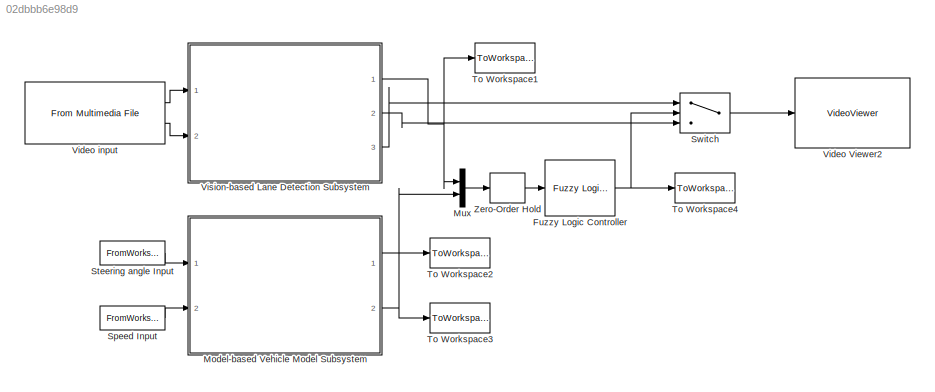
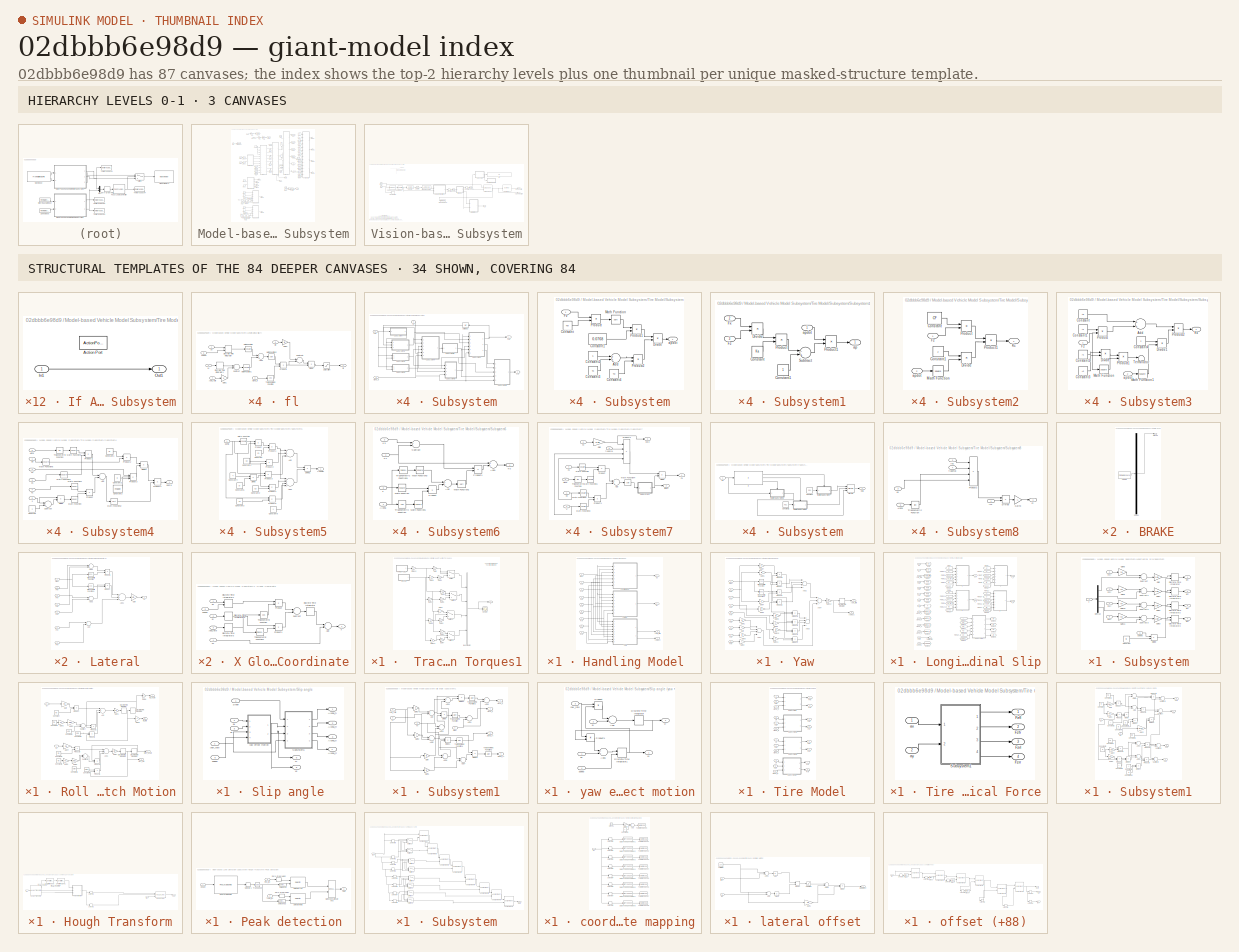
[diagram: thumbnail index - top-2 hierarchy levels (3 canvases) + 34 structural-template representatives of the remaining 84 canvases]
MODEL slx_02dbbb6e98d9
KIND model
CONFIG AbsTol = auto
CONFIG EnableMultiTasking = on
CONFIG FixedStep = 1/30
CONFIG MaxStep = auto
CONFIG MinStep = auto
CONFIG RelTol = 1e-3
CONFIG SampleTimeConstraint = Unconstrained
CONFIG Solver = FixedStepDiscrete
CONFIG SolverName = FixedStepDiscrete
CONFIG StartTime = 0.0
CONFIG StopTime = 8
BLOCK [Reference] Fuzzy Logic Controller  REF=fuzblock/Fuzzy Logic   (lib defined in mdl_858b3b3e7478)
Controller
  Ports = [1, 1]
  SourceBlock = fuzblock/Fuzzy Logic \nController
  SourceProductBaseCode = FL
  SourceProductName = Fuzzy Logic Toolbox
  SourceType = Fuzzy Inference System
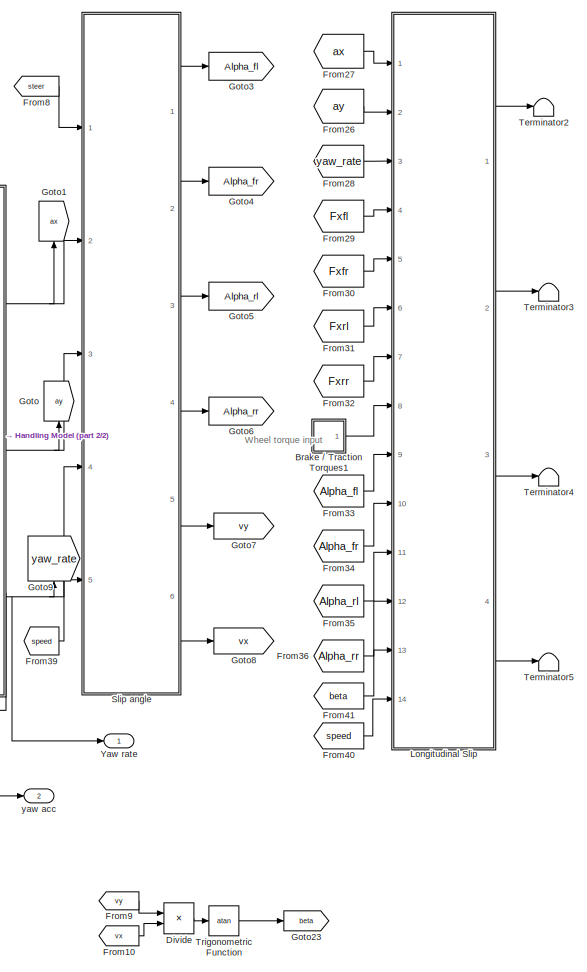
[diagram: Model-based Vehicle Model Subsystem - part 1/2, middle right region]
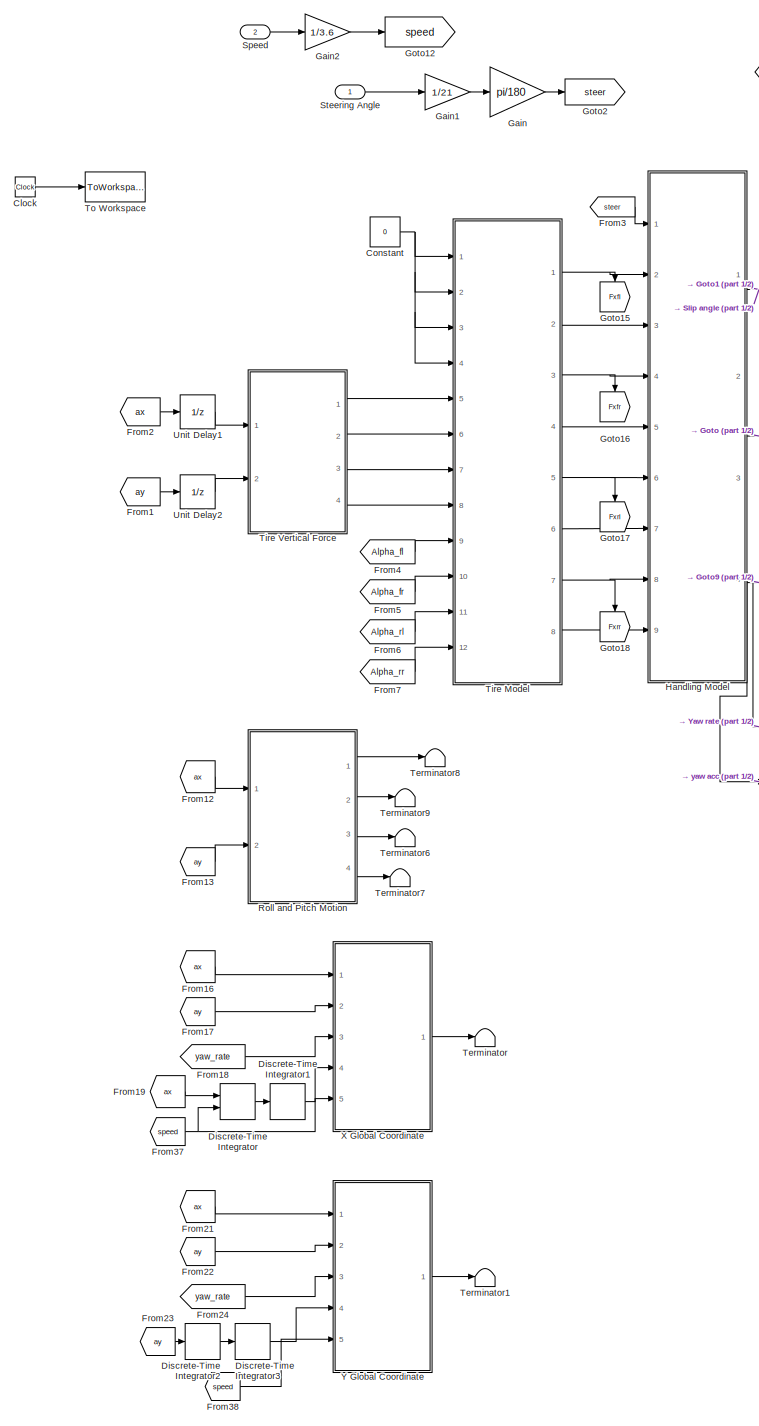
[diagram: Model-based Vehicle Model Subsystem - part 2/2, left side, full height]
BLOCK [SubSystem] Model-based Vehicle Model Subsystem
  Ports = [2, 2]
  RequestExecContextInheritance = off
BLOCK [SubSystem] Model-based Vehicle Model Subsystem/Brake // Traction Torques1
  Ports = [0, 1]
  RequestExecContextInheritance = off
BLOCK [SubSystem] Model-based Vehicle Model Subsystem/Brake // Traction Torques1/BRAKE
  ClipboardFcn = sigbuilder_block('clipboard');
  CloseFcn = sigbuilder_block('close');
  ContinueFcn = sigbuilder_block('continue')
  CopyFcn = sigbuilder_block('copy');
  DeleteFcn = sigbuilder_block('delete');
  LoadFcn = sigbuilder_block('load');
  MaskHideContents = on
  ModelCloseFcn = sigbuilder_block('modelClose');
  NameChangeFcn = sigbuilder_block('namechange');
  OpenFcn = sigbuilder_block('open',[51.75 84.75 550.5 363.75 ]);
  PauseFcn = sigbuilder_block('pause')
  Ports = [0, 1]
  PreSaveFcn = sigbuilder_block('preSave');
  RequestExecContextInheritance = off
  StartFcn = sigbuilder_block('start');
  StopFcn = sigbuilder_block('stop');
  Tag = STV Subsys
BLOCK [Demux] Model-based Vehicle Model Subsystem/Brake // Traction Torques1/BRAKE/Demux
  Outputs = 1
  Ports = [1, 1]
  Tag = STV Demux
BLOCK [FromWorkspace] Model-based Vehicle Model Subsystem/Brake // Traction Torques1/BRAKE/FromWs
  SampleTime = 0
  Tag = STV FromWs
  VariableName = tuvar
BLOCK [Outport] Model-based Vehicle Model Subsystem/Brake // Traction Torques1/BRAKE/Signal 1
  IconDisplay = Port number
  Tag = STV Outport
BLOCK [BusCreator] Model-based Vehicle Model Subsystem/Brake // Traction Torques1/Bus Creator
  DisplayOption = bar
  InheritFromInputs = on
  Inputs = 4
  Ports = [4, 1]
BLOCK [Gain] Model-based Vehicle Model Subsystem/Brake // Traction Torques1/Gain
  Gain = 300
  OutDataTypeStr = Inherit: Inherit via internal rule
  ParamDataTypeStr = Inherit: Inherit via internal rule
  SaturateOnIntegerOverflow = off
BLOCK [Gain] Model-based Vehicle Model Subsystem/Brake // Traction Torques1/Gain1
  Gain = 300
  OutDataTypeStr = Inherit: Inherit via internal rule
  ParamDataTypeStr = Inherit: Inherit via internal rule
  SaturateOnIntegerOverflow = off
BLOCK [Gain] Model-based Vehicle Model Subsystem/Brake // Traction Torques1/Gain10
  Gain = -6
  OutDataTypeStr = Inherit: Inherit via internal rule
  ParamDataTypeStr = Inherit: Inherit via internal rule
  SaturateOnIntegerOverflow = off
BLOCK [Gain] Model-based Vehicle Model Subsystem/Brake // Traction Torques1/Gain11
  Gain = -6
  OutDataTypeStr = Inherit: Inherit via internal rule
  ParamDataTypeStr = Inherit: Inherit via internal rule
  SaturateOnIntegerOverflow = off
BLOCK [Gain] Model-based Vehicle Model Subsystem/Brake // Traction Torques1/Gain12
  Gain = 0
  OutDataTypeStr = Inherit: Inherit via internal rule
  ParamDataTypeStr = Inherit: Inherit via internal rule
  SaturateOnIntegerOverflow = off
BLOCK [Gain] Model-based Vehicle Model Subsystem/Brake // Traction Torques1/Gain2
  Gain = 0
  OutDataTypeStr = Inherit: Inherit via internal rule
  ParamDataTypeStr = Inherit: Inherit via internal rule
  SaturateOnIntegerOverflow = off
BLOCK [Gain] Model-based Vehicle Model Subsystem/Brake // Traction Torques1/Gain3
  Gain = 0
  OutDataTypeStr = Inherit: Inherit via internal rule
  ParamDataTypeStr = Inherit: Inherit via internal rule
  SaturateOnIntegerOverflow = off
BLOCK [Gain] Model-based Vehicle Model Subsystem/Brake // Traction Torques1/Gain4
  Gain = 200
  OutDataTypeStr = Inherit: Inherit via internal rule
  ParamDataTypeStr = Inherit: Inherit via internal rule
  SaturateOnIntegerOverflow = off
BLOCK [Gain] Model-based Vehicle Model Subsystem/Brake // Traction Torques1/Gain5
  Gain = 200
  OutDataTypeStr = Inherit: Inherit via internal rule
  ParamDataTypeStr = Inherit: Inherit via internal rule
  SaturateOnIntegerOverflow = off
BLOCK [Gain] Model-based Vehicle Model Subsystem/Brake // Traction Torques1/Gain6
  Gain = 80
  OutDataTypeStr = Inherit: Inherit via internal rule
  ParamDataTypeStr = Inherit: Inherit via internal rule
  SaturateOnIntegerOverflow = off
BLOCK [Gain] Model-based Vehicle Model Subsystem/Brake // Traction Torques1/Gain7
  Gain = 80
  OutDataTypeStr = Inherit: Inherit via internal rule
  ParamDataTypeStr = Inherit: Inherit via internal rule
  SaturateOnIntegerOverflow = off
BLOCK [Gain] Model-based Vehicle Model Subsystem/Brake // Traction Torques1/Gain8
  Gain = -6
  OutDataTypeStr = Inherit: Inherit via internal rule
  ParamDataTypeStr = Inherit: Inherit via internal rule
  SaturateOnIntegerOverflow = off
BLOCK [Gain] Model-based Vehicle Model Subsystem/Brake // Traction Torques1/Gain9
  Gain = -6
  OutDataTypeStr = Inherit: Inherit via internal rule
  ParamDataTypeStr = Inherit: Inherit via internal rule
  SaturateOnIntegerOverflow = off
BLOCK [Scope] Model-based Vehicle Model Subsystem/Brake // Traction Torques1/Scope
  Floating = off
  NumInputPorts = 1
  Ports = [1]
  ScopeSpecificationString = C++SS(StrPVP('Location','[5, 52, 1285, 769]'),StrPVP('Open','off'),MxPVP('AxesTitles',53,'struct(''axes1'',''%<SignalLabel>'')'),StrPVP('SaveName','ScopeData27'),StrPVP('DataFormat','StructureWithTime'),StrPVP('BlockParamSampleTime','0'),StrPVP('LimitDataPoints','on'),StrPVP('Decimation','1'),StrPVP('BlockParamSampleInput','off'))
BLOCK [Switch] Model-based Vehicle Model Subsystem/Brake // Traction Torques1/Switch
  Criteria = u2 > Threshold
  InputSameDT = off
  SaturateOnIntegerOverflow = off
  Threshold = 199
BLOCK [Switch] Model-based Vehicle Model Subsystem/Brake // Traction Torques1/Switch1
  Criteria = u2 > Threshold
  InputSameDT = off
  SaturateOnIntegerOverflow = off
  Threshold = 199
BLOCK [Switch] Model-based Vehicle Model Subsystem/Brake // Traction Torques1/Switch2
  Criteria = u2 > Threshold
  InputSameDT = off
  SaturateOnIntegerOverflow = off
  Threshold = -1
BLOCK [Switch] Model-based Vehicle Model Subsystem/Brake // Traction Torques1/Switch3
  Criteria = u2 > Threshold
  InputSameDT = off
  SaturateOnIntegerOverflow = off
  Threshold = -1
BLOCK [Outport] Model-based Vehicle Model Subsystem/Brake // Traction Torques1/T
  IconDisplay = Port number
BLOCK [SubSystem] Model-based Vehicle Model Subsystem/Brake // Traction Torques1/THROTTLE1
  ClipboardFcn = sigbuilder_block('clipboard');
  CloseFcn = sigbuilder_block('close');
  ContinueFcn = sigbuilder_block('continue')
  CopyFcn = sigbuilder_block('copy');
  DeleteFcn = sigbuilder_block('delete');
  LoadFcn = sigbuilder_block('load');
  MaskHideContents = on
  ModelCloseFcn = sigbuilder_block('modelClose');
  NameChangeFcn = sigbuilder_block('namechange');
  OpenFcn = sigbuilder_block('open',[252 113.25 550.5 363.75 ]);
  PauseFcn = sigbuilder_block('pause')
  Ports = [0, 1]
  PreSaveFcn = sigbuilder_block('preSave');
  RequestExecContextInheritance = off
  StartFcn = sigbuilder_block('start');
  StopFcn = sigbuilder_block('stop');
  Tag = STV Subsys
BLOCK [Demux] Model-based Vehicle Model Subsystem/Brake // Traction Torques1/THROTTLE1/Demux
  Outputs = 1
  Ports = [1, 1]
  Tag = STV Demux
BLOCK [FromWorkspace] Model-based Vehicle Model Subsystem/Brake // Traction Torques1/THROTTLE1/FromWs
  SampleTime = 0
  Tag = STV FromWs
  VariableName = tuvar
BLOCK [Outport] Model-based Vehicle Model Subsystem/Brake // Traction Torques1/THROTTLE1/Signal 1
  IconDisplay = Port number
  Tag = STV Outport
BLOCK [Clock] Model-based Vehicle Model Subsystem/Clock
BLOCK [Constant] Model-based Vehicle Model Subsystem/Constant
  Value = 0
BLOCK [DiscreteIntegrator] Model-based Vehicle Model Subsystem/Discrete-Time Integrator
  ICPrevOutput = DiscIntNeverNeededParam
  ICPrevScaledInput = DiscIntNeverNeededParam
  InitialCondition = 22.222
  InitialConditionSetting = Auto
  InitialConditionSource = external
  LimitOutput = on
  LowerSaturationLimit = 0
  Ports = [2, 1]
  SampleTime = -1
BLOCK [DiscreteIntegrator] Model-based Vehicle Model Subsystem/Discrete-Time Integrator1
  ICPrevOutput = DiscIntNeverNeededParam
  ICPrevScaledInput = DiscIntNeverNeededParam
  InitialConditionSetting = Auto
  LimitOutput = on
  LowerSaturationLimit = 0
  Ports = [1, 1]
  SampleTime = -1
BLOCK [DiscreteIntegrator] Model-based Vehicle Model Subsystem/Discrete-Time Integrator2
  ICPrevOutput = DiscIntNeverNeededParam
  ICPrevScaledInput = DiscIntNeverNeededParam
  InitialConditionSetting = Auto
  Ports = [1, 1]
  SampleTime = -1
BLOCK [DiscreteIntegrator] Model-based Vehicle Model Subsystem/Discrete-Time Integrator3
  ICPrevOutput = DiscIntNeverNeededParam
  ICPrevScaledInput = DiscIntNeverNeededParam
  InitialConditionSetting = Auto
  Ports = [1, 1]
  SampleTime = -1
BLOCK [Product] Model-based Vehicle Model Subsystem/Divide
  InputSameDT = off
  Inputs = */
  OutDataTypeStr = Inherit: Inherit via internal rule
  Ports = [2, 1]
  RndMeth = Floor
  SaturateOnIntegerOverflow = off
BLOCK [From] Model-based Vehicle Model Subsystem/From1
  CloseFcn = tagdialog Close
  GotoTag = ay
BLOCK [From] Model-based Vehicle Model Subsystem/From10
  CloseFcn = tagdialog Close
  GotoTag = vx
BLOCK [From] Model-based Vehicle Model Subsystem/From12
  CloseFcn = tagdialog Close
  GotoTag = ax
BLOCK [From] Model-based Vehicle Model Subsystem/From13
  CloseFcn = tagdialog Close
  GotoTag = ay
BLOCK [From] Model-based Vehicle Model Subsystem/From16
  CloseFcn = tagdialog Close
  GotoTag = ax
BLOCK [From] Model-based Vehicle Model Subsystem/From17
  CloseFcn = tagdialog Close
  GotoTag = ay
BLOCK [From] Model-based Vehicle Model Subsystem/From18
  CloseFcn = tagdialog Close
  GotoTag = yaw_rate
BLOCK [From] Model-based Vehicle Model Subsystem/From19
  CloseFcn = tagdialog Close
  GotoTag = ax
BLOCK [From] Model-based Vehicle Model Subsystem/From2
  CloseFcn = tagdialog Close
  GotoTag = ax
BLOCK [From] Model-based Vehicle Model Subsystem/From21
  CloseFcn = tagdialog Close
  GotoTag = ax
BLOCK [From] Model-based Vehicle Model Subsystem/From22
  CloseFcn = tagdialog Close
  GotoTag = ay
BLOCK [From] Model-based Vehicle Model Subsystem/From23
  CloseFcn = tagdialog Close
  GotoTag = ay
BLOCK [From] Model-based Vehicle Model Subsystem/From24
  CloseFcn = tagdialog Close
  GotoTag = yaw_rate
BLOCK [From] Model-based Vehicle Model Subsystem/From26
  CloseFcn = tagdialog Close
  GotoTag = ay
BLOCK [From] Model-based Vehicle Model Subsystem/From27
  CloseFcn = tagdialog Close
  GotoTag = ax
BLOCK [From] Model-based Vehicle Model Subsystem/From28
  CloseFcn = tagdialog Close
  GotoTag = yaw_rate
BLOCK [From] Model-based Vehicle Model Subsystem/From29
  CloseFcn = tagdialog Close
  GotoTag = Fxfl
BLOCK [From] Model-based Vehicle Model Subsystem/From3
  CloseFcn = tagdialog Close
  GotoTag = steer
BLOCK [From] Model-based Vehicle Model Subsystem/From30
  CloseFcn = tagdialog Close
  GotoTag = Fxfr
BLOCK [From] Model-based Vehicle Model Subsystem/From31
  CloseFcn = tagdialog Close
  GotoTag = Fxrl
BLOCK [From] Model-based Vehicle Model Subsystem/From32
  CloseFcn = tagdialog Close
  GotoTag = Fxrr
BLOCK [From] Model-based Vehicle Model Subsystem/From33
  CloseFcn = tagdialog Close
  GotoTag = Alpha_fl
BLOCK [From] Model-based Vehicle Model Subsystem/From34
  CloseFcn = tagdialog Close
  GotoTag = Alpha_fr
BLOCK [From] Model-based Vehicle Model Subsystem/From35
  CloseFcn = tagdialog Close
  GotoTag = Alpha_rl
BLOCK [From] Model-based Vehicle Model Subsystem/From36
  CloseFcn = tagdialog Close
  GotoTag = Alpha_rr
BLOCK [From] Model-based Vehicle Model Subsystem/From37
  CloseFcn = tagdialog Close
  GotoTag = speed
BLOCK [From] Model-based Vehicle Model Subsystem/From38
  CloseFcn = tagdialog Close
  GotoTag = speed
BLOCK [From] Model-based Vehicle Model Subsystem/From39
  CloseFcn = tagdialog Close
  GotoTag = speed
BLOCK [From] Model-based Vehicle Model Subsystem/From4
  CloseFcn = tagdialog Close
  GotoTag = Alpha_fl
BLOCK [From] Model-based Vehicle Model Subsystem/From40
  CloseFcn = tagdialog Close
  GotoTag = speed
BLOCK [From] Model-based Vehicle Model Subsystem/From41
  CloseFcn = tagdialog Close
  GotoTag = beta
BLOCK [From] Model-based Vehicle Model Subsystem/From5
  CloseFcn = tagdialog Close
  GotoTag = Alpha_fr
BLOCK [From] Model-based Vehicle Model Subsystem/From6
  CloseFcn = tagdialog Close
  GotoTag = Alpha_rl
BLOCK [From] Model-based Vehicle Model Subsystem/From7
  CloseFcn = tagdialog Close
  GotoTag = Alpha_rr
BLOCK [From] Model-based Vehicle Model Subsystem/From8
  CloseFcn = tagdialog Close
  GotoTag = steer
BLOCK [From] Model-based Vehicle Model Subsystem/From9
  CloseFcn = tagdialog Close
  GotoTag = vy
BLOCK [Gain] Model-based Vehicle Model Subsystem/Gain
  Gain = pi/180
  OutDataTypeStr = Inherit: Inherit via internal rule
  ParamDataTypeStr = Inherit: Inherit via internal rule
  SaturateOnIntegerOverflow = off
BLOCK [Gain] Model-based Vehicle Model Subsystem/Gain1
  Gain = 1/21
  OutDataTypeStr = Inherit: Inherit via internal rule
  ParamDataTypeStr = Inherit: Inherit via internal rule
  SaturateOnIntegerOverflow = off
BLOCK [Gain] Model-based Vehicle Model Subsystem/Gain2
  Gain = 1/3.6
  OutDataTypeStr = Inherit: Inherit via internal rule
  ParamDataTypeStr = Inherit: Inherit via internal rule
  SaturateOnIntegerOverflow = off
BLOCK [Goto] Model-based Vehicle Model Subsystem/Goto
  GotoTag = ay
BLOCK [Goto] Model-based Vehicle Model Subsystem/Goto1
  GotoTag = ax
BLOCK [Goto] Model-based Vehicle Model Subsystem/Goto12
  GotoTag = speed
BLOCK [Goto] Model-based Vehicle Model Subsystem/Goto15
  GotoTag = Fxfl
BLOCK [Goto] Model-based Vehicle Model Subsystem/Goto16
  GotoTag = Fxfr
BLOCK [Goto] Model-based Vehicle Model Subsystem/Goto17
  GotoTag = Fxrl
BLOCK [Goto] Model-based Vehicle Model Subsystem/Goto18
  GotoTag = Fxrr
BLOCK [Goto] Model-based Vehicle Model Subsystem/Goto2
  GotoTag = steer
BLOCK [Goto] Model-based Vehicle Model Subsystem/Goto23
  GotoTag = beta
BLOCK [Goto] Model-based Vehicle Model Subsystem/Goto3
  GotoTag = Alpha_fl
BLOCK [Goto] Model-based Vehicle Model Subsystem/Goto4
  GotoTag = Alpha_fr
BLOCK [Goto] Model-based Vehicle Model Subsystem/Goto5
  GotoTag = Alpha_rl
BLOCK [Goto] Model-based Vehicle Model Subsystem/Goto6
  GotoTag = Alpha_rr
BLOCK [Goto] Model-based Vehicle Model Subsystem/Goto7
  GotoTag = vy
BLOCK [Goto] Model-based Vehicle Model Subsystem/Goto8
  GotoTag = vx
BLOCK [Goto] Model-based Vehicle Model Subsystem/Goto9
  GotoTag = yaw_rate
BLOCK [SubSystem] Model-based Vehicle Model Subsystem/Handling Model 
  Ports = [9, 4]
  RequestExecContextInheritance = off
BLOCK [Inport] Model-based Vehicle Model Subsystem/Handling Model /Fxfl
  IconDisplay = Port number
  Port = 2
BLOCK [Inport] Model-based Vehicle Model Subsystem/Handling Model /Fxfr
  IconDisplay = Port number
  Port = 4
BLOCK [Inport] Model-based Vehicle Model Subsystem/Handling Model /Fxrl
  IconDisplay = Port number
  Port = 6
BLOCK [Inport] Model-based Vehicle Model Subsystem/Handling Model /Fxrr
  IconDisplay = Port number
  Port = 8
BLOCK [Inport] Model-based Vehicle Model Subsystem/Handling Model /Fyfl
  IconDisplay = Port number
  Port = 3
BLOCK [Inport] Model-based Vehicle Model Subsystem/Handling Model /Fyfr
  IconDisplay = Port number
  Port = 5
BLOCK [Inport] Model-based Vehicle Model Subsystem/Handling Model /Fyrl
  IconDisplay = Port number
  Port = 7
BLOCK [Inport] Model-based Vehicle Model Subsystem/Handling Model /Fyrr
  IconDisplay = Port number
  Port = 9
BLOCK [SubSystem] Model-based Vehicle Model Subsystem/Handling Model /Lateral 
  Ports = [7, 1]
  RequestExecContextInheritance = off
BLOCK [Sum] Model-based Vehicle Model Subsystem/Handling Model /Lateral /Add
  InputSameDT = off
  OutDataTypeStr = Inherit: Inherit via internal rule
  Ports = [2, 1]
  SaturateOnIntegerOverflow = off
BLOCK [Sum] Model-based Vehicle Model Subsystem/Handling Model /Lateral /Add1
  InputSameDT = off
  Inputs = +++
  OutDataTypeStr = Inherit: Inherit via internal rule
  Ports = [3, 1]
  SaturateOnIntegerOverflow = off
BLOCK [Sum] Model-based Vehicle Model Subsystem/Handling Model /Lateral /Add2
  InputSameDT = off
  OutDataTypeStr = Inherit: Inherit via internal rule
  Ports = [2, 1]
  SaturateOnIntegerOverflow = off
BLOCK [Sum] Model-based Vehicle Model Subsystem/Handling Model /Lateral /Add3
  InputSameDT = off
  OutDataTypeStr = Inherit: Inherit via internal rule
  Ports = [2, 1]
  SaturateOnIntegerOverflow = off
BLOCK [Inport] Model-based Vehicle Model Subsystem/Handling Model /Lateral /Fxfl
  IconDisplay = Port number
  Port = 2
BLOCK [Inport] Model-based Vehicle Model Subsystem/Handling Model /Lateral /Fxfr
  IconDisplay = Port number
  Port = 4
BLOCK [Inport] Model-based Vehicle Model Subsystem/Handling Model /Lateral /Fyfl
  IconDisplay = Port number
  Port = 3
BLOCK [Inport] Model-based Vehicle Model Subsystem/Handling Model /Lateral /Fyfr
  IconDisplay = Port number
  Port = 5
BLOCK [Inport] Model-based Vehicle Model Subsystem/Handling Model /Lateral /Fyrl
  IconDisplay = Port number
  Port = 6
BLOCK [Inport] Model-based Vehicle Model Subsystem/Handling Model /Lateral /Fyrr
  IconDisplay = Port number
  Port = 7
BLOCK [Gain] Model-based Vehicle Model Subsystem/Handling Model /Lateral /Gain
  Gain = 1/m
  OutDataTypeStr = Inherit: Inherit via internal rule
  ParamDataTypeStr = Inherit: Inherit via internal rule
  SaturateOnIntegerOverflow = off
BLOCK [Product] Model-based Vehicle Model Subsystem/Handling Model /Lateral /Product
  InputSameDT = off
  OutDataTypeStr = Inherit: Inherit via internal rule
  Ports = [2, 1]
  SaturateOnIntegerOverflow = off
BLOCK [Product] Model-based Vehicle Model Subsystem/Handling Model /Lateral /Product1
  InputSameDT = off
  OutDataTypeStr = Inherit: Inherit via internal rule
  Ports = [2, 1]
  SaturateOnIntegerOverflow = off
BLOCK [Inport] Model-based Vehicle Model Subsystem/Handling Model /Lateral /Steer
  IconDisplay = Port number
BLOCK [Trigonometry] Model-based Vehicle Model Subsystem/Handling Model /Lateral /Trigonometric Function
  Ports = [1, 1]
BLOCK [Trigonometry] Model-based Vehicle Model Subsystem/Handling Model /Lateral /Trigonometric Function1
  Operator = cos
  Ports = [1, 1]
BLOCK [Outport] Model-based Vehicle Model Subsystem/Handling Model /Lateral /ay
  IconDisplay = Port number
BLOCK [SubSystem] Model-based Vehicle Model Subsystem/Handling Model /Longitudinal 
  Ports = [7, 1]
  RequestExecContextInheritance = off
BLOCK [Sum] Model-based Vehicle Model Subsystem/Handling Model /Longitudinal /Add
  InputSameDT = off
  Inputs = ++-
  OutDataTypeStr = Inherit: Inherit via internal rule
  Ports = [3, 1]
  SaturateOnIntegerOverflow = off
BLOCK [Sum] Model-based Vehicle Model Subsystem/Handling Model /Longitudinal /Add1
  InputSameDT = off
  OutDataTypeStr = Inherit: Inherit via internal rule
  Ports = [2, 1]
  SaturateOnIntegerOverflow = off
BLOCK [Sum] Model-based Vehicle Model Subsystem/Handling Model /Longitudinal /Add2
  InputSameDT = off
  OutDataTypeStr = Inherit: Inherit via internal rule
  Ports = [2, 1]
  SaturateOnIntegerOverflow = off
BLOCK [Sum] Model-based Vehicle Model Subsystem/Handling Model /Longitudinal /Add3
  InputSameDT = off
  OutDataTypeStr = Inherit: Inherit via internal rule
  Ports = [2, 1]
  SaturateOnIntegerOverflow = off
BLOCK [Inport] Model-based Vehicle Model Subsystem/Handling Model /Longitudinal /Fxfl
  IconDisplay = Port number
  Port = 2
BLOCK [Inport] Model-based Vehicle Model Subsystem/Handling Model /Longitudinal /Fxfr
  IconDisplay = Port number
  Port = 4
BLOCK [Inport] Model-based Vehicle Model Subsystem/Handling Model /Longitudinal /Fxrl
  IconDisplay = Port number
  Port = 6
BLOCK [Inport] Model-based Vehicle Model Subsystem/Handling Model /Longitudinal /Fxrr
  IconDisplay = Port number
  Port = 7
BLOCK [Inport] Model-based Vehicle Model Subsystem/Handling Model /Longitudinal /Fyfl
  IconDisplay = Port number
  Port = 3
BLOCK [Inport] Model-based Vehicle Model Subsystem/Handling Model /Longitudinal /Fyfr
  IconDisplay = Port number
  Port = 5
BLOCK [Gain] Model-based Vehicle Model Subsystem/Handling Model /Longitudinal /Gain
  Gain = 1/m
  OutDataTypeStr = Inherit: Inherit via internal rule
  ParamDataTypeStr = Inherit: Inherit via internal rule
  SaturateOnIntegerOverflow = off
BLOCK [Product] Model-based Vehicle Model Subsystem/Handling Model /Longitudinal /Product
  InputSameDT = off
  OutDataTypeStr = Inherit: Inherit via internal rule
  Ports = [2, 1]
  SaturateOnIntegerOverflow = off
BLOCK [Product] Model-based Vehicle Model Subsystem/Handling Model /Longitudinal /Product1
  InputSameDT = off
  OutDataTypeStr = Inherit: Inherit via internal rule
  Ports = [2, 1]
  SaturateOnIntegerOverflow = off
BLOCK [Inport] Model-based Vehicle Model Subsystem/Handling Model /Longitudinal /Steer
  IconDisplay = Port number
BLOCK [Trigonometry] Model-based Vehicle Model Subsystem/Handling Model /Longitudinal /Trigonometric Function
  Ports = [1, 1]
BLOCK [Trigonometry] Model-based Vehicle Model Subsystem/Handling Model /Longitudinal /Trigonometric Function1
  Operator = cos
  Ports = [1, 1]
BLOCK [Outport] Model-based Vehicle Model Subsystem/Handling Model /Longitudinal /ax
  IconDisplay = Port number
BLOCK [Inport] Model-based Vehicle Model Subsystem/Handling Model /Steer
  IconDisplay = Port number
BLOCK [SubSystem] Model-based Vehicle Model Subsystem/Handling Model /Yaw  
  Ports = [9, 2]
  RequestExecContextInheritance = off
BLOCK [Sum] Model-based Vehicle Model Subsystem/Handling Model /Yaw  /Add1
  InputSameDT = off
  Inputs = --+-
  OutDataTypeStr = Inherit: Inherit via internal rule
  Ports = [4, 1]
  SaturateOnIntegerOverflow = off
BLOCK [Sum] Model-based Vehicle Model Subsystem/Handling Model /Yaw  /Add2
  InputSameDT = off
  Inputs = -+++
  OutDataTypeStr = Inherit: Inherit via internal rule
  Ports = [4, 1]
  SaturateOnIntegerOverflow = off
BLOCK [Sum] Model-based Vehicle Model Subsystem/Handling Model /Yaw  /Add3
  InputSameDT = off
  Inputs = ++-+
  OutDataTypeStr = Inherit: Inherit via internal rule
  Ports = [4, 1]
  SaturateOnIntegerOverflow = off
BLOCK [Sum] Model-based Vehicle Model Subsystem/Handling Model /Yaw  /Add4
  InputSameDT = off
  Inputs = +++
  OutDataTypeStr = Inherit: Inherit via internal rule
  Ports = [3, 1]
  SaturateOnIntegerOverflow = off
BLOCK [DiscreteIntegrator] Model-based Vehicle Model Subsystem/Handling Model /Yaw  /Discrete-Time Integrator
  ICPrevOutput = DiscIntNeverNeededParam
  ICPrevScaledInput = DiscIntNeverNeededParam
  InitialConditionSetting = Auto
  Ports = [1, 1]
  SampleTime = -1
BLOCK [Inport] Model-based Vehicle Model Subsystem/Handling Model /Yaw  /Fxfl
  IconDisplay = Port number
  Port = 2
BLOCK [Inport] Model-based Vehicle Model Subsystem/Handling Model /Yaw  /Fxfr
  IconDisplay = Port number
  Port = 4
BLOCK [Inport] Model-based Vehicle Model Subsystem/Handling Model /Yaw  /Fxrl
  IconDisplay = Port number
  Port = 6
BLOCK [Inport] Model-based Vehicle Model Subsystem/Handling Model /Yaw  /Fxrr
  IconDisplay = Port number
  Port = 8
BLOCK [Inport] Model-based Vehicle Model Subsystem/Handling Model /Yaw  /Fyfl
  IconDisplay = Port number
  Port = 3
BLOCK [Inport] Model-based Vehicle Model Subsystem/Handling Model /Yaw  /Fyfr
  IconDisplay = Port number
  Port = 5
BLOCK [Inport] Model-based Vehicle Model Subsystem/Handling Model /Yaw  /Fyrl
  IconDisplay = Port number
  Port = 7
BLOCK [Inport] Model-based Vehicle Model Subsystem/Handling Model /Yaw  /Fyrr
  IconDisplay = Port number
  Port = 9
BLOCK [Gain] Model-based Vehicle Model Subsystem/Handling Model /Yaw  /Gain
  Gain = c
  OutDataTypeStr = Inherit: Inherit via internal rule
  ParamDataTypeStr = Inherit: Inherit via internal rule
  SaturateOnIntegerOverflow = off
BLOCK [Gain] Model-based Vehicle Model Subsystem/Handling Model /Yaw  /Gain1
  Gain = r/2
  OutDataTypeStr = Inherit: Inherit via internal rule
  ParamDataTypeStr = Inherit: Inherit via internal rule
  SaturateOnIntegerOverflow = off
BLOCK [Gain] Model-based Vehicle Model Subsystem/Handling Model /Yaw  /Gain10
  Gain = f/2
  OutDataTypeStr = Inherit: Inherit via internal rule
  ParamDataTypeStr = Inherit: Inherit via internal rule
  SaturateOnIntegerOverflow = off
BLOCK [Gain] Model-based Vehicle Model Subsystem/Handling Model /Yaw  /Gain11
  Gain = b
  OutDataTypeStr = Inherit: Inherit via internal rule
  ParamDataTypeStr = Inherit: Inherit via internal rule
  SaturateOnIntegerOverflow = off
BLOCK [Gain] Model-based Vehicle Model Subsystem/Handling Model /Yaw  /Gain12
  Gain = 1/iz
  OutDataTypeStr = Inherit: Inherit via internal rule
  ParamDataTypeStr = Inherit: Inherit via internal rule
  SaturateOnIntegerOverflow = off
BLOCK [Gain] Model-based Vehicle Model Subsystem/Handling Model /Yaw  /Gain2
  Gain = c
  OutDataTypeStr = Inherit: Inherit via internal rule
  ParamDataTypeStr = Inherit: Inherit via internal rule
  SaturateOnIntegerOverflow = off
BLOCK [Gain] Model-based Vehicle Model Subsystem/Handling Model /Yaw  /Gain3
  Gain = r/2
  OutDataTypeStr = Inherit: Inherit via internal rule
  ParamDataTypeStr = Inherit: Inherit via internal rule
  SaturateOnIntegerOverflow = off
BLOCK [Gain] Model-based Vehicle Model Subsystem/Handling Model /Yaw  /Gain4
  Gain = b
  OutDataTypeStr = Inherit: Inherit via internal rule
  ParamDataTypeStr = Inherit: Inherit via internal rule
  SaturateOnIntegerOverflow = off
BLOCK [Gain] Model-based Vehicle Model Subsystem/Handling Model /Yaw  /Gain5
  Gain = f/2
  OutDataTypeStr = Inherit: Inherit via internal rule
  ParamDataTypeStr = Inherit: Inherit via internal rule
  SaturateOnIntegerOverflow = off
BLOCK [Gain] Model-based Vehicle Model Subsystem/Handling Model /Yaw  /Gain6
  Gain = f/2
  OutDataTypeStr = Inherit: Inherit via internal rule
  ParamDataTypeStr = Inherit: Inherit via internal rule
  SaturateOnIntegerOverflow = off
BLOCK [Gain] Model-based Vehicle Model Subsystem/Handling Model /Yaw  /Gain7
  Gain = b
  OutDataTypeStr = Inherit: Inherit via internal rule
  ParamDataTypeStr = Inherit: Inherit via internal rule
  SaturateOnIntegerOverflow = off
BLOCK [Gain] Model-based Vehicle Model Subsystem/Handling Model /Yaw  /Gain8
  Gain = f/2
  OutDataTypeStr = Inherit: Inherit via internal rule
  ParamDataTypeStr = Inherit: Inherit via internal rule
  SaturateOnIntegerOverflow = off
BLOCK [Gain] Model-based Vehicle Model Subsystem/Handling Model /Yaw  /Gain9
  Gain = b
  OutDataTypeStr = Inherit: Inherit via internal rule
  ParamDataTypeStr = Inherit: Inherit via internal rule
  SaturateOnIntegerOverflow = off
BLOCK [Product] Model-based Vehicle Model Subsystem/Handling Model /Yaw  /Product
  InputSameDT = off
  OutDataTypeStr = Inherit: Inherit via internal rule
  Ports = [2, 1]
  SaturateOnIntegerOverflow = off
BLOCK [Product] Model-based Vehicle Model Subsystem/Handling Model /Yaw  /Product1
  InputSameDT = off
  OutDataTypeStr = Inherit: Inherit via internal rule
  Ports = [2, 1]
  SaturateOnIntegerOverflow = off
BLOCK [Product] Model-based Vehicle Model Subsystem/Handling Model /Yaw  /Product2
  InputSameDT = off
  OutDataTypeStr = Inherit: Inherit via internal rule
  Ports = [2, 1]
  SaturateOnIntegerOverflow = off
BLOCK [Product] Model-based Vehicle Model Subsystem/Handling Model /Yaw  /Product3
  InputSameDT = off
  OutDataTypeStr = Inherit: Inherit via internal rule
  Ports = [2, 1]
  SaturateOnIntegerOverflow = off
BLOCK [Product] Model-based Vehicle Model Subsystem/Handling Model /Yaw  /Product4
  InputSameDT = off
  OutDataTypeStr = Inherit: Inherit via internal rule
  Ports = [2, 1]
  SaturateOnIntegerOverflow = off
BLOCK [Product] Model-based Vehicle Model Subsystem/Handling Model /Yaw  /Product5
  InputSameDT = off
  OutDataTypeStr = Inherit: Inherit via internal rule
  Ports = [2, 1]
  SaturateOnIntegerOverflow = off
BLOCK [Product] Model-based Vehicle Model Subsystem/Handling Model /Yaw  /Product6
  InputSameDT = off
  OutDataTypeStr = Inherit: Inherit via internal rule
  Ports = [2, 1]
  SaturateOnIntegerOverflow = off
BLOCK [Product] Model-based Vehicle Model Subsystem/Handling Model /Yaw  /Product7
  InputSameDT = off
  OutDataTypeStr = Inherit: Inherit via internal rule
  Ports = [2, 1]
  SaturateOnIntegerOverflow = off
BLOCK [Inport] Model-based Vehicle Model Subsystem/Handling Model /Yaw  /Steer
  IconDisplay = Port number
BLOCK [Trigonometry] Model-based Vehicle Model Subsystem/Handling Model /Yaw  /Trigonometric Function
  Operator = cos
  Ports = [1, 1]
BLOCK [Trigonometry] Model-based Vehicle Model Subsystem/Handling Model /Yaw  /Trigonometric Function1
  Ports = [1, 1]
BLOCK [Outport] Model-based Vehicle Model Subsystem/Handling Model /Yaw  /yaw acc
  IconDisplay = Port number
  Port = 2
BLOCK [Outport] Model-based Vehicle Model Subsystem/Handling Model /Yaw  /yaw_rate
  IconDisplay = Port number
BLOCK [Outport] Model-based Vehicle Model Subsystem/Handling Model /ax
  IconDisplay = Port number
BLOCK [Outport] Model-based Vehicle Model Subsystem/Handling Model /ay
  IconDisplay = Port number
  Port = 2
BLOCK [Outport] Model-based Vehicle Model Subsystem/Handling Model /yaw acc
  IconDisplay = Port number
  Port = 4
BLOCK [Outport] Model-based Vehicle Model Subsystem/Handling Model /yaw_rate
  IconDisplay = Port number
  Port = 3
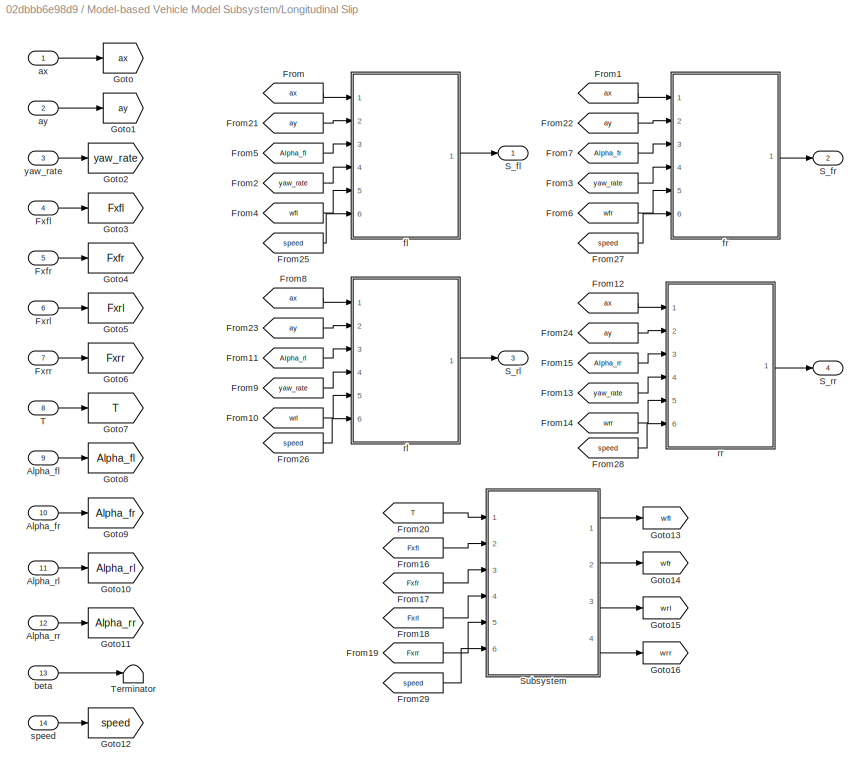
BLOCK [SubSystem] Model-based Vehicle Model Subsystem/Longitudinal Slip
  Ports = [14, 4]
  RequestExecContextInheritance = off
BLOCK [Inport] Model-based Vehicle Model Subsystem/Longitudinal Slip/Alpha_fl
  IconDisplay = Port number
  Port = 9
BLOCK [Inport] Model-based Vehicle Model Subsystem/Longitudinal Slip/Alpha_fr
  IconDisplay = Port number
  Port = 10
BLOCK [Inport] Model-based Vehicle Model Subsystem/Longitudinal Slip/Alpha_rl
  IconDisplay = Port number
  Port = 11
BLOCK [Inport] Model-based Vehicle Model Subsystem/Longitudinal Slip/Alpha_rr
  IconDisplay = Port number
  Port = 12
BLOCK [From] Model-based Vehicle Model Subsystem/Longitudinal Slip/From
  CloseFcn = tagdialog Close
  GotoTag = ax
BLOCK [From] Model-based Vehicle Model Subsystem/Longitudinal Slip/From1
  CloseFcn = tagdialog Close
  GotoTag = ax
BLOCK [From] Model-based Vehicle Model Subsystem/Longitudinal Slip/From10
  CloseFcn = tagdialog Close
  GotoTag = wrl
BLOCK [From] Model-based Vehicle Model Subsystem/Longitudinal Slip/From11
  CloseFcn = tagdialog Close
  GotoTag = Alpha_rl
BLOCK [From] Model-based Vehicle Model Subsystem/Longitudinal Slip/From12
  CloseFcn = tagdialog Close
  GotoTag = ax
BLOCK [From] Model-based Vehicle Model Subsystem/Longitudinal Slip/From13
  CloseFcn = tagdialog Close
  GotoTag = yaw_rate
BLOCK [From] Model-based Vehicle Model Subsystem/Longitudinal Slip/From14
  CloseFcn = tagdialog Close
  GotoTag = wrr
BLOCK [From] Model-based Vehicle Model Subsystem/Longitudinal Slip/From15
  CloseFcn = tagdialog Close
  GotoTag = Alpha_rr
BLOCK [From] Model-based Vehicle Model Subsystem/Longitudinal Slip/From16
  CloseFcn = tagdialog Close
  GotoTag = Fxfl
BLOCK [From] Model-based Vehicle Model Subsystem/Longitudinal Slip/From17
  CloseFcn = tagdialog Close
  GotoTag = Fxfr
BLOCK [From] Model-based Vehicle Model Subsystem/Longitudinal Slip/From18
  CloseFcn = tagdialog Close
  GotoTag = Fxrl
BLOCK [From] Model-based Vehicle Model Subsystem/Longitudinal Slip/From19
  CloseFcn = tagdialog Close
  GotoTag = Fxrr
BLOCK [From] Model-based Vehicle Model Subsystem/Longitudinal Slip/From2
  CloseFcn = tagdialog Close
  GotoTag = yaw_rate
BLOCK [From] Model-based Vehicle Model Subsystem/Longitudinal Slip/From20
  CloseFcn = tagdialog Close
  GotoTag = T
BLOCK [From] Model-based Vehicle Model Subsystem/Longitudinal Slip/From21
  CloseFcn = tagdialog Close
  GotoTag = ay
BLOCK [From] Model-based Vehicle Model Subsystem/Longitudinal Slip/From22
  CloseFcn = tagdialog Close
  GotoTag = ay
BLOCK [From] Model-based Vehicle Model Subsystem/Longitudinal Slip/From23
  CloseFcn = tagdialog Close
  GotoTag = ay
BLOCK [From] Model-based Vehicle Model Subsystem/Longitudinal Slip/From24
  CloseFcn = tagdialog Close
  GotoTag = ay
BLOCK [From] Model-based Vehicle Model Subsystem/Longitudinal Slip/From25
  CloseFcn = tagdialog Close
  GotoTag = speed
BLOCK [From] Model-based Vehicle Model Subsystem/Longitudinal Slip/From26
  CloseFcn = tagdialog Close
  GotoTag = speed
BLOCK [From] Model-based Vehicle Model Subsystem/Longitudinal Slip/From27
  CloseFcn = tagdialog Close
  GotoTag = speed
BLOCK [From] Model-based Vehicle Model Subsystem/Longitudinal Slip/From28
  CloseFcn = tagdialog Close
  GotoTag = speed
BLOCK [From] Model-based Vehicle Model Subsystem/Longitudinal Slip/From29
  CloseFcn = tagdialog Close
  GotoTag = speed
BLOCK [From] Model-based Vehicle Model Subsystem/Longitudinal Slip/From3
  CloseFcn = tagdialog Close
  GotoTag = yaw_rate
BLOCK [From] Model-based Vehicle Model Subsystem/Longitudinal Slip/From4
  CloseFcn = tagdialog Close
  GotoTag = wfl
BLOCK [From] Model-based Vehicle Model Subsystem/Longitudinal Slip/From5
  CloseFcn = tagdialog Close
  GotoTag = Alpha_fl
BLOCK [From] Model-based Vehicle Model Subsystem/Longitudinal Slip/From6
  CloseFcn = tagdialog Close
  GotoTag = wfr
BLOCK [From] Model-based Vehicle Model Subsystem/Longitudinal Slip/From7
  CloseFcn = tagdialog Close
  GotoTag = Alpha_fr
BLOCK [From] Model-based Vehicle Model Subsystem/Longitudinal Slip/From8
  CloseFcn = tagdialog Close
  GotoTag = ax
BLOCK [From] Model-based Vehicle Model Subsystem/Longitudinal Slip/From9
  CloseFcn = tagdialog Close
  GotoTag = yaw_rate
BLOCK [Inport] Model-based Vehicle Model Subsystem/Longitudinal Slip/Fxfl
  IconDisplay = Port number
  Port = 4
BLOCK [Inport] Model-based Vehicle Model Subsystem/Longitudinal Slip/Fxfr
  IconDisplay = Port number
  Port = 5
BLOCK [Inport] Model-based Vehicle Model Subsystem/Longitudinal Slip/Fxrl
  IconDisplay = Port number
  Port = 6
BLOCK [Inport] Model-based Vehicle Model Subsystem/Longitudinal Slip/Fxrr
  IconDisplay = Port number
  Port = 7
BLOCK [Goto] Model-based Vehicle Model Subsystem/Longitudinal Slip/Goto
  GotoTag = ax
BLOCK [Goto] Model-based Vehicle Model Subsystem/Longitudinal Slip/Goto1
  GotoTag = ay
BLOCK [Goto] Model-based Vehicle Model Subsystem/Longitudinal Slip/Goto10
  GotoTag = Alpha_rl
BLOCK [Goto] Model-based Vehicle Model Subsystem/Longitudinal Slip/Goto11
  GotoTag = Alpha_rr
BLOCK [Goto] Model-based Vehicle Model Subsystem/Longitudinal Slip/Goto12
  GotoTag = speed
BLOCK [Goto] Model-based Vehicle Model Subsystem/Longitudinal Slip/Goto13
  GotoTag = wfl
BLOCK [Goto] Model-based Vehicle Model Subsystem/Longitudinal Slip/Goto14
  GotoTag = wfr
BLOCK [Goto] Model-based Vehicle Model Subsystem/Longitudinal Slip/Goto15
  GotoTag = wrl
BLOCK [Goto] Model-based Vehicle Model Subsystem/Longitudinal Slip/Goto16
  GotoTag = wrr
BLOCK [Goto] Model-based Vehicle Model Subsystem/Longitudinal Slip/Goto2
  GotoTag = yaw_rate
BLOCK [Goto] Model-based Vehicle Model Subsystem/Longitudinal Slip/Goto3
  GotoTag = Fxfl
BLOCK [Goto] Model-based Vehicle Model Subsystem/Longitudinal Slip/Goto4
  GotoTag = Fxfr
BLOCK [Goto] Model-based Vehicle Model Subsystem/Longitudinal Slip/Goto5
  GotoTag = Fxrl
BLOCK [Goto] Model-based Vehicle Model Subsystem/Longitudinal Slip/Goto6
  GotoTag = Fxrr
BLOCK [Goto] Model-based Vehicle Model Subsystem/Longitudinal Slip/Goto7
  GotoTag = T
BLOCK [Goto] Model-based Vehicle Model Subsystem/Longitudinal Slip/Goto8
  GotoTag = Alpha_fl
BLOCK [Goto] Model-based Vehicle Model Subsystem/Longitudinal Slip/Goto9
  GotoTag = Alpha_fr
BLOCK [Outport] Model-based Vehicle Model Subsystem/Longitudinal Slip/S_fl
  IconDisplay = Port number
BLOCK [Outport] Model-based Vehicle Model Subsystem/Longitudinal Slip/S_fr
  IconDisplay = Port number
  Port = 2
BLOCK [Outport] Model-based Vehicle Model Subsystem/Longitudinal Slip/S_rl
  IconDisplay = Port number
  Port = 3
BLOCK [Outport] Model-based Vehicle Model Subsystem/Longitudinal Slip/S_rr
  IconDisplay = Port number
  Port = 4
BLOCK [SubSystem] Model-based Vehicle Model Subsystem/Longitudinal Slip/Subsystem
  Ports = [6, 4]
  RequestExecContextInheritance = off
BLOCK [Constant] Model-based Vehicle Model Subsystem/Longitudinal Slip/Subsystem/Constant
  Value = rw
BLOCK [Demux] Model-based Vehicle Model Subsystem/Longitudinal Slip/Subsystem/Demux
  DisplayOption = bar
  Ports = [1, 4]
BLOCK [DiscreteIntegrator] Model-based Vehicle Model Subsystem/Longitudinal Slip/Subsystem/Discrete-Time Integrator
  ICPrevOutput = DiscIntNeverNeededParam
  ICPrevScaledInput = DiscIntNeverNeededParam
  InitialCondition = 22.222/rw
  InitialConditionSetting = Auto
  InitialConditionSource = external
  LimitOutput = on
  LowerSaturationLimit = 0
  Ports = [2, 1]
  SampleTime = -1
BLOCK [DiscreteIntegrator] Model-based Vehicle Model Subsystem/Longitudinal Slip/Subsystem/Discrete-Time Integrator1
  ICPrevOutput = DiscIntNeverNeededParam
  ICPrevScaledInput = DiscIntNeverNeededParam
  InitialCondition = 22.222/rw
  InitialConditionSetting = Auto
  InitialConditionSource = external
  LimitOutput = on
  LowerSaturationLimit = 0
  Ports = [2, 1]
  SampleTime = -1
BLOCK [DiscreteIntegrator] Model-based Vehicle Model Subsystem/Longitudinal Slip/Subsystem/Discrete-Time Integrator2
  ICPrevOutput = DiscIntNeverNeededParam
  ICPrevScaledInput = DiscIntNeverNeededParam
  InitialCondition = 22.222/rw
  InitialConditionSetting = Auto
  InitialConditionSource = external
  LimitOutput = on
  LowerSaturationLimit = 0
  Ports = [2, 1]
  SampleTime = -1
BLOCK [DiscreteIntegrator] Model-based Vehicle Model Subsystem/Longitudinal Slip/Subsystem/Discrete-Time Integrator3
  ICPrevOutput = DiscIntNeverNeededParam
  ICPrevScaledInput = DiscIntNeverNeededParam
  InitialCondition = 22.222/rw
  InitialConditionSetting = Auto
  InitialConditionSource = external
  LimitOutput = on
  LowerSaturationLimit = 0
  Ports = [2, 1]
  SampleTime = -1
BLOCK [Product] Model-based Vehicle Model Subsystem/Longitudinal Slip/Subsystem/Divide
  InputSameDT = off
  Inputs = */
  OutDataTypeStr = Inherit: Inherit via internal rule
  Ports = [2, 1]
  RndMeth = Floor
  SaturateOnIntegerOverflow = off
BLOCK [Inport] Model-based Vehicle Model Subsystem/Longitudinal Slip/Subsystem/Fxfl
  IconDisplay = Port number
  Port = 2
BLOCK [Inport] Model-based Vehicle Model Subsystem/Longitudinal Slip/Subsystem/Fxfr
  IconDisplay = Port number
  Port = 3
BLOCK [Inport] Model-based Vehicle Model Subsystem/Longitudinal Slip/Subsystem/Fxrl
  IconDisplay = Port number
  Port = 4
BLOCK [Inport] Model-based Vehicle Model Subsystem/Longitudinal Slip/Subsystem/Fxrr
  IconDisplay = Port number
  Port = 5
BLOCK [Gain] Model-based Vehicle Model Subsystem/Longitudinal Slip/Subsystem/Gain
  Gain = 1/iw
  OutDataTypeStr = Inherit: Inherit via internal rule
  ParamDataTypeStr = Inherit: Inherit via internal rule
  SaturateOnIntegerOverflow = off
BLOCK [Gain] Model-based Vehicle Model Subsystem/Longitudinal Slip/Subsystem/Gain1
  Gain = 1/iw
  OutDataTypeStr = Inherit: Inherit via internal rule
  ParamDataTypeStr = Inherit: Inherit via internal rule
  SaturateOnIntegerOverflow = off
BLOCK [Gain] Model-based Vehicle Model Subsystem/Longitudinal Slip/Subsystem/Gain10
  Gain = rw
  OutDataTypeStr = Inherit: Inherit via internal rule
  ParamDataTypeStr = Inherit: Inherit via internal rule
  SaturateOnIntegerOverflow = off
BLOCK [Gain] Model-based Vehicle Model Subsystem/Longitudinal Slip/Subsystem/Gain11
  Gain = rw
  OutDataTypeStr = Inherit: Inherit via internal rule
  ParamDataTypeStr = Inherit: Inherit via internal rule
  SaturateOnIntegerOverflow = off
BLOCK [Gain] Model-based Vehicle Model Subsystem/Longitudinal Slip/Subsystem/Gain2
  Gain = 1/iw
  OutDataTypeStr = Inherit: Inherit via internal rule
  ParamDataTypeStr = Inherit: Inherit via internal rule
  SaturateOnIntegerOverflow = off
BLOCK [Gain] Model-based Vehicle Model Subsystem/Longitudinal Slip/Subsystem/Gain3
  Gain = 1/iw
  OutDataTypeStr = Inherit: Inherit via internal rule
  ParamDataTypeStr = Inherit: Inherit via internal rule
  SaturateOnIntegerOverflow = off
BLOCK [Gain] Model-based Vehicle Model Subsystem/Longitudinal Slip/Subsystem/Gain8
  Gain = rw
  OutDataTypeStr = Inherit: Inherit via internal rule
  ParamDataTypeStr = Inherit: Inherit via internal rule
  SaturateOnIntegerOverflow = off
BLOCK [Gain] Model-based Vehicle Model Subsystem/Longitudinal Slip/Subsystem/Gain9
  Gain = rw
  OutDataTypeStr = Inherit: Inherit via internal rule
  ParamDataTypeStr = Inherit: Inherit via internal rule
  SaturateOnIntegerOverflow = off
BLOCK [Sum] Model-based Vehicle Model Subsystem/Longitudinal Slip/Subsystem/Subtract
  InputSameDT = off
  Inputs = -+
  OutDataTypeStr = Inherit: Inherit via internal rule
  Ports = [2, 1]
  SaturateOnIntegerOverflow = off
BLOCK [Sum] Model-based Vehicle Model Subsystem/Longitudinal Slip/Subsystem/Subtract1
  InputSameDT = off
  Inputs = -+
  OutDataTypeStr = Inherit: Inherit via internal rule
  Ports = [2, 1]
  SaturateOnIntegerOverflow = off
BLOCK [Sum] Model-based Vehicle Model Subsystem/Longitudinal Slip/Subsystem/Subtract2
  InputSameDT = off
  Inputs = -+
  OutDataTypeStr = Inherit: Inherit via internal rule
  Ports = [2, 1]
  SaturateOnIntegerOverflow = off
BLOCK [Sum] Model-based Vehicle Model Subsystem/Longitudinal Slip/Subsystem/Subtract3
  InputSameDT = off
  Inputs = -+
  OutDataTypeStr = Inherit: Inherit via internal rule
  Ports = [2, 1]
  SaturateOnIntegerOverflow = off
BLOCK [Inport] Model-based Vehicle Model Subsystem/Longitudinal Slip/Subsystem/T
  IconDisplay = Port number
BLOCK [Inport] Model-based Vehicle Model Subsystem/Longitudinal Slip/Subsystem/speed
  IconDisplay = Port number
  Port = 6
BLOCK [Outport] Model-based Vehicle Model Subsystem/Longitudinal Slip/Subsystem/wfl
  IconDisplay = Port number
BLOCK [Outport] Model-based Vehicle Model Subsystem/Longitudinal Slip/Subsystem/wfr
  IconDisplay = Port number
  Port = 2
BLOCK [Outport] Model-based Vehicle Model Subsystem/Longitudinal Slip/Subsystem/wrl
  IconDisplay = Port number
  Port = 3
BLOCK [Outport] Model-based Vehicle Model Subsystem/Longitudinal Slip/Subsystem/wrr
  IconDisplay = Port number
  Port = 4
BLOCK [Inport] Model-based Vehicle Model Subsystem/Longitudinal Slip/T
  IconDisplay = Port number
  Port = 8
BLOCK [Terminator] Model-based Vehicle Model Subsystem/Longitudinal Slip/Terminator
BLOCK [Inport] Model-based Vehicle Model Subsystem/Longitudinal Slip/ax
  IconDisplay = Port number
BLOCK [Inport] Model-based Vehicle Model Subsystem/Longitudinal Slip/ay
  IconDisplay = Port number
  Port = 2
BLOCK [Inport] Model-based Vehicle Model Subsystem/Longitudinal Slip/beta
  IconDisplay = Port number
  Port = 13
BLOCK [SubSystem] Model-based Vehicle Model Subsystem/Longitudinal Slip/fl
  Ports = [6, 1]
  RequestExecContextInheritance = off
BLOCK [Sum] Model-based Vehicle Model Subsystem/Longitudinal Slip/fl/Add1
  InputSameDT = off
  OutDataTypeStr = Inherit: Inherit via internal rule
  Ports = [2, 1]
  SaturateOnIntegerOverflow = off
BLOCK [Inport] Model-based Vehicle Model Subsystem/Longitudinal Slip/fl/Alpha_fl
  IconDisplay = Port number
  Port = 3
BLOCK [DiscreteIntegrator] Model-based Vehicle Model Subsystem/Longitudinal Slip/fl/Discrete-Time Integrator
  ICPrevOutput = DiscIntNeverNeededParam
  ICPrevScaledInput = DiscIntNeverNeededParam
  InitialCondition = 22.222
  InitialConditionSetting = Auto
  InitialConditionSource = external
  LimitOutput = on
  LowerSaturationLimit = 0
  Ports = [2, 1]
  SampleTime = -1
BLOCK [DiscreteIntegrator] Model-based Vehicle Model Subsystem/Longitudinal Slip/fl/Discrete-Time Integrator1
  ICPrevOutput = DiscIntNeverNeededParam
  ICPrevScaledInput = DiscIntNeverNeededParam
  InitialConditionSetting = Auto
  Ports = [1, 1]
  SampleTime = -1
BLOCK [Product] Model-based Vehicle Model Subsystem/Longitudinal Slip/fl/Divide
  InputSameDT = off
  Inputs = */
  OutDataTypeStr = Inherit: Inherit via internal rule
  Ports = [2, 1]
  RndMeth = Floor
  SaturateOnIntegerOverflow = off
BLOCK [Gain] Model-based Vehicle Model Subsystem/Longitudinal Slip/fl/Gain1
  Gain = b
  OutDataTypeStr = Inherit: Inherit via internal rule
  ParamDataTypeStr = Inherit: Inherit via internal rule
  SaturateOnIntegerOverflow = off
BLOCK [Gain] Model-based Vehicle Model Subsystem/Longitudinal Slip/fl/Gain2
  Gain = rw
  OutDataTypeStr = Inherit: Inherit via internal rule
  ParamDataTypeStr = Inherit: Inherit via internal rule
  SaturateOnIntegerOverflow = off
BLOCK [Math] Model-based Vehicle Model Subsystem/Longitudinal Slip/fl/Math Function
  Operator = square
  Ports = [1, 1]
BLOCK [Math] Model-based Vehicle Model Subsystem/Longitudinal Slip/fl/Math Function1
  Operator = square
  Ports = [1, 1]
BLOCK [Math] Model-based Vehicle Model Subsystem/Longitudinal Slip/fl/Math Function2
  Operator = sqrt
  Ports = [1, 1]
BLOCK [Product] Model-based Vehicle Model Subsystem/Longitudinal Slip/fl/Product1
  InputSameDT = off
  OutDataTypeStr = Inherit: Inherit via internal rule
  Ports = [2, 1]
  SaturateOnIntegerOverflow = off
BLOCK [Saturate] Model-based Vehicle Model Subsystem/Longitudinal Slip/fl/Saturation
  InputPortMap = u0
  LowerLimit = -1
  Ports = [1, 1]
  UpperLimit = 1
BLOCK [Outport] Model-based Vehicle Model Subsystem/Longitudinal Slip/fl/Sfl
  IconDisplay = Port number
BLOCK [Sum] Model-based Vehicle Model Subsystem/Longitudinal Slip/fl/Subtract
  InputSameDT = off
  OutDataTypeStr = Inherit: Inherit via internal rule
  Ports = [2, 1]
  SaturateOnIntegerOverflow = off
BLOCK [Sum] Model-based Vehicle Model Subsystem/Longitudinal Slip/fl/Subtract1
  InputSameDT = off
  Inputs = +-
  OutDataTypeStr = Inherit: Inherit via internal rule
  Ports = [2, 1]
  SaturateOnIntegerOverflow = off
BLOCK [Trigonometry] Model-based Vehicle Model Subsystem/Longitudinal Slip/fl/Trigonometric Function
  Operator = cos
  Ports = [1, 1]
BLOCK [Inport] Model-based Vehicle Model Subsystem/Longitudinal Slip/fl/ax
  IconDisplay = Port number
BLOCK [Inport] Model-based Vehicle Model Subsystem/Longitudinal Slip/fl/ay
  IconDisplay = Port number
  Port = 2
BLOCK [Inport] Model-based Vehicle Model Subsystem/Longitudinal Slip/fl/speed
  IconDisplay = Port number
  Port = 6
BLOCK [Inport] Model-based Vehicle Model Subsystem/Longitudinal Slip/fl/wfl
  IconDisplay = Port number
  Port = 5
BLOCK [Inport] Model-based Vehicle Model Subsystem/Longitudinal Slip/fl/yaw_rate
  IconDisplay = Port number
  Port = 4
BLOCK [SubSystem] Model-based Vehicle Model Subsystem/Longitudinal Slip/fr
  Ports = [6, 1]
  RequestExecContextInheritance = off
BLOCK [Sum] Model-based Vehicle Model Subsystem/Longitudinal Slip/fr/Add1
  InputSameDT = off
  OutDataTypeStr = Inherit: Inherit via internal rule
  Ports = [2, 1]
  SaturateOnIntegerOverflow = off
BLOCK [Inport] Model-based Vehicle Model Subsystem/Longitudinal Slip/fr/Alpha_fr
  IconDisplay = Port number
  Port = 3
BLOCK [DiscreteIntegrator] Model-based Vehicle Model Subsystem/Longitudinal Slip/fr/Discrete-Time Integrator
  ICPrevOutput = DiscIntNeverNeededParam
  ICPrevScaledInput = DiscIntNeverNeededParam
  InitialCondition = 22.222
  InitialConditionSetting = Auto
  InitialConditionSource = external
  LimitOutput = on
  LowerSaturationLimit = 0
  Ports = [2, 1]
  SampleTime = -1
BLOCK [DiscreteIntegrator] Model-based Vehicle Model Subsystem/Longitudinal Slip/fr/Discrete-Time Integrator1
  ICPrevOutput = DiscIntNeverNeededParam
  ICPrevScaledInput = DiscIntNeverNeededParam
  InitialConditionSetting = Auto
  Ports = [1, 1]
  SampleTime = -1
BLOCK [Product] Model-based Vehicle Model Subsystem/Longitudinal Slip/fr/Divide
  InputSameDT = off
  Inputs = */
  OutDataTypeStr = Inherit: Inherit via internal rule
  Ports = [2, 1]
  RndMeth = Floor
  SaturateOnIntegerOverflow = off
BLOCK [Gain] Model-based Vehicle Model Subsystem/Longitudinal Slip/fr/Gain1
  Gain = b
  OutDataTypeStr = Inherit: Inherit via internal rule
  ParamDataTypeStr = Inherit: Inherit via internal rule
  SaturateOnIntegerOverflow = off
BLOCK [Gain] Model-based Vehicle Model Subsystem/Longitudinal Slip/fr/Gain2
  Gain = rw
  OutDataTypeStr = Inherit: Inherit via internal rule
  ParamDataTypeStr = Inherit: Inherit via internal rule
  SaturateOnIntegerOverflow = off
BLOCK [Math] Model-based Vehicle Model Subsystem/Longitudinal Slip/fr/Math Function
  Operator = square
  Ports = [1, 1]
BLOCK [Math] Model-based Vehicle Model Subsystem/Longitudinal Slip/fr/Math Function1
  Operator = square
  Ports = [1, 1]
BLOCK [Math] Model-based Vehicle Model Subsystem/Longitudinal Slip/fr/Math Function2
  Operator = sqrt
  Ports = [1, 1]
BLOCK [Product] Model-based Vehicle Model Subsystem/Longitudinal Slip/fr/Product1
  InputSameDT = off
  OutDataTypeStr = Inherit: Inherit via internal rule
  Ports = [2, 1]
  SaturateOnIntegerOverflow = off
BLOCK [Saturate] Model-based Vehicle Model Subsystem/Longitudinal Slip/fr/Saturation
  InputPortMap = u0
  LowerLimit = -1
  Ports = [1, 1]
  UpperLimit = 1
BLOCK [Outport] Model-based Vehicle Model Subsystem/Longitudinal Slip/fr/Sfr
  IconDisplay = Port number
BLOCK [Sum] Model-based Vehicle Model Subsystem/Longitudinal Slip/fr/Subtract
  InputSameDT = off
  OutDataTypeStr = Inherit: Inherit via internal rule
  Ports = [2, 1]
  SaturateOnIntegerOverflow = off
BLOCK [Sum] Model-based Vehicle Model Subsystem/Longitudinal Slip/fr/Subtract1
  InputSameDT = off
  Inputs = +-
  OutDataTypeStr = Inherit: Inherit via internal rule
  Ports = [2, 1]
  SaturateOnIntegerOverflow = off
BLOCK [Trigonometry] Model-based Vehicle Model Subsystem/Longitudinal Slip/fr/Trigonometric Function
  Operator = cos
  Ports = [1, 1]
BLOCK [Inport] Model-based Vehicle Model Subsystem/Longitudinal Slip/fr/ax
  IconDisplay = Port number
BLOCK [Inport] Model-based Vehicle Model Subsystem/Longitudinal Slip/fr/speed
  IconDisplay = Port number
  Port = 6
BLOCK [Inport] Model-based Vehicle Model Subsystem/Longitudinal Slip/fr/vy
  IconDisplay = Port number
  Port = 2
BLOCK [Inport] Model-based Vehicle Model Subsystem/Longitudinal Slip/fr/wfr
  IconDisplay = Port number
  Port = 5
BLOCK [Inport] Model-based Vehicle Model Subsystem/Longitudinal Slip/fr/yaw_rate
  IconDisplay = Port number
  Port = 4
BLOCK [SubSystem] Model-based Vehicle Model Subsystem/Longitudinal Slip/rl
  Ports = [6, 1]
  RequestExecContextInheritance = off
BLOCK [Sum] Model-based Vehicle Model Subsystem/Longitudinal Slip/rl/Add1
  InputSameDT = off
  OutDataTypeStr = Inherit: Inherit via internal rule
  Ports = [2, 1]
  SaturateOnIntegerOverflow = off
BLOCK [Inport] Model-based Vehicle Model Subsystem/Longitudinal Slip/rl/Alpha_rl
  IconDisplay = Port number
  Port = 3
BLOCK [DiscreteIntegrator] Model-based Vehicle Model Subsystem/Longitudinal Slip/rl/Discrete-Time Integrator
  ICPrevOutput = DiscIntNeverNeededParam
  ICPrevScaledInput = DiscIntNeverNeededParam
  InitialCondition = 22.222
  InitialConditionSetting = Auto
  InitialConditionSource = external
  LimitOutput = on
  LowerSaturationLimit = 0
  Ports = [2, 1]
  SampleTime = -1
BLOCK [DiscreteIntegrator] Model-based Vehicle Model Subsystem/Longitudinal Slip/rl/Discrete-Time Integrator1
  ICPrevOutput = DiscIntNeverNeededParam
  ICPrevScaledInput = DiscIntNeverNeededParam
  InitialConditionSetting = Auto
  Ports = [1, 1]
  SampleTime = -1
BLOCK [Product] Model-based Vehicle Model Subsystem/Longitudinal Slip/rl/Divide
  InputSameDT = off
  Inputs = */
  OutDataTypeStr = Inherit: Inherit via internal rule
  Ports = [2, 1]
  RndMeth = Floor
  SaturateOnIntegerOverflow = off
BLOCK [Gain] Model-based Vehicle Model Subsystem/Longitudinal Slip/rl/Gain1
  Gain = c
  OutDataTypeStr = Inherit: Inherit via internal rule
  ParamDataTypeStr = Inherit: Inherit via internal rule
  SaturateOnIntegerOverflow = off
BLOCK [Gain] Model-based Vehicle Model Subsystem/Longitudinal Slip/rl/Gain2
  Gain = rw
  OutDataTypeStr = Inherit: Inherit via internal rule
  ParamDataTypeStr = Inherit: Inherit via internal rule
  SaturateOnIntegerOverflow = off
BLOCK [Math] Model-based Vehicle Model Subsystem/Longitudinal Slip/rl/Math Function
  Operator = square
  Ports = [1, 1]
BLOCK [Math] Model-based Vehicle Model Subsystem/Longitudinal Slip/rl/Math Function1
  Operator = square
  Ports = [1, 1]
BLOCK [Math] Model-based Vehicle Model Subsystem/Longitudinal Slip/rl/Math Function2
  Operator = sqrt
  Ports = [1, 1]
BLOCK [Product] Model-based Vehicle Model Subsystem/Longitudinal Slip/rl/Product1
  InputSameDT = off
  OutDataTypeStr = Inherit: Inherit via internal rule
  Ports = [2, 1]
  SaturateOnIntegerOverflow = off
BLOCK [Saturate] Model-based Vehicle Model Subsystem/Longitudinal Slip/rl/Saturation
  InputPortMap = u0
  LowerLimit = -1
  Ports = [1, 1]
  UpperLimit = 1
BLOCK [Outport] Model-based Vehicle Model Subsystem/Longitudinal Slip/rl/Srl
  IconDisplay = Port number
BLOCK [Sum] Model-based Vehicle Model Subsystem/Longitudinal Slip/rl/Subtract
  InputSameDT = off
  OutDataTypeStr = Inherit: Inherit via internal rule
  Ports = [2, 1]
  SaturateOnIntegerOverflow = off
BLOCK [Sum] Model-based Vehicle Model Subsystem/Longitudinal Slip/rl/Subtract1
  InputSameDT = off
  Inputs = +-
  OutDataTypeStr = Inherit: Inherit via internal rule
  Ports = [2, 1]
  SaturateOnIntegerOverflow = off
BLOCK [Trigonometry] Model-based Vehicle Model Subsystem/Longitudinal Slip/rl/Trigonometric Function
  Operator = cos
  Ports = [1, 1]
BLOCK [Inport] Model-based Vehicle Model Subsystem/Longitudinal Slip/rl/speed
  IconDisplay = Port number
  Port = 6
BLOCK [Inport] Model-based Vehicle Model Subsystem/Longitudinal Slip/rl/vx
  IconDisplay = Port number
BLOCK [Inport] Model-based Vehicle Model Subsystem/Longitudinal Slip/rl/vy
  IconDisplay = Port number
  Port = 2
BLOCK [Inport] Model-based Vehicle Model Subsystem/Longitudinal Slip/rl/wrl
  IconDisplay = Port number
  Port = 5
BLOCK [Inport] Model-based Vehicle Model Subsystem/Longitudinal Slip/rl/yaw_rate
  IconDisplay = Port number
  Port = 4
BLOCK [SubSystem] Model-based Vehicle Model Subsystem/Longitudinal Slip/rr
  Ports = [6, 1]
  RequestExecContextInheritance = off
BLOCK [Sum] Model-based Vehicle Model Subsystem/Longitudinal Slip/rr/Add1
  InputSameDT = off
  OutDataTypeStr = Inherit: Inherit via internal rule
  Ports = [2, 1]
  SaturateOnIntegerOverflow = off
BLOCK [Inport] Model-based Vehicle Model Subsystem/Longitudinal Slip/rr/Alpha_rr
  IconDisplay = Port number
  Port = 3
BLOCK [DiscreteIntegrator] Model-based Vehicle Model Subsystem/Longitudinal Slip/rr/Discrete-Time Integrator
  ICPrevOutput = DiscIntNeverNeededParam
  ICPrevScaledInput = DiscIntNeverNeededParam
  InitialCondition = 22.222
  InitialConditionSetting = Auto
  InitialConditionSource = external
  LimitOutput = on
  LowerSaturationLimit = 0
  Ports = [2, 1]
  SampleTime = -1
BLOCK [DiscreteIntegrator] Model-based Vehicle Model Subsystem/Longitudinal Slip/rr/Discrete-Time Integrator1
  ICPrevOutput = DiscIntNeverNeededParam
  ICPrevScaledInput = DiscIntNeverNeededParam
  InitialConditionSetting = Auto
  Ports = [1, 1]
  SampleTime = -1
BLOCK [Product] Model-based Vehicle Model Subsystem/Longitudinal Slip/rr/Divide
  InputSameDT = off
  Inputs = */
  OutDataTypeStr = Inherit: Inherit via internal rule
  Ports = [2, 1]
  RndMeth = Floor
  SaturateOnIntegerOverflow = off
BLOCK [Gain] Model-based Vehicle Model Subsystem/Longitudinal Slip/rr/Gain1
  Gain = c
  OutDataTypeStr = Inherit: Inherit via internal rule
  ParamDataTypeStr = Inherit: Inherit via internal rule
  SaturateOnIntegerOverflow = off
BLOCK [Gain] Model-based Vehicle Model Subsystem/Longitudinal Slip/rr/Gain2
  Gain = rw
  OutDataTypeStr = Inherit: Inherit via internal rule
  ParamDataTypeStr = Inherit: Inherit via internal rule
  SaturateOnIntegerOverflow = off
BLOCK [Math] Model-based Vehicle Model Subsystem/Longitudinal Slip/rr/Math Function
  Operator = square
  Ports = [1, 1]
BLOCK [Math] Model-based Vehicle Model Subsystem/Longitudinal Slip/rr/Math Function1
  Operator = square
  Ports = [1, 1]
BLOCK [Math] Model-based Vehicle Model Subsystem/Longitudinal Slip/rr/Math Function2
  Operator = sqrt
  Ports = [1, 1]
BLOCK [Product] Model-based Vehicle Model Subsystem/Longitudinal Slip/rr/Product1
  InputSameDT = off
  OutDataTypeStr = Inherit: Inherit via internal rule
  Ports = [2, 1]
  SaturateOnIntegerOverflow = off
BLOCK [Saturate] Model-based Vehicle Model Subsystem/Longitudinal Slip/rr/Saturation
  InputPortMap = u0
  LowerLimit = -1
  Ports = [1, 1]
  UpperLimit = 1
BLOCK [Outport] Model-based Vehicle Model Subsystem/Longitudinal Slip/rr/Srr
  IconDisplay = Port number
BLOCK [Sum] Model-based Vehicle Model Subsystem/Longitudinal Slip/rr/Subtract
  InputSameDT = off
  OutDataTypeStr = Inherit: Inherit via internal rule
  Ports = [2, 1]
  SaturateOnIntegerOverflow = off
BLOCK [Sum] Model-based Vehicle Model Subsystem/Longitudinal Slip/rr/Subtract1
  InputSameDT = off
  Inputs = +-
  OutDataTypeStr = Inherit: Inherit via internal rule
  Ports = [2, 1]
  SaturateOnIntegerOverflow = off
BLOCK [Trigonometry] Model-based Vehicle Model Subsystem/Longitudinal Slip/rr/Trigonometric Function
  Operator = cos
  Ports = [1, 1]
BLOCK [Inport] Model-based Vehicle Model Subsystem/Longitudinal Slip/rr/speed
  IconDisplay = Port number
  Port = 6
BLOCK [Inport] Model-based Vehicle Model Subsystem/Longitudinal Slip/rr/vx
  IconDisplay = Port number
BLOCK [Inport] Model-based Vehicle Model Subsystem/Longitudinal Slip/rr/vy
  IconDisplay = Port number
  Port = 2
BLOCK [Inport] Model-based Vehicle Model Subsystem/Longitudinal Slip/rr/wrr
  IconDisplay = Port number
  Port = 5
BLOCK [Inport] Model-based Vehicle Model Subsystem/Longitudinal Slip/rr/yaw_rate
  IconDisplay = Port number
  Port = 4
BLOCK [Inport] Model-based Vehicle Model Subsystem/Longitudinal Slip/speed
  IconDisplay = Port number
  Port = 14
BLOCK [Inport] Model-based Vehicle Model Subsystem/Longitudinal Slip/yaw_rate
  IconDisplay = Port number
  Port = 3
BLOCK [SubSystem] Model-based Vehicle Model Subsystem/Roll and Pitch Motion
  Ports = [2, 4]
  RequestExecContextInheritance = off
BLOCK [Sum] Model-based Vehicle Model Subsystem/Roll and Pitch Motion/Add
  InputSameDT = off
  Inputs = -+-
  OutDataTypeStr = Inherit: Inherit via internal rule
  Ports = [3, 1]
  SaturateOnIntegerOverflow = off
BLOCK [Sum] Model-based Vehicle Model Subsystem/Roll and Pitch Motion/Add1
  InputSameDT = off
  Inputs = -+-
  OutDataTypeStr = Inherit: Inherit via internal rule
  Ports = [3, 1]
  SaturateOnIntegerOverflow = off
BLOCK [Constant] Model-based Vehicle Model Subsystem/Roll and Pitch Motion/Constant
  Value = ms
BLOCK [Constant] Model-based Vehicle Model Subsystem/Roll and Pitch Motion/Constant1
  Value = ms
BLOCK [Constant] Model-based Vehicle Model Subsystem/Roll and Pitch Motion/Constant2
  Value = kroll
BLOCK [Constant] Model-based Vehicle Model Subsystem/Roll and Pitch Motion/Constant3
  Value = broll
BLOCK [Constant] Model-based Vehicle Model Subsystem/Roll and Pitch Motion/Constant4
  Value = ms
BLOCK [Constant] Model-based Vehicle Model Subsystem/Roll and Pitch Motion/Constant5
  Value = ms
BLOCK [Constant] Model-based Vehicle Model Subsystem/Roll and Pitch Motion/Constant6
  Value = kpitch
BLOCK [Constant] Model-based Vehicle Model Subsystem/Roll and Pitch Motion/Constant7
  Value = bpitch
BLOCK [DiscreteIntegrator] Model-based Vehicle Model Subsystem/Roll and Pitch Motion/Discrete-Time Integrator
  ICPrevOutput = DiscIntNeverNeededParam
  ICPrevScaledInput = DiscIntNeverNeededParam
  InitialConditionSetting = Auto
  Ports = [1, 1]
  SampleTime = -1
BLOCK [DiscreteIntegrator] Model-based Vehicle Model Subsystem/Roll and Pitch Motion/Discrete-Time Integrator1
  ICPrevOutput = DiscIntNeverNeededParam
  ICPrevScaledInput = DiscIntNeverNeededParam
  InitialConditionSetting = Auto
  Ports = [1, 1]
  SampleTime = -1
BLOCK [DiscreteIntegrator] Model-based Vehicle Model Subsystem/Roll and Pitch Motion/Discrete-Time Integrator2
  ICPrevOutput = DiscIntNeverNeededParam
  ICPrevScaledInput = DiscIntNeverNeededParam
  InitialConditionSetting = Auto
  Ports = [1, 1]
  SampleTime = -1
BLOCK [DiscreteIntegrator] Model-based Vehicle Model Subsystem/Roll and Pitch Motion/Discrete-Time Integrator3
  ICPrevOutput = DiscIntNeverNeededParam
  ICPrevScaledInput = DiscIntNeverNeededParam
  InitialConditionSetting = Auto
  Ports = [1, 1]
  SampleTime = -1
BLOCK [Gain] Model-based Vehicle Model Subsystem/Roll and Pitch Motion/Gain
  Gain = hs
  OutDataTypeStr = Inherit: Inherit via internal rule
  ParamDataTypeStr = Inherit: Inherit via internal rule
  SaturateOnIntegerOverflow = off
BLOCK [Gain] Model-based Vehicle Model Subsystem/Roll and Pitch Motion/Gain1
  Gain = 1/ir
  OutDataTypeStr = Inherit: Inherit via internal rule
  ParamDataTypeStr = Inherit: Inherit via internal rule
  SaturateOnIntegerOverflow = off
BLOCK [Gain] Model-based Vehicle Model Subsystem/Roll and Pitch Motion/Gain2
  Gain = hs
  OutDataTypeStr = Inherit: Inherit via internal rule
  ParamDataTypeStr = Inherit: Inherit via internal rule
  SaturateOnIntegerOverflow = off
BLOCK [Gain] Model-based Vehicle Model Subsystem/Roll and Pitch Motion/Gain3
  Gain = 9.81
  OutDataTypeStr = Inherit: Inherit via internal rule
  ParamDataTypeStr = Inherit: Inherit via internal rule
  SaturateOnIntegerOverflow = off
BLOCK [Gain] Model-based Vehicle Model Subsystem/Roll and Pitch Motion/Gain4
  Gain = hs
  OutDataTypeStr = Inherit: Inherit via internal rule
  ParamDataTypeStr = Inherit: Inherit via internal rule
  SaturateOnIntegerOverflow = off
BLOCK [Gain] Model-based Vehicle Model Subsystem/Roll and Pitch Motion/Gain5
  Gain = hs
  OutDataTypeStr = Inherit: Inherit via internal rule
  ParamDataTypeStr = Inherit: Inherit via internal rule
  SaturateOnIntegerOverflow = off
BLOCK [Gain] Model-based Vehicle Model Subsystem/Roll and Pitch Motion/Gain6
  Gain = 9.81
  OutDataTypeStr = Inherit: Inherit via internal rule
  ParamDataTypeStr = Inherit: Inherit via internal rule
  SaturateOnIntegerOverflow = off
BLOCK [Gain] Model-based Vehicle Model Subsystem/Roll and Pitch Motion/Gain7
  Gain = 1/ip
  OutDataTypeStr = Inherit: Inherit via internal rule
  ParamDataTypeStr = Inherit: Inherit via internal rule
  SaturateOnIntegerOverflow = off
BLOCK [Gain] Model-based Vehicle Model Subsystem/Roll and Pitch Motion/Gain8
  Gain = -1
  OutDataTypeStr = Inherit: Inherit via internal rule
  ParamDataTypeStr = Inherit: Inherit via internal rule
  SaturateOnIntegerOverflow = off
BLOCK [Gain] Model-based Vehicle Model Subsystem/Roll and Pitch Motion/Gain9
  Gain = -1
  OutDataTypeStr = Inherit: Inherit via internal rule
  ParamDataTypeStr = Inherit: Inherit via internal rule
  SaturateOnIntegerOverflow = off
BLOCK [Product] Model-based Vehicle Model Subsystem/Roll and Pitch Motion/Product
  InputSameDT = off
  OutDataTypeStr = Inherit: Inherit via internal rule
  Ports = [2, 1]
  SaturateOnIntegerOverflow = off
BLOCK [Product] Model-based Vehicle Model Subsystem/Roll and Pitch Motion/Product1
  InputSameDT = off
  OutDataTypeStr = Inherit: Inherit via internal rule
  Ports = [2, 1]
  SaturateOnIntegerOverflow = off
BLOCK [Product] Model-based Vehicle Model Subsystem/Roll and Pitch Motion/Product2
  InputSameDT = off
  OutDataTypeStr = Inherit: Inherit via internal rule
  Ports = [2, 1]
  SaturateOnIntegerOverflow = off
BLOCK [Product] Model-based Vehicle Model Subsystem/Roll and Pitch Motion/Product3
  InputSameDT = off
  OutDataTypeStr = Inherit: Inherit via internal rule
  Ports = [2, 1]
  SaturateOnIntegerOverflow = off
BLOCK [Product] Model-based Vehicle Model Subsystem/Roll and Pitch Motion/Product4
  InputSameDT = off
  OutDataTypeStr = Inherit: Inherit via internal rule
  Ports = [2, 1]
  SaturateOnIntegerOverflow = off
BLOCK [Product] Model-based Vehicle Model Subsystem/Roll and Pitch Motion/Product5
  InputSameDT = off
  OutDataTypeStr = Inherit: Inherit via internal rule
  Ports = [2, 1]
  SaturateOnIntegerOverflow = off
BLOCK [Sum] Model-based Vehicle Model Subsystem/Roll and Pitch Motion/Subtract
  InputSameDT = off
  Inputs = +-
  OutDataTypeStr = Inherit: Inherit via internal rule
  Ports = [2, 1]
  SaturateOnIntegerOverflow = off
BLOCK [Sum] Model-based Vehicle Model Subsystem/Roll and Pitch Motion/Subtract1
  InputSameDT = off
  Inputs = +-
  OutDataTypeStr = Inherit: Inherit via internal rule
  Ports = [2, 1]
  SaturateOnIntegerOverflow = off
BLOCK [Inport] Model-based Vehicle Model Subsystem/Roll and Pitch Motion/ax
  IconDisplay = Port number
BLOCK [Inport] Model-based Vehicle Model Subsystem/Roll and Pitch Motion/ay
  IconDisplay = Port number
  Port = 2
BLOCK [Outport] Model-based Vehicle Model Subsystem/Roll and Pitch Motion/pitch_angle
  IconDisplay = Port number
  Port = 3
BLOCK [Outport] Model-based Vehicle Model Subsystem/Roll and Pitch Motion/pitch_rate
  IconDisplay = Port number
  Port = 4
BLOCK [Outport] Model-based Vehicle Model Subsystem/Roll and Pitch Motion/roll_angle
  IconDisplay = Port number
BLOCK [Outport] Model-based Vehicle Model Subsystem/Roll and Pitch Motion/roll_rate
  IconDisplay = Port number
  Port = 2
BLOCK [SubSystem] Model-based Vehicle Model Subsystem/Slip angle 
  Ports = [5, 6]
  RequestExecContextInheritance = off
BLOCK [Outport] Model-based Vehicle Model Subsystem/Slip angle /Alpha_fl
  IconDisplay = Port number
BLOCK [Outport] Model-based Vehicle Model Subsystem/Slip angle /Alpha_fr
  IconDisplay = Port number
  Port = 2
BLOCK [Outport] Model-based Vehicle Model Subsystem/Slip angle /Alpha_rl
  IconDisplay = Port number
  Port = 3
BLOCK [Outport] Model-based Vehicle Model Subsystem/Slip angle /Alpha_rr
  IconDisplay = Port number
  Port = 4
BLOCK [Inport] Model-based Vehicle Model Subsystem/Slip angle /Steer
  IconDisplay = Port number
BLOCK [SubSystem] Model-based Vehicle Model Subsystem/Slip angle /Subsystem1
  Ports = [4, 4]
  RequestExecContextInheritance = off
BLOCK [Sum] Model-based Vehicle Model Subsystem/Slip angle /Subsystem1/Add
  InputSameDT = off
  OutDataTypeStr = Inherit: Inherit via internal rule
  Ports = [2, 1]
  SaturateOnIntegerOverflow = off
BLOCK [Sum] Model-based Vehicle Model Subsystem/Slip angle /Subsystem1/Add1
  InputSameDT = off
  Inputs = +-
  OutDataTypeStr = Inherit: Inherit via internal rule
  Ports = [2, 1]
  SaturateOnIntegerOverflow = off
BLOCK [Sum] Model-based Vehicle Model Subsystem/Slip angle /Subsystem1/Add2
  InputSameDT = off
  Inputs = -+
  OutDataTypeStr = Inherit: Inherit via internal rule
  Ports = [2, 1]
  SaturateOnIntegerOverflow = off
BLOCK [Sum] Model-based Vehicle Model Subsystem/Slip angle /Subsystem1/Add3
  InputSameDT = off
  OutDataTypeStr = Inherit: Inherit via internal rule
  Ports = [2, 1]
  SaturateOnIntegerOverflow = off
BLOCK [Sum] Model-based Vehicle Model Subsystem/Slip angle /Subsystem1/Add4
  InputSameDT = off
  Inputs = +-
  OutDataTypeStr = Inherit: Inherit via internal rule
  Ports = [2, 1]
  SaturateOnIntegerOverflow = off
BLOCK [Sum] Model-based Vehicle Model Subsystem/Slip angle /Subsystem1/Add5
  InputSameDT = off
  Inputs = +-
  OutDataTypeStr = Inherit: Inherit via internal rule
  Ports = [2, 1]
  SaturateOnIntegerOverflow = off
BLOCK [Sum] Model-based Vehicle Model Subsystem/Slip angle /Subsystem1/Add6
  InputSameDT = off
  OutDataTypeStr = Inherit: Inherit via internal rule
  Ports = [2, 1]
  SaturateOnIntegerOverflow = off
BLOCK [Sum] Model-based Vehicle Model Subsystem/Slip angle /Subsystem1/Add7
  InputSameDT = off
  Inputs = +-
  OutDataTypeStr = Inherit: Inherit via internal rule
  Ports = [2, 1]
  SaturateOnIntegerOverflow = off
BLOCK [Outport] Model-based Vehicle Model Subsystem/Slip angle /Subsystem1/Alpha_fl
  IconDisplay = Port number
BLOCK [Outport] Model-based Vehicle Model Subsystem/Slip angle /Subsystem1/Alpha_fr
  IconDisplay = Port number
  Port = 2
BLOCK [Outport] Model-based Vehicle Model Subsystem/Slip angle /Subsystem1/Alpha_rl
  IconDisplay = Port number
  Port = 3
BLOCK [Outport] Model-based Vehicle Model Subsystem/Slip angle /Subsystem1/Alpha_rr
  IconDisplay = Port number
  Port = 4
BLOCK [Product] Model-based Vehicle Model Subsystem/Slip angle /Subsystem1/Divide
  InputSameDT = off
  Inputs = */
  OutDataTypeStr = Inherit: Inherit via internal rule
  Ports = [2, 1]
  RndMeth = Floor
  SaturateOnIntegerOverflow = off
BLOCK [Product] Model-based Vehicle Model Subsystem/Slip angle /Subsystem1/Divide1
  InputSameDT = off
  Inputs = */
  OutDataTypeStr = Inherit: Inherit via internal rule
  Ports = [2, 1]
  RndMeth = Floor
  SaturateOnIntegerOverflow = off
BLOCK [Product] Model-based Vehicle Model Subsystem/Slip angle /Subsystem1/Divide2
  InputSameDT = off
  Inputs = */
  OutDataTypeStr = Inherit: Inherit via internal rule
  Ports = [2, 1]
  RndMeth = Floor
  SaturateOnIntegerOverflow = off
BLOCK [Product] Model-based Vehicle Model Subsystem/Slip angle /Subsystem1/Divide3
  InputSameDT = off
  Inputs = */
  OutDataTypeStr = Inherit: Inherit via internal rule
  Ports = [2, 1]
  RndMeth = Floor
  SaturateOnIntegerOverflow = off
BLOCK [Gain] Model-based Vehicle Model Subsystem/Slip angle /Subsystem1/Gain
  Gain = f/2
  OutDataTypeStr = Inherit: Inherit via internal rule
  ParamDataTypeStr = Inherit: Inherit via internal rule
  SaturateOnIntegerOverflow = off
BLOCK [Gain] Model-based Vehicle Model Subsystem/Slip angle /Subsystem1/Gain1
  Gain = r/2
  OutDataTypeStr = Inherit: Inherit via internal rule
  ParamDataTypeStr = Inherit: Inherit via internal rule
  SaturateOnIntegerOverflow = off
BLOCK [Gain] Model-based Vehicle Model Subsystem/Slip angle /Subsystem1/Gain2
  Gain = c
  OutDataTypeStr = Inherit: Inherit via internal rule
  ParamDataTypeStr = Inherit: Inherit via internal rule
  SaturateOnIntegerOverflow = off
BLOCK [Gain] Model-based Vehicle Model Subsystem/Slip angle /Subsystem1/Gain3
  Gain = b
  OutDataTypeStr = Inherit: Inherit via internal rule
  ParamDataTypeStr = Inherit: Inherit via internal rule
  SaturateOnIntegerOverflow = off
BLOCK [Inport] Model-based Vehicle Model Subsystem/Slip angle /Subsystem1/Steer
  IconDisplay = Port number
BLOCK [Trigonometry] Model-based Vehicle Model Subsystem/Slip angle /Subsystem1/Trigonometric Function
  Operator = atan
  Ports = [1, 1]
BLOCK [Trigonometry] Model-based Vehicle Model Subsystem/Slip angle /Subsystem1/Trigonometric Function1
  Operator = atan
  Ports = [1, 1]
BLOCK [Trigonometry] Model-based Vehicle Model Subsystem/Slip angle /Subsystem1/Trigonometric Function2
  Operator = atan
  Ports = [1, 1]
BLOCK [Trigonometry] Model-based Vehicle Model Subsystem/Slip angle /Subsystem1/Trigonometric Function3
  Operator = atan
  Ports = [1, 1]
BLOCK [Inport] Model-based Vehicle Model Subsystem/Slip angle /Subsystem1/vx
  IconDisplay = Port number
  Port = 2
BLOCK [Inport] Model-based Vehicle Model Subsystem/Slip angle /Subsystem1/vy
  IconDisplay = Port number
  Port = 3
BLOCK [Inport] Model-based Vehicle Model Subsystem/Slip angle /Subsystem1/yaw_rate
  IconDisplay = Port number
  Port = 4
BLOCK [Inport] Model-based Vehicle Model Subsystem/Slip angle /ax
  IconDisplay = Port number
  Port = 2
BLOCK [Inport] Model-based Vehicle Model Subsystem/Slip angle /ay
  IconDisplay = Port number
  Port = 3
BLOCK [Inport] Model-based Vehicle Model Subsystem/Slip angle /speed
  IconDisplay = Port number
  Port = 5
BLOCK [Outport] Model-based Vehicle Model Subsystem/Slip angle /vx
  IconDisplay = Port number
  Port = 6
BLOCK [Outport] Model-based Vehicle Model Subsystem/Slip angle /vy
  IconDisplay = Port number
  Port = 5
BLOCK [SubSystem] Model-based Vehicle Model Subsystem/Slip angle /yaw effect motion
  Ports = [4, 2]
  RequestExecContextInheritance = off
BLOCK [Sum] Model-based Vehicle Model Subsystem/Slip angle /yaw effect motion/Add
  InputSameDT = off
  Inputs = -+
  OutDataTypeStr = Inherit: Inherit via internal rule
  Ports = [2, 1]
  SaturateOnIntegerOverflow = off
BLOCK [Sum] Model-based Vehicle Model Subsystem/Slip angle /yaw effect motion/Add1
  InputSameDT = off
  OutDataTypeStr = Inherit: Inherit via internal rule
  Ports = [2, 1]
  SaturateOnIntegerOverflow = off
BLOCK [DiscreteIntegrator] Model-based Vehicle Model Subsystem/Slip angle /yaw effect motion/Discrete-Time Integrator
  ICPrevOutput = DiscIntNeverNeededParam
  ICPrevScaledInput = DiscIntNeverNeededParam
  InitialConditionSetting = Auto
  Ports = [1, 1]
  SampleTime = -1
BLOCK [DiscreteIntegrator] Model-based Vehicle Model Subsystem/Slip angle /yaw effect motion/Discrete-Time Integrator1
  ICPrevOutput = DiscIntNeverNeededParam
  ICPrevScaledInput = DiscIntNeverNeededParam
  InitialCondition = 22.222
  InitialConditionSetting = Auto
  InitialConditionSource = external
  LimitOutput = on
  LowerSaturationLimit = 0
  Ports = [2, 1]
  SampleTime = -1
BLOCK [Product] Model-based Vehicle Model Subsystem/Slip angle /yaw effect motion/Product
  InputSameDT = off
  OutDataTypeStr = Inherit: Inherit via internal rule
  Ports = [2, 1]
  SaturateOnIntegerOverflow = off
BLOCK [Product] Model-based Vehicle Model Subsystem/Slip angle /yaw effect motion/Product1
  InputSameDT = off
  OutDataTypeStr = Inherit: Inherit via internal rule
  Ports = [2, 1]
  SaturateOnIntegerOverflow = off
BLOCK [Inport] Model-based Vehicle Model Subsystem/Slip angle /yaw effect motion/ax
  IconDisplay = Port number
BLOCK [Inport] Model-based Vehicle Model Subsystem/Slip angle /yaw effect motion/ay
  IconDisplay = Port number
  Port = 2
BLOCK [Inport] Model-based Vehicle Model Subsystem/Slip angle /yaw effect motion/speed
  IconDisplay = Port number
  Port = 4
BLOCK [Outport] Model-based Vehicle Model Subsystem/Slip angle /yaw effect motion/vx
  IconDisplay = Port number
BLOCK [Outport] Model-based Vehicle Model Subsystem/Slip angle /yaw effect motion/vy
  IconDisplay = Port number
  Port = 2
BLOCK [Inport] Model-based Vehicle Model Subsystem/Slip angle /yaw effect motion/yaw_rate
  IconDisplay = Port number
  Port = 3
BLOCK [Inport] Model-based Vehicle Model Subsystem/Slip angle /yaw_rate
  IconDisplay = Port number
  Port = 4
BLOCK [Inport] Model-based Vehicle Model Subsystem/Speed
  IconDisplay = Port number
  Port = 2
BLOCK [Inport] Model-based Vehicle Model Subsystem/Steering Angle
  IconDisplay = Port number
BLOCK [Terminator] Model-based Vehicle Model Subsystem/Terminator
BLOCK [Terminator] Model-based Vehicle Model Subsystem/Terminator1
BLOCK [Terminator] Model-based Vehicle Model Subsystem/Terminator2
BLOCK [Terminator] Model-based Vehicle Model Subsystem/Terminator3
BLOCK [Terminator] Model-based Vehicle Model Subsystem/Terminator4
BLOCK [Terminator] Model-based Vehicle Model Subsystem/Terminator5
BLOCK [Terminator] Model-based Vehicle Model Subsystem/Terminator6
BLOCK [Terminator] Model-based Vehicle Model Subsystem/Terminator7
BLOCK [Terminator] Model-based Vehicle Model Subsystem/Terminator8
BLOCK [Terminator] Model-based Vehicle Model Subsystem/Terminator9
BLOCK [SubSystem] Model-based Vehicle Model Subsystem/Tire Model
  Ports = [12, 8]
  RequestExecContextInheritance = off
BLOCK [Inport] Model-based Vehicle Model Subsystem/Tire Model/Alpha_fl
  IconDisplay = Port number
  Port = 9
BLOCK [Inport] Model-based Vehicle Model Subsystem/Tire Model/Alpha_fr
  IconDisplay = Port number
  Port = 10
BLOCK [Inport] Model-based Vehicle Model Subsystem/Tire Model/Alpha_rl
  IconDisplay = Port number
  Port = 11
BLOCK [Inport] Model-based Vehicle Model Subsystem/Tire Model/Alpha_rr
  IconDisplay = Port number
  Port = 12
BLOCK [Outport] Model-based Vehicle Model Subsystem/Tire Model/Fxfl
  IconDisplay = Port number
BLOCK [Outport] Model-based Vehicle Model Subsystem/Tire Model/Fxfr
  IconDisplay = Port number
  Port = 3
BLOCK [Outport] Model-based Vehicle Model Subsystem/Tire Model/Fxrl
  IconDisplay = Port number
  Port = 5
BLOCK [Outport] Model-based Vehicle Model Subsystem/Tire Model/Fxrr
  IconDisplay = Port number
  Port = 7
BLOCK [Outport] Model-based Vehicle Model Subsystem/Tire Model/Fyfl
  IconDisplay = Port number
  Port = 2
BLOCK [Outport] Model-based Vehicle Model Subsystem/Tire Model/Fyfr
  IconDisplay = Port number
  Port = 4
BLOCK [Outport] Model-based Vehicle Model Subsystem/Tire Model/Fyrl
  IconDisplay = Port number
  Port = 6
BLOCK [Outport] Model-based Vehicle Model Subsystem/Tire Model/Fyrr
  IconDisplay = Port number
  Port = 8
BLOCK [Inport] Model-based Vehicle Model Subsystem/Tire Model/Fzfl
  IconDisplay = Port number
  Port = 5
BLOCK [Inport] Model-based Vehicle Model Subsystem/Tire Model/Fzfr
  IconDisplay = Port number
  Port = 6
BLOCK [Inport] Model-based Vehicle Model Subsystem/Tire Model/Fzrl
  IconDisplay = Port number
  Port = 7
BLOCK [Inport] Model-based Vehicle Model Subsystem/Tire Model/Fzrr
  IconDisplay = Port number
  Port = 8
BLOCK [SubSystem] Model-based Vehicle Model Subsystem/Tire Model/Subsystem
  Ports = [3, 2]
  RequestExecContextInheritance = off
BLOCK [Inport] Model-based Vehicle Model Subsystem/Tire Model/Subsystem/Alpha_fl
  IconDisplay = Port number
  Port = 3
BLOCK [Outport] Model-based Vehicle Model Subsystem/Tire Model/Subsystem/Fxfl
  IconDisplay = Port number
BLOCK [Outport] Model-based Vehicle Model Subsystem/Tire Model/Subsystem/Fyfl
  IconDisplay = Port number
  Port = 2
BLOCK [Inport] Model-based Vehicle Model Subsystem/Tire Model/Subsystem/Fzfl
  IconDisplay = Port number
  Port = 2
BLOCK [SubSystem] Model-based Vehicle Model Subsystem/Tire Model/Subsystem/Subsystem
  Ports = [1, 1]
  RequestExecContextInheritance = off
BLOCK [Sum] Model-based Vehicle Model Subsystem/Tire Model/Subsystem/Subsystem/Add
  InputSameDT = off
  OutDataTypeStr = Inherit: Inherit via internal rule
  Ports = [2, 1]
  SaturateOnIntegerOverflow = off
BLOCK [Constant] Model-based Vehicle Model Subsystem/Tire Model/Subsystem/Subsystem/Constant
  Value = Fzt
BLOCK [Constant] Model-based Vehicle Model Subsystem/Tire Model/Subsystem/Subsystem/Constant1
  Value = 0.0768
BLOCK [Constant] Model-based Vehicle Model Subsystem/Tire Model/Subsystem/Subsystem/Constant2
  Value = 5
BLOCK [Constant] Model-based Vehicle Model Subsystem/Tire Model/Subsystem/Subsystem/Constant3
  Value = Tp
BLOCK [Constant] Model-based Vehicle Model Subsystem/Tire Model/Subsystem/Subsystem/Constant4
  Value = Tw
BLOCK [Product] Model-based Vehicle Model Subsystem/Tire Model/Subsystem/Subsystem/Divide
  InputSameDT = off
  Inputs = */
  OutDataTypeStr = Inherit: Inherit via internal rule
  Ports = [2, 1]
  RndMeth = Floor
  SaturateOnIntegerOverflow = off
BLOCK [Inport] Model-based Vehicle Model Subsystem/Tire Model/Subsystem/Subsystem/Fz
  IconDisplay = Port number
BLOCK [Math] Model-based Vehicle Model Subsystem/Tire Model/Subsystem/Subsystem/Math Function
  Operator = sqrt
  Ports = [1, 1]
BLOCK [Product] Model-based Vehicle Model Subsystem/Tire Model/Subsystem/Subsystem/Product
  InputSameDT = off
  OutDataTypeStr = Inherit: Inherit via internal rule
  Ports = [2, 1]
  SaturateOnIntegerOverflow = off
BLOCK [Product] Model-based Vehicle Model Subsystem/Tire Model/Subsystem/Subsystem/Product1
  InputSameDT = off
  OutDataTypeStr = Inherit: Inherit via internal rule
  Ports = [2, 1]
  SaturateOnIntegerOverflow = off
BLOCK [Product] Model-based Vehicle Model Subsystem/Tire Model/Subsystem/Subsystem/Product2
  InputSameDT = off
  OutDataTypeStr = Inherit: Inherit via internal rule
  Ports = [2, 1]
  SaturateOnIntegerOverflow = off
BLOCK [Outport] Model-based Vehicle Model Subsystem/Tire Model/Subsystem/Subsystem/apdot
  IconDisplay = Port number
BLOCK [SubSystem] Model-based Vehicle Model Subsystem/Tire Model/Subsystem/Subsystem1
  Ports = [3, 1]
  RequestExecContextInheritance = off
BLOCK [Constant] Model-based Vehicle Model Subsystem/Tire Model/Subsystem/Subsystem1/Constant
  Value = Ka
BLOCK [Constant] Model-based Vehicle Model Subsystem/Tire Model/Subsystem/Subsystem1/Constant1
BLOCK [Product] Model-based Vehicle Model Subsystem/Tire Model/Subsystem/Subsystem1/Divide
  InputSameDT = off
  Inputs = */
  OutDataTypeStr = Inherit: Inherit via internal rule
  Ports = [2, 1]
  RndMeth = Floor
  SaturateOnIntegerOverflow = off
BLOCK [Inport] Model-based Vehicle Model Subsystem/Tire Model/Subsystem/Subsystem1/Fx
  IconDisplay = Port number
  Port = 2
BLOCK [Inport] Model-based Vehicle Model Subsystem/Tire Model/Subsystem/Subsystem1/Fz
  IconDisplay = Port number
  Port = 3
BLOCK [Product] Model-based Vehicle Model Subsystem/Tire Model/Subsystem/Subsystem1/Product
  InputSameDT = off
  OutDataTypeStr = Inherit: Inherit via internal rule
  Ports = [2, 1]
  SaturateOnIntegerOverflow = off
BLOCK [Product] Model-based Vehicle Model Subsystem/Tire Model/Subsystem/Subsystem1/Product1
  InputSameDT = off
  OutDataTypeStr = Inherit: Inherit via internal rule
  Ports = [2, 1]
  SaturateOnIntegerOverflow = off
BLOCK [Sum] Model-based Vehicle Model Subsystem/Tire Model/Subsystem/Subsystem1/Subtract
  InputSameDT = off
  Inputs = -+
  OutDataTypeStr = Inherit: Inherit via internal rule
  Ports = [2, 1]
  SaturateOnIntegerOverflow = off
BLOCK [Outport] Model-based Vehicle Model Subsystem/Tire Model/Subsystem/Subsystem1/ap
  IconDisplay = Port number
BLOCK [Inport] Model-based Vehicle Model Subsystem/Tire Model/Subsystem/Subsystem1/apdot
  IconDisplay = Port number
BLOCK [SubSystem] Model-based Vehicle Model Subsystem/Tire Model/Subsystem/Subsystem2
  Ports = [2, 1]
  RequestExecContextInheritance = off
BLOCK [Constant] Model-based Vehicle Model Subsystem/Tire Model/Subsystem/Subsystem2/Constant
  Value = CF
BLOCK [Constant] Model-based Vehicle Model Subsystem/Tire Model/Subsystem/Subsystem2/Constant1
  Value = 2
BLOCK [Product] Model-based Vehicle Model Subsystem/Tire Model/Subsystem/Subsystem2/Divide
  InputSameDT = off
  Inputs = */
  OutDataTypeStr = Inherit: Inherit via internal rule
  Ports = [2, 1]
  RndMeth = Floor
  SaturateOnIntegerOverflow = off
BLOCK [Inport] Model-based Vehicle Model Subsystem/Tire Model/Subsystem/Subsystem2/Fz
  IconDisplay = Port number
BLOCK [Outport] Model-based Vehicle Model Subsystem/Tire Model/Subsystem/Subsystem2/Kc
  IconDisplay = Port number
BLOCK [Math] Model-based Vehicle Model Subsystem/Tire Model/Subsystem/Subsystem2/Math Function
  Operator = square
  Ports = [1, 1]
BLOCK [Product] Model-based Vehicle Model Subsystem/Tire Model/Subsystem/Subsystem2/Product
  InputSameDT = off
  OutDataTypeStr = Inherit: Inherit via internal rule
  Ports = [2, 1]
  SaturateOnIntegerOverflow = off
BLOCK [Product] Model-based Vehicle Model Subsystem/Tire Model/Subsystem/Subsystem2/Product1
  InputSameDT = off
  OutDataTypeStr = Inherit: Inherit via internal rule
  Ports = [2, 1]
  SaturateOnIntegerOverflow = off
BLOCK [Inport] Model-based Vehicle Model Subsystem/Tire Model/Subsystem/Subsystem2/apdot
  IconDisplay = Port number
  Port = 2
BLOCK [SubSystem] Model-based Vehicle Model Subsystem/Tire Model/Subsystem/Subsystem3
  Ports = [2, 1]
  RequestExecContextInheritance = off
BLOCK [Sum] Model-based Vehicle Model Subsystem/Tire Model/Subsystem/Subsystem3/Add
  InputSameDT = off
  OutDataTypeStr = Inherit: Inherit via internal rule
  Ports = [2, 1]
  SaturateOnIntegerOverflow = off
BLOCK [Constant] Model-based Vehicle Model Subsystem/Tire Model/Subsystem/Subsystem3/Constant
  Value = A0
BLOCK [Constant] Model-based Vehicle Model Subsystem/Tire Model/Subsystem/Subsystem3/Constant1
  Value = A1
BLOCK [Constant] Model-based Vehicle Model Subsystem/Tire Model/Subsystem/Subsystem3/Constant2
  Value = A1
BLOCK [Constant] Model-based Vehicle Model Subsystem/Tire Model/Subsystem/Subsystem3/Constant3
  Value = A2
BLOCK [Constant] Model-based Vehicle Model Subsystem/Tire Model/Subsystem/Subsystem3/Constant4
  Value = 2
BLOCK [Product] Model-based Vehicle Model Subsystem/Tire Model/Subsystem/Subsystem3/Divide
  InputSameDT = off
  Inputs = */
  OutDataTypeStr = Inherit: Inherit via internal rule
  Ports = [2, 1]
  RndMeth = Floor
  SaturateOnIntegerOverflow = off
BLOCK [Product] Model-based Vehicle Model Subsystem/Tire Model/Subsystem/Subsystem3/Divide1
  InputSameDT = off
  Inputs = */
  OutDataTypeStr = Inherit: Inherit via internal rule
  Ports = [2, 1]
  RndMeth = Floor
  SaturateOnIntegerOverflow = off
BLOCK [Inport] Model-based Vehicle Model Subsystem/Tire Model/Subsystem/Subsystem3/Fz
  IconDisplay = Port number
BLOCK [Outport] Model-based Vehicle Model Subsystem/Tire Model/Subsystem/Subsystem3/Ks
  IconDisplay = Port number
BLOCK [Math] Model-based Vehicle Model Subsystem/Tire Model/Subsystem/Subsystem3/Math Function
  Operator = square
  Ports = [1, 1]
BLOCK [Math] Model-based Vehicle Model Subsystem/Tire Model/Subsystem/Subsystem3/Math Function1
  Operator = square
  Ports = [1, 1]
BLOCK [Product] Model-based Vehicle Model Subsystem/Tire Model/Subsystem/Subsystem3/Product
  InputSameDT = off
  OutDataTypeStr = Inherit: Inherit via internal rule
  Ports = [2, 1]
  SaturateOnIntegerOverflow = off
BLOCK [Product] Model-based Vehicle Model Subsystem/Tire Model/Subsystem/Subsystem3/Product1
  InputSameDT = off
  OutDataTypeStr = Inherit: Inherit via internal rule
  Ports = [2, 1]
  SaturateOnIntegerOverflow = off
BLOCK [Product] Model-based Vehicle Model Subsystem/Tire Model/Subsystem/Subsystem3/Product2
  InputSameDT = off
  OutDataTypeStr = Inherit: Inherit via internal rule
  Ports = [2, 1]
  SaturateOnIntegerOverflow = off
BLOCK [Terminator] Model-based Vehicle Model Subsystem/Tire Model/Subsystem/Subsystem3/Terminator
BLOCK [Inport] Model-based Vehicle Model Subsystem/Tire Model/Subsystem/Subsystem3/apdot
  IconDisplay = Port number
  Port = 2
BLOCK [SubSystem] Model-based Vehicle Model Subsystem/Tire Model/Subsystem/Subsystem4
  Ports = [6, 1]
  RequestExecContextInheritance = off
BLOCK [Sum] Model-based Vehicle Model Subsystem/Tire Model/Subsystem/Subsystem4/Add
  InputSameDT = off
  OutDataTypeStr = Inherit: Inherit via internal rule
  Ports = [2, 1]
  SaturateOnIntegerOverflow = off
BLOCK [Inport] Model-based Vehicle Model Subsystem/Tire Model/Subsystem/Subsystem4/Alpha
  IconDisplay = Port number
  Port = 6
BLOCK [Constant] Model-based Vehicle Model Subsystem/Tire Model/Subsystem/Subsystem4/Constant
BLOCK [Constant] Model-based Vehicle Model Subsystem/Tire Model/Subsystem/Subsystem4/Constant1
  Value = pi
BLOCK [Constant] Model-based Vehicle Model Subsystem/Tire Model/Subsystem/Subsystem4/Constant2
  Value = 8
BLOCK [Constant] Model-based Vehicle Model Subsystem/Tire Model/Subsystem/Subsystem4/Constant3
  Value = miudot
BLOCK [Product] Model-based Vehicle Model Subsystem/Tire Model/Subsystem/Subsystem4/Divide
  InputSameDT = off
  Inputs = */
  OutDataTypeStr = Inherit: Inherit via internal rule
  Ports = [2, 1]
  RndMeth = Floor
  SaturateOnIntegerOverflow = off
BLOCK [Product] Model-based Vehicle Model Subsystem/Tire Model/Subsystem/Subsystem4/Divide1
  InputSameDT = off
  Inputs = */
  OutDataTypeStr = Inherit: Inherit via internal rule
  Ports = [2, 1]
  RndMeth = Floor
  SaturateOnIntegerOverflow = off
BLOCK [Inport] Model-based Vehicle Model Subsystem/Tire Model/Subsystem/Subsystem4/Fz
  IconDisplay = Port number
  Port = 2
BLOCK [Inport] Model-based Vehicle Model Subsystem/Tire Model/Subsystem/Subsystem4/Kc
  IconDisplay = Port number
  Port = 4
BLOCK [Inport] Model-based Vehicle Model Subsystem/Tire Model/Subsystem/Subsystem4/Ks
  IconDisplay = Port number
  Port = 3
BLOCK [Math] Model-based Vehicle Model Subsystem/Tire Model/Subsystem/Subsystem4/Math Function
  Operator = square
  Ports = [1, 1]
BLOCK [Math] Model-based Vehicle Model Subsystem/Tire Model/Subsystem/Subsystem4/Math Function1
  Operator = square
  Ports = [1, 1]
BLOCK [Math] Model-based Vehicle Model Subsystem/Tire Model/Subsystem/Subsystem4/Math Function2
  Operator = sqrt
  Ports = [1, 1]
BLOCK [Math] Model-based Vehicle Model Subsystem/Tire Model/Subsystem/Subsystem4/Math Function3
  Operator = square
  Ports = [1, 1]
BLOCK [Math] Model-based Vehicle Model Subsystem/Tire Model/Subsystem/Subsystem4/Math Function4
  Operator = square
  Ports = [1, 1]
BLOCK [Math] Model-based Vehicle Model Subsystem/Tire Model/Subsystem/Subsystem4/Math Function5
  Operator = square
  Ports = [1, 1]
BLOCK [Product] Model-based Vehicle Model Subsystem/Tire Model/Subsystem/Subsystem4/Product
  InputSameDT = off
  OutDataTypeStr = Inherit: Inherit via internal rule
  Ports = [2, 1]
  SaturateOnIntegerOverflow = off
BLOCK [Product] Model-based Vehicle Model Subsystem/Tire Model/Subsystem/Subsystem4/Product1
  InputSameDT = off
  OutDataTypeStr = Inherit: Inherit via internal rule
  Ports = [2, 1]
  SaturateOnIntegerOverflow = off
BLOCK [Product] Model-based Vehicle Model Subsystem/Tire Model/Subsystem/Subsystem4/Product2
  InputSameDT = off
  OutDataTypeStr = Inherit: Inherit via internal rule
  Ports = [2, 1]
  SaturateOnIntegerOverflow = off
BLOCK [Product] Model-based Vehicle Model Subsystem/Tire Model/Subsystem/Subsystem4/Product3
  InputSameDT = off
  Inputs = 3
  OutDataTypeStr = Inherit: Inherit via internal rule
  Ports = [3, 1]
  SaturateOnIntegerOverflow = off
BLOCK [Product] Model-based Vehicle Model Subsystem/Tire Model/Subsystem/Subsystem4/Product4
  InputSameDT = off
  OutDataTypeStr = Inherit: Inherit via internal rule
  Ports = [2, 1]
  SaturateOnIntegerOverflow = off
BLOCK [Sum] Model-based Vehicle Model Subsystem/Tire Model/Subsystem/Subsystem4/Subtract
  InputSameDT = off
  Inputs = -+
  OutDataTypeStr = Inherit: Inherit via internal rule
  Ports = [2, 1]
  SaturateOnIntegerOverflow = off
BLOCK [Trigonometry] Model-based Vehicle Model Subsystem/Tire Model/Subsystem/Subsystem4/Trigonometric Function
  Operator = tan
  Ports = [1, 1]
BLOCK [Inport] Model-based Vehicle Model Subsystem/Tire Model/Subsystem/Subsystem4/ap
  IconDisplay = Port number
BLOCK [Outport] Model-based Vehicle Model Subsystem/Tire Model/Subsystem/Subsystem4/gama
  IconDisplay = Port number
BLOCK [Inport] Model-based Vehicle Model Subsystem/Tire Model/Subsystem/Subsystem4/s
  IconDisplay = Port number
  Port = 5
BLOCK [SubSystem] Model-based Vehicle Model Subsystem/Tire Model/Subsystem/Subsystem5
  Ports = [1, 1]
  RequestExecContextInheritance = off
BLOCK [Sum] Model-based Vehicle Model Subsystem/Tire Model/Subsystem/Subsystem5/Add
  InputSameDT = off
  Inputs = +++
  OutDataTypeStr = Inherit: Inherit via internal rule
  Ports = [3, 1]
  SaturateOnIntegerOverflow = off
BLOCK [Sum] Model-based Vehicle Model Subsystem/Tire Model/Subsystem/Subsystem5/Add1
  InputSameDT = off
  Inputs = ++++
  OutDataTypeStr = Inherit: Inherit via internal rule
  Ports = [4, 1]
  SaturateOnIntegerOverflow = off
BLOCK [Constant] Model-based Vehicle Model Subsystem/Tire Model/Subsystem/Subsystem5/Constant
  Value = C1
BLOCK [Constant] Model-based Vehicle Model Subsystem/Tire Model/Subsystem/Subsystem5/Constant1
  Value = C2
BLOCK [Constant] Model-based Vehicle Model Subsystem/Tire Model/Subsystem/Subsystem5/Constant2
  Value = C3
BLOCK [Constant] Model-based Vehicle Model Subsystem/Tire Model/Subsystem/Subsystem5/Constant3
  Value = C4
BLOCK [Constant] Model-based Vehicle Model Subsystem/Tire Model/Subsystem/Subsystem5/Constant4
  Value = 4
BLOCK [Constant] Model-based Vehicle Model Subsystem/Tire Model/Subsystem/Subsystem5/Constant5
  Value = pi
BLOCK [Constant] Model-based Vehicle Model Subsystem/Tire Model/Subsystem/Subsystem5/Constant6
BLOCK [Product] Model-based Vehicle Model Subsystem/Tire Model/Subsystem/Subsystem5/Divide
  InputSameDT = off
  Inputs = */
  OutDataTypeStr = Inherit: Inherit via internal rule
  Ports = [2, 1]
  RndMeth = Floor
  SaturateOnIntegerOverflow = off
BLOCK [Product] Model-based Vehicle Model Subsystem/Tire Model/Subsystem/Subsystem5/Divide1
  InputSameDT = off
  Inputs = */
  OutDataTypeStr = Inherit: Inherit via internal rule
  Ports = [2, 1]
  RndMeth = Floor
  SaturateOnIntegerOverflow = off
BLOCK [Math] Model-based Vehicle Model Subsystem/Tire Model/Subsystem/Subsystem5/Math Function
  Operator = square
  Ports = [1, 1]
BLOCK [Product] Model-based Vehicle Model Subsystem/Tire Model/Subsystem/Subsystem5/Product
  InputSameDT = off
  OutDataTypeStr = Inherit: Inherit via internal rule
  Ports = [2, 1]
  SaturateOnIntegerOverflow = off
BLOCK [Product] Model-based Vehicle Model Subsystem/Tire Model/Subsystem/Subsystem5/Product1
  InputSameDT = off
  OutDataTypeStr = Inherit: Inherit via internal rule
  Ports = [2, 1]
  SaturateOnIntegerOverflow = off
BLOCK [Product] Model-based Vehicle Model Subsystem/Tire Model/Subsystem/Subsystem5/Product2
  InputSameDT = off
  OutDataTypeStr = Inherit: Inherit via internal rule
  Ports = [2, 1]
  SaturateOnIntegerOverflow = off
BLOCK [Product] Model-based Vehicle Model Subsystem/Tire Model/Subsystem/Subsystem5/Product3
  InputSameDT = off
  OutDataTypeStr = Inherit: Inherit via internal rule
  Ports = [2, 1]
  SaturateOnIntegerOverflow = off
BLOCK [Product] Model-based Vehicle Model Subsystem/Tire Model/Subsystem/Subsystem5/Product4
  InputSameDT = off
  OutDataTypeStr = Inherit: Inherit via internal rule
  Ports = [2, 1]
  SaturateOnIntegerOverflow = off
BLOCK [Product] Model-based Vehicle Model Subsystem/Tire Model/Subsystem/Subsystem5/Product5
  InputSameDT = off
  OutDataTypeStr = Inherit: Inherit via internal rule
  Ports = [2, 1]
  SaturateOnIntegerOverflow = off
BLOCK [Outport] Model-based Vehicle Model Subsystem/Tire Model/Subsystem/Subsystem5/f(gama)
  IconDisplay = Port number
BLOCK [Inport] Model-based Vehicle Model Subsystem/Tire Model/Subsystem/Subsystem5/gama
  IconDisplay = Port number
BLOCK [SubSystem] Model-based Vehicle Model Subsystem/Tire Model/Subsystem/Subsystem6
  Ports = [4, 1]
  RequestExecContextInheritance = off
BLOCK [Sum] Model-based Vehicle Model Subsystem/Tire Model/Subsystem/Subsystem6/Add
  InputSameDT = off
  OutDataTypeStr = Inherit: Inherit via internal rule
  Ports = [2, 1]
  SaturateOnIntegerOverflow = off
BLOCK [Sum] Model-based Vehicle Model Subsystem/Tire Model/Subsystem/Subsystem6/Add1
  InputSameDT = off
  OutDataTypeStr = Inherit: Inherit via internal rule
  Ports = [2, 1]
  SaturateOnIntegerOverflow = off
BLOCK [Inport] Model-based Vehicle Model Subsystem/Tire Model/Subsystem/Subsystem6/Alpha
  IconDisplay = Port number
  Port = 4
BLOCK [Outport] Model-based Vehicle Model Subsystem/Tire Model/Subsystem/Subsystem6/K'c
  IconDisplay = Port number
BLOCK [Inport] Model-based Vehicle Model Subsystem/Tire Model/Subsystem/Subsystem6/Kc
  IconDisplay = Port number
BLOCK [Inport] Model-based Vehicle Model Subsystem/Tire Model/Subsystem/Subsystem6/Ks
  IconDisplay = Port number
  Port = 2
BLOCK [Math] Model-based Vehicle Model Subsystem/Tire Model/Subsystem/Subsystem6/Math Function
  Operator = square
  Ports = [1, 1]
BLOCK [Math] Model-based Vehicle Model Subsystem/Tire Model/Subsystem/Subsystem6/Math Function1
  Operator = square
  Ports = [1, 1]
BLOCK [Math] Model-based Vehicle Model Subsystem/Tire Model/Subsystem/Subsystem6/Math Function2
  Operator = sqrt
  Ports = [1, 1]
BLOCK [Math] Model-based Vehicle Model Subsystem/Tire Model/Subsystem/Subsystem6/Math Function3
  Operator = square
  Ports = [1, 1]
BLOCK [Product] Model-based Vehicle Model Subsystem/Tire Model/Subsystem/Subsystem6/Product
  InputSameDT = off
  OutDataTypeStr = Inherit: Inherit via internal rule
  Ports = [2, 1]
  SaturateOnIntegerOverflow = off
BLOCK [Product] Model-based Vehicle Model Subsystem/Tire Model/Subsystem/Subsystem6/Product1
  InputSameDT = off
  OutDataTypeStr = Inherit: Inherit via internal rule
  Ports = [2, 1]
  SaturateOnIntegerOverflow = off
BLOCK [Sum] Model-based Vehicle Model Subsystem/Tire Model/Subsystem/Subsystem6/Subtract
  InputSameDT = off
  Inputs = +-
  OutDataTypeStr = Inherit: Inherit via internal rule
  Ports = [2, 1]
  SaturateOnIntegerOverflow = off
BLOCK [Trigonometry] Model-based Vehicle Model Subsystem/Tire Model/Subsystem/Subsystem6/Trigonometric Function
  Operator = cos
  Ports = [1, 1]
BLOCK [Trigonometry] Model-based Vehicle Model Subsystem/Tire Model/Subsystem/Subsystem6/Trigonometric Function1
  Ports = [1, 1]
BLOCK [Inport] Model-based Vehicle Model Subsystem/Tire Model/Subsystem/Subsystem6/s
  IconDisplay = Port number
  Port = 3
BLOCK [SubSystem] Model-based Vehicle Model Subsystem/Tire Model/Subsystem/Subsystem7
  Ports = [6, 3]
  RequestExecContextInheritance = off
BLOCK [Sum] Model-based Vehicle Model Subsystem/Tire Model/Subsystem/Subsystem7/Add
  InputSameDT = off
  OutDataTypeStr = Inherit: Inherit via internal rule
  Ports = [2, 1]
  SaturateOnIntegerOverflow = off
BLOCK [Inport] Model-based Vehicle Model Subsystem/Tire Model/Subsystem/Subsystem7/Alpha
  IconDisplay = Port number
  Port = 6
BLOCK [Product] Model-based Vehicle Model Subsystem/Tire Model/Subsystem/Subsystem7/Divide
  InputSameDT = off
  Inputs = */
  OutDataTypeStr = Inherit: Inherit via internal rule
  Ports = [2, 1]
  RndMeth = Floor
  SaturateOnIntegerOverflow = off
BLOCK [Outport] Model-based Vehicle Model Subsystem/Tire Model/Subsystem/Subsystem7/Fx
  IconDisplay = Port number
BLOCK [Inport] Model-based Vehicle Model Subsystem/Tire Model/Subsystem/Subsystem7/Fz
  IconDisplay = Port number
  Port = 2
BLOCK [Gain] Model-based Vehicle Model Subsystem/Tire Model/Subsystem/Subsystem7/Gain
  Gain = 0.85
  OutDataTypeStr = Inherit: Inherit via internal rule
  ParamDataTypeStr = Inherit: Inherit via internal rule
  SaturateOnIntegerOverflow = off
BLOCK [Inport] Model-based Vehicle Model Subsystem/Tire Model/Subsystem/Subsystem7/K'c
  IconDisplay = Port number
BLOCK [Inport] Model-based Vehicle Model Subsystem/Tire Model/Subsystem/Subsystem7/Ks
  IconDisplay = Port number
  Port = 4
BLOCK [Math] Model-based Vehicle Model Subsystem/Tire Model/Subsystem/Subsystem7/Math Function
  Operator = square
  Ports = [1, 1]
BLOCK [Math] Model-based Vehicle Model Subsystem/Tire Model/Subsystem/Subsystem7/Math Function1
  Operator = square
  Ports = [1, 1]
BLOCK [Math] Model-based Vehicle Model Subsystem/Tire Model/Subsystem/Subsystem7/Math Function2
  Operator = square
  Ports = [1, 1]
BLOCK [Math] Model-based Vehicle Model Subsystem/Tire Model/Subsystem/Subsystem7/Math Function3
  Operator = square
  Ports = [1, 1]
BLOCK [Math] Model-based Vehicle Model Subsystem/Tire Model/Subsystem/Subsystem7/Math Function4
  Operator = sqrt
  Ports = [1, 1]
BLOCK [Product] Model-based Vehicle Model Subsystem/Tire Model/Subsystem/Subsystem7/Product
  InputSameDT = off
  OutDataTypeStr = Inherit: Inherit via internal rule
  Ports = [2, 1]
  SaturateOnIntegerOverflow = off
BLOCK [Product] Model-based Vehicle Model Subsystem/Tire Model/Subsystem/Subsystem7/Product1
  InputSameDT = off
  OutDataTypeStr = Inherit: Inherit via internal rule
  Ports = [2, 1]
  SaturateOnIntegerOverflow = off
BLOCK [Product] Model-based Vehicle Model Subsystem/Tire Model/Subsystem/Subsystem7/Product2
  InputSameDT = off
  Inputs = 4
  OutDataTypeStr = Inherit: Inherit via internal rule
  Ports = [4, 1]
  SaturateOnIntegerOverflow = off
BLOCK [SubSystem] Model-based Vehicle Model Subsystem/Tire Model/Subsystem/Subsystem7/Subsystem
  Ports = [1, 1]
  RequestExecContextInheritance = off
BLOCK [Constant] Model-based Vehicle Model Subsystem/Tire Model/Subsystem/Subsystem7/Subsystem/Constant
  Value = 0.01
BLOCK [Constant] Model-based Vehicle Model Subsystem/Tire Model/Subsystem/Subsystem7/Subsystem/Constant1
  Value = -0.01
BLOCK [If] Model-based Vehicle Model Subsystem/Tire Model/Subsystem/Subsystem7/Subsystem/If
  ElseIfExpressions = -0.01<u1 & u1<=0
  IfExpression = 0<u1 & u1<= 0.01
  Ports = [1, 3]
BLOCK [SubSystem] Model-based Vehicle Model Subsystem/Tire Model/Subsystem/Subsystem7/Subsystem/If Action Subsystem
  Ports = [1, 1, 0, 0, 0, 0, 0, 1]
  RequestExecContextInheritance = off
  TreatAsAtomicUnit = on
BLOCK [ActionPort] Model-based Vehicle Model Subsystem/Tire Model/Subsystem/Subsystem7/Subsystem/If Action Subsystem/Action Port
  ActionPortLabel = if { }
  PropagateVarSize = During execution
BLOCK [Inport] Model-based Vehicle Model Subsystem/Tire Model/Subsystem/Subsystem7/Subsystem/If Action Subsystem/In1
  IconDisplay = Port number
BLOCK [Outport] Model-based Vehicle Model Subsystem/Tire Model/Subsystem/Subsystem7/Subsystem/If Action Subsystem/Out1
  IconDisplay = Port number
BLOCK [SubSystem] Model-based Vehicle Model Subsystem/Tire Model/Subsystem/Subsystem7/Subsystem/If Action Subsystem1
  Ports = [1, 1, 0, 0, 0, 0, 0, 1]
  RequestExecContextInheritance = off
  TreatAsAtomicUnit = on
BLOCK [ActionPort] Model-based Vehicle Model Subsystem/Tire Model/Subsystem/Subsystem7/Subsystem/If Action Subsystem1/Action Port
  ActionPortLabel = elseif { }
  PropagateVarSize = During execution
BLOCK [Inport] Model-based Vehicle Model Subsystem/Tire Model/Subsystem/Subsystem7/Subsystem/If Action Subsystem1/In1
  IconDisplay = Port number
BLOCK [Outport] Model-based Vehicle Model Subsystem/Tire Model/Subsystem/Subsystem7/Subsystem/If Action Subsystem1/Out1
  IconDisplay = Port number
BLOCK [SubSystem] Model-based Vehicle Model Subsystem/Tire Model/Subsystem/Subsystem7/Subsystem/If Action Subsystem2
  Ports = [1, 1, 0, 0, 0, 0, 0, 1]
  RequestExecContextInheritance = off
  TreatAsAtomicUnit = on
BLOCK [ActionPort] Model-based Vehicle Model Subsystem/Tire Model/Subsystem/Subsystem7/Subsystem/If Action Subsystem2/Action Port
  ActionPortLabel = else { }
  PropagateVarSize = During execution
BLOCK [Inport] Model-based Vehicle Model Subsystem/Tire Model/Subsystem/Subsystem7/Subsystem/If Action Subsystem2/In1
  IconDisplay = Port number
BLOCK [Outport] Model-based Vehicle Model Subsystem/Tire Model/Subsystem/Subsystem7/Subsystem/If Action Subsystem2/Out1
  IconDisplay = Port number
BLOCK [Inport] Model-based Vehicle Model Subsystem/Tire Model/Subsystem/Subsystem7/Subsystem/In1
  IconDisplay = Port number
BLOCK [Merge] Model-based Vehicle Model Subsystem/Tire Model/Subsystem/Subsystem7/Subsystem/Merge
  Inputs = 3
  Ports = [3, 1]
BLOCK [Outport] Model-based Vehicle Model Subsystem/Tire Model/Subsystem/Subsystem7/Subsystem/Out1
  IconDisplay = Port number
BLOCK [Trigonometry] Model-based Vehicle Model Subsystem/Tire Model/Subsystem/Subsystem7/Trigonometric Function
  Operator = tan
  Ports = [1, 1]
BLOCK [Inport] Model-based Vehicle Model Subsystem/Tire Model/Subsystem/Subsystem7/f(gama)
  IconDisplay = Port number
  Port = 5
BLOCK [Outport] Model-based Vehicle Model Subsystem/Tire Model/Subsystem/Subsystem7/out1
  IconDisplay = Port number
  Port = 2
BLOCK [Outport] Model-based Vehicle Model Subsystem/Tire Model/Subsystem/Subsystem7/out2
  IconDisplay = Port number
  Port = 3
BLOCK [Inport] Model-based Vehicle Model Subsystem/Tire Model/Subsystem/Subsystem7/s
  IconDisplay = Port number
  Port = 3
BLOCK [SubSystem] Model-based Vehicle Model Subsystem/Tire Model/Subsystem/Subsystem8
  Ports = [5, 1]
  RequestExecContextInheritance = off
BLOCK [Inport] Model-based Vehicle Model Subsystem/Tire Model/Subsystem/Subsystem8/Alpha
  IconDisplay = Port number
  Port = 5
BLOCK [Product] Model-based Vehicle Model Subsystem/Tire Model/Subsystem/Subsystem8/Divide
  InputSameDT = off
  Inputs = */
  OutDataTypeStr = Inherit: Inherit via internal rule
  Ports = [2, 1]
  RndMeth = Floor
  SaturateOnIntegerOverflow = off
BLOCK [Outport] Model-based Vehicle Model Subsystem/Tire Model/Subsystem/Subsystem8/Fy
  IconDisplay = Port number
BLOCK [Gain] Model-based Vehicle Model Subsystem/Tire Model/Subsystem/Subsystem8/Gain3
  Gain = -1
  OutDataTypeStr = Inherit: Inherit via internal rule
  ParamDataTypeStr = Inherit: Inherit via internal rule
  SaturateOnIntegerOverflow = off
BLOCK [Inport] Model-based Vehicle Model Subsystem/Tire Model/Subsystem/Subsystem8/Ks
  IconDisplay = Port number
  Port = 3
BLOCK [Product] Model-based Vehicle Model Subsystem/Tire Model/Subsystem/Subsystem8/Product2
  InputSameDT = off
  Inputs = 4
  OutDataTypeStr = Inherit: Inherit via internal rule
  Ports = [4, 1]
  SaturateOnIntegerOverflow = off
BLOCK [Trigonometry] Model-based Vehicle Model Subsystem/Tire Model/Subsystem/Subsystem8/Trigonometric Function
  Operator = tan
  Ports = [1, 1]
BLOCK [Inport] Model-based Vehicle Model Subsystem/Tire Model/Subsystem/Subsystem8/f(gama)
  IconDisplay = Port number
  Port = 4
BLOCK [Inport] Model-based Vehicle Model Subsystem/Tire Model/Subsystem/Subsystem8/in1
  IconDisplay = Port number
BLOCK [Inport] Model-based Vehicle Model Subsystem/Tire Model/Subsystem/Subsystem8/in2
  IconDisplay = Port number
  Port = 2
BLOCK [UnitDelay] Model-based Vehicle Model Subsystem/Tire Model/Subsystem/Unit Delay
  HasFrameUpgradeWarning = on
  SampleTime = 1/30
BLOCK [Inport] Model-based Vehicle Model Subsystem/Tire Model/Subsystem/sfl
  IconDisplay = Port number
BLOCK [SubSystem] Model-based Vehicle Model Subsystem/Tire Model/Subsystem1
  Ports = [3, 2]
  RequestExecContextInheritance = off
BLOCK [Inport] Model-based Vehicle Model Subsystem/Tire Model/Subsystem1/Alpha_fr
  IconDisplay = Port number
  Port = 3
BLOCK [Outport] Model-based Vehicle Model Subsystem/Tire Model/Subsystem1/Fxfr
  IconDisplay = Port number
BLOCK [Outport] Model-based Vehicle Model Subsystem/Tire Model/Subsystem1/Fyfr
  IconDisplay = Port number
  Port = 2
BLOCK [Inport] Model-based Vehicle Model Subsystem/Tire Model/Subsystem1/Fzfr
  IconDisplay = Port number
  Port = 2
BLOCK [SubSystem] Model-based Vehicle Model Subsystem/Tire Model/Subsystem1/Subsystem
  Ports = [1, 1]
  RequestExecContextInheritance = off
BLOCK [Sum] Model-based Vehicle Model Subsystem/Tire Model/Subsystem1/Subsystem/Add
  InputSameDT = off
  OutDataTypeStr = Inherit: Inherit via internal rule
  Ports = [2, 1]
  SaturateOnIntegerOverflow = off
BLOCK [Constant] Model-based Vehicle Model Subsystem/Tire Model/Subsystem1/Subsystem/Constant
  Value = Fzt
BLOCK [Constant] Model-based Vehicle Model Subsystem/Tire Model/Subsystem1/Subsystem/Constant1
  Value = 0.0768
BLOCK [Constant] Model-based Vehicle Model Subsystem/Tire Model/Subsystem1/Subsystem/Constant2
  Value = 5
BLOCK [Constant] Model-based Vehicle Model Subsystem/Tire Model/Subsystem1/Subsystem/Constant3
  Value = Tp
BLOCK [Constant] Model-based Vehicle Model Subsystem/Tire Model/Subsystem1/Subsystem/Constant4
  Value = Tw
BLOCK [Product] Model-based Vehicle Model Subsystem/Tire Model/Subsystem1/Subsystem/Divide
  InputSameDT = off
  Inputs = */
  OutDataTypeStr = Inherit: Inherit via internal rule
  Ports = [2, 1]
  RndMeth = Floor
  SaturateOnIntegerOverflow = off
BLOCK [Inport] Model-based Vehicle Model Subsystem/Tire Model/Subsystem1/Subsystem/Fz
  IconDisplay = Port number
BLOCK [Math] Model-based Vehicle Model Subsystem/Tire Model/Subsystem1/Subsystem/Math Function
  Operator = sqrt
  Ports = [1, 1]
BLOCK [Product] Model-based Vehicle Model Subsystem/Tire Model/Subsystem1/Subsystem/Product
  InputSameDT = off
  OutDataTypeStr = Inherit: Inherit via internal rule
  Ports = [2, 1]
  SaturateOnIntegerOverflow = off
BLOCK [Product] Model-based Vehicle Model Subsystem/Tire Model/Subsystem1/Subsystem/Product1
  InputSameDT = off
  OutDataTypeStr = Inherit: Inherit via internal rule
  Ports = [2, 1]
  SaturateOnIntegerOverflow = off
BLOCK [Product] Model-based Vehicle Model Subsystem/Tire Model/Subsystem1/Subsystem/Product2
  InputSameDT = off
  OutDataTypeStr = Inherit: Inherit via internal rule
  Ports = [2, 1]
  SaturateOnIntegerOverflow = off
BLOCK [Outport] Model-based Vehicle Model Subsystem/Tire Model/Subsystem1/Subsystem/apdot
  IconDisplay = Port number
BLOCK [SubSystem] Model-based Vehicle Model Subsystem/Tire Model/Subsystem1/Subsystem1
  Ports = [3, 1]
  RequestExecContextInheritance = off
BLOCK [Constant] Model-based Vehicle Model Subsystem/Tire Model/Subsystem1/Subsystem1/Constant
  Value = Ka
BLOCK [Constant] Model-based Vehicle Model Subsystem/Tire Model/Subsystem1/Subsystem1/Constant1
BLOCK [Product] Model-based Vehicle Model Subsystem/Tire Model/Subsystem1/Subsystem1/Divide
  InputSameDT = off
  Inputs = */
  OutDataTypeStr = Inherit: Inherit via internal rule
  Ports = [2, 1]
  RndMeth = Floor
  SaturateOnIntegerOverflow = off
BLOCK [Inport] Model-based Vehicle Model Subsystem/Tire Model/Subsystem1/Subsystem1/Fx
  IconDisplay = Port number
  Port = 2
BLOCK [Inport] Model-based Vehicle Model Subsystem/Tire Model/Subsystem1/Subsystem1/Fz
  IconDisplay = Port number
  Port = 3
BLOCK [Product] Model-based Vehicle Model Subsystem/Tire Model/Subsystem1/Subsystem1/Product
  InputSameDT = off
  OutDataTypeStr = Inherit: Inherit via internal rule
  Ports = [2, 1]
  SaturateOnIntegerOverflow = off
BLOCK [Product] Model-based Vehicle Model Subsystem/Tire Model/Subsystem1/Subsystem1/Product1
  InputSameDT = off
  OutDataTypeStr = Inherit: Inherit via internal rule
  Ports = [2, 1]
  SaturateOnIntegerOverflow = off
BLOCK [Sum] Model-based Vehicle Model Subsystem/Tire Model/Subsystem1/Subsystem1/Subtract
  InputSameDT = off
  Inputs = -+
  OutDataTypeStr = Inherit: Inherit via internal rule
  Ports = [2, 1]
  SaturateOnIntegerOverflow = off
BLOCK [Outport] Model-based Vehicle Model Subsystem/Tire Model/Subsystem1/Subsystem1/ap
  IconDisplay = Port number
BLOCK [Inport] Model-based Vehicle Model Subsystem/Tire Model/Subsystem1/Subsystem1/apdot
  IconDisplay = Port number
BLOCK [SubSystem] Model-based Vehicle Model Subsystem/Tire Model/Subsystem1/Subsystem2
  Ports = [2, 1]
  RequestExecContextInheritance = off
BLOCK [Constant] Model-based Vehicle Model Subsystem/Tire Model/Subsystem1/Subsystem2/Constant
  Value = CF
BLOCK [Constant] Model-based Vehicle Model Subsystem/Tire Model/Subsystem1/Subsystem2/Constant1
  Value = 2
BLOCK [Product] Model-based Vehicle Model Subsystem/Tire Model/Subsystem1/Subsystem2/Divide
  InputSameDT = off
  Inputs = */
  OutDataTypeStr = Inherit: Inherit via internal rule
  Ports = [2, 1]
  RndMeth = Floor
  SaturateOnIntegerOverflow = off
BLOCK [Inport] Model-based Vehicle Model Subsystem/Tire Model/Subsystem1/Subsystem2/Fz
  IconDisplay = Port number
BLOCK [Outport] Model-based Vehicle Model Subsystem/Tire Model/Subsystem1/Subsystem2/Kc
  IconDisplay = Port number
BLOCK [Math] Model-based Vehicle Model Subsystem/Tire Model/Subsystem1/Subsystem2/Math Function
  Operator = square
  Ports = [1, 1]
BLOCK [Product] Model-based Vehicle Model Subsystem/Tire Model/Subsystem1/Subsystem2/Product
  InputSameDT = off
  OutDataTypeStr = Inherit: Inherit via internal rule
  Ports = [2, 1]
  SaturateOnIntegerOverflow = off
BLOCK [Product] Model-based Vehicle Model Subsystem/Tire Model/Subsystem1/Subsystem2/Product1
  InputSameDT = off
  OutDataTypeStr = Inherit: Inherit via internal rule
  Ports = [2, 1]
  SaturateOnIntegerOverflow = off
BLOCK [Inport] Model-based Vehicle Model Subsystem/Tire Model/Subsystem1/Subsystem2/apdot
  IconDisplay = Port number
  Port = 2
BLOCK [SubSystem] Model-based Vehicle Model Subsystem/Tire Model/Subsystem1/Subsystem3
  Ports = [2, 1]
  RequestExecContextInheritance = off
BLOCK [Sum] Model-based Vehicle Model Subsystem/Tire Model/Subsystem1/Subsystem3/Add
  InputSameDT = off
  OutDataTypeStr = Inherit: Inherit via internal rule
  Ports = [2, 1]
  SaturateOnIntegerOverflow = off
BLOCK [Constant] Model-based Vehicle Model Subsystem/Tire Model/Subsystem1/Subsystem3/Constant
  Value = A0
BLOCK [Constant] Model-based Vehicle Model Subsystem/Tire Model/Subsystem1/Subsystem3/Constant1
  Value = A1
BLOCK [Constant] Model-based Vehicle Model Subsystem/Tire Model/Subsystem1/Subsystem3/Constant2
  Value = A1
BLOCK [Constant] Model-based Vehicle Model Subsystem/Tire Model/Subsystem1/Subsystem3/Constant3
  Value = A2
BLOCK [Constant] Model-based Vehicle Model Subsystem/Tire Model/Subsystem1/Subsystem3/Constant4
  Value = 2
BLOCK [Product] Model-based Vehicle Model Subsystem/Tire Model/Subsystem1/Subsystem3/Divide
  InputSameDT = off
  Inputs = */
  OutDataTypeStr = Inherit: Inherit via internal rule
  Ports = [2, 1]
  RndMeth = Floor
  SaturateOnIntegerOverflow = off
BLOCK [Product] Model-based Vehicle Model Subsystem/Tire Model/Subsystem1/Subsystem3/Divide1
  InputSameDT = off
  Inputs = */
  OutDataTypeStr = Inherit: Inherit via internal rule
  Ports = [2, 1]
  RndMeth = Floor
  SaturateOnIntegerOverflow = off
BLOCK [Inport] Model-based Vehicle Model Subsystem/Tire Model/Subsystem1/Subsystem3/Fz
  IconDisplay = Port number
BLOCK [Outport] Model-based Vehicle Model Subsystem/Tire Model/Subsystem1/Subsystem3/Ks
  IconDisplay = Port number
BLOCK [Math] Model-based Vehicle Model Subsystem/Tire Model/Subsystem1/Subsystem3/Math Function
  Operator = square
  Ports = [1, 1]
BLOCK [Math] Model-based Vehicle Model Subsystem/Tire Model/Subsystem1/Subsystem3/Math Function1
  Operator = square
  Ports = [1, 1]
BLOCK [Product] Model-based Vehicle Model Subsystem/Tire Model/Subsystem1/Subsystem3/Product
  InputSameDT = off
  OutDataTypeStr = Inherit: Inherit via internal rule
  Ports = [2, 1]
  SaturateOnIntegerOverflow = off
BLOCK [Product] Model-based Vehicle Model Subsystem/Tire Model/Subsystem1/Subsystem3/Product1
  InputSameDT = off
  OutDataTypeStr = Inherit: Inherit via internal rule
  Ports = [2, 1]
  SaturateOnIntegerOverflow = off
BLOCK [Product] Model-based Vehicle Model Subsystem/Tire Model/Subsystem1/Subsystem3/Product2
  InputSameDT = off
  OutDataTypeStr = Inherit: Inherit via internal rule
  Ports = [2, 1]
  SaturateOnIntegerOverflow = off
BLOCK [Terminator] Model-based Vehicle Model Subsystem/Tire Model/Subsystem1/Subsystem3/Terminator
BLOCK [Inport] Model-based Vehicle Model Subsystem/Tire Model/Subsystem1/Subsystem3/apdot
  IconDisplay = Port number
  Port = 2
BLOCK [SubSystem] Model-based Vehicle Model Subsystem/Tire Model/Subsystem1/Subsystem4
  Ports = [6, 1]
  RequestExecContextInheritance = off
BLOCK [Sum] Model-based Vehicle Model Subsystem/Tire Model/Subsystem1/Subsystem4/Add
  InputSameDT = off
  OutDataTypeStr = Inherit: Inherit via internal rule
  Ports = [2, 1]
  SaturateOnIntegerOverflow = off
BLOCK [Inport] Model-based Vehicle Model Subsystem/Tire Model/Subsystem1/Subsystem4/Alpha
  IconDisplay = Port number
  Port = 6
BLOCK [Constant] Model-based Vehicle Model Subsystem/Tire Model/Subsystem1/Subsystem4/Constant
BLOCK [Constant] Model-based Vehicle Model Subsystem/Tire Model/Subsystem1/Subsystem4/Constant1
  Value = pi
BLOCK [Constant] Model-based Vehicle Model Subsystem/Tire Model/Subsystem1/Subsystem4/Constant2
  Value = 8
BLOCK [Constant] Model-based Vehicle Model Subsystem/Tire Model/Subsystem1/Subsystem4/Constant3
  Value = miudot
BLOCK [Product] Model-based Vehicle Model Subsystem/Tire Model/Subsystem1/Subsystem4/Divide
  InputSameDT = off
  Inputs = */
  OutDataTypeStr = Inherit: Inherit via internal rule
  Ports = [2, 1]
  RndMeth = Floor
  SaturateOnIntegerOverflow = off
BLOCK [Product] Model-based Vehicle Model Subsystem/Tire Model/Subsystem1/Subsystem4/Divide1
  InputSameDT = off
  Inputs = */
  OutDataTypeStr = Inherit: Inherit via internal rule
  Ports = [2, 1]
  RndMeth = Floor
  SaturateOnIntegerOverflow = off
BLOCK [Inport] Model-based Vehicle Model Subsystem/Tire Model/Subsystem1/Subsystem4/Fz
  IconDisplay = Port number
  Port = 2
BLOCK [Inport] Model-based Vehicle Model Subsystem/Tire Model/Subsystem1/Subsystem4/Kc
  IconDisplay = Port number
  Port = 4
BLOCK [Inport] Model-based Vehicle Model Subsystem/Tire Model/Subsystem1/Subsystem4/Ks
  IconDisplay = Port number
  Port = 3
BLOCK [Math] Model-based Vehicle Model Subsystem/Tire Model/Subsystem1/Subsystem4/Math Function
  Operator = square
  Ports = [1, 1]
BLOCK [Math] Model-based Vehicle Model Subsystem/Tire Model/Subsystem1/Subsystem4/Math Function1
  Operator = square
  Ports = [1, 1]
BLOCK [Math] Model-based Vehicle Model Subsystem/Tire Model/Subsystem1/Subsystem4/Math Function2
  Operator = sqrt
  Ports = [1, 1]
BLOCK [Math] Model-based Vehicle Model Subsystem/Tire Model/Subsystem1/Subsystem4/Math Function3
  Operator = square
  Ports = [1, 1]
BLOCK [Math] Model-based Vehicle Model Subsystem/Tire Model/Subsystem1/Subsystem4/Math Function4
  Operator = square
  Ports = [1, 1]
BLOCK [Math] Model-based Vehicle Model Subsystem/Tire Model/Subsystem1/Subsystem4/Math Function5
  Operator = square
  Ports = [1, 1]
BLOCK [Product] Model-based Vehicle Model Subsystem/Tire Model/Subsystem1/Subsystem4/Product
  InputSameDT = off
  OutDataTypeStr = Inherit: Inherit via internal rule
  Ports = [2, 1]
  SaturateOnIntegerOverflow = off
BLOCK [Product] Model-based Vehicle Model Subsystem/Tire Model/Subsystem1/Subsystem4/Product1
  InputSameDT = off
  OutDataTypeStr = Inherit: Inherit via internal rule
  Ports = [2, 1]
  SaturateOnIntegerOverflow = off
BLOCK [Product] Model-based Vehicle Model Subsystem/Tire Model/Subsystem1/Subsystem4/Product2
  InputSameDT = off
  OutDataTypeStr = Inherit: Inherit via internal rule
  Ports = [2, 1]
  SaturateOnIntegerOverflow = off
BLOCK [Product] Model-based Vehicle Model Subsystem/Tire Model/Subsystem1/Subsystem4/Product3
  InputSameDT = off
  Inputs = 3
  OutDataTypeStr = Inherit: Inherit via internal rule
  Ports = [3, 1]
  SaturateOnIntegerOverflow = off
BLOCK [Product] Model-based Vehicle Model Subsystem/Tire Model/Subsystem1/Subsystem4/Product4
  InputSameDT = off
  OutDataTypeStr = Inherit: Inherit via internal rule
  Ports = [2, 1]
  SaturateOnIntegerOverflow = off
BLOCK [Sum] Model-based Vehicle Model Subsystem/Tire Model/Subsystem1/Subsystem4/Subtract
  InputSameDT = off
  Inputs = -+
  OutDataTypeStr = Inherit: Inherit via internal rule
  Ports = [2, 1]
  SaturateOnIntegerOverflow = off
BLOCK [Trigonometry] Model-based Vehicle Model Subsystem/Tire Model/Subsystem1/Subsystem4/Trigonometric Function
  Operator = tan
  Ports = [1, 1]
BLOCK [Inport] Model-based Vehicle Model Subsystem/Tire Model/Subsystem1/Subsystem4/ap
  IconDisplay = Port number
BLOCK [Outport] Model-based Vehicle Model Subsystem/Tire Model/Subsystem1/Subsystem4/gama
  IconDisplay = Port number
BLOCK [Inport] Model-based Vehicle Model Subsystem/Tire Model/Subsystem1/Subsystem4/s
  IconDisplay = Port number
  Port = 5
BLOCK [SubSystem] Model-based Vehicle Model Subsystem/Tire Model/Subsystem1/Subsystem5
  Ports = [1, 1]
  RequestExecContextInheritance = off
BLOCK [Sum] Model-based Vehicle Model Subsystem/Tire Model/Subsystem1/Subsystem5/Add
  InputSameDT = off
  Inputs = +++
  OutDataTypeStr = Inherit: Inherit via internal rule
  Ports = [3, 1]
  SaturateOnIntegerOverflow = off
BLOCK [Sum] Model-based Vehicle Model Subsystem/Tire Model/Subsystem1/Subsystem5/Add1
  InputSameDT = off
  Inputs = ++++
  OutDataTypeStr = Inherit: Inherit via internal rule
  Ports = [4, 1]
  SaturateOnIntegerOverflow = off
BLOCK [Constant] Model-based Vehicle Model Subsystem/Tire Model/Subsystem1/Subsystem5/Constant
  Value = C1
BLOCK [Constant] Model-based Vehicle Model Subsystem/Tire Model/Subsystem1/Subsystem5/Constant1
  Value = C2
BLOCK [Constant] Model-based Vehicle Model Subsystem/Tire Model/Subsystem1/Subsystem5/Constant2
  Value = C3
BLOCK [Constant] Model-based Vehicle Model Subsystem/Tire Model/Subsystem1/Subsystem5/Constant3
  Value = C4
BLOCK [Constant] Model-based Vehicle Model Subsystem/Tire Model/Subsystem1/Subsystem5/Constant4
  Value = 4
BLOCK [Constant] Model-based Vehicle Model Subsystem/Tire Model/Subsystem1/Subsystem5/Constant5
  Value = pi
BLOCK [Constant] Model-based Vehicle Model Subsystem/Tire Model/Subsystem1/Subsystem5/Constant6
BLOCK [Product] Model-based Vehicle Model Subsystem/Tire Model/Subsystem1/Subsystem5/Divide
  InputSameDT = off
  Inputs = */
  OutDataTypeStr = Inherit: Inherit via internal rule
  Ports = [2, 1]
  RndMeth = Floor
  SaturateOnIntegerOverflow = off
BLOCK [Product] Model-based Vehicle Model Subsystem/Tire Model/Subsystem1/Subsystem5/Divide1
  InputSameDT = off
  Inputs = */
  OutDataTypeStr = Inherit: Inherit via internal rule
  Ports = [2, 1]
  RndMeth = Floor
  SaturateOnIntegerOverflow = off
BLOCK [Math] Model-based Vehicle Model Subsystem/Tire Model/Subsystem1/Subsystem5/Math Function
  Operator = square
  Ports = [1, 1]
BLOCK [Product] Model-based Vehicle Model Subsystem/Tire Model/Subsystem1/Subsystem5/Product
  InputSameDT = off
  OutDataTypeStr = Inherit: Inherit via internal rule
  Ports = [2, 1]
  SaturateOnIntegerOverflow = off
BLOCK [Product] Model-based Vehicle Model Subsystem/Tire Model/Subsystem1/Subsystem5/Product1
  InputSameDT = off
  OutDataTypeStr = Inherit: Inherit via internal rule
  Ports = [2, 1]
  SaturateOnIntegerOverflow = off
BLOCK [Product] Model-based Vehicle Model Subsystem/Tire Model/Subsystem1/Subsystem5/Product2
  InputSameDT = off
  OutDataTypeStr = Inherit: Inherit via internal rule
  Ports = [2, 1]
  SaturateOnIntegerOverflow = off
BLOCK [Product] Model-based Vehicle Model Subsystem/Tire Model/Subsystem1/Subsystem5/Product3
  InputSameDT = off
  OutDataTypeStr = Inherit: Inherit via internal rule
  Ports = [2, 1]
  SaturateOnIntegerOverflow = off
BLOCK [Product] Model-based Vehicle Model Subsystem/Tire Model/Subsystem1/Subsystem5/Product4
  InputSameDT = off
  OutDataTypeStr = Inherit: Inherit via internal rule
  Ports = [2, 1]
  SaturateOnIntegerOverflow = off
BLOCK [Product] Model-based Vehicle Model Subsystem/Tire Model/Subsystem1/Subsystem5/Product5
  InputSameDT = off
  OutDataTypeStr = Inherit: Inherit via internal rule
  Ports = [2, 1]
  SaturateOnIntegerOverflow = off
BLOCK [Outport] Model-based Vehicle Model Subsystem/Tire Model/Subsystem1/Subsystem5/f(gama)
  IconDisplay = Port number
BLOCK [Inport] Model-based Vehicle Model Subsystem/Tire Model/Subsystem1/Subsystem5/gama
  IconDisplay = Port number
BLOCK [SubSystem] Model-based Vehicle Model Subsystem/Tire Model/Subsystem1/Subsystem6
  Ports = [4, 1]
  RequestExecContextInheritance = off
BLOCK [Sum] Model-based Vehicle Model Subsystem/Tire Model/Subsystem1/Subsystem6/Add
  InputSameDT = off
  OutDataTypeStr = Inherit: Inherit via internal rule
  Ports = [2, 1]
  SaturateOnIntegerOverflow = off
BLOCK [Sum] Model-based Vehicle Model Subsystem/Tire Model/Subsystem1/Subsystem6/Add1
  InputSameDT = off
  OutDataTypeStr = Inherit: Inherit via internal rule
  Ports = [2, 1]
  SaturateOnIntegerOverflow = off
BLOCK [Inport] Model-based Vehicle Model Subsystem/Tire Model/Subsystem1/Subsystem6/Alpha
  IconDisplay = Port number
  Port = 4
BLOCK [Outport] Model-based Vehicle Model Subsystem/Tire Model/Subsystem1/Subsystem6/K'c
  IconDisplay = Port number
BLOCK [Inport] Model-based Vehicle Model Subsystem/Tire Model/Subsystem1/Subsystem6/Kc
  IconDisplay = Port number
BLOCK [Inport] Model-based Vehicle Model Subsystem/Tire Model/Subsystem1/Subsystem6/Ks
  IconDisplay = Port number
  Port = 2
BLOCK [Math] Model-based Vehicle Model Subsystem/Tire Model/Subsystem1/Subsystem6/Math Function
  Operator = square
  Ports = [1, 1]
BLOCK [Math] Model-based Vehicle Model Subsystem/Tire Model/Subsystem1/Subsystem6/Math Function1
  Operator = square
  Ports = [1, 1]
BLOCK [Math] Model-based Vehicle Model Subsystem/Tire Model/Subsystem1/Subsystem6/Math Function2
  Operator = sqrt
  Ports = [1, 1]
BLOCK [Math] Model-based Vehicle Model Subsystem/Tire Model/Subsystem1/Subsystem6/Math Function3
  Operator = square
  Ports = [1, 1]
BLOCK [Product] Model-based Vehicle Model Subsystem/Tire Model/Subsystem1/Subsystem6/Product
  InputSameDT = off
  OutDataTypeStr = Inherit: Inherit via internal rule
  Ports = [2, 1]
  SaturateOnIntegerOverflow = off
BLOCK [Product] Model-based Vehicle Model Subsystem/Tire Model/Subsystem1/Subsystem6/Product1
  InputSameDT = off
  OutDataTypeStr = Inherit: Inherit via internal rule
  Ports = [2, 1]
  SaturateOnIntegerOverflow = off
BLOCK [Sum] Model-based Vehicle Model Subsystem/Tire Model/Subsystem1/Subsystem6/Subtract
  InputSameDT = off
  Inputs = +-
  OutDataTypeStr = Inherit: Inherit via internal rule
  Ports = [2, 1]
  SaturateOnIntegerOverflow = off
BLOCK [Trigonometry] Model-based Vehicle Model Subsystem/Tire Model/Subsystem1/Subsystem6/Trigonometric Function
  Operator = cos
  Ports = [1, 1]
BLOCK [Trigonometry] Model-based Vehicle Model Subsystem/Tire Model/Subsystem1/Subsystem6/Trigonometric Function1
  Ports = [1, 1]
BLOCK [Inport] Model-based Vehicle Model Subsystem/Tire Model/Subsystem1/Subsystem6/s
  IconDisplay = Port number
  Port = 3
BLOCK [SubSystem] Model-based Vehicle Model Subsystem/Tire Model/Subsystem1/Subsystem7
  Ports = [6, 3]
  RequestExecContextInheritance = off
BLOCK [Sum] Model-based Vehicle Model Subsystem/Tire Model/Subsystem1/Subsystem7/Add
  InputSameDT = off
  OutDataTypeStr = Inherit: Inherit via internal rule
  Ports = [2, 1]
  SaturateOnIntegerOverflow = off
BLOCK [Inport] Model-based Vehicle Model Subsystem/Tire Model/Subsystem1/Subsystem7/Alpha
  IconDisplay = Port number
  Port = 6
BLOCK [Product] Model-based Vehicle Model Subsystem/Tire Model/Subsystem1/Subsystem7/Divide
  InputSameDT = off
  Inputs = */
  OutDataTypeStr = Inherit: Inherit via internal rule
  Ports = [2, 1]
  RndMeth = Floor
  SaturateOnIntegerOverflow = off
BLOCK [Outport] Model-based Vehicle Model Subsystem/Tire Model/Subsystem1/Subsystem7/Fx
  IconDisplay = Port number
BLOCK [Inport] Model-based Vehicle Model Subsystem/Tire Model/Subsystem1/Subsystem7/Fz
  IconDisplay = Port number
  Port = 2
BLOCK [Gain] Model-based Vehicle Model Subsystem/Tire Model/Subsystem1/Subsystem7/Gain
  Gain = 0.85
  OutDataTypeStr = Inherit: Inherit via internal rule
  ParamDataTypeStr = Inherit: Inherit via internal rule
  SaturateOnIntegerOverflow = off
BLOCK [Inport] Model-based Vehicle Model Subsystem/Tire Model/Subsystem1/Subsystem7/K'c
  IconDisplay = Port number
BLOCK [Inport] Model-based Vehicle Model Subsystem/Tire Model/Subsystem1/Subsystem7/Ks
  IconDisplay = Port number
  Port = 4
BLOCK [Math] Model-based Vehicle Model Subsystem/Tire Model/Subsystem1/Subsystem7/Math Function
  Operator = square
  Ports = [1, 1]
BLOCK [Math] Model-based Vehicle Model Subsystem/Tire Model/Subsystem1/Subsystem7/Math Function1
  Operator = square
  Ports = [1, 1]
BLOCK [Math] Model-based Vehicle Model Subsystem/Tire Model/Subsystem1/Subsystem7/Math Function2
  Operator = square
  Ports = [1, 1]
BLOCK [Math] Model-based Vehicle Model Subsystem/Tire Model/Subsystem1/Subsystem7/Math Function3
  Operator = square
  Ports = [1, 1]
BLOCK [Math] Model-based Vehicle Model Subsystem/Tire Model/Subsystem1/Subsystem7/Math Function4
  Operator = sqrt
  Ports = [1, 1]
BLOCK [Product] Model-based Vehicle Model Subsystem/Tire Model/Subsystem1/Subsystem7/Product
  InputSameDT = off
  OutDataTypeStr = Inherit: Inherit via internal rule
  Ports = [2, 1]
  SaturateOnIntegerOverflow = off
BLOCK [Product] Model-based Vehicle Model Subsystem/Tire Model/Subsystem1/Subsystem7/Product1
  InputSameDT = off
  OutDataTypeStr = Inherit: Inherit via internal rule
  Ports = [2, 1]
  SaturateOnIntegerOverflow = off
BLOCK [Product] Model-based Vehicle Model Subsystem/Tire Model/Subsystem1/Subsystem7/Product2
  InputSameDT = off
  Inputs = 4
  OutDataTypeStr = Inherit: Inherit via internal rule
  Ports = [4, 1]
  SaturateOnIntegerOverflow = off
BLOCK [SubSystem] Model-based Vehicle Model Subsystem/Tire Model/Subsystem1/Subsystem7/Subsystem
  Ports = [1, 1]
  RequestExecContextInheritance = off
BLOCK [Constant] Model-based Vehicle Model Subsystem/Tire Model/Subsystem1/Subsystem7/Subsystem/Constant
  Value = 0.01
BLOCK [Constant] Model-based Vehicle Model Subsystem/Tire Model/Subsystem1/Subsystem7/Subsystem/Constant1
  Value = -0.01
BLOCK [If] Model-based Vehicle Model Subsystem/Tire Model/Subsystem1/Subsystem7/Subsystem/If
  ElseIfExpressions = -0.01<u1 & u1<=0
  IfExpression = 0<u1 & u1<= 0.01
  Ports = [1, 3]
BLOCK [SubSystem] Model-based Vehicle Model Subsystem/Tire Model/Subsystem1/Subsystem7/Subsystem/If Action Subsystem
  Ports = [1, 1, 0, 0, 0, 0, 0, 1]
  RequestExecContextInheritance = off
  TreatAsAtomicUnit = on
BLOCK [ActionPort] Model-based Vehicle Model Subsystem/Tire Model/Subsystem1/Subsystem7/Subsystem/If Action Subsystem/Action Port
  ActionPortLabel = if { }
  PropagateVarSize = During execution
BLOCK [Inport] Model-based Vehicle Model Subsystem/Tire Model/Subsystem1/Subsystem7/Subsystem/If Action Subsystem/In1
  IconDisplay = Port number
BLOCK [Outport] Model-based Vehicle Model Subsystem/Tire Model/Subsystem1/Subsystem7/Subsystem/If Action Subsystem/Out1
  IconDisplay = Port number
BLOCK [SubSystem] Model-based Vehicle Model Subsystem/Tire Model/Subsystem1/Subsystem7/Subsystem/If Action Subsystem1
  Ports = [1, 1, 0, 0, 0, 0, 0, 1]
  RequestExecContextInheritance = off
  TreatAsAtomicUnit = on
BLOCK [ActionPort] Model-based Vehicle Model Subsystem/Tire Model/Subsystem1/Subsystem7/Subsystem/If Action Subsystem1/Action Port
  ActionPortLabel = elseif { }
  PropagateVarSize = During execution
BLOCK [Inport] Model-based Vehicle Model Subsystem/Tire Model/Subsystem1/Subsystem7/Subsystem/If Action Subsystem1/In1
  IconDisplay = Port number
BLOCK [Outport] Model-based Vehicle Model Subsystem/Tire Model/Subsystem1/Subsystem7/Subsystem/If Action Subsystem1/Out1
  IconDisplay = Port number
BLOCK [SubSystem] Model-based Vehicle Model Subsystem/Tire Model/Subsystem1/Subsystem7/Subsystem/If Action Subsystem2
  Ports = [1, 1, 0, 0, 0, 0, 0, 1]
  RequestExecContextInheritance = off
  TreatAsAtomicUnit = on
BLOCK [ActionPort] Model-based Vehicle Model Subsystem/Tire Model/Subsystem1/Subsystem7/Subsystem/If Action Subsystem2/Action Port
  ActionPortLabel = else { }
  PropagateVarSize = During execution
BLOCK [Inport] Model-based Vehicle Model Subsystem/Tire Model/Subsystem1/Subsystem7/Subsystem/If Action Subsystem2/In1
  IconDisplay = Port number
BLOCK [Outport] Model-based Vehicle Model Subsystem/Tire Model/Subsystem1/Subsystem7/Subsystem/If Action Subsystem2/Out1
  IconDisplay = Port number
BLOCK [Inport] Model-based Vehicle Model Subsystem/Tire Model/Subsystem1/Subsystem7/Subsystem/In1
  IconDisplay = Port number
BLOCK [Merge] Model-based Vehicle Model Subsystem/Tire Model/Subsystem1/Subsystem7/Subsystem/Merge
  Inputs = 3
  Ports = [3, 1]
BLOCK [Outport] Model-based Vehicle Model Subsystem/Tire Model/Subsystem1/Subsystem7/Subsystem/Out1
  IconDisplay = Port number
BLOCK [Trigonometry] Model-based Vehicle Model Subsystem/Tire Model/Subsystem1/Subsystem7/Trigonometric Function
  Operator = tan
  Ports = [1, 1]
BLOCK [Inport] Model-based Vehicle Model Subsystem/Tire Model/Subsystem1/Subsystem7/f(gama)
  IconDisplay = Port number
  Port = 5
BLOCK [Outport] Model-based Vehicle Model Subsystem/Tire Model/Subsystem1/Subsystem7/out1
  IconDisplay = Port number
  Port = 2
BLOCK [Outport] Model-based Vehicle Model Subsystem/Tire Model/Subsystem1/Subsystem7/out2
  IconDisplay = Port number
  Port = 3
BLOCK [Inport] Model-based Vehicle Model Subsystem/Tire Model/Subsystem1/Subsystem7/s
  IconDisplay = Port number
  Port = 3
BLOCK [SubSystem] Model-based Vehicle Model Subsystem/Tire Model/Subsystem1/Subsystem8
  Ports = [5, 1]
  RequestExecContextInheritance = off
BLOCK [Inport] Model-based Vehicle Model Subsystem/Tire Model/Subsystem1/Subsystem8/Alpha
  IconDisplay = Port number
  Port = 5
BLOCK [Product] Model-based Vehicle Model Subsystem/Tire Model/Subsystem1/Subsystem8/Divide
  InputSameDT = off
  Inputs = */
  OutDataTypeStr = Inherit: Inherit via internal rule
  Ports = [2, 1]
  RndMeth = Floor
  SaturateOnIntegerOverflow = off
BLOCK [Outport] Model-based Vehicle Model Subsystem/Tire Model/Subsystem1/Subsystem8/Fy
  IconDisplay = Port number
BLOCK [Gain] Model-based Vehicle Model Subsystem/Tire Model/Subsystem1/Subsystem8/Gain3
  Gain = -1
  OutDataTypeStr = Inherit: Inherit via internal rule
  ParamDataTypeStr = Inherit: Inherit via internal rule
  SaturateOnIntegerOverflow = off
BLOCK [Inport] Model-based Vehicle Model Subsystem/Tire Model/Subsystem1/Subsystem8/Ks
  IconDisplay = Port number
  Port = 3
BLOCK [Product] Model-based Vehicle Model Subsystem/Tire Model/Subsystem1/Subsystem8/Product2
  InputSameDT = off
  Inputs = 4
  OutDataTypeStr = Inherit: Inherit via internal rule
  Ports = [4, 1]
  SaturateOnIntegerOverflow = off
BLOCK [Trigonometry] Model-based Vehicle Model Subsystem/Tire Model/Subsystem1/Subsystem8/Trigonometric Function
  Operator = tan
  Ports = [1, 1]
BLOCK [Inport] Model-based Vehicle Model Subsystem/Tire Model/Subsystem1/Subsystem8/f(gama)
  IconDisplay = Port number
  Port = 4
BLOCK [Inport] Model-based Vehicle Model Subsystem/Tire Model/Subsystem1/Subsystem8/in1
  IconDisplay = Port number
BLOCK [Inport] Model-based Vehicle Model Subsystem/Tire Model/Subsystem1/Subsystem8/in2
  IconDisplay = Port number
  Port = 2
BLOCK [UnitDelay] Model-based Vehicle Model Subsystem/Tire Model/Subsystem1/Unit Delay
  HasFrameUpgradeWarning = on
  SampleTime = 1/30
BLOCK [Inport] Model-based Vehicle Model Subsystem/Tire Model/Subsystem1/sfr
  IconDisplay = Port number
BLOCK [SubSystem] Model-based Vehicle Model Subsystem/Tire Model/Subsystem2
  Ports = [3, 2]
  RequestExecContextInheritance = off
BLOCK [Inport] Model-based Vehicle Model Subsystem/Tire Model/Subsystem2/Alpha_rl
  IconDisplay = Port number
  Port = 3
BLOCK [Outport] Model-based Vehicle Model Subsystem/Tire Model/Subsystem2/Fxrl
  IconDisplay = Port number
BLOCK [Outport] Model-based Vehicle Model Subsystem/Tire Model/Subsystem2/Fyrl
  IconDisplay = Port number
  Port = 2
BLOCK [Inport] Model-based Vehicle Model Subsystem/Tire Model/Subsystem2/Fzrl
  IconDisplay = Port number
  Port = 2
BLOCK [SubSystem] Model-based Vehicle Model Subsystem/Tire Model/Subsystem2/Subsystem
  Ports = [1, 1]
  RequestExecContextInheritance = off
BLOCK [Sum] Model-based Vehicle Model Subsystem/Tire Model/Subsystem2/Subsystem/Add
  InputSameDT = off
  OutDataTypeStr = Inherit: Inherit via internal rule
  Ports = [2, 1]
  SaturateOnIntegerOverflow = off
BLOCK [Constant] Model-based Vehicle Model Subsystem/Tire Model/Subsystem2/Subsystem/Constant
  Value = Fzt
BLOCK [Constant] Model-based Vehicle Model Subsystem/Tire Model/Subsystem2/Subsystem/Constant1
  Value = 0.0768
BLOCK [Constant] Model-based Vehicle Model Subsystem/Tire Model/Subsystem2/Subsystem/Constant2
  Value = 5
BLOCK [Constant] Model-based Vehicle Model Subsystem/Tire Model/Subsystem2/Subsystem/Constant3
  Value = Tp
BLOCK [Constant] Model-based Vehicle Model Subsystem/Tire Model/Subsystem2/Subsystem/Constant4
  Value = Tw
BLOCK [Product] Model-based Vehicle Model Subsystem/Tire Model/Subsystem2/Subsystem/Divide
  InputSameDT = off
  Inputs = */
  OutDataTypeStr = Inherit: Inherit via internal rule
  Ports = [2, 1]
  RndMeth = Floor
  SaturateOnIntegerOverflow = off
BLOCK [Inport] Model-based Vehicle Model Subsystem/Tire Model/Subsystem2/Subsystem/Fz
  IconDisplay = Port number
BLOCK [Math] Model-based Vehicle Model Subsystem/Tire Model/Subsystem2/Subsystem/Math Function
  Operator = sqrt
  Ports = [1, 1]
BLOCK [Product] Model-based Vehicle Model Subsystem/Tire Model/Subsystem2/Subsystem/Product
  InputSameDT = off
  OutDataTypeStr = Inherit: Inherit via internal rule
  Ports = [2, 1]
  SaturateOnIntegerOverflow = off
BLOCK [Product] Model-based Vehicle Model Subsystem/Tire Model/Subsystem2/Subsystem/Product1
  InputSameDT = off
  OutDataTypeStr = Inherit: Inherit via internal rule
  Ports = [2, 1]
  SaturateOnIntegerOverflow = off
BLOCK [Product] Model-based Vehicle Model Subsystem/Tire Model/Subsystem2/Subsystem/Product2
  InputSameDT = off
  OutDataTypeStr = Inherit: Inherit via internal rule
  Ports = [2, 1]
  SaturateOnIntegerOverflow = off
BLOCK [Outport] Model-based Vehicle Model Subsystem/Tire Model/Subsystem2/Subsystem/apdot
  IconDisplay = Port number
BLOCK [SubSystem] Model-based Vehicle Model Subsystem/Tire Model/Subsystem2/Subsystem1
  Ports = [3, 1]
  RequestExecContextInheritance = off
BLOCK [Constant] Model-based Vehicle Model Subsystem/Tire Model/Subsystem2/Subsystem1/Constant
  Value = Ka
BLOCK [Constant] Model-based Vehicle Model Subsystem/Tire Model/Subsystem2/Subsystem1/Constant1
BLOCK [Product] Model-based Vehicle Model Subsystem/Tire Model/Subsystem2/Subsystem1/Divide
  InputSameDT = off
  Inputs = */
  OutDataTypeStr = Inherit: Inherit via internal rule
  Ports = [2, 1]
  RndMeth = Floor
  SaturateOnIntegerOverflow = off
BLOCK [Inport] Model-based Vehicle Model Subsystem/Tire Model/Subsystem2/Subsystem1/Fx
  IconDisplay = Port number
  Port = 2
BLOCK [Inport] Model-based Vehicle Model Subsystem/Tire Model/Subsystem2/Subsystem1/Fz
  IconDisplay = Port number
  Port = 3
BLOCK [Product] Model-based Vehicle Model Subsystem/Tire Model/Subsystem2/Subsystem1/Product
  InputSameDT = off
  OutDataTypeStr = Inherit: Inherit via internal rule
  Ports = [2, 1]
  SaturateOnIntegerOverflow = off
BLOCK [Product] Model-based Vehicle Model Subsystem/Tire Model/Subsystem2/Subsystem1/Product1
  InputSameDT = off
  OutDataTypeStr = Inherit: Inherit via internal rule
  Ports = [2, 1]
  SaturateOnIntegerOverflow = off
BLOCK [Sum] Model-based Vehicle Model Subsystem/Tire Model/Subsystem2/Subsystem1/Subtract
  InputSameDT = off
  Inputs = -+
  OutDataTypeStr = Inherit: Inherit via internal rule
  Ports = [2, 1]
  SaturateOnIntegerOverflow = off
BLOCK [Outport] Model-based Vehicle Model Subsystem/Tire Model/Subsystem2/Subsystem1/ap
  IconDisplay = Port number
BLOCK [Inport] Model-based Vehicle Model Subsystem/Tire Model/Subsystem2/Subsystem1/apdot
  IconDisplay = Port number
BLOCK [SubSystem] Model-based Vehicle Model Subsystem/Tire Model/Subsystem2/Subsystem2
  Ports = [2, 1]
  RequestExecContextInheritance = off
BLOCK [Constant] Model-based Vehicle Model Subsystem/Tire Model/Subsystem2/Subsystem2/Constant
  Value = CF
BLOCK [Constant] Model-based Vehicle Model Subsystem/Tire Model/Subsystem2/Subsystem2/Constant1
  Value = 2
BLOCK [Product] Model-based Vehicle Model Subsystem/Tire Model/Subsystem2/Subsystem2/Divide
  InputSameDT = off
  Inputs = */
  OutDataTypeStr = Inherit: Inherit via internal rule
  Ports = [2, 1]
  RndMeth = Floor
  SaturateOnIntegerOverflow = off
BLOCK [Inport] Model-based Vehicle Model Subsystem/Tire Model/Subsystem2/Subsystem2/Fz
  IconDisplay = Port number
BLOCK [Outport] Model-based Vehicle Model Subsystem/Tire Model/Subsystem2/Subsystem2/Kc
  IconDisplay = Port number
BLOCK [Math] Model-based Vehicle Model Subsystem/Tire Model/Subsystem2/Subsystem2/Math Function
  Operator = square
  Ports = [1, 1]
BLOCK [Product] Model-based Vehicle Model Subsystem/Tire Model/Subsystem2/Subsystem2/Product
  InputSameDT = off
  OutDataTypeStr = Inherit: Inherit via internal rule
  Ports = [2, 1]
  SaturateOnIntegerOverflow = off
BLOCK [Product] Model-based Vehicle Model Subsystem/Tire Model/Subsystem2/Subsystem2/Product1
  InputSameDT = off
  OutDataTypeStr = Inherit: Inherit via internal rule
  Ports = [2, 1]
  SaturateOnIntegerOverflow = off
BLOCK [Inport] Model-based Vehicle Model Subsystem/Tire Model/Subsystem2/Subsystem2/apdot
  IconDisplay = Port number
  Port = 2
BLOCK [SubSystem] Model-based Vehicle Model Subsystem/Tire Model/Subsystem2/Subsystem3
  Ports = [2, 1]
  RequestExecContextInheritance = off
BLOCK [Sum] Model-based Vehicle Model Subsystem/Tire Model/Subsystem2/Subsystem3/Add
  InputSameDT = off
  OutDataTypeStr = Inherit: Inherit via internal rule
  Ports = [2, 1]
  SaturateOnIntegerOverflow = off
BLOCK [Constant] Model-based Vehicle Model Subsystem/Tire Model/Subsystem2/Subsystem3/Constant
  Value = A0
BLOCK [Constant] Model-based Vehicle Model Subsystem/Tire Model/Subsystem2/Subsystem3/Constant1
  Value = A1
BLOCK [Constant] Model-based Vehicle Model Subsystem/Tire Model/Subsystem2/Subsystem3/Constant2
  Value = A1
BLOCK [Constant] Model-based Vehicle Model Subsystem/Tire Model/Subsystem2/Subsystem3/Constant3
  Value = A2
BLOCK [Constant] Model-based Vehicle Model Subsystem/Tire Model/Subsystem2/Subsystem3/Constant4
  Value = 2
BLOCK [Product] Model-based Vehicle Model Subsystem/Tire Model/Subsystem2/Subsystem3/Divide
  InputSameDT = off
  Inputs = */
  OutDataTypeStr = Inherit: Inherit via internal rule
  Ports = [2, 1]
  RndMeth = Floor
  SaturateOnIntegerOverflow = off
BLOCK [Product] Model-based Vehicle Model Subsystem/Tire Model/Subsystem2/Subsystem3/Divide1
  InputSameDT = off
  Inputs = */
  OutDataTypeStr = Inherit: Inherit via internal rule
  Ports = [2, 1]
  RndMeth = Floor
  SaturateOnIntegerOverflow = off
BLOCK [Inport] Model-based Vehicle Model Subsystem/Tire Model/Subsystem2/Subsystem3/Fz
  IconDisplay = Port number
BLOCK [Outport] Model-based Vehicle Model Subsystem/Tire Model/Subsystem2/Subsystem3/Ks
  IconDisplay = Port number
BLOCK [Math] Model-based Vehicle Model Subsystem/Tire Model/Subsystem2/Subsystem3/Math Function
  Operator = square
  Ports = [1, 1]
BLOCK [Math] Model-based Vehicle Model Subsystem/Tire Model/Subsystem2/Subsystem3/Math Function1
  Operator = square
  Ports = [1, 1]
BLOCK [Product] Model-based Vehicle Model Subsystem/Tire Model/Subsystem2/Subsystem3/Product
  InputSameDT = off
  OutDataTypeStr = Inherit: Inherit via internal rule
  Ports = [2, 1]
  SaturateOnIntegerOverflow = off
BLOCK [Product] Model-based Vehicle Model Subsystem/Tire Model/Subsystem2/Subsystem3/Product1
  InputSameDT = off
  OutDataTypeStr = Inherit: Inherit via internal rule
  Ports = [2, 1]
  SaturateOnIntegerOverflow = off
BLOCK [Product] Model-based Vehicle Model Subsystem/Tire Model/Subsystem2/Subsystem3/Product2
  InputSameDT = off
  OutDataTypeStr = Inherit: Inherit via internal rule
  Ports = [2, 1]
  SaturateOnIntegerOverflow = off
BLOCK [Terminator] Model-based Vehicle Model Subsystem/Tire Model/Subsystem2/Subsystem3/Terminator
BLOCK [Inport] Model-based Vehicle Model Subsystem/Tire Model/Subsystem2/Subsystem3/apdot
  IconDisplay = Port number
  Port = 2
BLOCK [SubSystem] Model-based Vehicle Model Subsystem/Tire Model/Subsystem2/Subsystem4
  Ports = [6, 1]
  RequestExecContextInheritance = off
BLOCK [Sum] Model-based Vehicle Model Subsystem/Tire Model/Subsystem2/Subsystem4/Add
  InputSameDT = off
  OutDataTypeStr = Inherit: Inherit via internal rule
  Ports = [2, 1]
  SaturateOnIntegerOverflow = off
BLOCK [Inport] Model-based Vehicle Model Subsystem/Tire Model/Subsystem2/Subsystem4/Alpha
  IconDisplay = Port number
  Port = 6
BLOCK [Constant] Model-based Vehicle Model Subsystem/Tire Model/Subsystem2/Subsystem4/Constant
BLOCK [Constant] Model-based Vehicle Model Subsystem/Tire Model/Subsystem2/Subsystem4/Constant1
  Value = pi
BLOCK [Constant] Model-based Vehicle Model Subsystem/Tire Model/Subsystem2/Subsystem4/Constant2
  Value = 8
BLOCK [Constant] Model-based Vehicle Model Subsystem/Tire Model/Subsystem2/Subsystem4/Constant3
  Value = miudot
BLOCK [Product] Model-based Vehicle Model Subsystem/Tire Model/Subsystem2/Subsystem4/Divide
  InputSameDT = off
  Inputs = */
  OutDataTypeStr = Inherit: Inherit via internal rule
  Ports = [2, 1]
  RndMeth = Floor
  SaturateOnIntegerOverflow = off
BLOCK [Product] Model-based Vehicle Model Subsystem/Tire Model/Subsystem2/Subsystem4/Divide1
  InputSameDT = off
  Inputs = */
  OutDataTypeStr = Inherit: Inherit via internal rule
  Ports = [2, 1]
  RndMeth = Floor
  SaturateOnIntegerOverflow = off
BLOCK [Inport] Model-based Vehicle Model Subsystem/Tire Model/Subsystem2/Subsystem4/Fz
  IconDisplay = Port number
  Port = 2
BLOCK [Inport] Model-based Vehicle Model Subsystem/Tire Model/Subsystem2/Subsystem4/Kc
  IconDisplay = Port number
  Port = 4
BLOCK [Inport] Model-based Vehicle Model Subsystem/Tire Model/Subsystem2/Subsystem4/Ks
  IconDisplay = Port number
  Port = 3
BLOCK [Math] Model-based Vehicle Model Subsystem/Tire Model/Subsystem2/Subsystem4/Math Function
  Operator = square
  Ports = [1, 1]
BLOCK [Math] Model-based Vehicle Model Subsystem/Tire Model/Subsystem2/Subsystem4/Math Function1
  Operator = square
  Ports = [1, 1]
BLOCK [Math] Model-based Vehicle Model Subsystem/Tire Model/Subsystem2/Subsystem4/Math Function2
  Operator = sqrt
  Ports = [1, 1]
BLOCK [Math] Model-based Vehicle Model Subsystem/Tire Model/Subsystem2/Subsystem4/Math Function3
  Operator = square
  Ports = [1, 1]
BLOCK [Math] Model-based Vehicle Model Subsystem/Tire Model/Subsystem2/Subsystem4/Math Function4
  Operator = square
  Ports = [1, 1]
BLOCK [Math] Model-based Vehicle Model Subsystem/Tire Model/Subsystem2/Subsystem4/Math Function5
  Operator = square
  Ports = [1, 1]
BLOCK [Product] Model-based Vehicle Model Subsystem/Tire Model/Subsystem2/Subsystem4/Product
  InputSameDT = off
  OutDataTypeStr = Inherit: Inherit via internal rule
  Ports = [2, 1]
  SaturateOnIntegerOverflow = off
BLOCK [Product] Model-based Vehicle Model Subsystem/Tire Model/Subsystem2/Subsystem4/Product1
  InputSameDT = off
  OutDataTypeStr = Inherit: Inherit via internal rule
  Ports = [2, 1]
  SaturateOnIntegerOverflow = off
BLOCK [Product] Model-based Vehicle Model Subsystem/Tire Model/Subsystem2/Subsystem4/Product2
  InputSameDT = off
  OutDataTypeStr = Inherit: Inherit via internal rule
  Ports = [2, 1]
  SaturateOnIntegerOverflow = off
BLOCK [Product] Model-based Vehicle Model Subsystem/Tire Model/Subsystem2/Subsystem4/Product3
  InputSameDT = off
  Inputs = 3
  OutDataTypeStr = Inherit: Inherit via internal rule
  Ports = [3, 1]
  SaturateOnIntegerOverflow = off
BLOCK [Product] Model-based Vehicle Model Subsystem/Tire Model/Subsystem2/Subsystem4/Product4
  InputSameDT = off
  OutDataTypeStr = Inherit: Inherit via internal rule
  Ports = [2, 1]
  SaturateOnIntegerOverflow = off
BLOCK [Sum] Model-based Vehicle Model Subsystem/Tire Model/Subsystem2/Subsystem4/Subtract
  InputSameDT = off
  Inputs = -+
  OutDataTypeStr = Inherit: Inherit via internal rule
  Ports = [2, 1]
  SaturateOnIntegerOverflow = off
BLOCK [Trigonometry] Model-based Vehicle Model Subsystem/Tire Model/Subsystem2/Subsystem4/Trigonometric Function
  Operator = tan
  Ports = [1, 1]
BLOCK [Inport] Model-based Vehicle Model Subsystem/Tire Model/Subsystem2/Subsystem4/ap
  IconDisplay = Port number
BLOCK [Outport] Model-based Vehicle Model Subsystem/Tire Model/Subsystem2/Subsystem4/gama
  IconDisplay = Port number
BLOCK [Inport] Model-based Vehicle Model Subsystem/Tire Model/Subsystem2/Subsystem4/s
  IconDisplay = Port number
  Port = 5
BLOCK [SubSystem] Model-based Vehicle Model Subsystem/Tire Model/Subsystem2/Subsystem5
  Ports = [1, 1]
  RequestExecContextInheritance = off
BLOCK [Sum] Model-based Vehicle Model Subsystem/Tire Model/Subsystem2/Subsystem5/Add
  InputSameDT = off
  Inputs = +++
  OutDataTypeStr = Inherit: Inherit via internal rule
  Ports = [3, 1]
  SaturateOnIntegerOverflow = off
BLOCK [Sum] Model-based Vehicle Model Subsystem/Tire Model/Subsystem2/Subsystem5/Add1
  InputSameDT = off
  Inputs = ++++
  OutDataTypeStr = Inherit: Inherit via internal rule
  Ports = [4, 1]
  SaturateOnIntegerOverflow = off
BLOCK [Constant] Model-based Vehicle Model Subsystem/Tire Model/Subsystem2/Subsystem5/Constant
  Value = C1
BLOCK [Constant] Model-based Vehicle Model Subsystem/Tire Model/Subsystem2/Subsystem5/Constant1
  Value = C2
BLOCK [Constant] Model-based Vehicle Model Subsystem/Tire Model/Subsystem2/Subsystem5/Constant2
  Value = C3
BLOCK [Constant] Model-based Vehicle Model Subsystem/Tire Model/Subsystem2/Subsystem5/Constant3
  Value = C4
BLOCK [Constant] Model-based Vehicle Model Subsystem/Tire Model/Subsystem2/Subsystem5/Constant4
  Value = 4
BLOCK [Constant] Model-based Vehicle Model Subsystem/Tire Model/Subsystem2/Subsystem5/Constant5
  Value = pi
BLOCK [Constant] Model-based Vehicle Model Subsystem/Tire Model/Subsystem2/Subsystem5/Constant6
BLOCK [Product] Model-based Vehicle Model Subsystem/Tire Model/Subsystem2/Subsystem5/Divide
  InputSameDT = off
  Inputs = */
  OutDataTypeStr = Inherit: Inherit via internal rule
  Ports = [2, 1]
  RndMeth = Floor
  SaturateOnIntegerOverflow = off
BLOCK [Product] Model-based Vehicle Model Subsystem/Tire Model/Subsystem2/Subsystem5/Divide1
  InputSameDT = off
  Inputs = */
  OutDataTypeStr = Inherit: Inherit via internal rule
  Ports = [2, 1]
  RndMeth = Floor
  SaturateOnIntegerOverflow = off
BLOCK [Math] Model-based Vehicle Model Subsystem/Tire Model/Subsystem2/Subsystem5/Math Function
  Operator = square
  Ports = [1, 1]
BLOCK [Product] Model-based Vehicle Model Subsystem/Tire Model/Subsystem2/Subsystem5/Product
  InputSameDT = off
  OutDataTypeStr = Inherit: Inherit via internal rule
  Ports = [2, 1]
  SaturateOnIntegerOverflow = off
BLOCK [Product] Model-based Vehicle Model Subsystem/Tire Model/Subsystem2/Subsystem5/Product1
  InputSameDT = off
  OutDataTypeStr = Inherit: Inherit via internal rule
  Ports = [2, 1]
  SaturateOnIntegerOverflow = off
BLOCK [Product] Model-based Vehicle Model Subsystem/Tire Model/Subsystem2/Subsystem5/Product2
  InputSameDT = off
  OutDataTypeStr = Inherit: Inherit via internal rule
  Ports = [2, 1]
  SaturateOnIntegerOverflow = off
BLOCK [Product] Model-based Vehicle Model Subsystem/Tire Model/Subsystem2/Subsystem5/Product3
  InputSameDT = off
  OutDataTypeStr = Inherit: Inherit via internal rule
  Ports = [2, 1]
  SaturateOnIntegerOverflow = off
BLOCK [Product] Model-based Vehicle Model Subsystem/Tire Model/Subsystem2/Subsystem5/Product4
  InputSameDT = off
  OutDataTypeStr = Inherit: Inherit via internal rule
  Ports = [2, 1]
  SaturateOnIntegerOverflow = off
BLOCK [Product] Model-based Vehicle Model Subsystem/Tire Model/Subsystem2/Subsystem5/Product5
  InputSameDT = off
  OutDataTypeStr = Inherit: Inherit via internal rule
  Ports = [2, 1]
  SaturateOnIntegerOverflow = off
BLOCK [Outport] Model-based Vehicle Model Subsystem/Tire Model/Subsystem2/Subsystem5/f(gama)
  IconDisplay = Port number
BLOCK [Inport] Model-based Vehicle Model Subsystem/Tire Model/Subsystem2/Subsystem5/gama
  IconDisplay = Port number
BLOCK [SubSystem] Model-based Vehicle Model Subsystem/Tire Model/Subsystem2/Subsystem6
  Ports = [4, 1]
  RequestExecContextInheritance = off
BLOCK [Sum] Model-based Vehicle Model Subsystem/Tire Model/Subsystem2/Subsystem6/Add
  InputSameDT = off
  OutDataTypeStr = Inherit: Inherit via internal rule
  Ports = [2, 1]
  SaturateOnIntegerOverflow = off
BLOCK [Sum] Model-based Vehicle Model Subsystem/Tire Model/Subsystem2/Subsystem6/Add1
  InputSameDT = off
  OutDataTypeStr = Inherit: Inherit via internal rule
  Ports = [2, 1]
  SaturateOnIntegerOverflow = off
BLOCK [Inport] Model-based Vehicle Model Subsystem/Tire Model/Subsystem2/Subsystem6/Alpha
  IconDisplay = Port number
  Port = 4
BLOCK [Outport] Model-based Vehicle Model Subsystem/Tire Model/Subsystem2/Subsystem6/K'c
  IconDisplay = Port number
BLOCK [Inport] Model-based Vehicle Model Subsystem/Tire Model/Subsystem2/Subsystem6/Kc
  IconDisplay = Port number
BLOCK [Inport] Model-based Vehicle Model Subsystem/Tire Model/Subsystem2/Subsystem6/Ks
  IconDisplay = Port number
  Port = 2
BLOCK [Math] Model-based Vehicle Model Subsystem/Tire Model/Subsystem2/Subsystem6/Math Function
  Operator = square
  Ports = [1, 1]
BLOCK [Math] Model-based Vehicle Model Subsystem/Tire Model/Subsystem2/Subsystem6/Math Function1
  Operator = square
  Ports = [1, 1]
BLOCK [Math] Model-based Vehicle Model Subsystem/Tire Model/Subsystem2/Subsystem6/Math Function2
  Operator = sqrt
  Ports = [1, 1]
BLOCK [Math] Model-based Vehicle Model Subsystem/Tire Model/Subsystem2/Subsystem6/Math Function3
  Operator = square
  Ports = [1, 1]
BLOCK [Product] Model-based Vehicle Model Subsystem/Tire Model/Subsystem2/Subsystem6/Product
  InputSameDT = off
  OutDataTypeStr = Inherit: Inherit via internal rule
  Ports = [2, 1]
  SaturateOnIntegerOverflow = off
BLOCK [Product] Model-based Vehicle Model Subsystem/Tire Model/Subsystem2/Subsystem6/Product1
  InputSameDT = off
  OutDataTypeStr = Inherit: Inherit via internal rule
  Ports = [2, 1]
  SaturateOnIntegerOverflow = off
BLOCK [Sum] Model-based Vehicle Model Subsystem/Tire Model/Subsystem2/Subsystem6/Subtract
  InputSameDT = off
  Inputs = +-
  OutDataTypeStr = Inherit: Inherit via internal rule
  Ports = [2, 1]
  SaturateOnIntegerOverflow = off
BLOCK [Trigonometry] Model-based Vehicle Model Subsystem/Tire Model/Subsystem2/Subsystem6/Trigonometric Function
  Operator = cos
  Ports = [1, 1]
BLOCK [Trigonometry] Model-based Vehicle Model Subsystem/Tire Model/Subsystem2/Subsystem6/Trigonometric Function1
  Ports = [1, 1]
BLOCK [Inport] Model-based Vehicle Model Subsystem/Tire Model/Subsystem2/Subsystem6/s
  IconDisplay = Port number
  Port = 3
BLOCK [SubSystem] Model-based Vehicle Model Subsystem/Tire Model/Subsystem2/Subsystem7
  Ports = [6, 3]
  RequestExecContextInheritance = off
BLOCK [Sum] Model-based Vehicle Model Subsystem/Tire Model/Subsystem2/Subsystem7/Add
  InputSameDT = off
  OutDataTypeStr = Inherit: Inherit via internal rule
  Ports = [2, 1]
  SaturateOnIntegerOverflow = off
BLOCK [Inport] Model-based Vehicle Model Subsystem/Tire Model/Subsystem2/Subsystem7/Alpha
  IconDisplay = Port number
  Port = 6
BLOCK [Product] Model-based Vehicle Model Subsystem/Tire Model/Subsystem2/Subsystem7/Divide
  InputSameDT = off
  Inputs = */
  OutDataTypeStr = Inherit: Inherit via internal rule
  Ports = [2, 1]
  RndMeth = Floor
  SaturateOnIntegerOverflow = off
BLOCK [Outport] Model-based Vehicle Model Subsystem/Tire Model/Subsystem2/Subsystem7/Fx
  IconDisplay = Port number
BLOCK [Inport] Model-based Vehicle Model Subsystem/Tire Model/Subsystem2/Subsystem7/Fz
  IconDisplay = Port number
  Port = 2
BLOCK [Gain] Model-based Vehicle Model Subsystem/Tire Model/Subsystem2/Subsystem7/Gain
  Gain = 0.85
  OutDataTypeStr = Inherit: Inherit via internal rule
  ParamDataTypeStr = Inherit: Inherit via internal rule
  SaturateOnIntegerOverflow = off
BLOCK [Inport] Model-based Vehicle Model Subsystem/Tire Model/Subsystem2/Subsystem7/K'c
  IconDisplay = Port number
BLOCK [Inport] Model-based Vehicle Model Subsystem/Tire Model/Subsystem2/Subsystem7/Ks
  IconDisplay = Port number
  Port = 4
BLOCK [Math] Model-based Vehicle Model Subsystem/Tire Model/Subsystem2/Subsystem7/Math Function
  Operator = square
  Ports = [1, 1]
BLOCK [Math] Model-based Vehicle Model Subsystem/Tire Model/Subsystem2/Subsystem7/Math Function1
  Operator = square
  Ports = [1, 1]
BLOCK [Math] Model-based Vehicle Model Subsystem/Tire Model/Subsystem2/Subsystem7/Math Function2
  Operator = square
  Ports = [1, 1]
BLOCK [Math] Model-based Vehicle Model Subsystem/Tire Model/Subsystem2/Subsystem7/Math Function3
  Operator = square
  Ports = [1, 1]
BLOCK [Math] Model-based Vehicle Model Subsystem/Tire Model/Subsystem2/Subsystem7/Math Function4
  Operator = sqrt
  Ports = [1, 1]
BLOCK [Product] Model-based Vehicle Model Subsystem/Tire Model/Subsystem2/Subsystem7/Product
  InputSameDT = off
  OutDataTypeStr = Inherit: Inherit via internal rule
  Ports = [2, 1]
  SaturateOnIntegerOverflow = off
BLOCK [Product] Model-based Vehicle Model Subsystem/Tire Model/Subsystem2/Subsystem7/Product1
  InputSameDT = off
  OutDataTypeStr = Inherit: Inherit via internal rule
  Ports = [2, 1]
  SaturateOnIntegerOverflow = off
BLOCK [Product] Model-based Vehicle Model Subsystem/Tire Model/Subsystem2/Subsystem7/Product2
  InputSameDT = off
  Inputs = 4
  OutDataTypeStr = Inherit: Inherit via internal rule
  Ports = [4, 1]
  SaturateOnIntegerOverflow = off
BLOCK [SubSystem] Model-based Vehicle Model Subsystem/Tire Model/Subsystem2/Subsystem7/Subsystem
  Ports = [1, 1]
  RequestExecContextInheritance = off
BLOCK [Constant] Model-based Vehicle Model Subsystem/Tire Model/Subsystem2/Subsystem7/Subsystem/Constant
  Value = 0.01
BLOCK [Constant] Model-based Vehicle Model Subsystem/Tire Model/Subsystem2/Subsystem7/Subsystem/Constant1
  Value = -0.01
BLOCK [If] Model-based Vehicle Model Subsystem/Tire Model/Subsystem2/Subsystem7/Subsystem/If
  ElseIfExpressions = -0.01<u1 & u1<=0
  IfExpression = 0<u1 & u1<= 0.01
  Ports = [1, 3]
BLOCK [SubSystem] Model-based Vehicle Model Subsystem/Tire Model/Subsystem2/Subsystem7/Subsystem/If Action Subsystem
  Ports = [1, 1, 0, 0, 0, 0, 0, 1]
  RequestExecContextInheritance = off
  TreatAsAtomicUnit = on
BLOCK [ActionPort] Model-based Vehicle Model Subsystem/Tire Model/Subsystem2/Subsystem7/Subsystem/If Action Subsystem/Action Port
  ActionPortLabel = if { }
  PropagateVarSize = During execution
BLOCK [Inport] Model-based Vehicle Model Subsystem/Tire Model/Subsystem2/Subsystem7/Subsystem/If Action Subsystem/In1
  IconDisplay = Port number
BLOCK [Outport] Model-based Vehicle Model Subsystem/Tire Model/Subsystem2/Subsystem7/Subsystem/If Action Subsystem/Out1
  IconDisplay = Port number
BLOCK [SubSystem] Model-based Vehicle Model Subsystem/Tire Model/Subsystem2/Subsystem7/Subsystem/If Action Subsystem1
  Ports = [1, 1, 0, 0, 0, 0, 0, 1]
  RequestExecContextInheritance = off
  TreatAsAtomicUnit = on
BLOCK [ActionPort] Model-based Vehicle Model Subsystem/Tire Model/Subsystem2/Subsystem7/Subsystem/If Action Subsystem1/Action Port
  ActionPortLabel = elseif { }
  PropagateVarSize = During execution
BLOCK [Inport] Model-based Vehicle Model Subsystem/Tire Model/Subsystem2/Subsystem7/Subsystem/If Action Subsystem1/In1
  IconDisplay = Port number
BLOCK [Outport] Model-based Vehicle Model Subsystem/Tire Model/Subsystem2/Subsystem7/Subsystem/If Action Subsystem1/Out1
  IconDisplay = Port number
BLOCK [SubSystem] Model-based Vehicle Model Subsystem/Tire Model/Subsystem2/Subsystem7/Subsystem/If Action Subsystem2
  Ports = [1, 1, 0, 0, 0, 0, 0, 1]
  RequestExecContextInheritance = off
  TreatAsAtomicUnit = on
BLOCK [ActionPort] Model-based Vehicle Model Subsystem/Tire Model/Subsystem2/Subsystem7/Subsystem/If Action Subsystem2/Action Port
  ActionPortLabel = else { }
  PropagateVarSize = During execution
BLOCK [Inport] Model-based Vehicle Model Subsystem/Tire Model/Subsystem2/Subsystem7/Subsystem/If Action Subsystem2/In1
  IconDisplay = Port number
BLOCK [Outport] Model-based Vehicle Model Subsystem/Tire Model/Subsystem2/Subsystem7/Subsystem/If Action Subsystem2/Out1
  IconDisplay = Port number
BLOCK [Inport] Model-based Vehicle Model Subsystem/Tire Model/Subsystem2/Subsystem7/Subsystem/In1
  IconDisplay = Port number
BLOCK [Merge] Model-based Vehicle Model Subsystem/Tire Model/Subsystem2/Subsystem7/Subsystem/Merge
  Inputs = 3
  Ports = [3, 1]
BLOCK [Outport] Model-based Vehicle Model Subsystem/Tire Model/Subsystem2/Subsystem7/Subsystem/Out1
  IconDisplay = Port number
BLOCK [Trigonometry] Model-based Vehicle Model Subsystem/Tire Model/Subsystem2/Subsystem7/Trigonometric Function
  Operator = tan
  Ports = [1, 1]
BLOCK [Inport] Model-based Vehicle Model Subsystem/Tire Model/Subsystem2/Subsystem7/f(gama)
  IconDisplay = Port number
  Port = 5
BLOCK [Outport] Model-based Vehicle Model Subsystem/Tire Model/Subsystem2/Subsystem7/out1
  IconDisplay = Port number
  Port = 2
BLOCK [Outport] Model-based Vehicle Model Subsystem/Tire Model/Subsystem2/Subsystem7/out2
  IconDisplay = Port number
  Port = 3
BLOCK [Inport] Model-based Vehicle Model Subsystem/Tire Model/Subsystem2/Subsystem7/s
  IconDisplay = Port number
  Port = 3
BLOCK [SubSystem] Model-based Vehicle Model Subsystem/Tire Model/Subsystem2/Subsystem8
  Ports = [5, 1]
  RequestExecContextInheritance = off
BLOCK [Inport] Model-based Vehicle Model Subsystem/Tire Model/Subsystem2/Subsystem8/Alpha
  IconDisplay = Port number
  Port = 5
BLOCK [Product] Model-based Vehicle Model Subsystem/Tire Model/Subsystem2/Subsystem8/Divide
  InputSameDT = off
  Inputs = */
  OutDataTypeStr = Inherit: Inherit via internal rule
  Ports = [2, 1]
  RndMeth = Floor
  SaturateOnIntegerOverflow = off
BLOCK [Outport] Model-based Vehicle Model Subsystem/Tire Model/Subsystem2/Subsystem8/Fy
  IconDisplay = Port number
BLOCK [Gain] Model-based Vehicle Model Subsystem/Tire Model/Subsystem2/Subsystem8/Gain3
  Gain = -1
  OutDataTypeStr = Inherit: Inherit via internal rule
  ParamDataTypeStr = Inherit: Inherit via internal rule
  SaturateOnIntegerOverflow = off
BLOCK [Inport] Model-based Vehicle Model Subsystem/Tire Model/Subsystem2/Subsystem8/Ks
  IconDisplay = Port number
  Port = 3
BLOCK [Product] Model-based Vehicle Model Subsystem/Tire Model/Subsystem2/Subsystem8/Product2
  InputSameDT = off
  Inputs = 4
  OutDataTypeStr = Inherit: Inherit via internal rule
  Ports = [4, 1]
  SaturateOnIntegerOverflow = off
BLOCK [Trigonometry] Model-based Vehicle Model Subsystem/Tire Model/Subsystem2/Subsystem8/Trigonometric Function
  Operator = tan
  Ports = [1, 1]
BLOCK [Inport] Model-based Vehicle Model Subsystem/Tire Model/Subsystem2/Subsystem8/f(gama)
  IconDisplay = Port number
  Port = 4
BLOCK [Inport] Model-based Vehicle Model Subsystem/Tire Model/Subsystem2/Subsystem8/in1
  IconDisplay = Port number
BLOCK [Inport] Model-based Vehicle Model Subsystem/Tire Model/Subsystem2/Subsystem8/in2
  IconDisplay = Port number
  Port = 2
BLOCK [UnitDelay] Model-based Vehicle Model Subsystem/Tire Model/Subsystem2/Unit Delay
  HasFrameUpgradeWarning = on
  SampleTime = 1/30
BLOCK [Inport] Model-based Vehicle Model Subsystem/Tire Model/Subsystem2/srl
  IconDisplay = Port number
BLOCK [SubSystem] Model-based Vehicle Model Subsystem/Tire Model/Subsystem3
  Ports = [3, 2]
  RequestExecContextInheritance = off
BLOCK [Inport] Model-based Vehicle Model Subsystem/Tire Model/Subsystem3/Alpha_rr
  IconDisplay = Port number
  Port = 3
BLOCK [Outport] Model-based Vehicle Model Subsystem/Tire Model/Subsystem3/Fxrr
  IconDisplay = Port number
BLOCK [Outport] Model-based Vehicle Model Subsystem/Tire Model/Subsystem3/Fyrr
  IconDisplay = Port number
  Port = 2
BLOCK [Inport] Model-based Vehicle Model Subsystem/Tire Model/Subsystem3/Fzrr
  IconDisplay = Port number
  Port = 2
BLOCK [SubSystem] Model-based Vehicle Model Subsystem/Tire Model/Subsystem3/Subsystem
  Ports = [1, 1]
  RequestExecContextInheritance = off
BLOCK [Sum] Model-based Vehicle Model Subsystem/Tire Model/Subsystem3/Subsystem/Add
  InputSameDT = off
  OutDataTypeStr = Inherit: Inherit via internal rule
  Ports = [2, 1]
  SaturateOnIntegerOverflow = off
BLOCK [Constant] Model-based Vehicle Model Subsystem/Tire Model/Subsystem3/Subsystem/Constant
  Value = Fzt
BLOCK [Constant] Model-based Vehicle Model Subsystem/Tire Model/Subsystem3/Subsystem/Constant1
  Value = 0.0768
BLOCK [Constant] Model-based Vehicle Model Subsystem/Tire Model/Subsystem3/Subsystem/Constant2
  Value = 5
BLOCK [Constant] Model-based Vehicle Model Subsystem/Tire Model/Subsystem3/Subsystem/Constant3
  Value = Tp
BLOCK [Constant] Model-based Vehicle Model Subsystem/Tire Model/Subsystem3/Subsystem/Constant4
  Value = Tw
BLOCK [Product] Model-based Vehicle Model Subsystem/Tire Model/Subsystem3/Subsystem/Divide
  InputSameDT = off
  Inputs = */
  OutDataTypeStr = Inherit: Inherit via internal rule
  Ports = [2, 1]
  RndMeth = Floor
  SaturateOnIntegerOverflow = off
BLOCK [Inport] Model-based Vehicle Model Subsystem/Tire Model/Subsystem3/Subsystem/Fz
  IconDisplay = Port number
BLOCK [Math] Model-based Vehicle Model Subsystem/Tire Model/Subsystem3/Subsystem/Math Function
  Operator = sqrt
  Ports = [1, 1]
BLOCK [Product] Model-based Vehicle Model Subsystem/Tire Model/Subsystem3/Subsystem/Product
  InputSameDT = off
  OutDataTypeStr = Inherit: Inherit via internal rule
  Ports = [2, 1]
  SaturateOnIntegerOverflow = off
BLOCK [Product] Model-based Vehicle Model Subsystem/Tire Model/Subsystem3/Subsystem/Product1
  InputSameDT = off
  OutDataTypeStr = Inherit: Inherit via internal rule
  Ports = [2, 1]
  SaturateOnIntegerOverflow = off
BLOCK [Product] Model-based Vehicle Model Subsystem/Tire Model/Subsystem3/Subsystem/Product2
  InputSameDT = off
  OutDataTypeStr = Inherit: Inherit via internal rule
  Ports = [2, 1]
  SaturateOnIntegerOverflow = off
BLOCK [Outport] Model-based Vehicle Model Subsystem/Tire Model/Subsystem3/Subsystem/apdot
  IconDisplay = Port number
BLOCK [SubSystem] Model-based Vehicle Model Subsystem/Tire Model/Subsystem3/Subsystem1
  Ports = [3, 1]
  RequestExecContextInheritance = off
BLOCK [Constant] Model-based Vehicle Model Subsystem/Tire Model/Subsystem3/Subsystem1/Constant
  Value = Ka
BLOCK [Constant] Model-based Vehicle Model Subsystem/Tire Model/Subsystem3/Subsystem1/Constant1
BLOCK [Product] Model-based Vehicle Model Subsystem/Tire Model/Subsystem3/Subsystem1/Divide
  InputSameDT = off
  Inputs = */
  OutDataTypeStr = Inherit: Inherit via internal rule
  Ports = [2, 1]
  RndMeth = Floor
  SaturateOnIntegerOverflow = off
BLOCK [Inport] Model-based Vehicle Model Subsystem/Tire Model/Subsystem3/Subsystem1/Fx
  IconDisplay = Port number
  Port = 2
BLOCK [Inport] Model-based Vehicle Model Subsystem/Tire Model/Subsystem3/Subsystem1/Fz
  IconDisplay = Port number
  Port = 3
BLOCK [Product] Model-based Vehicle Model Subsystem/Tire Model/Subsystem3/Subsystem1/Product
  InputSameDT = off
  OutDataTypeStr = Inherit: Inherit via internal rule
  Ports = [2, 1]
  SaturateOnIntegerOverflow = off
BLOCK [Product] Model-based Vehicle Model Subsystem/Tire Model/Subsystem3/Subsystem1/Product1
  InputSameDT = off
  OutDataTypeStr = Inherit: Inherit via internal rule
  Ports = [2, 1]
  SaturateOnIntegerOverflow = off
BLOCK [Sum] Model-based Vehicle Model Subsystem/Tire Model/Subsystem3/Subsystem1/Subtract
  InputSameDT = off
  Inputs = -+
  OutDataTypeStr = Inherit: Inherit via internal rule
  Ports = [2, 1]
  SaturateOnIntegerOverflow = off
BLOCK [Outport] Model-based Vehicle Model Subsystem/Tire Model/Subsystem3/Subsystem1/ap
  IconDisplay = Port number
BLOCK [Inport] Model-based Vehicle Model Subsystem/Tire Model/Subsystem3/Subsystem1/apdot
  IconDisplay = Port number
BLOCK [SubSystem] Model-based Vehicle Model Subsystem/Tire Model/Subsystem3/Subsystem2
  Ports = [2, 1]
  RequestExecContextInheritance = off
BLOCK [Constant] Model-based Vehicle Model Subsystem/Tire Model/Subsystem3/Subsystem2/Constant
  Value = CF
BLOCK [Constant] Model-based Vehicle Model Subsystem/Tire Model/Subsystem3/Subsystem2/Constant1
  Value = 2
BLOCK [Product] Model-based Vehicle Model Subsystem/Tire Model/Subsystem3/Subsystem2/Divide
  InputSameDT = off
  Inputs = */
  OutDataTypeStr = Inherit: Inherit via internal rule
  Ports = [2, 1]
  RndMeth = Floor
  SaturateOnIntegerOverflow = off
BLOCK [Inport] Model-based Vehicle Model Subsystem/Tire Model/Subsystem3/Subsystem2/Fz
  IconDisplay = Port number
BLOCK [Outport] Model-based Vehicle Model Subsystem/Tire Model/Subsystem3/Subsystem2/Kc
  IconDisplay = Port number
BLOCK [Math] Model-based Vehicle Model Subsystem/Tire Model/Subsystem3/Subsystem2/Math Function
  Operator = square
  Ports = [1, 1]
BLOCK [Product] Model-based Vehicle Model Subsystem/Tire Model/Subsystem3/Subsystem2/Product
  InputSameDT = off
  OutDataTypeStr = Inherit: Inherit via internal rule
  Ports = [2, 1]
  SaturateOnIntegerOverflow = off
BLOCK [Product] Model-based Vehicle Model Subsystem/Tire Model/Subsystem3/Subsystem2/Product1
  InputSameDT = off
  OutDataTypeStr = Inherit: Inherit via internal rule
  Ports = [2, 1]
  SaturateOnIntegerOverflow = off
BLOCK [Inport] Model-based Vehicle Model Subsystem/Tire Model/Subsystem3/Subsystem2/apdot
  IconDisplay = Port number
  Port = 2
BLOCK [SubSystem] Model-based Vehicle Model Subsystem/Tire Model/Subsystem3/Subsystem3
  Ports = [2, 1]
  RequestExecContextInheritance = off
BLOCK [Sum] Model-based Vehicle Model Subsystem/Tire Model/Subsystem3/Subsystem3/Add
  InputSameDT = off
  OutDataTypeStr = Inherit: Inherit via internal rule
  Ports = [2, 1]
  SaturateOnIntegerOverflow = off
BLOCK [Constant] Model-based Vehicle Model Subsystem/Tire Model/Subsystem3/Subsystem3/Constant
  Value = A0
BLOCK [Constant] Model-based Vehicle Model Subsystem/Tire Model/Subsystem3/Subsystem3/Constant1
  Value = A1
BLOCK [Constant] Model-based Vehicle Model Subsystem/Tire Model/Subsystem3/Subsystem3/Constant2
  Value = A1
BLOCK [Constant] Model-based Vehicle Model Subsystem/Tire Model/Subsystem3/Subsystem3/Constant3
  Value = A2
BLOCK [Constant] Model-based Vehicle Model Subsystem/Tire Model/Subsystem3/Subsystem3/Constant4
  Value = 2
BLOCK [Product] Model-based Vehicle Model Subsystem/Tire Model/Subsystem3/Subsystem3/Divide
  InputSameDT = off
  Inputs = */
  OutDataTypeStr = Inherit: Inherit via internal rule
  Ports = [2, 1]
  RndMeth = Floor
  SaturateOnIntegerOverflow = off
BLOCK [Product] Model-based Vehicle Model Subsystem/Tire Model/Subsystem3/Subsystem3/Divide1
  InputSameDT = off
  Inputs = */
  OutDataTypeStr = Inherit: Inherit via internal rule
  Ports = [2, 1]
  RndMeth = Floor
  SaturateOnIntegerOverflow = off
BLOCK [Inport] Model-based Vehicle Model Subsystem/Tire Model/Subsystem3/Subsystem3/Fz
  IconDisplay = Port number
BLOCK [Outport] Model-based Vehicle Model Subsystem/Tire Model/Subsystem3/Subsystem3/Ks
  IconDisplay = Port number
BLOCK [Math] Model-based Vehicle Model Subsystem/Tire Model/Subsystem3/Subsystem3/Math Function
  Operator = square
  Ports = [1, 1]
BLOCK [Math] Model-based Vehicle Model Subsystem/Tire Model/Subsystem3/Subsystem3/Math Function1
  Operator = square
  Ports = [1, 1]
BLOCK [Product] Model-based Vehicle Model Subsystem/Tire Model/Subsystem3/Subsystem3/Product
  InputSameDT = off
  OutDataTypeStr = Inherit: Inherit via internal rule
  Ports = [2, 1]
  SaturateOnIntegerOverflow = off
BLOCK [Product] Model-based Vehicle Model Subsystem/Tire Model/Subsystem3/Subsystem3/Product1
  InputSameDT = off
  OutDataTypeStr = Inherit: Inherit via internal rule
  Ports = [2, 1]
  SaturateOnIntegerOverflow = off
BLOCK [Product] Model-based Vehicle Model Subsystem/Tire Model/Subsystem3/Subsystem3/Product2
  InputSameDT = off
  OutDataTypeStr = Inherit: Inherit via internal rule
  Ports = [2, 1]
  SaturateOnIntegerOverflow = off
BLOCK [Terminator] Model-based Vehicle Model Subsystem/Tire Model/Subsystem3/Subsystem3/Terminator
BLOCK [Inport] Model-based Vehicle Model Subsystem/Tire Model/Subsystem3/Subsystem3/apdot
  IconDisplay = Port number
  Port = 2
BLOCK [SubSystem] Model-based Vehicle Model Subsystem/Tire Model/Subsystem3/Subsystem4
  Ports = [6, 1]
  RequestExecContextInheritance = off
BLOCK [Sum] Model-based Vehicle Model Subsystem/Tire Model/Subsystem3/Subsystem4/Add
  InputSameDT = off
  OutDataTypeStr = Inherit: Inherit via internal rule
  Ports = [2, 1]
  SaturateOnIntegerOverflow = off
BLOCK [Inport] Model-based Vehicle Model Subsystem/Tire Model/Subsystem3/Subsystem4/Alpha
  IconDisplay = Port number
  Port = 6
BLOCK [Constant] Model-based Vehicle Model Subsystem/Tire Model/Subsystem3/Subsystem4/Constant
BLOCK [Constant] Model-based Vehicle Model Subsystem/Tire Model/Subsystem3/Subsystem4/Constant1
  Value = pi
BLOCK [Constant] Model-based Vehicle Model Subsystem/Tire Model/Subsystem3/Subsystem4/Constant2
  Value = 8
BLOCK [Constant] Model-based Vehicle Model Subsystem/Tire Model/Subsystem3/Subsystem4/Constant3
  Value = miudot
BLOCK [Product] Model-based Vehicle Model Subsystem/Tire Model/Subsystem3/Subsystem4/Divide
  InputSameDT = off
  Inputs = */
  OutDataTypeStr = Inherit: Inherit via internal rule
  Ports = [2, 1]
  RndMeth = Floor
  SaturateOnIntegerOverflow = off
BLOCK [Product] Model-based Vehicle Model Subsystem/Tire Model/Subsystem3/Subsystem4/Divide1
  InputSameDT = off
  Inputs = */
  OutDataTypeStr = Inherit: Inherit via internal rule
  Ports = [2, 1]
  RndMeth = Floor
  SaturateOnIntegerOverflow = off
BLOCK [Inport] Model-based Vehicle Model Subsystem/Tire Model/Subsystem3/Subsystem4/Fz
  IconDisplay = Port number
  Port = 2
BLOCK [Inport] Model-based Vehicle Model Subsystem/Tire Model/Subsystem3/Subsystem4/Kc
  IconDisplay = Port number
  Port = 4
BLOCK [Inport] Model-based Vehicle Model Subsystem/Tire Model/Subsystem3/Subsystem4/Ks
  IconDisplay = Port number
  Port = 3
BLOCK [Math] Model-based Vehicle Model Subsystem/Tire Model/Subsystem3/Subsystem4/Math Function
  Operator = square
  Ports = [1, 1]
BLOCK [Math] Model-based Vehicle Model Subsystem/Tire Model/Subsystem3/Subsystem4/Math Function1
  Operator = square
  Ports = [1, 1]
BLOCK [Math] Model-based Vehicle Model Subsystem/Tire Model/Subsystem3/Subsystem4/Math Function2
  Operator = sqrt
  Ports = [1, 1]
BLOCK [Math] Model-based Vehicle Model Subsystem/Tire Model/Subsystem3/Subsystem4/Math Function3
  Operator = square
  Ports = [1, 1]
BLOCK [Math] Model-based Vehicle Model Subsystem/Tire Model/Subsystem3/Subsystem4/Math Function4
  Operator = square
  Ports = [1, 1]
BLOCK [Math] Model-based Vehicle Model Subsystem/Tire Model/Subsystem3/Subsystem4/Math Function5
  Operator = square
  Ports = [1, 1]
BLOCK [Product] Model-based Vehicle Model Subsystem/Tire Model/Subsystem3/Subsystem4/Product
  InputSameDT = off
  OutDataTypeStr = Inherit: Inherit via internal rule
  Ports = [2, 1]
  SaturateOnIntegerOverflow = off
BLOCK [Product] Model-based Vehicle Model Subsystem/Tire Model/Subsystem3/Subsystem4/Product1
  InputSameDT = off
  OutDataTypeStr = Inherit: Inherit via internal rule
  Ports = [2, 1]
  SaturateOnIntegerOverflow = off
BLOCK [Product] Model-based Vehicle Model Subsystem/Tire Model/Subsystem3/Subsystem4/Product2
  InputSameDT = off
  OutDataTypeStr = Inherit: Inherit via internal rule
  Ports = [2, 1]
  SaturateOnIntegerOverflow = off
BLOCK [Product] Model-based Vehicle Model Subsystem/Tire Model/Subsystem3/Subsystem4/Product3
  InputSameDT = off
  Inputs = 3
  OutDataTypeStr = Inherit: Inherit via internal rule
  Ports = [3, 1]
  SaturateOnIntegerOverflow = off
BLOCK [Product] Model-based Vehicle Model Subsystem/Tire Model/Subsystem3/Subsystem4/Product4
  InputSameDT = off
  OutDataTypeStr = Inherit: Inherit via internal rule
  Ports = [2, 1]
  SaturateOnIntegerOverflow = off
BLOCK [Sum] Model-based Vehicle Model Subsystem/Tire Model/Subsystem3/Subsystem4/Subtract
  InputSameDT = off
  Inputs = -+
  OutDataTypeStr = Inherit: Inherit via internal rule
  Ports = [2, 1]
  SaturateOnIntegerOverflow = off
BLOCK [Trigonometry] Model-based Vehicle Model Subsystem/Tire Model/Subsystem3/Subsystem4/Trigonometric Function
  Operator = tan
  Ports = [1, 1]
BLOCK [Inport] Model-based Vehicle Model Subsystem/Tire Model/Subsystem3/Subsystem4/ap
  IconDisplay = Port number
BLOCK [Outport] Model-based Vehicle Model Subsystem/Tire Model/Subsystem3/Subsystem4/gama
  IconDisplay = Port number
BLOCK [Inport] Model-based Vehicle Model Subsystem/Tire Model/Subsystem3/Subsystem4/s
  IconDisplay = Port number
  Port = 5
BLOCK [SubSystem] Model-based Vehicle Model Subsystem/Tire Model/Subsystem3/Subsystem5
  Ports = [1, 1]
  RequestExecContextInheritance = off
BLOCK [Sum] Model-based Vehicle Model Subsystem/Tire Model/Subsystem3/Subsystem5/Add
  InputSameDT = off
  Inputs = +++
  OutDataTypeStr = Inherit: Inherit via internal rule
  Ports = [3, 1]
  SaturateOnIntegerOverflow = off
BLOCK [Sum] Model-based Vehicle Model Subsystem/Tire Model/Subsystem3/Subsystem5/Add1
  InputSameDT = off
  Inputs = ++++
  OutDataTypeStr = Inherit: Inherit via internal rule
  Ports = [4, 1]
  SaturateOnIntegerOverflow = off
BLOCK [Constant] Model-based Vehicle Model Subsystem/Tire Model/Subsystem3/Subsystem5/Constant
  Value = C1
BLOCK [Constant] Model-based Vehicle Model Subsystem/Tire Model/Subsystem3/Subsystem5/Constant1
  Value = C2
BLOCK [Constant] Model-based Vehicle Model Subsystem/Tire Model/Subsystem3/Subsystem5/Constant2
  Value = C3
BLOCK [Constant] Model-based Vehicle Model Subsystem/Tire Model/Subsystem3/Subsystem5/Constant3
  Value = C4
BLOCK [Constant] Model-based Vehicle Model Subsystem/Tire Model/Subsystem3/Subsystem5/Constant4
  Value = 4
BLOCK [Constant] Model-based Vehicle Model Subsystem/Tire Model/Subsystem3/Subsystem5/Constant5
  Value = pi
BLOCK [Constant] Model-based Vehicle Model Subsystem/Tire Model/Subsystem3/Subsystem5/Constant6
BLOCK [Product] Model-based Vehicle Model Subsystem/Tire Model/Subsystem3/Subsystem5/Divide
  InputSameDT = off
  Inputs = */
  OutDataTypeStr = Inherit: Inherit via internal rule
  Ports = [2, 1]
  RndMeth = Floor
  SaturateOnIntegerOverflow = off
BLOCK [Product] Model-based Vehicle Model Subsystem/Tire Model/Subsystem3/Subsystem5/Divide1
  InputSameDT = off
  Inputs = */
  OutDataTypeStr = Inherit: Inherit via internal rule
  Ports = [2, 1]
  RndMeth = Floor
  SaturateOnIntegerOverflow = off
BLOCK [Math] Model-based Vehicle Model Subsystem/Tire Model/Subsystem3/Subsystem5/Math Function
  Operator = square
  Ports = [1, 1]
BLOCK [Product] Model-based Vehicle Model Subsystem/Tire Model/Subsystem3/Subsystem5/Product
  InputSameDT = off
  OutDataTypeStr = Inherit: Inherit via internal rule
  Ports = [2, 1]
  SaturateOnIntegerOverflow = off
BLOCK [Product] Model-based Vehicle Model Subsystem/Tire Model/Subsystem3/Subsystem5/Product1
  InputSameDT = off
  OutDataTypeStr = Inherit: Inherit via internal rule
  Ports = [2, 1]
  SaturateOnIntegerOverflow = off
BLOCK [Product] Model-based Vehicle Model Subsystem/Tire Model/Subsystem3/Subsystem5/Product2
  InputSameDT = off
  OutDataTypeStr = Inherit: Inherit via internal rule
  Ports = [2, 1]
  SaturateOnIntegerOverflow = off
BLOCK [Product] Model-based Vehicle Model Subsystem/Tire Model/Subsystem3/Subsystem5/Product3
  InputSameDT = off
  OutDataTypeStr = Inherit: Inherit via internal rule
  Ports = [2, 1]
  SaturateOnIntegerOverflow = off
BLOCK [Product] Model-based Vehicle Model Subsystem/Tire Model/Subsystem3/Subsystem5/Product4
  InputSameDT = off
  OutDataTypeStr = Inherit: Inherit via internal rule
  Ports = [2, 1]
  SaturateOnIntegerOverflow = off
BLOCK [Product] Model-based Vehicle Model Subsystem/Tire Model/Subsystem3/Subsystem5/Product5
  InputSameDT = off
  OutDataTypeStr = Inherit: Inherit via internal rule
  Ports = [2, 1]
  SaturateOnIntegerOverflow = off
BLOCK [Outport] Model-based Vehicle Model Subsystem/Tire Model/Subsystem3/Subsystem5/f(gama)
  IconDisplay = Port number
BLOCK [Inport] Model-based Vehicle Model Subsystem/Tire Model/Subsystem3/Subsystem5/gama
  IconDisplay = Port number
BLOCK [SubSystem] Model-based Vehicle Model Subsystem/Tire Model/Subsystem3/Subsystem6
  Ports = [4, 1]
  RequestExecContextInheritance = off
BLOCK [Sum] Model-based Vehicle Model Subsystem/Tire Model/Subsystem3/Subsystem6/Add
  InputSameDT = off
  OutDataTypeStr = Inherit: Inherit via internal rule
  Ports = [2, 1]
  SaturateOnIntegerOverflow = off
BLOCK [Sum] Model-based Vehicle Model Subsystem/Tire Model/Subsystem3/Subsystem6/Add1
  InputSameDT = off
  OutDataTypeStr = Inherit: Inherit via internal rule
  Ports = [2, 1]
  SaturateOnIntegerOverflow = off
BLOCK [Inport] Model-based Vehicle Model Subsystem/Tire Model/Subsystem3/Subsystem6/Alpha
  IconDisplay = Port number
  Port = 4
BLOCK [Outport] Model-based Vehicle Model Subsystem/Tire Model/Subsystem3/Subsystem6/K'c
  IconDisplay = Port number
BLOCK [Inport] Model-based Vehicle Model Subsystem/Tire Model/Subsystem3/Subsystem6/Kc
  IconDisplay = Port number
BLOCK [Inport] Model-based Vehicle Model Subsystem/Tire Model/Subsystem3/Subsystem6/Ks
  IconDisplay = Port number
  Port = 2
BLOCK [Math] Model-based Vehicle Model Subsystem/Tire Model/Subsystem3/Subsystem6/Math Function
  Operator = square
  Ports = [1, 1]
BLOCK [Math] Model-based Vehicle Model Subsystem/Tire Model/Subsystem3/Subsystem6/Math Function1
  Operator = square
  Ports = [1, 1]
BLOCK [Math] Model-based Vehicle Model Subsystem/Tire Model/Subsystem3/Subsystem6/Math Function2
  Operator = sqrt
  Ports = [1, 1]
BLOCK [Math] Model-based Vehicle Model Subsystem/Tire Model/Subsystem3/Subsystem6/Math Function3
  Operator = square
  Ports = [1, 1]
BLOCK [Product] Model-based Vehicle Model Subsystem/Tire Model/Subsystem3/Subsystem6/Product
  InputSameDT = off
  OutDataTypeStr = Inherit: Inherit via internal rule
  Ports = [2, 1]
  SaturateOnIntegerOverflow = off
BLOCK [Product] Model-based Vehicle Model Subsystem/Tire Model/Subsystem3/Subsystem6/Product1
  InputSameDT = off
  OutDataTypeStr = Inherit: Inherit via internal rule
  Ports = [2, 1]
  SaturateOnIntegerOverflow = off
BLOCK [Sum] Model-based Vehicle Model Subsystem/Tire Model/Subsystem3/Subsystem6/Subtract
  InputSameDT = off
  Inputs = +-
  OutDataTypeStr = Inherit: Inherit via internal rule
  Ports = [2, 1]
  SaturateOnIntegerOverflow = off
BLOCK [Trigonometry] Model-based Vehicle Model Subsystem/Tire Model/Subsystem3/Subsystem6/Trigonometric Function
  Operator = cos
  Ports = [1, 1]
BLOCK [Trigonometry] Model-based Vehicle Model Subsystem/Tire Model/Subsystem3/Subsystem6/Trigonometric Function1
  Ports = [1, 1]
BLOCK [Inport] Model-based Vehicle Model Subsystem/Tire Model/Subsystem3/Subsystem6/s
  IconDisplay = Port number
  Port = 3
BLOCK [SubSystem] Model-based Vehicle Model Subsystem/Tire Model/Subsystem3/Subsystem7
  Ports = [6, 3]
  RequestExecContextInheritance = off
BLOCK [Sum] Model-based Vehicle Model Subsystem/Tire Model/Subsystem3/Subsystem7/Add
  InputSameDT = off
  OutDataTypeStr = Inherit: Inherit via internal rule
  Ports = [2, 1]
  SaturateOnIntegerOverflow = off
BLOCK [Inport] Model-based Vehicle Model Subsystem/Tire Model/Subsystem3/Subsystem7/Alpha
  IconDisplay = Port number
  Port = 6
BLOCK [Product] Model-based Vehicle Model Subsystem/Tire Model/Subsystem3/Subsystem7/Divide
  InputSameDT = off
  Inputs = */
  OutDataTypeStr = Inherit: Inherit via internal rule
  Ports = [2, 1]
  RndMeth = Floor
  SaturateOnIntegerOverflow = off
BLOCK [Outport] Model-based Vehicle Model Subsystem/Tire Model/Subsystem3/Subsystem7/Fx
  IconDisplay = Port number
BLOCK [Inport] Model-based Vehicle Model Subsystem/Tire Model/Subsystem3/Subsystem7/Fz
  IconDisplay = Port number
  Port = 2
BLOCK [Gain] Model-based Vehicle Model Subsystem/Tire Model/Subsystem3/Subsystem7/Gain
  Gain = 0.85
  OutDataTypeStr = Inherit: Inherit via internal rule
  ParamDataTypeStr = Inherit: Inherit via internal rule
  SaturateOnIntegerOverflow = off
BLOCK [Inport] Model-based Vehicle Model Subsystem/Tire Model/Subsystem3/Subsystem7/K'c
  IconDisplay = Port number
BLOCK [Inport] Model-based Vehicle Model Subsystem/Tire Model/Subsystem3/Subsystem7/Ks
  IconDisplay = Port number
  Port = 4
BLOCK [Math] Model-based Vehicle Model Subsystem/Tire Model/Subsystem3/Subsystem7/Math Function
  Operator = square
  Ports = [1, 1]
BLOCK [Math] Model-based Vehicle Model Subsystem/Tire Model/Subsystem3/Subsystem7/Math Function1
  Operator = square
  Ports = [1, 1]
BLOCK [Math] Model-based Vehicle Model Subsystem/Tire Model/Subsystem3/Subsystem7/Math Function2
  Operator = square
  Ports = [1, 1]
BLOCK [Math] Model-based Vehicle Model Subsystem/Tire Model/Subsystem3/Subsystem7/Math Function3
  Operator = square
  Ports = [1, 1]
BLOCK [Math] Model-based Vehicle Model Subsystem/Tire Model/Subsystem3/Subsystem7/Math Function4
  Operator = sqrt
  Ports = [1, 1]
BLOCK [Product] Model-based Vehicle Model Subsystem/Tire Model/Subsystem3/Subsystem7/Product
  InputSameDT = off
  OutDataTypeStr = Inherit: Inherit via internal rule
  Ports = [2, 1]
  SaturateOnIntegerOverflow = off
BLOCK [Product] Model-based Vehicle Model Subsystem/Tire Model/Subsystem3/Subsystem7/Product1
  InputSameDT = off
  OutDataTypeStr = Inherit: Inherit via internal rule
  Ports = [2, 1]
  SaturateOnIntegerOverflow = off
BLOCK [Product] Model-based Vehicle Model Subsystem/Tire Model/Subsystem3/Subsystem7/Product2
  InputSameDT = off
  Inputs = 4
  OutDataTypeStr = Inherit: Inherit via internal rule
  Ports = [4, 1]
  SaturateOnIntegerOverflow = off
BLOCK [SubSystem] Model-based Vehicle Model Subsystem/Tire Model/Subsystem3/Subsystem7/Subsystem
  Ports = [1, 1]
  RequestExecContextInheritance = off
BLOCK [Constant] Model-based Vehicle Model Subsystem/Tire Model/Subsystem3/Subsystem7/Subsystem/Constant
  Value = 0.01
BLOCK [Constant] Model-based Vehicle Model Subsystem/Tire Model/Subsystem3/Subsystem7/Subsystem/Constant1
  Value = -0.01
BLOCK [If] Model-based Vehicle Model Subsystem/Tire Model/Subsystem3/Subsystem7/Subsystem/If
  ElseIfExpressions = -0.01<u1 & u1<=0
  IfExpression = 0<u1 & u1<= 0.01
  Ports = [1, 3]
BLOCK [SubSystem] Model-based Vehicle Model Subsystem/Tire Model/Subsystem3/Subsystem7/Subsystem/If Action Subsystem
  Ports = [1, 1, 0, 0, 0, 0, 0, 1]
  RequestExecContextInheritance = off
  TreatAsAtomicUnit = on
BLOCK [ActionPort] Model-based Vehicle Model Subsystem/Tire Model/Subsystem3/Subsystem7/Subsystem/If Action Subsystem/Action Port
  ActionPortLabel = if { }
  PropagateVarSize = During execution
BLOCK [Inport] Model-based Vehicle Model Subsystem/Tire Model/Subsystem3/Subsystem7/Subsystem/If Action Subsystem/In1
  IconDisplay = Port number
BLOCK [Outport] Model-based Vehicle Model Subsystem/Tire Model/Subsystem3/Subsystem7/Subsystem/If Action Subsystem/Out1
  IconDisplay = Port number
BLOCK [SubSystem] Model-based Vehicle Model Subsystem/Tire Model/Subsystem3/Subsystem7/Subsystem/If Action Subsystem1
  Ports = [1, 1, 0, 0, 0, 0, 0, 1]
  RequestExecContextInheritance = off
  TreatAsAtomicUnit = on
BLOCK [ActionPort] Model-based Vehicle Model Subsystem/Tire Model/Subsystem3/Subsystem7/Subsystem/If Action Subsystem1/Action Port
  ActionPortLabel = elseif { }
  PropagateVarSize = During execution
BLOCK [Inport] Model-based Vehicle Model Subsystem/Tire Model/Subsystem3/Subsystem7/Subsystem/If Action Subsystem1/In1
  IconDisplay = Port number
BLOCK [Outport] Model-based Vehicle Model Subsystem/Tire Model/Subsystem3/Subsystem7/Subsystem/If Action Subsystem1/Out1
  IconDisplay = Port number
BLOCK [SubSystem] Model-based Vehicle Model Subsystem/Tire Model/Subsystem3/Subsystem7/Subsystem/If Action Subsystem2
  Ports = [1, 1, 0, 0, 0, 0, 0, 1]
  RequestExecContextInheritance = off
  TreatAsAtomicUnit = on
BLOCK [ActionPort] Model-based Vehicle Model Subsystem/Tire Model/Subsystem3/Subsystem7/Subsystem/If Action Subsystem2/Action Port
  ActionPortLabel = else { }
  PropagateVarSize = During execution
BLOCK [Inport] Model-based Vehicle Model Subsystem/Tire Model/Subsystem3/Subsystem7/Subsystem/If Action Subsystem2/In1
  IconDisplay = Port number
BLOCK [Outport] Model-based Vehicle Model Subsystem/Tire Model/Subsystem3/Subsystem7/Subsystem/If Action Subsystem2/Out1
  IconDisplay = Port number
BLOCK [Inport] Model-based Vehicle Model Subsystem/Tire Model/Subsystem3/Subsystem7/Subsystem/In1
  IconDisplay = Port number
BLOCK [Merge] Model-based Vehicle Model Subsystem/Tire Model/Subsystem3/Subsystem7/Subsystem/Merge
  Inputs = 3
  Ports = [3, 1]
BLOCK [Outport] Model-based Vehicle Model Subsystem/Tire Model/Subsystem3/Subsystem7/Subsystem/Out1
  IconDisplay = Port number
BLOCK [Trigonometry] Model-based Vehicle Model Subsystem/Tire Model/Subsystem3/Subsystem7/Trigonometric Function
  Operator = tan
  Ports = [1, 1]
BLOCK [Inport] Model-based Vehicle Model Subsystem/Tire Model/Subsystem3/Subsystem7/f(gama)
  IconDisplay = Port number
  Port = 5
BLOCK [Outport] Model-based Vehicle Model Subsystem/Tire Model/Subsystem3/Subsystem7/out1
  IconDisplay = Port number
  Port = 2
BLOCK [Outport] Model-based Vehicle Model Subsystem/Tire Model/Subsystem3/Subsystem7/out2
  IconDisplay = Port number
  Port = 3
BLOCK [Inport] Model-based Vehicle Model Subsystem/Tire Model/Subsystem3/Subsystem7/s
  IconDisplay = Port number
  Port = 3
BLOCK [SubSystem] Model-based Vehicle Model Subsystem/Tire Model/Subsystem3/Subsystem8
  Ports = [5, 1]
  RequestExecContextInheritance = off
BLOCK [Inport] Model-based Vehicle Model Subsystem/Tire Model/Subsystem3/Subsystem8/Alpha
  IconDisplay = Port number
  Port = 5
BLOCK [Product] Model-based Vehicle Model Subsystem/Tire Model/Subsystem3/Subsystem8/Divide
  InputSameDT = off
  Inputs = */
  OutDataTypeStr = Inherit: Inherit via internal rule
  Ports = [2, 1]
  RndMeth = Floor
  SaturateOnIntegerOverflow = off
BLOCK [Outport] Model-based Vehicle Model Subsystem/Tire Model/Subsystem3/Subsystem8/Fy
  IconDisplay = Port number
BLOCK [Gain] Model-based Vehicle Model Subsystem/Tire Model/Subsystem3/Subsystem8/Gain3
  Gain = -1
  OutDataTypeStr = Inherit: Inherit via internal rule
  ParamDataTypeStr = Inherit: Inherit via internal rule
  SaturateOnIntegerOverflow = off
BLOCK [Inport] Model-based Vehicle Model Subsystem/Tire Model/Subsystem3/Subsystem8/Ks
  IconDisplay = Port number
  Port = 3
BLOCK [Product] Model-based Vehicle Model Subsystem/Tire Model/Subsystem3/Subsystem8/Product2
  InputSameDT = off
  Inputs = 4
  OutDataTypeStr = Inherit: Inherit via internal rule
  Ports = [4, 1]
  SaturateOnIntegerOverflow = off
BLOCK [Trigonometry] Model-based Vehicle Model Subsystem/Tire Model/Subsystem3/Subsystem8/Trigonometric Function
  Operator = tan
  Ports = [1, 1]
BLOCK [Inport] Model-based Vehicle Model Subsystem/Tire Model/Subsystem3/Subsystem8/f(gama)
  IconDisplay = Port number
  Port = 4
BLOCK [Inport] Model-based Vehicle Model Subsystem/Tire Model/Subsystem3/Subsystem8/in1
  IconDisplay = Port number
BLOCK [Inport] Model-based Vehicle Model Subsystem/Tire Model/Subsystem3/Subsystem8/in2
  IconDisplay = Port number
  Port = 2
BLOCK [UnitDelay] Model-based Vehicle Model Subsystem/Tire Model/Subsystem3/Unit Delay
  HasFrameUpgradeWarning = on
  SampleTime = 1/30
BLOCK [Inport] Model-based Vehicle Model Subsystem/Tire Model/Subsystem3/srr
  IconDisplay = Port number
BLOCK [Inport] Model-based Vehicle Model Subsystem/Tire Model/sfl
  IconDisplay = Port number
BLOCK [Inport] Model-based Vehicle Model Subsystem/Tire Model/sfr
  IconDisplay = Port number
  Port = 2
BLOCK [Inport] Model-based Vehicle Model Subsystem/Tire Model/srl
  IconDisplay = Port number
  Port = 3
BLOCK [Inport] Model-based Vehicle Model Subsystem/Tire Model/srr
  IconDisplay = Port number
  Port = 4
BLOCK [SubSystem] Model-based Vehicle Model Subsystem/Tire Vertical Force
  Ports = [2, 4]
  RequestExecContextInheritance = off
BLOCK [Outport] Model-based Vehicle Model Subsystem/Tire Vertical Force/Fzfl
  IconDisplay = Port number
BLOCK [Outport] Model-based Vehicle Model Subsystem/Tire Vertical Force/Fzfr
  IconDisplay = Port number
  Port = 2
BLOCK [Outport] Model-based Vehicle Model Subsystem/Tire Vertical Force/Fzrl
  IconDisplay = Port number
  Port = 3
BLOCK [Outport] Model-based Vehicle Model Subsystem/Tire Vertical Force/Fzrr
  IconDisplay = Port number
  Port = 4
BLOCK [SubSystem] Model-based Vehicle Model Subsystem/Tire Vertical Force/Subsystem1
  Ports = [2, 4]
  RequestExecContextInheritance = off
BLOCK [Sum] Model-based Vehicle Model Subsystem/Tire Vertical Force/Subsystem1/Add
  InputSameDT = off
  OutDataTypeStr = Inherit: Inherit via internal rule
  Ports = [2, 1]
  SaturateOnIntegerOverflow = off
BLOCK [Sum] Model-based Vehicle Model Subsystem/Tire Vertical Force/Subsystem1/Add1
  InputSameDT = off
  Inputs = +-
  OutDataTypeStr = Inherit: Inherit via internal rule
  Ports = [2, 1]
  SaturateOnIntegerOverflow = off
BLOCK [Sum] Model-based Vehicle Model Subsystem/Tire Vertical Force/Subsystem1/Add2
  InputSameDT = off
  OutDataTypeStr = Inherit: Inherit via internal rule
  Ports = [2, 1]
  SaturateOnIntegerOverflow = off
BLOCK [Sum] Model-based Vehicle Model Subsystem/Tire Vertical Force/Subsystem1/Add3
  InputSameDT = off
  Inputs = +-
  OutDataTypeStr = Inherit: Inherit via internal rule
  Ports = [2, 1]
  SaturateOnIntegerOverflow = off
BLOCK [Constant] Model-based Vehicle Model Subsystem/Tire Vertical Force/Subsystem1/Constant
  Value = m
BLOCK [Constant] Model-based Vehicle Model Subsystem/Tire Vertical Force/Subsystem1/Constant1
  Value = 0.5
BLOCK [Constant] Model-based Vehicle Model Subsystem/Tire Vertical Force/Subsystem1/Constant10
  Value = w
BLOCK [Constant] Model-based Vehicle Model Subsystem/Tire Vertical Force/Subsystem1/Constant2
  Value = f
BLOCK [Constant] Model-based Vehicle Model Subsystem/Tire Vertical Force/Subsystem1/Constant3
  Value = b
BLOCK [Constant] Model-based Vehicle Model Subsystem/Tire Vertical Force/Subsystem1/Constant4
  Value = w
BLOCK [Constant] Model-based Vehicle Model Subsystem/Tire Vertical Force/Subsystem1/Constant5
  Value = w/2
BLOCK [Constant] Model-based Vehicle Model Subsystem/Tire Vertical Force/Subsystem1/Constant6
  Value = m
BLOCK [Constant] Model-based Vehicle Model Subsystem/Tire Vertical Force/Subsystem1/Constant7
  Value = 0.5
BLOCK [Constant] Model-based Vehicle Model Subsystem/Tire Vertical Force/Subsystem1/Constant8
  Value = r
BLOCK [Constant] Model-based Vehicle Model Subsystem/Tire Vertical Force/Subsystem1/Constant9
  Value = c
BLOCK [Product] Model-based Vehicle Model Subsystem/Tire Vertical Force/Subsystem1/Divide
  InputSameDT = off
  Inputs = */
  OutDataTypeStr = Inherit: Inherit via internal rule
  Ports = [2, 1]
  RndMeth = Floor
  SaturateOnIntegerOverflow = off
BLOCK [Product] Model-based Vehicle Model Subsystem/Tire Vertical Force/Subsystem1/Divide1
  InputSameDT = off
  Inputs = */
  OutDataTypeStr = Inherit: Inherit via internal rule
  Ports = [2, 1]
  RndMeth = Floor
  SaturateOnIntegerOverflow = off
BLOCK [Product] Model-based Vehicle Model Subsystem/Tire Vertical Force/Subsystem1/Divide2
  InputSameDT = off
  Inputs = */
  OutDataTypeStr = Inherit: Inherit via internal rule
  Ports = [2, 1]
  RndMeth = Floor
  SaturateOnIntegerOverflow = off
BLOCK [Product] Model-based Vehicle Model Subsystem/Tire Vertical Force/Subsystem1/Divide3
  InputSameDT = off
  Inputs = */
  OutDataTypeStr = Inherit: Inherit via internal rule
  Ports = [2, 1]
  RndMeth = Floor
  SaturateOnIntegerOverflow = off
BLOCK [Product] Model-based Vehicle Model Subsystem/Tire Vertical Force/Subsystem1/Divide4
  InputSameDT = off
  Inputs = */
  OutDataTypeStr = Inherit: Inherit via internal rule
  Ports = [2, 1]
  RndMeth = Floor
  SaturateOnIntegerOverflow = off
BLOCK [Outport] Model-based Vehicle Model Subsystem/Tire Vertical Force/Subsystem1/Fzfl
  IconDisplay = Port number
BLOCK [Outport] Model-based Vehicle Model Subsystem/Tire Vertical Force/Subsystem1/Fzfr
  IconDisplay = Port number
  Port = 2
BLOCK [Outport] Model-based Vehicle Model Subsystem/Tire Vertical Force/Subsystem1/Fzrl
  IconDisplay = Port number
  Port = 3
BLOCK [Outport] Model-based Vehicle Model Subsystem/Tire Vertical Force/Subsystem1/Fzrr
  IconDisplay = Port number
  Port = 4
BLOCK [Gain] Model-based Vehicle Model Subsystem/Tire Vertical Force/Subsystem1/Gain
  Gain = 9.81
  OutDataTypeStr = Inherit: Inherit via internal rule
  ParamDataTypeStr = Inherit: Inherit via internal rule
  SaturateOnIntegerOverflow = off
BLOCK [Gain] Model-based Vehicle Model Subsystem/Tire Vertical Force/Subsystem1/Gain1
  Gain = hs
  OutDataTypeStr = Inherit: Inherit via internal rule
  ParamDataTypeStr = Inherit: Inherit via internal rule
  SaturateOnIntegerOverflow = off
BLOCK [Gain] Model-based Vehicle Model Subsystem/Tire Vertical Force/Subsystem1/Gain2
  Gain = m*hs
  OutDataTypeStr = Inherit: Inherit via internal rule
  ParamDataTypeStr = Inherit: Inherit via internal rule
  SaturateOnIntegerOverflow = off
BLOCK [Gain] Model-based Vehicle Model Subsystem/Tire Vertical Force/Subsystem1/Gain4
  Gain = 9.81
  OutDataTypeStr = Inherit: Inherit via internal rule
  ParamDataTypeStr = Inherit: Inherit via internal rule
  SaturateOnIntegerOverflow = off
BLOCK [Gain] Model-based Vehicle Model Subsystem/Tire Vertical Force/Subsystem1/Gain5
  Gain = hs
  OutDataTypeStr = Inherit: Inherit via internal rule
  ParamDataTypeStr = Inherit: Inherit via internal rule
  SaturateOnIntegerOverflow = off
BLOCK [Product] Model-based Vehicle Model Subsystem/Tire Vertical Force/Subsystem1/Product
  InputSameDT = off
  OutDataTypeStr = Inherit: Inherit via internal rule
  Ports = [2, 1]
  SaturateOnIntegerOverflow = off
BLOCK [Product] Model-based Vehicle Model Subsystem/Tire Vertical Force/Subsystem1/Product1
  InputSameDT = off
  OutDataTypeStr = Inherit: Inherit via internal rule
  Ports = [2, 1]
  SaturateOnIntegerOverflow = off
BLOCK [Product] Model-based Vehicle Model Subsystem/Tire Vertical Force/Subsystem1/Product2
  InputSameDT = off
  OutDataTypeStr = Inherit: Inherit via internal rule
  Ports = [2, 1]
  SaturateOnIntegerOverflow = off
BLOCK [Product] Model-based Vehicle Model Subsystem/Tire Vertical Force/Subsystem1/Product3
  InputSameDT = off
  OutDataTypeStr = Inherit: Inherit via internal rule
  Ports = [2, 1]
  SaturateOnIntegerOverflow = off
BLOCK [Product] Model-based Vehicle Model Subsystem/Tire Vertical Force/Subsystem1/Product4
  InputSameDT = off
  OutDataTypeStr = Inherit: Inherit via internal rule
  Ports = [2, 1]
  SaturateOnIntegerOverflow = off
BLOCK [Product] Model-based Vehicle Model Subsystem/Tire Vertical Force/Subsystem1/Product5
  InputSameDT = off
  OutDataTypeStr = Inherit: Inherit via internal rule
  Ports = [2, 1]
  SaturateOnIntegerOverflow = off
BLOCK [Product] Model-based Vehicle Model Subsystem/Tire Vertical Force/Subsystem1/Product6
  InputSameDT = off
  OutDataTypeStr = Inherit: Inherit via internal rule
  Ports = [2, 1]
  SaturateOnIntegerOverflow = off
BLOCK [Product] Model-based Vehicle Model Subsystem/Tire Vertical Force/Subsystem1/Product7
  InputSameDT = off
  OutDataTypeStr = Inherit: Inherit via internal rule
  Ports = [2, 1]
  SaturateOnIntegerOverflow = off
BLOCK [Sum] Model-based Vehicle Model Subsystem/Tire Vertical Force/Subsystem1/Subtract
  InputSameDT = off
  Inputs = +-
  OutDataTypeStr = Inherit: Inherit via internal rule
  Ports = [2, 1]
  SaturateOnIntegerOverflow = off
BLOCK [Sum] Model-based Vehicle Model Subsystem/Tire Vertical Force/Subsystem1/Subtract1
  InputSameDT = off
  Inputs = +-
  OutDataTypeStr = Inherit: Inherit via internal rule
  Ports = [2, 1]
  SaturateOnIntegerOverflow = off
BLOCK [Sum] Model-based Vehicle Model Subsystem/Tire Vertical Force/Subsystem1/Subtract2
  InputSameDT = off
  OutDataTypeStr = Inherit: Inherit via internal rule
  Ports = [2, 1]
  SaturateOnIntegerOverflow = off
BLOCK [Sum] Model-based Vehicle Model Subsystem/Tire Vertical Force/Subsystem1/Subtract3
  InputSameDT = off
  OutDataTypeStr = Inherit: Inherit via internal rule
  Ports = [2, 1]
  SaturateOnIntegerOverflow = off
BLOCK [Inport] Model-based Vehicle Model Subsystem/Tire Vertical Force/Subsystem1/ax
  IconDisplay = Port number
BLOCK [Inport] Model-based Vehicle Model Subsystem/Tire Vertical Force/Subsystem1/ay
  IconDisplay = Port number
  Port = 2
BLOCK [Inport] Model-based Vehicle Model Subsystem/Tire Vertical Force/ax
  IconDisplay = Port number
BLOCK [Inport] Model-based Vehicle Model Subsystem/Tire Vertical Force/ay
  IconDisplay = Port number
  Port = 2
BLOCK [ToWorkspace] Model-based Vehicle Model Subsystem/To Workspace
  MaxDataPoints = inf
  Ports = [1]
  SampleTime = -1
  VariableName = t
BLOCK [Trigonometry] Model-based Vehicle Model Subsystem/Trigonometric Function
  Operator = atan
  Ports = [1, 1]
BLOCK [UnitDelay] Model-based Vehicle Model Subsystem/Unit Delay1
  HasFrameUpgradeWarning = on
  SampleTime = 1/30
BLOCK [UnitDelay] Model-based Vehicle Model Subsystem/Unit Delay2
  HasFrameUpgradeWarning = on
  SampleTime = 1/30
BLOCK [SubSystem] Model-based Vehicle Model Subsystem/X Global Coordinate
  Ports = [5, 1]
  RequestExecContextInheritance = off
BLOCK [Sum] Model-based Vehicle Model Subsystem/X Global Coordinate/Add
  InputSameDT = off
  OutDataTypeStr = Inherit: Inherit via internal rule
  Ports = [2, 1]
  SaturateOnIntegerOverflow = off
BLOCK [DiscreteIntegrator] Model-based Vehicle Model Subsystem/X Global Coordinate/Discrete-Time Integrator
  ICPrevOutput = DiscIntNeverNeededParam
  ICPrevScaledInput = DiscIntNeverNeededParam
  InitialConditionSetting = Auto
  Ports = [1, 1]
  SampleTime = -1
BLOCK [DiscreteIntegrator] Model-based Vehicle Model Subsystem/X Global Coordinate/Discrete-Time Integrator1
  ICPrevOutput = DiscIntNeverNeededParam
  ICPrevScaledInput = DiscIntNeverNeededParam
  InitialCondition = 22.222
  InitialConditionSetting = Auto
  InitialConditionSource = external
  LimitOutput = on
  LowerSaturationLimit = 0
  Ports = [2, 1]
  SampleTime = -1
BLOCK [DiscreteIntegrator] Model-based Vehicle Model Subsystem/X Global Coordinate/Discrete-Time Integrator2
  ICPrevOutput = DiscIntNeverNeededParam
  ICPrevScaledInput = DiscIntNeverNeededParam
  InitialConditionSetting = Auto
  Ports = [1, 1]
  SampleTime = -1
BLOCK [DiscreteIntegrator] Model-based Vehicle Model Subsystem/X Global Coordinate/Discrete-Time Integrator3
  ICPrevOutput = DiscIntNeverNeededParam
  ICPrevScaledInput = DiscIntNeverNeededParam
  InitialConditionSetting = Auto
  Ports = [1, 1]
  SampleTime = -1
BLOCK [Product] Model-based Vehicle Model Subsystem/X Global Coordinate/Product
  InputSameDT = off
  OutDataTypeStr = Inherit: Inherit via internal rule
  Ports = [2, 1]
  SaturateOnIntegerOverflow = off
BLOCK [Product] Model-based Vehicle Model Subsystem/X Global Coordinate/Product1
  InputSameDT = off
  OutDataTypeStr = Inherit: Inherit via internal rule
  Ports = [2, 1]
  SaturateOnIntegerOverflow = off
BLOCK [Sum] Model-based Vehicle Model Subsystem/X Global Coordinate/Subtract
  InputSameDT = off
  Inputs = +-
  OutDataTypeStr = Inherit: Inherit via internal rule
  Ports = [2, 1]
  SaturateOnIntegerOverflow = off
BLOCK [Trigonometry] Model-based Vehicle Model Subsystem/X Global Coordinate/Trigonometric Function
  Operator = cos
  Ports = [1, 1]
BLOCK [Trigonometry] Model-based Vehicle Model Subsystem/X Global Coordinate/Trigonometric Function1
  Ports = [1, 1]
BLOCK [Inport] Model-based Vehicle Model Subsystem/X Global Coordinate/ax
  IconDisplay = Port number
BLOCK [Inport] Model-based Vehicle Model Subsystem/X Global Coordinate/ay
  IconDisplay = Port number
  Port = 2
BLOCK [Inport] Model-based Vehicle Model Subsystem/X Global Coordinate/speed
  IconDisplay = Port number
  Port = 5
BLOCK [Outport] Model-based Vehicle Model Subsystem/X Global Coordinate/x
  IconDisplay = Port number
BLOCK [Inport] Model-based Vehicle Model Subsystem/X Global Coordinate/x0
  IconDisplay = Port number
  Port = 4
BLOCK [Inport] Model-based Vehicle Model Subsystem/X Global Coordinate/yaw_rate
  IconDisplay = Port number
  Port = 3
BLOCK [SubSystem] Model-based Vehicle Model Subsystem/Y Global Coordinate
  Ports = [5, 1]
  RequestExecContextInheritance = off
BLOCK [Sum] Model-based Vehicle Model Subsystem/Y Global Coordinate/Add
  InputSameDT = off
  OutDataTypeStr = Inherit: Inherit via internal rule
  Ports = [2, 1]
  SaturateOnIntegerOverflow = off
BLOCK [DiscreteIntegrator] Model-based Vehicle Model Subsystem/Y Global Coordinate/Discrete-Time Integrator
  ICPrevOutput = DiscIntNeverNeededParam
  ICPrevScaledInput = DiscIntNeverNeededParam
  InitialCondition = 22.222
  InitialConditionSetting = Auto
  InitialConditionSource = external
  LimitOutput = on
  LowerSaturationLimit = 0
  Ports = [2, 1]
  SampleTime = -1
BLOCK [DiscreteIntegrator] Model-based Vehicle Model Subsystem/Y Global Coordinate/Discrete-Time Integrator1
  ICPrevOutput = DiscIntNeverNeededParam
  ICPrevScaledInput = DiscIntNeverNeededParam
  InitialConditionSetting = Auto
  Ports = [1, 1]
  SampleTime = -1
BLOCK [DiscreteIntegrator] Model-based Vehicle Model Subsystem/Y Global Coordinate/Discrete-Time Integrator2
  ICPrevOutput = DiscIntNeverNeededParam
  ICPrevScaledInput = DiscIntNeverNeededParam
  InitialConditionSetting = Auto
  Ports = [1, 1]
  SampleTime = -1
BLOCK [DiscreteIntegrator] Model-based Vehicle Model Subsystem/Y Global Coordinate/Discrete-Time Integrator3
  ICPrevOutput = DiscIntNeverNeededParam
  ICPrevScaledInput = DiscIntNeverNeededParam
  InitialConditionSetting = Auto
  Ports = [1, 1]
  SampleTime = -1
BLOCK [Product] Model-based Vehicle Model Subsystem/Y Global Coordinate/Product
  InputSameDT = off
  OutDataTypeStr = Inherit: Inherit via internal rule
  Ports = [2, 1]
  SaturateOnIntegerOverflow = off
BLOCK [Product] Model-based Vehicle Model Subsystem/Y Global Coordinate/Product1
  InputSameDT = off
  OutDataTypeStr = Inherit: Inherit via internal rule
  Ports = [2, 1]
  SaturateOnIntegerOverflow = off
BLOCK [Sum] Model-based Vehicle Model Subsystem/Y Global Coordinate/Subtract
  InputSameDT = off
  OutDataTypeStr = Inherit: Inherit via internal rule
  Ports = [2, 1]
  SaturateOnIntegerOverflow = off
BLOCK [Trigonometry] Model-based Vehicle Model Subsystem/Y Global Coordinate/Trigonometric Function
  Ports = [1, 1]
BLOCK [Trigonometry] Model-based Vehicle Model Subsystem/Y Global Coordinate/Trigonometric Function1
  Operator = cos
  Ports = [1, 1]
BLOCK [Inport] Model-based Vehicle Model Subsystem/Y Global Coordinate/ax
  IconDisplay = Port number
BLOCK [Inport] Model-based Vehicle Model Subsystem/Y Global Coordinate/ay
  IconDisplay = Port number
  Port = 2
BLOCK [Inport] Model-based Vehicle Model Subsystem/Y Global Coordinate/speed
  IconDisplay = Port number
  Port = 5
BLOCK [Outport] Model-based Vehicle Model Subsystem/Y Global Coordinate/y
  IconDisplay = Port number
BLOCK [Inport] Model-based Vehicle Model Subsystem/Y Global Coordinate/y0
  IconDisplay = Port number
  Port = 4
BLOCK [Inport] Model-based Vehicle Model Subsystem/Y Global Coordinate/yaw_rate
  IconDisplay = Port number
  Port = 3
BLOCK [Outport] Model-based Vehicle Model Subsystem/Yaw rate
  IconDisplay = Port number
BLOCK [Outport] Model-based Vehicle Model Subsystem/yaw acc
  IconDisplay = Port number
  Port = 2
BLOCK [Mux] Mux
  DisplayOption = bar
  Inputs = 2
  Ports = [2, 1]
BLOCK [FromWorkspace] Speed Input
  SampleTime = 0
  VariableName = [t speed_edited]
BLOCK [FromWorkspace] Steering angle Input
  SampleTime = 0
  VariableName = [t angle_edited]
BLOCK [Switch] Switch
  Criteria = u2 > Threshold
  InputSameDT = off
  SaturateOnIntegerOverflow = off
BLOCK [ToWorkspace] To Workspace1
  FixptAsFi = on
  MaxDataPoints = inf
  Ports = [1]
  SampleTime = -1
  Save2DSignal = 2-D array (concatenate along first dimension)
  VariableName = LO
BLOCK [ToWorkspace] To Workspace2
  FixptAsFi = on
  MaxDataPoints = inf
  Ports = [1]
  SampleTime = -1
  Save2DSignal = 2-D array (concatenate along first dimension)
  VariableName = yawrate
BLOCK [ToWorkspace] To Workspace3
  FixptAsFi = on
  MaxDataPoints = inf
  Ports = [1]
  SampleTime = -1
  Save2DSignal = 2-D array (concatenate along first dimension)
  VariableName = yawacc
BLOCK [ToWorkspace] To Workspace4
  FixptAsFi = on
  MaxDataPoints = inf
  Ports = [1]
  SampleTime = -1
  Save2DSignal = 2-D array (concatenate along first dimension)
  VariableName = NEWLO
BLOCK [VideoViewer] Video Viewer2
  FigPos = [617 762 372 213.6]
  Ports = [1]
  ScopeSpecificationString = vipscopes.VideoViewerScopeCfg('CurrentConfiguration', extmgr.ConfigurationSet(extmgr.Configuration('Core','General UI',true),extmgr.Configuration('Core','Source UI',true),extmgr.Configuration('Sources','WiredSimulink',true),extmgr.Configuration('Visuals','Video',true),extmgr.Configuration('Tools','Image Navigation Tools',true),extmgr.Configuration('Tools','Image Tool',true),extmgr.Configuration('T...<+77ch>
BLOCK [Reference] Video input  REF=dspvision/From Multimedia File
  Ports = [0, 2]
  SourceBlock = dspvision/From Multimedia File
  SourceProductBaseCode = VP
  SourceProductName = Computer Vision Toolbox
  SourceType = From Multimedia File
BLOCK [SubSystem] Vision-based Lane Detection Subsystem
  Ports = [2, 3]
  RequestExecContextInheritance = off
BLOCK [Reference] Vision-based Lane Detection Subsystem/2-D FIR Filter  REF=visionfilter/2-D FIR Filter
  Ports = [1, 1]
  SourceBlock = visionfilter/2-D FIR Filter
  SourceProductBaseCode = VP
  SourceProductName = Computer Vision Toolbox
  SourceType = 2-D FIR Filter
BLOCK [Display] Vision-based Lane Detection Subsystem/After
  Decimation = 1
  Ports = [1]
BLOCK [Reference] Vision-based Lane Detection Subsystem/Clip image  REF=dspmtrx3/Submatrix
  Ports = [1, 1]
  SourceBlock = dspmtrx3/Submatrix
  SourceProductBaseCode = DS
  SourceProductName = DSP System Toolbox
  SourceType = Submatrix
BLOCK [Reference] Vision-based Lane Detection Subsystem/Color Space Conversion  REF=visionconversions/Color Space
 Conversion
  Ports = [1, 1]
  SourceBlock = visionconversions/Color Space\n Conversion
  SourceProductBaseCode = VP
  SourceProductName = Computer Vision Toolbox
  SourceType = Color Space Conversion
BLOCK [Reference] Vision-based Lane Detection Subsystem/Draw Shapes  REF=visiontextngfix/Draw Shapes
  Ports = [2, 1]
  SourceBlock = visiontextngfix/Draw Shapes
  SourceProductBaseCode = VP
  SourceProductName = Computer Vision Toolbox
  SourceType = Draw Shapes
BLOCK [Inport] Vision-based Lane Detection Subsystem/EOF
  IconDisplay = Port number
  Port = 2
BLOCK [Reference] Vision-based Lane Detection Subsystem/Frame Rate Display  REF=visionsinks/Frame Rate
Display
  Ports = [1]
  SourceBlock = visionsinks/Frame Rate\nDisplay
  SourceProductBaseCode = VP
  SourceProductName = Computer Vision Toolbox
  SourceType = Frame Rate Display
BLOCK [SubSystem] Vision-based Lane Detection Subsystem/Hough Transform
  Ports = [2, 1]
  RequestExecContextInheritance = off
BLOCK [Reference] Vision-based Lane Detection Subsystem/Hough Transform/Hough Lines  REF=visiontransforms/Hough Lines
  Ports = [3, 1]
  SourceBlock = visiontransforms/Hough Lines
  SourceProductBaseCode = VP
  SourceProductName = Computer Vision Toolbox
  SourceType = Hough Lines
BLOCK [Reference] Vision-based Lane Detection Subsystem/Hough Transform/Hough Transform  REF=visiontransforms/Hough Transform
  Ports = [1, 3]
  SourceBlock = visiontransforms/Hough Transform
  SourceProductBaseCode = VP
  SourceProductName = Computer Vision Toolbox
  SourceType = Hough Transform
BLOCK [Inport] Vision-based Lane Detection Subsystem/Hough Transform/In1
  IconDisplay = Port number
BLOCK [Outport] Vision-based Lane Detection Subsystem/Hough Transform/Out1
  IconDisplay = Port number
BLOCK [Reference] Vision-based Lane Detection Subsystem/Hough Transform/Overwrite Values  REF=dspmtrx3/Overwrite Values
  Ports = [1, 1]
  SourceBlock = dspmtrx3/Overwrite Values
  SourceProductBaseCode = DS
  SourceProductName = DSP System Toolbox
  SourceType = Overwrite Values
BLOCK [Reference] Vision-based Lane Detection Subsystem/Hough Transform/Overwrite Values1  REF=dspmtrx3/Overwrite Values
  Ports = [1, 1]
  SourceBlock = dspmtrx3/Overwrite Values
  SourceProductBaseCode = DS
  SourceProductName = DSP System Toolbox
  SourceType = Overwrite Values
BLOCK [SubSystem] Vision-based Lane Detection Subsystem/Hough Transform/Peak detection
  Ports = [3, 1]
  RequestExecContextInheritance = off
BLOCK [Reference] Vision-based Lane Detection Subsystem/Hough Transform/Peak detection/Find Local Maxima  REF=visionstatistics/Find Local Maxima
  Ports = [1, 1]
  SourceBlock = visionstatistics/Find Local Maxima
  SourceProductBaseCode = VP
  SourceProductName = Computer Vision Toolbox
  SourceType = Find Local Maxima
BLOCK [Inport] Vision-based Lane Detection Subsystem/Hough Transform/Peak detection/Hough
  IconDisplay = Port number
BLOCK [Outport] Vision-based Lane Detection Subsystem/Hough Transform/Peak detection/Line
  IconDisplay = Port number
BLOCK [Concatenate] Vision-based Lane Detection Subsystem/Hough Transform/Peak detection/Matrix Concatenation3
  Mode = Multidimensional array
  Ports = [2, 1]
BLOCK [Inport] Vision-based Lane Detection Subsystem/Hough Transform/Peak detection/Rho_list
  IconDisplay = Port number
  Port = 3
BLOCK [Selector] Vision-based Lane Detection Subsystem/Hough Transform/Peak detection/Selector rho
  IndexOptions = Select all,Index vector (port)
  Indices = 1,2
  InputPortWidth = 3
  NumberOfDimensions = 2
  OutputSizes = 1,1
  Ports = [2, 1]
BLOCK [Selector] Vision-based Lane Detection Subsystem/Hough Transform/Peak detection/Selector theta
  IndexOptions = Select all,Index vector (port)
  Indices = 1,2
  InputPortWidth = 3
  NumberOfDimensions = 2
  OutputSizes = 1,1
  Ports = [2, 1]
BLOCK [Selector] Vision-based Lane Detection Subsystem/Hough Transform/Peak detection/Selector1
  IndexOptions = Select all,Index vector (dialog)
  Indices = [2 1],[2 1]
  InputPortWidth = 3
  NumberOfDimensions = 2
  OutputSizes = 1,1
  Ports = [1, 1]
BLOCK [Inport] Vision-based Lane Detection Subsystem/Hough Transform/Peak detection/Theta_list
  IconDisplay = Port number
  Port = 2
BLOCK [Math] Vision-based Lane Detection Subsystem/Hough Transform/Peak detection/Transpose
  Operator = transpose
  Ports = [1, 1]
BLOCK [ZeroOrderHold] Vision-based Lane Detection Subsystem/Hough Transform/Peak detection/Zero-Order Hold1
  SampleTime = -1
BLOCK [ZeroOrderHold] Vision-based Lane Detection Subsystem/Hough Transform/Peak detection/Zero-Order Hold2
  SampleTime = -1
BLOCK [Selector] Vision-based Lane Detection Subsystem/Hough Transform/Peak detection/select rho
  IndexOptions = Index vector (dialog),Select all
  Indices = 1,-1
  InputPortWidth = 3
  NumberOfDimensions = 2
  OutputSizes = 1
  Ports = [1, 1]
BLOCK [Selector] Vision-based Lane Detection Subsystem/Hough Transform/Peak detection/select rho3
  IndexOptions = Index vector (dialog),Select all
  Indices = 2,-1
  InputPortWidth = 3
  NumberOfDimensions = 2
  OutputSizes = 1
  Ports = [1, 1]
BLOCK [Selector] Vision-based Lane Detection Subsystem/Hough Transform/Selector1
  IndexOptions = Index vector (dialog),Select all
  Indices = [1],[2 1]
  InputPortWidth = 3
  NumberOfDimensions = 2
  OutputSizes = 1,1
  Ports = [1, 1]
BLOCK [Selector] Vision-based Lane Detection Subsystem/Hough Transform/Selector2
  IndexOptions = Index vector (dialog),Select all
  Indices = [2],[2 1]
  InputPortWidth = 3
  NumberOfDimensions = 2
  OutputSizes = 1,1
  Ports = [1, 1]
BLOCK [Inport] Vision-based Lane Detection Subsystem/Hough Transform/ref_I
  IconDisplay = Port number
  Port = 2
BLOCK [Inport] Vision-based Lane Detection Subsystem/Image
  IconDisplay = Port number
BLOCK [Reference] Vision-based Lane Detection Subsystem/Image thresholding  REF=visionconversions/Autothreshold
  Ports = [1, 1]
  SourceBlock = visionconversions/Autothreshold
  SourceProductBaseCode = VP
  SourceProductName = Computer Vision Toolbox
  SourceType = Autothreshold
BLOCK [Reference] Vision-based Lane Detection Subsystem/Insert Text  REF=visiontextngfix/Insert Text
  Ports = [1, 1]
  SourceBlock = visiontextngfix/Insert Text
  SourceProductBaseCode = VP
  SourceProductName = Computer Vision Toolbox
  SourceType = Insert Text
BLOCK [Outport] Vision-based Lane Detection Subsystem/LO
  IconDisplay = Port number
BLOCK [Saturate] Vision-based Lane Detection Subsystem/Saturation
  InputPortMap = u0
  LowerLimit = 0
  Ports = [1, 1]
  UpperLimit = 1
BLOCK [Selector] Vision-based Lane Detection Subsystem/Selector3
  IndexOptions = Select all,Index vector (dialog)
  Indices = [2 1],[2 1 4 3]
  InputPortWidth = 3
  NumberOfDimensions = 2
  OutputSizes = 1,1
  Ports = [1, 1]
BLOCK [Selector] Vision-based Lane Detection Subsystem/Selector4
  IndexOptions = Index vector (dialog),Select all
  Indices = [2 1 4 3],1
  InputPortWidth = 3
  NumberOfDimensions = 2
  OutputSizes = 1,1
  Ports = [1, 1]
BLOCK [Stop] Vision-based Lane Detection Subsystem/Stop Simulation
BLOCK [SubSystem] Vision-based Lane Detection Subsystem/Subsystem
  Ports = [1, 1]
  RequestExecContextInheritance = off
BLOCK [Assignment] Vision-based Lane Detection Subsystem/Subsystem/Assignment
  DiagnosticForDimensions = Warning
  IndexOptions = Index vector (dialog),Index vector (dialog)
  Indices = 1,3
  NumberOfDimensions = 2
  OutputSizes = 1,1
  Ports = [2, 1]
BLOCK [Assignment] Vision-based Lane Detection Subsystem/Subsystem/Assignment1
  DiagnosticForDimensions = Warning
  IndexOptions = Index vector (dialog),Index vector (dialog)
  Indices = 2,3
  NumberOfDimensions = 2
  OutputSizes = 1,1
  Ports = [2, 1]
BLOCK [Assignment] Vision-based Lane Detection Subsystem/Subsystem/Assignment2
  DiagnosticForDimensions = Warning
  IndexOptions = Index vector (dialog),Index vector (dialog)
  Indices = 1,4
  NumberOfDimensions = 2
  OutputSizes = 1,1
  Ports = [2, 1]
BLOCK [Assignment] Vision-based Lane Detection Subsystem/Subsystem/Assignment3
  DiagnosticForDimensions = Warning
  IndexOptions = Index vector (dialog),Index vector (dialog)
  Indices = 2,4
  NumberOfDimensions = 2
  OutputSizes = 1,1
  Ports = [2, 1]
BLOCK [Assignment] Vision-based Lane Detection Subsystem/Subsystem/Assignment4
  DiagnosticForDimensions = Warning
  IndexOptions = Index vector (dialog),Index vector (dialog)
  Indices = 1,1
  NumberOfDimensions = 2
  OutputSizes = 1,1
  Ports = [2, 1]
BLOCK [Assignment] Vision-based Lane Detection Subsystem/Subsystem/Assignment5
  DiagnosticForDimensions = Warning
  IndexOptions = Index vector (dialog),Index vector (dialog)
  Indices = 2,1
  NumberOfDimensions = 2
  OutputSizes = 1,1
  Ports = [2, 1]
BLOCK [Assignment] Vision-based Lane Detection Subsystem/Subsystem/Assignment6
  DiagnosticForDimensions = Warning
  IndexOptions = Index vector (dialog),Index vector (dialog)
  Indices = 1,2
  NumberOfDimensions = 2
  OutputSizes = 1,1
  Ports = [2, 1]
BLOCK [Assignment] Vision-based Lane Detection Subsystem/Subsystem/Assignment7
  DiagnosticForDimensions = Warning
  IndexOptions = Index vector (dialog),Index vector (dialog)
  Indices = 2,2
  NumberOfDimensions = 2
  OutputSizes = 1,1
  Ports = [2, 1]
BLOCK [Inport] Vision-based Lane Detection Subsystem/Subsystem/In1
  IconDisplay = Port number
BLOCK [Outport] Vision-based Lane Detection Subsystem/Subsystem/Out1
  IconDisplay = Port number
BLOCK [Selector] Vision-based Lane Detection Subsystem/Subsystem/Selector1
  IndexOptions = Index vector (dialog),Index vector (dialog)
  Indices = 2,3
  InputPortWidth = 3
  NumberOfDimensions = 2
  OutputSizes = 1,1
  Ports = [1, 1]
BLOCK [Selector] Vision-based Lane Detection Subsystem/Subsystem/Selector2
  IndexOptions = Index vector (dialog),Index vector (dialog)
  Indices = 2,4
  InputPortWidth = 3
  NumberOfDimensions = 2
  OutputSizes = 1,1
  Ports = [1, 1]
BLOCK [Selector] Vision-based Lane Detection Subsystem/Subsystem/Selector3
  IndexOptions = Index vector (dialog),Index vector (dialog)
  Indices = 1,4
  InputPortWidth = 3
  NumberOfDimensions = 2
  OutputSizes = 1,1
  Ports = [1, 1]
BLOCK [Selector] Vision-based Lane Detection Subsystem/Subsystem/Selector4
  IndexOptions = Index vector (dialog),Index vector (dialog)
  Indices = 2,1
  InputPortWidth = 3
  NumberOfDimensions = 2
  OutputSizes = 1,1
  Ports = [1, 1]
BLOCK [Selector] Vision-based Lane Detection Subsystem/Subsystem/Selector5
  IndexOptions = Index vector (dialog),Index vector (dialog)
  Indices = 1,3
  InputPortWidth = 3
  NumberOfDimensions = 2
  OutputSizes = 1,1
  Ports = [1, 1]
BLOCK [Selector] Vision-based Lane Detection Subsystem/Subsystem/Selector6
  IndexOptions = Index vector (dialog),Index vector (dialog)
  Indices = 1,1
  InputPortWidth = 3
  NumberOfDimensions = 2
  OutputSizes = 1,1
  Ports = [1, 1]
BLOCK [Selector] Vision-based Lane Detection Subsystem/Subsystem/Selector7
  IndexOptions = Index vector (dialog),Index vector (dialog)
  Indices = 2,2
  InputPortWidth = 3
  NumberOfDimensions = 2
  OutputSizes = 1,1
  Ports = [1, 1]
BLOCK [Selector] Vision-based Lane Detection Subsystem/Subsystem/Selector8
  IndexOptions = Index vector (dialog),Index vector (dialog)
  Indices = 1,2
  InputPortWidth = 3
  NumberOfDimensions = 2
  OutputSizes = 1,1
  Ports = [1, 1]
BLOCK [Switch] Vision-based Lane Detection Subsystem/Subsystem/Switch1
  Criteria = u2 > Threshold
  InputSameDT = off
  SaturateOnIntegerOverflow = off
  Threshold = 100
BLOCK [Switch] Vision-based Lane Detection Subsystem/Subsystem/Switch2
  Criteria = u2 > Threshold
  InputSameDT = off
  SaturateOnIntegerOverflow = off
  Threshold = 100
BLOCK [Switch] Vision-based Lane Detection Subsystem/Subsystem/Switch3
  Criteria = u2 > Threshold
  InputSameDT = off
  SaturateOnIntegerOverflow = off
  Threshold = 100
BLOCK [Switch] Vision-based Lane Detection Subsystem/Subsystem/Switch4
  Criteria = u2 > Threshold
  InputSameDT = off
  SaturateOnIntegerOverflow = off
  Threshold = 100
BLOCK [Switch] Vision-based Lane Detection Subsystem/Subsystem/Switch5
  Criteria = u2 > Threshold
  InputSameDT = off
  SaturateOnIntegerOverflow = off
  Threshold = 100
BLOCK [Switch] Vision-based Lane Detection Subsystem/Subsystem/Switch6
  Criteria = u2 > Threshold
  InputSameDT = off
  SaturateOnIntegerOverflow = off
  Threshold = 100
BLOCK [Switch] Vision-based Lane Detection Subsystem/Subsystem/Switch7
  Criteria = u2 > Threshold
  InputSameDT = off
  SaturateOnIntegerOverflow = off
  Threshold = 100
BLOCK [Switch] Vision-based Lane Detection Subsystem/Subsystem/Switch8
  Criteria = u2 > Threshold
  InputSameDT = off
  SaturateOnIntegerOverflow = off
  Threshold = 100
BLOCK [Math] Vision-based Lane Detection Subsystem/Transpose
  Operator = transpose
  Ports = [1, 1]
BLOCK [Math] Vision-based Lane Detection Subsystem/Transpose1
  Operator = transpose
  Ports = [1, 1]
BLOCK [SubSystem] Vision-based Lane Detection Subsystem/coordinate mapping
  Ports = [1]
  RequestExecContextInheritance = off
BLOCK [Sum] Vision-based Lane Detection Subsystem/coordinate mapping/Add
  InputSameDT = off
  OutDataTypeStr = Inherit: Inherit via internal rule
  Ports = [2, 1]
  SaturateOnIntegerOverflow = off
BLOCK [Clock] Vision-based Lane Detection Subsystem/coordinate mapping/Clock1
BLOCK [Constant] Vision-based Lane Detection Subsystem/coordinate mapping/Constant1
BLOCK [DataTypeConversion] Vision-based Lane Detection Subsystem/coordinate mapping/Data Type Conversion1
  RndMeth = Floor
  SaturateOnIntegerOverflow = off
BLOCK [DataTypeConversion] Vision-based Lane Detection Subsystem/coordinate mapping/Data Type Conversion2
  RndMeth = Floor
  SaturateOnIntegerOverflow = off
BLOCK [DataTypeConversion] Vision-based Lane Detection Subsystem/coordinate mapping/Data Type Conversion3
  RndMeth = Floor
  SaturateOnIntegerOverflow = off
BLOCK [DataTypeConversion] Vision-based Lane Detection Subsystem/coordinate mapping/Data Type Conversion4
  RndMeth = Floor
  SaturateOnIntegerOverflow = off
BLOCK [DataTypeConversion] Vision-based Lane Detection Subsystem/coordinate mapping/Data Type Conversion5
  RndMeth = Floor
  SaturateOnIntegerOverflow = off
BLOCK [DataTypeConversion] Vision-based Lane Detection Subsystem/coordinate mapping/Data Type Conversion6
  RndMeth = Floor
  SaturateOnIntegerOverflow = off
BLOCK [DataTypeConversion] Vision-based Lane Detection Subsystem/coordinate mapping/Data Type Conversion7
  RndMeth = Floor
  SaturateOnIntegerOverflow = off
BLOCK [DataTypeConversion] Vision-based Lane Detection Subsystem/coordinate mapping/Data Type Conversion8
  RndMeth = Floor
  SaturateOnIntegerOverflow = off
BLOCK [Gain] Vision-based Lane Detection Subsystem/coordinate mapping/Gain3
  Gain = 30
  OutDataTypeStr = Inherit: Inherit via internal rule
  ParamDataTypeStr = Inherit: Inherit via internal rule
  SaturateOnIntegerOverflow = off
BLOCK [Inport] Vision-based Lane Detection Subsystem/coordinate mapping/In1
  IconDisplay = Port number
BLOCK [Selector] Vision-based Lane Detection Subsystem/coordinate mapping/Selector1
  IndexOptions = Index vector (dialog),Index vector (dialog)
  Indices = 1,2
  InputPortWidth = 3
  NumberOfDimensions = 2
  OutputSizes = 1,1
  Ports = [1, 1]
BLOCK [Selector] Vision-based Lane Detection Subsystem/coordinate mapping/Selector2
  IndexOptions = Index vector (dialog),Index vector (dialog)
  Indices = 1,3
  InputPortWidth = 3
  NumberOfDimensions = 2
  OutputSizes = 1,1
  Ports = [1, 1]
BLOCK [Selector] Vision-based Lane Detection Subsystem/coordinate mapping/Selector3
  IndexOptions = Index vector (dialog),Index vector (dialog)
  Indices = 1,4
  InputPortWidth = 3
  NumberOfDimensions = 2
  OutputSizes = 1,1
  Ports = [1, 1]
BLOCK [Selector] Vision-based Lane Detection Subsystem/coordinate mapping/Selector4
  IndexOptions = Index vector (dialog),Index vector (dialog)
  Indices = 2,1
  InputPortWidth = 3
  NumberOfDimensions = 2
  OutputSizes = 1,1
  Ports = [1, 1]
BLOCK [Selector] Vision-based Lane Detection Subsystem/coordinate mapping/Selector5
  IndexOptions = Index vector (dialog),Index vector (dialog)
  Indices = 1,1
  InputPortWidth = 3
  NumberOfDimensions = 2
  OutputSizes = 1,1
  Ports = [1, 1]
BLOCK [Selector] Vision-based Lane Detection Subsystem/coordinate mapping/Selector6
  IndexOptions = Index vector (dialog),Index vector (dialog)
  Indices = 2,2
  InputPortWidth = 3
  NumberOfDimensions = 2
  OutputSizes = 1,1
  Ports = [1, 1]
BLOCK [Selector] Vision-based Lane Detection Subsystem/coordinate mapping/Selector7
  IndexOptions = Index vector (dialog),Index vector (dialog)
  Indices = 2,3
  InputPortWidth = 3
  NumberOfDimensions = 2
  OutputSizes = 1,1
  Ports = [1, 1]
BLOCK [Selector] Vision-based Lane Detection Subsystem/coordinate mapping/Selector8
  IndexOptions = Index vector (dialog),Index vector (dialog)
  Indices = 2,4
  InputPortWidth = 3
  NumberOfDimensions = 2
  OutputSizes = 1,1
  Ports = [1, 1]
BLOCK [ToWorkspace] Vision-based Lane Detection Subsystem/coordinate mapping/To Workspace1
  FixptAsFi = on
  MaxDataPoints = inf
  Ports = [1]
  SampleTime = -1
  Save2DSignal = 2-D array (concatenate along first dimension)
  VariableName = X11
BLOCK [ToWorkspace] Vision-based Lane Detection Subsystem/coordinate mapping/To Workspace2
  FixptAsFi = on
  MaxDataPoints = inf
  Ports = [1]
  SampleTime = -1
  Save2DSignal = 2-D array (concatenate along first dimension)
  VariableName = Y11
BLOCK [ToWorkspace] Vision-based Lane Detection Subsystem/coordinate mapping/To Workspace3
  FixptAsFi = on
  MaxDataPoints = inf
  Ports = [1]
  SampleTime = -1
  Save2DSignal = 2-D array (concatenate along first dimension)
  VariableName = X12
BLOCK [ToWorkspace] Vision-based Lane Detection Subsystem/coordinate mapping/To Workspace4
  FixptAsFi = on
  MaxDataPoints = inf
  Ports = [1]
  SampleTime = -1
  Save2DSignal = 2-D array (concatenate along first dimension)
  VariableName = Y12
BLOCK [ToWorkspace] Vision-based Lane Detection Subsystem/coordinate mapping/To Workspace5
  FixptAsFi = on
  MaxDataPoints = inf
  Ports = [1]
  SampleTime = -1
  Save2DSignal = 2-D array (concatenate along first dimension)
  VariableName = X21
BLOCK [ToWorkspace] Vision-based Lane Detection Subsystem/coordinate mapping/To Workspace6
  FixptAsFi = on
  MaxDataPoints = inf
  Ports = [1]
  SampleTime = -1
  Save2DSignal = 2-D array (concatenate along first dimension)
  VariableName = Y21
BLOCK [ToWorkspace] Vision-based Lane Detection Subsystem/coordinate mapping/To Workspace7
  FixptAsFi = on
  MaxDataPoints = inf
  Ports = [1]
  SampleTime = -1
  Save2DSignal = 2-D array (concatenate along first dimension)
  VariableName = X22
BLOCK [ToWorkspace] Vision-based Lane Detection Subsystem/coordinate mapping/To Workspace8
  FixptAsFi = on
  MaxDataPoints = inf
  Ports = [1]
  SampleTime = -1
  Save2DSignal = 2-D array (concatenate along first dimension)
  VariableName = Y22
BLOCK [ToWorkspace] Vision-based Lane Detection Subsystem/coordinate mapping/To Workspace9
  FixptAsFi = on
  MaxDataPoints = inf
  Ports = [1]
  SampleTime = -1
  VariableName = ts
BLOCK [Outport] Vision-based Lane Detection Subsystem/lane departure
  IconDisplay = Port number
  Port = 2
BLOCK [SubSystem] Vision-based Lane Detection Subsystem/lateral offset
  Ports = [2, 1]
  RequestExecContextInheritance = off
BLOCK [Abs] Vision-based Lane Detection Subsystem/lateral offset/Abs
  SaturateOnIntegerOverflow = off
BLOCK [Abs] Vision-based Lane Detection Subsystem/lateral offset/Abs1
  SaturateOnIntegerOverflow = off
BLOCK [Sum] Vision-based Lane Detection Subsystem/lateral offset/Add
  InputSameDT = off
  Inputs = +-
  OutDataTypeStr = Inherit: Inherit via internal rule
  Ports = [2, 1]
  SaturateOnIntegerOverflow = off
BLOCK [Sum] Vision-based Lane Detection Subsystem/lateral offset/Add2
  InputSameDT = off
  Inputs = -+
  OutDataTypeStr = Inherit: Inherit via internal rule
  Ports = [2, 1]
  SaturateOnIntegerOverflow = off
BLOCK [Sum] Vision-based Lane Detection Subsystem/lateral offset/Add3
  InputSameDT = off
  Inputs = +-
  OutDataTypeStr = Inherit: Inherit via internal rule
  Ports = [2, 1]
  SaturateOnIntegerOverflow = off
BLOCK [Product] Vision-based Lane Detection Subsystem/lateral offset/Divide
  InputSameDT = off
  Inputs = */
  OutDataTypeStr = Inherit: Inherit via internal rule
  Ports = [2, 1]
  RndMeth = Floor
  SaturateOnIntegerOverflow = off
BLOCK [Gain] Vision-based Lane Detection Subsystem/lateral offset/Gain1
  Gain = 0.8
  OutDataTypeStr = Inherit: Inherit via internal rule
  ParamDataTypeStr = Inherit: Inherit via internal rule
  SaturateOnIntegerOverflow = off
BLOCK [MinMax] Vision-based Lane Detection Subsystem/lateral offset/MinMax
  InputSameDT = off
  Inputs = 2
  Ports = [2, 1]
  SaturateOnIntegerOverflow = off
BLOCK [Saturate] Vision-based Lane Detection Subsystem/lateral offset/Saturation
  InputPortMap = u0
  LowerLimit = 0
  Ports = [1, 1]
  UpperLimit = 176
BLOCK [Constant] Vision-based Lane Detection Subsystem/lateral offset/half width
  Value = 160
BLOCK [Outport] Vision-based Lane Detection Subsystem/lateral offset/lateral offset
  IconDisplay = Port number
BLOCK [Inport] Vision-based Lane Detection Subsystem/lateral offset/left
  IconDisplay = Port number
  Port = 2
BLOCK [Inport] Vision-based Lane Detection Subsystem/lateral offset/right
  IconDisplay = Port number
BLOCK [Outport] Vision-based Lane Detection Subsystem/no lane departure
  IconDisplay = Port number
  Port = 3
BLOCK [SubSystem] Vision-based Lane Detection Subsystem/offset (+88)
  Ports = [1, 3]
  RequestExecContextInheritance = off
BLOCK [Assignment] Vision-based Lane Detection Subsystem/offset (+88)/Assignment
  DiagnosticForDimensions = Warning
  IndexOptions = Index vector (dialog),Index vector (dialog)
  Indices = 1,1
  NumberOfDimensions = 2
  OutputSizes = 1,1
  Ports = [2, 1]
BLOCK [Assignment] Vision-based Lane Detection Subsystem/offset (+88)/Assignment1
  DiagnosticForDimensions = Warning
  IndexOptions = Index vector (dialog),Index vector (dialog)
  Indices = 3,1
  NumberOfDimensions = 2
  OutputSizes = 1,1
  Ports = [2, 1]
BLOCK [Assignment] Vision-based Lane Detection Subsystem/offset (+88)/Assignment2
  DiagnosticForDimensions = Warning
  IndexOptions = Index vector (dialog),Index vector (dialog)
  Indices = 3,2
  NumberOfDimensions = 2
  OutputSizes = 1,1
  Ports = [2, 1]
BLOCK [Assignment] Vision-based Lane Detection Subsystem/offset (+88)/Assignment3
  DiagnosticForDimensions = Warning
  IndexOptions = Index vector (dialog),Index vector (dialog)
  Indices = 1,2
  NumberOfDimensions = 2
  OutputSizes = 1,1
  Ports = [2, 1]
BLOCK [Assignment] Vision-based Lane Detection Subsystem/offset (+88)/Assignment4
  DiagnosticForDimensions = Warning
  IndexOptions = Index vector (dialog),Index vector (dialog)
  Indices = 2,2
  NumberOfDimensions = 2
  OutputSizes = 1,1
  Ports = [2, 1]
BLOCK [Assignment] Vision-based Lane Detection Subsystem/offset (+88)/Assignment5
  DiagnosticForDimensions = Warning
  IndexOptions = Index vector (dialog),Index vector (dialog)
  Indices = 2,1
  NumberOfDimensions = 2
  OutputSizes = 1,1
  Ports = [2, 1]
BLOCK [Bias] Vision-based Lane Detection Subsystem/offset (+88)/Bias
  Bias = u
  SaturateOnIntegerOverflow = off
BLOCK [Bias] Vision-based Lane Detection Subsystem/offset (+88)/Bias1
  Bias = u
  SaturateOnIntegerOverflow = off
BLOCK [Bias] Vision-based Lane Detection Subsystem/offset (+88)/Bias2
  Bias = u
  SaturateOnIntegerOverflow = off
BLOCK [Bias] Vision-based Lane Detection Subsystem/offset (+88)/Bias3
  Bias = u
  SaturateOnIntegerOverflow = off
BLOCK [Inport] Vision-based Lane Detection Subsystem/offset (+88)/In1
  IconDisplay = Port number
BLOCK [Outport] Vision-based Lane Detection Subsystem/offset (+88)/Out1
  IconDisplay = Port number
BLOCK [Selector] Vision-based Lane Detection Subsystem/offset (+88)/Selector1
  IndexOptions = Index vector (dialog),Index vector (dialog)
  Indices = 4,2
  InputPortWidth = 3
  NumberOfDimensions = 2
  OutputSizes = 1,1
  Ports = [1, 1]
BLOCK [Selector] Vision-based Lane Detection Subsystem/offset (+88)/Selector2
  IndexOptions = Index vector (dialog),Index vector (dialog)
  Indices = 4,1
  InputPortWidth = 3
  NumberOfDimensions = 2
  OutputSizes = 1,1
  Ports = [1, 1]
BLOCK [Selector] Vision-based Lane Detection Subsystem/offset (+88)/Selector3
  IndexOptions = Index vector (dialog),Index vector (dialog)
  Indices = 2,2
  InputPortWidth = 3
  NumberOfDimensions = 2
  OutputSizes = 1,1
  Ports = [1, 1]
BLOCK [Selector] Vision-based Lane Detection Subsystem/offset (+88)/Selector4
  IndexOptions = Index vector (dialog),Index vector (dialog)
  Indices = 2,1
  InputPortWidth = 3
  NumberOfDimensions = 2
  OutputSizes = 1,1
  Ports = [1, 1]
BLOCK [Selector] Vision-based Lane Detection Subsystem/offset (+88)/Selector5
  IndexOptions = Index vector (dialog),Index vector (dialog)
  Indices = 1,1
  InputPortWidth = 3
  NumberOfDimensions = 2
  OutputSizes = 1,1
  Ports = [1, 1]
BLOCK [Selector] Vision-based Lane Detection Subsystem/offset (+88)/Selector6
  IndexOptions = Index vector (dialog),Index vector (dialog)
  Indices = 3,1
  InputPortWidth = 3
  NumberOfDimensions = 2
  OutputSizes = 1,1
  Ports = [1, 1]
BLOCK [Selector] Vision-based Lane Detection Subsystem/offset (+88)/Selector7
  IndexOptions = Index vector (dialog),Index vector (dialog)
  Indices = 3,2
  InputPortWidth = 3
  NumberOfDimensions = 2
  OutputSizes = 1,1
  Ports = [1, 1]
BLOCK [Selector] Vision-based Lane Detection Subsystem/offset (+88)/Selector8
  IndexOptions = Index vector (dialog),Index vector (dialog)
  Indices = 1,2
  InputPortWidth = 3
  NumberOfDimensions = 2
  OutputSizes = 1,1
  Ports = [1, 1]
BLOCK [Outport] Vision-based Lane Detection Subsystem/offset (+88)/left
  IconDisplay = Port number
  Port = 2
BLOCK [Outport] Vision-based Lane Detection Subsystem/offset (+88)/right
  IconDisplay = Port number
  Port = 3
BLOCK [ZeroOrderHold] Zero-Order Hold
  SampleTime = 1/30
ANNOTATION Model-based Vehicle Model Subsystem: Wheel torque input
ANNOTATION Model-based Vehicle Model Subsystem/Brake // Traction Torques1: T negative for braking T positive for traction
ANNOTATION Vision-based Lane Detection Subsystem: Plan to do list: 1. Vision lateral offset (Done) 2. Benchmark with other edge-based lane detection algorithm. 3. Vehicle Model (Driver Model) lateral offset 4. Steering Angle and Speed Sensor integrate into vehicle model. 5. Integrate vision model and vehicle model with fuzzy system to compare respective lateral offset for lane warning.
ANNOTATION Vision-based Lane Detection Subsystem: _____________>x(320)
ANNOTATION Vision-based Lane Detection Subsystem: x11 y12 x12 y12 x21 y21 x22 y22
ANNOTATION Vision-based Lane Detection Subsystem: | | | | | | y(180)
ANNOTATION Vision-based Lane Detection Subsystem/Hough Transform: Wipe out Hamtrix with theta < -70deg
ANNOTATION Vision-based Lane Detection Subsystem/Hough Transform: Wipe out Hamtrix with theta >= 70deg
NET Fuzzy Logic Controller:1 -> Switch:2, To Workspace4:1
LINE Model-based Vehicle Model Subsystem/Brake // Traction Torques1/BRAKE/Demux:1 -> Model-based Vehicle Model Subsystem/Brake // Traction Torques1/BRAKE/Signal 1:1
LINE Model-based Vehicle Model Subsystem/Brake // Traction Torques1/BRAKE/FromWs:1 -> Model-based Vehicle Model Subsystem/Brake // Traction Torques1/BRAKE/Demux:1
NET Model-based Vehicle Model Subsystem/Brake // Traction Torques1/BRAKE:1 -> Model-based Vehicle Model Subsystem/Brake // Traction Torques1/Gain10:1, Model-based Vehicle Model Subsystem/Brake // Traction Torques1/Gain11:1, Model-based Vehicle Model Subsystem/Brake // Traction Torques1/Gain8:1, Model-based Vehicle Model Subsystem/Brake // Traction Torques1/Gain9:1
NET Model-based Vehicle Model Subsystem/Brake // Traction Torques1/Bus Creator:1 -> Model-based Vehicle Model Subsystem/Brake // Traction Torques1/Scope:1, Model-based Vehicle Model Subsystem/Brake // Traction Torques1/T:1
LINE Model-based Vehicle Model Subsystem/Brake // Traction Torques1/Gain10:1 -> Model-based Vehicle Model Subsystem/Brake // Traction Torques1/Gain5:1
NET Model-based Vehicle Model Subsystem/Brake // Traction Torques1/Gain11:1 -> Model-based Vehicle Model Subsystem/Brake // Traction Torques1/Gain7:1, Model-based Vehicle Model Subsystem/Brake // Traction Torques1/Switch3:2
NET Model-based Vehicle Model Subsystem/Brake // Traction Torques1/Gain12:1 -> Model-based Vehicle Model Subsystem/Brake // Traction Torques1/Gain1:1, Model-based Vehicle Model Subsystem/Brake // Traction Torques1/Gain2:1, Model-based Vehicle Model Subsystem/Brake // Traction Torques1/Gain3:1, Model-based Vehicle Model Subsystem/Brake // Traction Torques1/Gain:1
NET Model-based Vehicle Model Subsystem/Brake // Traction Torques1/Gain1:1 -> Model-based Vehicle Model Subsystem/Brake // Traction Torques1/Switch1:1, Model-based Vehicle Model Subsystem/Brake // Traction Torques1/Switch1:2
LINE Model-based Vehicle Model Subsystem/Brake // Traction Torques1/Gain2:1 -> Model-based Vehicle Model Subsystem/Brake // Traction Torques1/Switch2:1
LINE Model-based Vehicle Model Subsystem/Brake // Traction Torques1/Gain3:1 -> Model-based Vehicle Model Subsystem/Brake // Traction Torques1/Switch3:1
LINE Model-based Vehicle Model Subsystem/Brake // Traction Torques1/Gain4:1 -> Model-based Vehicle Model Subsystem/Brake // Traction Torques1/Switch:3
LINE Model-based Vehicle Model Subsystem/Brake // Traction Torques1/Gain5:1 -> Model-based Vehicle Model Subsystem/Brake // Traction Torques1/Switch1:3
LINE Model-based Vehicle Model Subsystem/Brake // Traction Torques1/Gain6:1 -> Model-based Vehicle Model Subsystem/Brake // Traction Torques1/Switch2:3
LINE Model-based Vehicle Model Subsystem/Brake // Traction Torques1/Gain7:1 -> Model-based Vehicle Model Subsystem/Brake // Traction Torques1/Switch3:3
LINE Model-based Vehicle Model Subsystem/Brake // Traction Torques1/Gain8:1 -> Model-based Vehicle Model Subsystem/Brake // Traction Torques1/Gain4:1
NET Model-based Vehicle Model Subsystem/Brake // Traction Torques1/Gain9:1 -> Model-based Vehicle Model Subsystem/Brake // Traction Torques1/Gain6:1, Model-based Vehicle Model Subsystem/Brake // Traction Torques1/Switch2:2
NET Model-based Vehicle Model Subsystem/Brake // Traction Torques1/Gain:1 -> Model-based Vehicle Model Subsystem/Brake // Traction Torques1/Switch:1, Model-based Vehicle Model Subsystem/Brake // Traction Torques1/Switch:2
LINE Model-based Vehicle Model Subsystem/Brake // Traction Torques1/Switch1:1 -> Model-based Vehicle Model Subsystem/Brake // Traction Torques1/Bus Creator:2
LINE Model-based Vehicle Model Subsystem/Brake // Traction Torques1/Switch2:1 -> Model-based Vehicle Model Subsystem/Brake // Traction Torques1/Bus Creator:3
LINE Model-based Vehicle Model Subsystem/Brake // Traction Torques1/Switch3:1 -> Model-based Vehicle Model Subsystem/Brake // Traction Torques1/Bus Creator:4
LINE Model-based Vehicle Model Subsystem/Brake // Traction Torques1/Switch:1 -> Model-based Vehicle Model Subsystem/Brake // Traction Torques1/Bus Creator:1
LINE Model-based Vehicle Model Subsystem/Brake // Traction Torques1/THROTTLE1/Demux:1 -> Model-based Vehicle Model Subsystem/Brake // Traction Torques1/THROTTLE1/Signal 1:1
LINE Model-based Vehicle Model Subsystem/Brake // Traction Torques1/THROTTLE1/FromWs:1 -> Model-based Vehicle Model Subsystem/Brake // Traction Torques1/THROTTLE1/Demux:1
LINE Model-based Vehicle Model Subsystem/Brake // Traction Torques1/THROTTLE1:1 -> Model-based Vehicle Model Subsystem/Brake // Traction Torques1/Gain12:1
LINE Model-based Vehicle Model Subsystem/Brake // Traction Torques1:1 -> Model-based Vehicle Model Subsystem/Longitudinal Slip:8
LINE Model-based Vehicle Model Subsystem/Clock:1 -> Model-based Vehicle Model Subsystem/To Workspace:1
NET Model-based Vehicle Model Subsystem/Constant:1 -> Model-based Vehicle Model Subsystem/Tire Model:1, Model-based Vehicle Model Subsystem/Tire Model:2, Model-based Vehicle Model Subsystem/Tire Model:3, Model-based Vehicle Model Subsystem/Tire Model:4
LINE Model-based Vehicle Model Subsystem/Discrete-Time Integrator1:1 -> Model-based Vehicle Model Subsystem/X Global Coordinate:4
LINE Model-based Vehicle Model Subsystem/Discrete-Time Integrator2:1 -> Model-based Vehicle Model Subsystem/Discrete-Time Integrator3:1
LINE Model-based Vehicle Model Subsystem/Discrete-Time Integrator3:1 -> Model-based Vehicle Model Subsystem/Y Global Coordinate:4
LINE Model-based Vehicle Model Subsystem/Discrete-Time Integrator:1 -> Model-based Vehicle Model Subsystem/Discrete-Time Integrator1:1
LINE Model-based Vehicle Model Subsystem/Divide:1 -> Model-based Vehicle Model Subsystem/Trigonometric Function:1
LINE Model-based Vehicle Model Subsystem/From10:1 -> Model-based Vehicle Model Subsystem/Divide:2
LINE Model-based Vehicle Model Subsystem/From12:1 -> Model-based Vehicle Model Subsystem/Roll and Pitch Motion:1
LINE Model-based Vehicle Model Subsystem/From13:1 -> Model-based Vehicle Model Subsystem/Roll and Pitch Motion:2
LINE Model-based Vehicle Model Subsystem/From16:1 -> Model-based Vehicle Model Subsystem/X Global Coordinate:1
LINE Model-based Vehicle Model Subsystem/From17:1 -> Model-based Vehicle Model Subsystem/X Global Coordinate:2
LINE Model-based Vehicle Model Subsystem/From18:1 -> Model-based Vehicle Model Subsystem/X Global Coordinate:3
LINE Model-based Vehicle Model Subsystem/From19:1 -> Model-based Vehicle Model Subsystem/Discrete-Time Integrator:1
LINE Model-based Vehicle Model Subsystem/From1:1 -> Model-based Vehicle Model Subsystem/Unit Delay2:1
LINE Model-based Vehicle Model Subsystem/From21:1 -> Model-based Vehicle Model Subsystem/Y Global Coordinate:1
LINE Model-based Vehicle Model Subsystem/From22:1 -> Model-based Vehicle Model Subsystem/Y Global Coordinate:2
LINE Model-based Vehicle Model Subsystem/From23:1 -> Model-based Vehicle Model Subsystem/Discrete-Time Integrator2:1
LINE Model-based Vehicle Model Subsystem/From24:1 -> Model-based Vehicle Model Subsystem/Y Global Coordinate:3
LINE Model-based Vehicle Model Subsystem/From26:1 -> Model-based Vehicle Model Subsystem/Longitudinal Slip:2
LINE Model-based Vehicle Model Subsystem/From27:1 -> Model-based Vehicle Model Subsystem/Longitudinal Slip:1
LINE Model-based Vehicle Model Subsystem/From28:1 -> Model-based Vehicle Model Subsystem/Longitudinal Slip:3
LINE Model-based Vehicle Model Subsystem/From29:1 -> Model-based Vehicle Model Subsystem/Longitudinal Slip:4
LINE Model-based Vehicle Model Subsystem/From2:1 -> Model-based Vehicle Model Subsystem/Unit Delay1:1
LINE Model-based Vehicle Model Subsystem/From30:1 -> Model-based Vehicle Model Subsystem/Longitudinal Slip:5
LINE Model-based Vehicle Model Subsystem/From31:1 -> Model-based Vehicle Model Subsystem/Longitudinal Slip:6
LINE Model-based Vehicle Model Subsystem/From32:1 -> Model-based Vehicle Model Subsystem/Longitudinal Slip:7
LINE Model-based Vehicle Model Subsystem/From33:1 -> Model-based Vehicle Model Subsystem/Longitudinal Slip:9
LINE Model-based Vehicle Model Subsystem/From34:1 -> Model-based Vehicle Model Subsystem/Longitudinal Slip:10
LINE Model-based Vehicle Model Subsystem/From35:1 -> Model-based Vehicle Model Subsystem/Longitudinal Slip:11
LINE Model-based Vehicle Model Subsystem/From36:1 -> Model-based Vehicle Model Subsystem/Longitudinal Slip:12
NET Model-based Vehicle Model Subsystem/From37:1 -> Model-based Vehicle Model Subsystem/Discrete-Time Integrator:2, Model-based Vehicle Model Subsystem/X Global Coordinate:5
LINE Model-based Vehicle Model Subsystem/From38:1 -> Model-based Vehicle Model Subsystem/Y Global Coordinate:5
LINE Model-based Vehicle Model Subsystem/From39:1 -> Model-based Vehicle Model Subsystem/Slip angle :5
LINE Model-based Vehicle Model Subsystem/From3:1 -> Model-based Vehicle Model Subsystem/Handling Model :1
LINE Model-based Vehicle Model Subsystem/From40:1 -> Model-based Vehicle Model Subsystem/Longitudinal Slip:14
LINE Model-based Vehicle Model Subsystem/From41:1 -> Model-based Vehicle Model Subsystem/Longitudinal Slip:13
LINE Model-based Vehicle Model Subsystem/From4:1 -> Model-based Vehicle Model Subsystem/Tire Model:9
LINE Model-based Vehicle Model Subsystem/From5:1 -> Model-based Vehicle Model Subsystem/Tire Model:10
LINE Model-based Vehicle Model Subsystem/From6:1 -> Model-based Vehicle Model Subsystem/Tire Model:11
LINE Model-based Vehicle Model Subsystem/From7:1 -> Model-based Vehicle Model Subsystem/Tire Model:12
LINE Model-based Vehicle Model Subsystem/From8:1 -> Model-based Vehicle Model Subsystem/Slip angle :1
LINE Model-based Vehicle Model Subsystem/From9:1 -> Model-based Vehicle Model Subsystem/Divide:1
LINE Model-based Vehicle Model Subsystem/Gain1:1 -> Model-based Vehicle Model Subsystem/Gain:1
LINE Model-based Vehicle Model Subsystem/Gain2:1 -> Model-based Vehicle Model Subsystem/Goto12:1
LINE Model-based Vehicle Model Subsystem/Gain:1 -> Model-based Vehicle Model Subsystem/Goto2:1
NET Model-based Vehicle Model Subsystem/Handling Model /Fxfl:1 -> Model-based Vehicle Model Subsystem/Handling Model /Lateral :2, Model-based Vehicle Model Subsystem/Handling Model /Longitudinal :2, Model-based Vehicle Model Subsystem/Handling Model /Yaw  :2
NET Model-based Vehicle Model Subsystem/Handling Model /Fxfr:1 -> Model-based Vehicle Model Subsystem/Handling Model /Lateral :4, Model-based Vehicle Model Subsystem/Handling Model /Longitudinal :4, Model-based Vehicle Model Subsystem/Handling Model /Yaw  :4
NET Model-based Vehicle Model Subsystem/Handling Model /Fxrl:1 -> Model-based Vehicle Model Subsystem/Handling Model /Longitudinal :6, Model-based Vehicle Model Subsystem/Handling Model /Yaw  :6
NET Model-based Vehicle Model Subsystem/Handling Model /Fxrr:1 -> Model-based Vehicle Model Subsystem/Handling Model /Longitudinal :7, Model-based Vehicle Model Subsystem/Handling Model /Yaw  :8
NET Model-based Vehicle Model Subsystem/Handling Model /Fyfl:1 -> Model-based Vehicle Model Subsystem/Handling Model /Lateral :3, Model-based Vehicle Model Subsystem/Handling Model /Longitudinal :3, Model-based Vehicle Model Subsystem/Handling Model /Yaw  :3
NET Model-based Vehicle Model Subsystem/Handling Model /Fyfr:1 -> Model-based Vehicle Model Subsystem/Handling Model /Lateral :5, Model-based Vehicle Model Subsystem/Handling Model /Longitudinal :5, Model-based Vehicle Model Subsystem/Handling Model /Yaw  :5
NET Model-based Vehicle Model Subsystem/Handling Model /Fyrl:1 -> Model-based Vehicle Model Subsystem/Handling Model /Lateral :6, Model-based Vehicle Model Subsystem/Handling Model /Yaw  :7
NET Model-based Vehicle Model Subsystem/Handling Model /Fyrr:1 -> Model-based Vehicle Model Subsystem/Handling Model /Lateral :7, Model-based Vehicle Model Subsystem/Handling Model /Yaw  :9
LINE Model-based Vehicle Model Subsystem/Handling Model /Lateral /Add1:1 -> Model-based Vehicle Model Subsystem/Handling Model /Lateral /Gain:1
LINE Model-based Vehicle Model Subsystem/Handling Model /Lateral /Add2:1 -> Model-based Vehicle Model Subsystem/Handling Model /Lateral /Product1:1
LINE Model-based Vehicle Model Subsystem/Handling Model /Lateral /Add3:1 -> Model-based Vehicle Model Subsystem/Handling Model /Lateral /Product:2
LINE Model-based Vehicle Model Subsystem/Handling Model /Lateral /Add:1 -> Model-based Vehicle Model Subsystem/Handling Model /Lateral /Add1:3
LINE Model-based Vehicle Model Subsystem/Handling Model /Lateral /Fxfl:1 -> Model-based Vehicle Model Subsystem/Handling Model /Lateral /Add2:1
LINE Model-based Vehicle Model Subsystem/Handling Model /Lateral /Fxfr:1 -> Model-based Vehicle Model Subsystem/Handling Model /Lateral /Add2:2
LINE Model-based Vehicle Model Subsystem/Handling Model /Lateral /Fyfl:1 -> Model-based Vehicle Model Subsystem/Handling Model /Lateral /Add3:1
LINE Model-based Vehicle Model Subsystem/Handling Model /Lateral /Fyfr:1 -> Model-based Vehicle Model Subsystem/Handling Model /Lateral /Add3:2
LINE Model-based Vehicle Model Subsystem/Handling Model /Lateral /Fyrl:1 -> Model-based Vehicle Model Subsystem/Handling Model /Lateral /Add:1
LINE Model-based Vehicle Model Subsystem/Handling Model /Lateral /Fyrr:1 -> Model-based Vehicle Model Subsystem/Handling Model /Lateral /Add:2
LINE Model-based Vehicle Model Subsystem/Handling Model /Lateral /Gain:1 -> Model-based Vehicle Model Subsystem/Handling Model /Lateral /ay:1
LINE Model-based Vehicle Model Subsystem/Handling Model /Lateral /Product1:1 -> Model-based Vehicle Model Subsystem/Handling Model /Lateral /Add1:1
LINE Model-based Vehicle Model Subsystem/Handling Model /Lateral /Product:1 -> Model-based Vehicle Model Subsystem/Handling Model /Lateral /Add1:2
NET Model-based Vehicle Model Subsystem/Handling Model /Lateral /Steer:1 -> Model-based Vehicle Model Subsystem/Handling Model /Lateral /Trigonometric Function1:1, Model-based Vehicle Model Subsystem/Handling Model /Lateral /Trigonometric Function:1
LINE Model-based Vehicle Model Subsystem/Handling Model /Lateral /Trigonometric Function1:1 -> Model-based Vehicle Model Subsystem/Handling Model /Lateral /Product:1
LINE Model-based Vehicle Model Subsystem/Handling Model /Lateral /Trigonometric Function:1 -> Model-based Vehicle Model Subsystem/Handling Model /Lateral /Product1:2
LINE Model-based Vehicle Model Subsystem/Handling Model /Lateral :1 -> Model-based Vehicle Model Subsystem/Handling Model /ay:1
LINE Model-based Vehicle Model Subsystem/Handling Model /Longitudinal /Add1:1 -> Model-based Vehicle Model Subsystem/Handling Model /Longitudinal /Add:1
LINE Model-based Vehicle Model Subsystem/Handling Model /Longitudinal /Add2:1 -> Model-based Vehicle Model Subsystem/Handling Model /Longitudinal /Product:2
LINE Model-based Vehicle Model Subsystem/Handling Model /Longitudinal /Add3:1 -> Model-based Vehicle Model Subsystem/Handling Model /Longitudinal /Product1:2
LINE Model-based Vehicle Model Subsystem/Handling Model /Longitudinal /Add:1 -> Model-based Vehicle Model Subsystem/Handling Model /Longitudinal /Gain:1
LINE Model-based Vehicle Model Subsystem/Handling Model /Longitudinal /Fxfl:1 -> Model-based Vehicle Model Subsystem/Handling Model /Longitudinal /Add3:1
LINE Model-based Vehicle Model Subsystem/Handling Model /Longitudinal /Fxfr:1 -> Model-based Vehicle Model Subsystem/Handling Model /Longitudinal /Add3:2
LINE Model-based Vehicle Model Subsystem/Handling Model /Longitudinal /Fxrl:1 -> Model-based Vehicle Model Subsystem/Handling Model /Longitudinal /Add1:2
LINE Model-based Vehicle Model Subsystem/Handling Model /Longitudinal /Fxrr:1 -> Model-based Vehicle Model Subsystem/Handling Model /Longitudinal /Add1:1
LINE Model-based Vehicle Model Subsystem/Handling Model /Longitudinal /Fyfl:1 -> Model-based Vehicle Model Subsystem/Handling Model /Longitudinal /Add2:1
LINE Model-based Vehicle Model Subsystem/Handling Model /Longitudinal /Fyfr:1 -> Model-based Vehicle Model Subsystem/Handling Model /Longitudinal /Add2:2
LINE Model-based Vehicle Model Subsystem/Handling Model /Longitudinal /Gain:1 -> Model-based Vehicle Model Subsystem/Handling Model /Longitudinal /ax:1
LINE Model-based Vehicle Model Subsystem/Handling Model /Longitudinal /Product1:1 -> Model-based Vehicle Model Subsystem/Handling Model /Longitudinal /Add:2
LINE Model-based Vehicle Model Subsystem/Handling Model /Longitudinal /Product:1 -> Model-based Vehicle Model Subsystem/Handling Model /Longitudinal /Add:3
NET Model-based Vehicle Model Subsystem/Handling Model /Longitudinal /Steer:1 -> Model-based Vehicle Model Subsystem/Handling Model /Longitudinal /Trigonometric Function1:1, Model-based Vehicle Model Subsystem/Handling Model /Longitudinal /Trigonometric Function:1
LINE Model-based Vehicle Model Subsystem/Handling Model /Longitudinal /Trigonometric Function1:1 -> Model-based Vehicle Model Subsystem/Handling Model /Longitudinal /Product1:1
LINE Model-based Vehicle Model Subsystem/Handling Model /Longitudinal /Trigonometric Function:1 -> Model-based Vehicle Model Subsystem/Handling Model /Longitudinal /Product:1
LINE Model-based Vehicle Model Subsystem/Handling Model /Longitudinal :1 -> Model-based Vehicle Model Subsystem/Handling Model /ax:1
NET Model-based Vehicle Model Subsystem/Handling Model /Steer:1 -> Model-based Vehicle Model Subsystem/Handling Model /Lateral :1, Model-based Vehicle Model Subsystem/Handling Model /Longitudinal :1, Model-based Vehicle Model Subsystem/Handling Model /Yaw  :1
LINE Model-based Vehicle Model Subsystem/Handling Model /Yaw  /Add1:1 -> Model-based Vehicle Model Subsystem/Handling Model /Yaw  /Add4:3
LINE Model-based Vehicle Model Subsystem/Handling Model /Yaw  /Add2:1 -> Model-based Vehicle Model Subsystem/Handling Model /Yaw  /Add4:1
LINE Model-based Vehicle Model Subsystem/Handling Model /Yaw  /Add3:1 -> Model-based Vehicle Model Subsystem/Handling Model /Yaw  /Add4:2
LINE Model-based Vehicle Model Subsystem/Handling Model /Yaw  /Add4:1 -> Model-based Vehicle Model Subsystem/Handling Model /Yaw  /Gain12:1
LINE Model-based Vehicle Model Subsystem/Handling Model /Yaw  /Discrete-Time Integrator:1 -> Model-based Vehicle Model Subsystem/Handling Model /Yaw  /yaw_rate:1
NET Model-based Vehicle Model Subsystem/Handling Model /Yaw  /Fxfl:1 -> Model-based Vehicle Model Subsystem/Handling Model /Yaw  /Gain4:1, Model-based Vehicle Model Subsystem/Handling Model /Yaw  /Gain5:1
NET Model-based Vehicle Model Subsystem/Handling Model /Yaw  /Fxfr:1 -> Model-based Vehicle Model Subsystem/Handling Model /Yaw  /Gain8:1, Model-based Vehicle Model Subsystem/Handling Model /Yaw  /Gain9:1
LINE Model-based Vehicle Model Subsystem/Handling Model /Yaw  /Fxrl:1 -> Model-based Vehicle Model Subsystem/Handling Model /Yaw  /Gain1:1
LINE Model-based Vehicle Model Subsystem/Handling Model /Yaw  /Fxrr:1 -> Model-based Vehicle Model Subsystem/Handling Model /Yaw  /Gain3:1
NET Model-based Vehicle Model Subsystem/Handling Model /Yaw  /Fyfl:1 -> Model-based Vehicle Model Subsystem/Handling Model /Yaw  /Gain6:1, Model-based Vehicle Model Subsystem/Handling Model /Yaw  /Gain7:1
NET Model-based Vehicle Model Subsystem/Handling Model /Yaw  /Fyfr:1 -> Model-based Vehicle Model Subsystem/Handling Model /Yaw  /Gain10:1, Model-based Vehicle Model Subsystem/Handling Model /Yaw  /Gain11:1
LINE Model-based Vehicle Model Subsystem/Handling Model /Yaw  /Fyrl:1 -> Model-based Vehicle Model Subsystem/Handling Model /Yaw  /Gain:1
LINE Model-based Vehicle Model Subsystem/Handling Model /Yaw  /Fyrr:1 -> Model-based Vehicle Model Subsystem/Handling Model /Yaw  /Gain2:1
LINE Model-based Vehicle Model Subsystem/Handling Model /Yaw  /Gain10:1 -> Model-based Vehicle Model Subsystem/Handling Model /Yaw  /Product6:1
LINE Model-based Vehicle Model Subsystem/Handling Model /Yaw  /Gain11:1 -> Model-based Vehicle Model Subsystem/Handling Model /Yaw  /Product7:2
NET Model-based Vehicle Model Subsystem/Handling Model /Yaw  /Gain12:1 -> Model-based Vehicle Model Subsystem/Handling Model /Yaw  /Discrete-Time Integrator:1, Model-based Vehicle Model Subsystem/Handling Model /Yaw  /yaw acc:1
LINE Model-based Vehicle Model Subsystem/Handling Model /Yaw  /Gain1:1 -> Model-based Vehicle Model Subsystem/Handling Model /Yaw  /Add1:1
LINE Model-based Vehicle Model Subsystem/Handling Model /Yaw  /Gain2:1 -> Model-based Vehicle Model Subsystem/Handling Model /Yaw  /Add1:4
LINE Model-based Vehicle Model Subsystem/Handling Model /Yaw  /Gain3:1 -> Model-based Vehicle Model Subsystem/Handling Model /Yaw  /Add1:3
LINE Model-based Vehicle Model Subsystem/Handling Model /Yaw  /Gain4:1 -> Model-based Vehicle Model Subsystem/Handling Model /Yaw  /Product1:2
LINE Model-based Vehicle Model Subsystem/Handling Model /Yaw  /Gain5:1 -> Model-based Vehicle Model Subsystem/Handling Model /Yaw  /Product:1
LINE Model-based Vehicle Model Subsystem/Handling Model /Yaw  /Gain6:1 -> Model-based Vehicle Model Subsystem/Handling Model /Yaw  /Product2:2
LINE Model-based Vehicle Model Subsystem/Handling Model /Yaw  /Gain7:1 -> Model-based Vehicle Model Subsystem/Handling Model /Yaw  /Product3:1
LINE Model-based Vehicle Model Subsystem/Handling Model /Yaw  /Gain8:1 -> Model-based Vehicle Model Subsystem/Handling Model /Yaw  /Product4:2
LINE Model-based Vehicle Model Subsystem/Handling Model /Yaw  /Gain9:1 -> Model-based Vehicle Model Subsystem/Handling Model /Yaw  /Product5:2
LINE Model-based Vehicle Model Subsystem/Handling Model /Yaw  /Gain:1 -> Model-based Vehicle Model Subsystem/Handling Model /Yaw  /Add1:2
LINE Model-based Vehicle Model Subsystem/Handling Model /Yaw  /Product1:1 -> Model-based Vehicle Model Subsystem/Handling Model /Yaw  /Add2:2
LINE Model-based Vehicle Model Subsystem/Handling Model /Yaw  /Product2:1 -> Model-based Vehicle Model Subsystem/Handling Model /Yaw  /Add2:3
LINE Model-based Vehicle Model Subsystem/Handling Model /Yaw  /Product3:1 -> Model-based Vehicle Model Subsystem/Handling Model /Yaw  /Add2:4
LINE Model-based Vehicle Model Subsystem/Handling Model /Yaw  /Product4:1 -> Model-based Vehicle Model Subsystem/Handling Model /Yaw  /Add3:1
LINE Model-based Vehicle Model Subsystem/Handling Model /Yaw  /Product5:1 -> Model-based Vehicle Model Subsystem/Handling Model /Yaw  /Add3:2
LINE Model-based Vehicle Model Subsystem/Handling Model /Yaw  /Product6:1 -> Model-based Vehicle Model Subsystem/Handling Model /Yaw  /Add3:3
LINE Model-based Vehicle Model Subsystem/Handling Model /Yaw  /Product7:1 -> Model-based Vehicle Model Subsystem/Handling Model /Yaw  /Add3:4
LINE Model-based Vehicle Model Subsystem/Handling Model /Yaw  /Product:1 -> Model-based Vehicle Model Subsystem/Handling Model /Yaw  /Add2:1
NET Model-based Vehicle Model Subsystem/Handling Model /Yaw  /Steer:1 -> Model-based Vehicle Model Subsystem/Handling Model /Yaw  /Trigonometric Function1:1, Model-based Vehicle Model Subsystem/Handling Model /Yaw  /Trigonometric Function:1
NET Model-based Vehicle Model Subsystem/Handling Model /Yaw  /Trigonometric Function1:1 -> Model-based Vehicle Model Subsystem/Handling Model /Yaw  /Product1:1, Model-based Vehicle Model Subsystem/Handling Model /Yaw  /Product2:1, Model-based Vehicle Model Subsystem/Handling Model /Yaw  /Product5:1, Model-based Vehicle Model Subsystem/Handling Model /Yaw  /Product6:2
NET Model-based Vehicle Model Subsystem/Handling Model /Yaw  /Trigonometric Function:1 -> Model-based Vehicle Model Subsystem/Handling Model /Yaw  /Product3:2, Model-based Vehicle Model Subsystem/Handling Model /Yaw  /Product4:1, Model-based Vehicle Model Subsystem/Handling Model /Yaw  /Product7:1, Model-based Vehicle Model Subsystem/Handling Model /Yaw  /Product:2
LINE Model-based Vehicle Model Subsystem/Handling Model /Yaw  :1 -> Model-based Vehicle Model Subsystem/Handling Model /yaw_rate:1
LINE Model-based Vehicle Model Subsystem/Handling Model /Yaw  :2 -> Model-based Vehicle Model Subsystem/Handling Model /yaw acc:1
NET Model-based Vehicle Model Subsystem/Handling Model :1 -> Model-based Vehicle Model Subsystem/Goto1:1, Model-based Vehicle Model Subsystem/Slip angle :2
NET Model-based Vehicle Model Subsystem/Handling Model :2 -> Model-based Vehicle Model Subsystem/Goto:1, Model-based Vehicle Model Subsystem/Slip angle :3
NET Model-based Vehicle Model Subsystem/Handling Model :3 -> Model-based Vehicle Model Subsystem/Goto9:1, Model-based Vehicle Model Subsystem/Slip angle :4, Model-based Vehicle Model Subsystem/Yaw rate:1
LINE Model-based Vehicle Model Subsystem/Handling Model :4 -> Model-based Vehicle Model Subsystem/yaw acc:1
LINE Model-based Vehicle Model Subsystem/Longitudinal Slip/Alpha_fl:1 -> Model-based Vehicle Model Subsystem/Longitudinal Slip/Goto8:1
LINE Model-based Vehicle Model Subsystem/Longitudinal Slip/Alpha_fr:1 -> Model-based Vehicle Model Subsystem/Longitudinal Slip/Goto9:1
LINE Model-based Vehicle Model Subsystem/Longitudinal Slip/Alpha_rl:1 -> Model-based Vehicle Model Subsystem/Longitudinal Slip/Goto10:1
LINE Model-based Vehicle Model Subsystem/Longitudinal Slip/Alpha_rr:1 -> Model-based Vehicle Model Subsystem/Longitudinal Slip/Goto11:1
LINE Model-based Vehicle Model Subsystem/Longitudinal Slip/From10:1 -> Model-based Vehicle Model Subsystem/Longitudinal Slip/rl:5
LINE Model-based Vehicle Model Subsystem/Longitudinal Slip/From11:1 -> Model-based Vehicle Model Subsystem/Longitudinal Slip/rl:3
LINE Model-based Vehicle Model Subsystem/Longitudinal Slip/From12:1 -> Model-based Vehicle Model Subsystem/Longitudinal Slip/rr:1
LINE Model-based Vehicle Model Subsystem/Longitudinal Slip/From13:1 -> Model-based Vehicle Model Subsystem/Longitudinal Slip/rr:4
LINE Model-based Vehicle Model Subsystem/Longitudinal Slip/From14:1 -> Model-based Vehicle Model Subsystem/Longitudinal Slip/rr:5
LINE Model-based Vehicle Model Subsystem/Longitudinal Slip/From15:1 -> Model-based Vehicle Model Subsystem/Longitudinal Slip/rr:3
LINE Model-based Vehicle Model Subsystem/Longitudinal Slip/From16:1 -> Model-based Vehicle Model Subsystem/Longitudinal Slip/Subsystem:2
LINE Model-based Vehicle Model Subsystem/Longitudinal Slip/From17:1 -> Model-based Vehicle Model Subsystem/Longitudinal Slip/Subsystem:3
LINE Model-based Vehicle Model Subsystem/Longitudinal Slip/From18:1 -> Model-based Vehicle Model Subsystem/Longitudinal Slip/Subsystem:4
LINE Model-based Vehicle Model Subsystem/Longitudinal Slip/From19:1 -> Model-based Vehicle Model Subsystem/Longitudinal Slip/Subsystem:5
LINE Model-based Vehicle Model Subsystem/Longitudinal Slip/From1:1 -> Model-based Vehicle Model Subsystem/Longitudinal Slip/fr:1
LINE Model-based Vehicle Model Subsystem/Longitudinal Slip/From20:1 -> Model-based Vehicle Model Subsystem/Longitudinal Slip/Subsystem:1
LINE Model-based Vehicle Model Subsystem/Longitudinal Slip/From21:1 -> Model-based Vehicle Model Subsystem/Longitudinal Slip/fl:2
LINE Model-based Vehicle Model Subsystem/Longitudinal Slip/From22:1 -> Model-based Vehicle Model Subsystem/Longitudinal Slip/fr:2
LINE Model-based Vehicle Model Subsystem/Longitudinal Slip/From23:1 -> Model-based Vehicle Model Subsystem/Longitudinal Slip/rl:2
LINE Model-based Vehicle Model Subsystem/Longitudinal Slip/From24:1 -> Model-based Vehicle Model Subsystem/Longitudinal Slip/rr:2
LINE Model-based Vehicle Model Subsystem/Longitudinal Slip/From25:1 -> Model-based Vehicle Model Subsystem/Longitudinal Slip/fl:6
LINE Model-based Vehicle Model Subsystem/Longitudinal Slip/From26:1 -> Model-based Vehicle Model Subsystem/Longitudinal Slip/rl:6
LINE Model-based Vehicle Model Subsystem/Longitudinal Slip/From27:1 -> Model-based Vehicle Model Subsystem/Longitudinal Slip/fr:6
LINE Model-based Vehicle Model Subsystem/Longitudinal Slip/From28:1 -> Model-based Vehicle Model Subsystem/Longitudinal Slip/rr:6
LINE Model-based Vehicle Model Subsystem/Longitudinal Slip/From29:1 -> Model-based Vehicle Model Subsystem/Longitudinal Slip/Subsystem:6
LINE Model-based Vehicle Model Subsystem/Longitudinal Slip/From2:1 -> Model-based Vehicle Model Subsystem/Longitudinal Slip/fl:4
LINE Model-based Vehicle Model Subsystem/Longitudinal Slip/From3:1 -> Model-based Vehicle Model Subsystem/Longitudinal Slip/fr:4
LINE Model-based Vehicle Model Subsystem/Longitudinal Slip/From4:1 -> Model-based Vehicle Model Subsystem/Longitudinal Slip/fl:5
LINE Model-based Vehicle Model Subsystem/Longitudinal Slip/From5:1 -> Model-based Vehicle Model Subsystem/Longitudinal Slip/fl:3
LINE Model-based Vehicle Model Subsystem/Longitudinal Slip/From6:1 -> Model-based Vehicle Model Subsystem/Longitudinal Slip/fr:5
LINE Model-based Vehicle Model Subsystem/Longitudinal Slip/From7:1 -> Model-based Vehicle Model Subsystem/Longitudinal Slip/fr:3
LINE Model-based Vehicle Model Subsystem/Longitudinal Slip/From8:1 -> Model-based Vehicle Model Subsystem/Longitudinal Slip/rl:1
LINE Model-based Vehicle Model Subsystem/Longitudinal Slip/From9:1 -> Model-based Vehicle Model Subsystem/Longitudinal Slip/rl:4
LINE Model-based Vehicle Model Subsystem/Longitudinal Slip/From:1 -> Model-based Vehicle Model Subsystem/Longitudinal Slip/fl:1
LINE Model-based Vehicle Model Subsystem/Longitudinal Slip/Fxfl:1 -> Model-based Vehicle Model Subsystem/Longitudinal Slip/Goto3:1
LINE Model-based Vehicle Model Subsystem/Longitudinal Slip/Fxfr:1 -> Model-based Vehicle Model Subsystem/Longitudinal Slip/Goto4:1
LINE Model-based Vehicle Model Subsystem/Longitudinal Slip/Fxrl:1 -> Model-based Vehicle Model Subsystem/Longitudinal Slip/Goto5:1
LINE Model-based Vehicle Model Subsystem/Longitudinal Slip/Fxrr:1 -> Model-based Vehicle Model Subsystem/Longitudinal Slip/Goto6:1
LINE Model-based Vehicle Model Subsystem/Longitudinal Slip/Subsystem/Constant:1 -> Model-based Vehicle Model Subsystem/Longitudinal Slip/Subsystem/Divide:2
LINE Model-based Vehicle Model Subsystem/Longitudinal Slip/Subsystem/Demux:1 -> Model-based Vehicle Model Subsystem/Longitudinal Slip/Subsystem/Subtract:2
LINE Model-based Vehicle Model Subsystem/Longitudinal Slip/Subsystem/Demux:2 -> Model-based Vehicle Model Subsystem/Longitudinal Slip/Subsystem/Subtract1:2
LINE Model-based Vehicle Model Subsystem/Longitudinal Slip/Subsystem/Demux:3 -> Model-based Vehicle Model Subsystem/Longitudinal Slip/Subsystem/Subtract2:2
LINE Model-based Vehicle Model Subsystem/Longitudinal Slip/Subsystem/Demux:4 -> Model-based Vehicle Model Subsystem/Longitudinal Slip/Subsystem/Subtract3:2
LINE Model-based Vehicle Model Subsystem/Longitudinal Slip/Subsystem/Discrete-Time Integrator1:1 -> Model-based Vehicle Model Subsystem/Longitudinal Slip/Subsystem/wfr:1
LINE Model-based Vehicle Model Subsystem/Longitudinal Slip/Subsystem/Discrete-Time Integrator2:1 -> Model-based Vehicle Model Subsystem/Longitudinal Slip/Subsystem/wrl:1
LINE Model-based Vehicle Model Subsystem/Longitudinal Slip/Subsystem/Discrete-Time Integrator3:1 -> Model-based Vehicle Model Subsystem/Longitudinal Slip/Subsystem/wrr:1
LINE Model-based Vehicle Model Subsystem/Longitudinal Slip/Subsystem/Discrete-Time Integrator:1 -> Model-based Vehicle Model Subsystem/Longitudinal Slip/Subsystem/wfl:1
NET Model-based Vehicle Model Subsystem/Longitudinal Slip/Subsystem/Divide:1 -> Model-based Vehicle Model Subsystem/Longitudinal Slip/Subsystem/Discrete-Time Integrator1:2, Model-based Vehicle Model Subsystem/Longitudinal Slip/Subsystem/Discrete-Time Integrator2:2, Model-based Vehicle Model Subsystem/Longitudinal Slip/Subsystem/Discrete-Time Integrator3:2, Model-based Vehicle Model Subsystem/Longitudinal Slip/Subsystem/Discrete-Time Integrator:2
LINE Model-based Vehicle Model Subsystem/Longitudinal Slip/Subsystem/Fxfl:1 -> Model-based Vehicle Model Subsystem/Longitudinal Slip/Subsystem/Gain8:1
LINE Model-based Vehicle Model Subsystem/Longitudinal Slip/Subsystem/Fxfr:1 -> Model-based Vehicle Model Subsystem/Longitudinal Slip/Subsystem/Gain9:1
LINE Model-based Vehicle Model Subsystem/Longitudinal Slip/Subsystem/Fxrl:1 -> Model-based Vehicle Model Subsystem/Longitudinal Slip/Subsystem/Gain10:1
LINE Model-based Vehicle Model Subsystem/Longitudinal Slip/Subsystem/Fxrr:1 -> Model-based Vehicle Model Subsystem/Longitudinal Slip/Subsystem/Gain11:1
LINE Model-based Vehicle Model Subsystem/Longitudinal Slip/Subsystem/Gain10:1 -> Model-based Vehicle Model Subsystem/Longitudinal Slip/Subsystem/Subtract2:1
LINE Model-based Vehicle Model Subsystem/Longitudinal Slip/Subsystem/Gain11:1 -> Model-based Vehicle Model Subsystem/Longitudinal Slip/Subsystem/Subtract3:1
LINE Model-based Vehicle Model Subsystem/Longitudinal Slip/Subsystem/Gain1:1 -> Model-based Vehicle Model Subsystem/Longitudinal Slip/Subsystem/Discrete-Time Integrator1:1
LINE Model-based Vehicle Model Subsystem/Longitudinal Slip/Subsystem/Gain2:1 -> Model-based Vehicle Model Subsystem/Longitudinal Slip/Subsystem/Discrete-Time Integrator2:1
LINE Model-based Vehicle Model Subsystem/Longitudinal Slip/Subsystem/Gain3:1 -> Model-based Vehicle Model Subsystem/Longitudinal Slip/Subsystem/Discrete-Time Integrator3:1
LINE Model-based Vehicle Model Subsystem/Longitudinal Slip/Subsystem/Gain8:1 -> Model-based Vehicle Model Subsystem/Longitudinal Slip/Subsystem/Subtract:1
LINE Model-based Vehicle Model Subsystem/Longitudinal Slip/Subsystem/Gain9:1 -> Model-based Vehicle Model Subsystem/Longitudinal Slip/Subsystem/Subtract1:1
LINE Model-based Vehicle Model Subsystem/Longitudinal Slip/Subsystem/Gain:1 -> Model-based Vehicle Model Subsystem/Longitudinal Slip/Subsystem/Discrete-Time Integrator:1
LINE Model-based Vehicle Model Subsystem/Longitudinal Slip/Subsystem/Subtract1:1 -> Model-based Vehicle Model Subsystem/Longitudinal Slip/Subsystem/Gain1:1
LINE Model-based Vehicle Model Subsystem/Longitudinal Slip/Subsystem/Subtract2:1 -> Model-based Vehicle Model Subsystem/Longitudinal Slip/Subsystem/Gain2:1
LINE Model-based Vehicle Model Subsystem/Longitudinal Slip/Subsystem/Subtract3:1 -> Model-based Vehicle Model Subsystem/Longitudinal Slip/Subsystem/Gain3:1
LINE Model-based Vehicle Model Subsystem/Longitudinal Slip/Subsystem/Subtract:1 -> Model-based Vehicle Model Subsystem/Longitudinal Slip/Subsystem/Gain:1
LINE Model-based Vehicle Model Subsystem/Longitudinal Slip/Subsystem/T:1 -> Model-based Vehicle Model Subsystem/Longitudinal Slip/Subsystem/Demux:1
LINE Model-based Vehicle Model Subsystem/Longitudinal Slip/Subsystem/speed:1 -> Model-based Vehicle Model Subsystem/Longitudinal Slip/Subsystem/Divide:1
LINE Model-based Vehicle Model Subsystem/Longitudinal Slip/Subsystem:1 -> Model-based Vehicle Model Subsystem/Longitudinal Slip/Goto13:1
LINE Model-based Vehicle Model Subsystem/Longitudinal Slip/Subsystem:2 -> Model-based Vehicle Model Subsystem/Longitudinal Slip/Goto14:1
LINE Model-based Vehicle Model Subsystem/Longitudinal Slip/Subsystem:3 -> Model-based Vehicle Model Subsystem/Longitudinal Slip/Goto15:1
LINE Model-based Vehicle Model Subsystem/Longitudinal Slip/Subsystem:4 -> Model-based Vehicle Model Subsystem/Longitudinal Slip/Goto16:1
LINE Model-based Vehicle Model Subsystem/Longitudinal Slip/T:1 -> Model-based Vehicle Model Subsystem/Longitudinal Slip/Goto7:1
LINE Model-based Vehicle Model Subsystem/Longitudinal Slip/ax:1 -> Model-based Vehicle Model Subsystem/Longitudinal Slip/Goto:1
LINE Model-based Vehicle Model Subsystem/Longitudinal Slip/ay:1 -> Model-based Vehicle Model Subsystem/Longitudinal Slip/Goto1:1
LINE Model-based Vehicle Model Subsystem/Longitudinal Slip/beta:1 -> Model-based Vehicle Model Subsystem/Longitudinal Slip/Terminator:1
LINE Model-based Vehicle Model Subsystem/Longitudinal Slip/fl/Add1:1 -> Model-based Vehicle Model Subsystem/Longitudinal Slip/fl/Math Function2:1
LINE Model-based Vehicle Model Subsystem/Longitudinal Slip/fl/Alpha_fl:1 -> Model-based Vehicle Model Subsystem/Longitudinal Slip/fl/Trigonometric Function:1
LINE Model-based Vehicle Model Subsystem/Longitudinal Slip/fl/Discrete-Time Integrator1:1 -> Model-based Vehicle Model Subsystem/Longitudinal Slip/fl/Subtract:1
LINE Model-based Vehicle Model Subsystem/Longitudinal Slip/fl/Discrete-Time Integrator:1 -> Model-based Vehicle Model Subsystem/Longitudinal Slip/fl/Math Function:1
LINE Model-based Vehicle Model Subsystem/Longitudinal Slip/fl/Divide:1 -> Model-based Vehicle Model Subsystem/Longitudinal Slip/fl/Saturation:1
LINE Model-based Vehicle Model Subsystem/Longitudinal Slip/fl/Gain1:1 -> Model-based Vehicle Model Subsystem/Longitudinal Slip/fl/Subtract:2
LINE Model-based Vehicle Model Subsystem/Longitudinal Slip/fl/Gain2:1 -> Model-based Vehicle Model Subsystem/Longitudinal Slip/fl/Subtract1:1
LINE Model-based Vehicle Model Subsystem/Longitudinal Slip/fl/Math Function1:1 -> Model-based Vehicle Model Subsystem/Longitudinal Slip/fl/Add1:2
LINE Model-based Vehicle Model Subsystem/Longitudinal Slip/fl/Math Function2:1 -> Model-based Vehicle Model Subsystem/Longitudinal Slip/fl/Product1:1
LINE Model-based Vehicle Model Subsystem/Longitudinal Slip/fl/Math Function:1 -> Model-based Vehicle Model Subsystem/Longitudinal Slip/fl/Add1:1
NET Model-based Vehicle Model Subsystem/Longitudinal Slip/fl/Product1:1 -> Model-based Vehicle Model Subsystem/Longitudinal Slip/fl/Divide:2, Model-based Vehicle Model Subsystem/Longitudinal Slip/fl/Subtract1:2
LINE Model-based Vehicle Model Subsystem/Longitudinal Slip/fl/Saturation:1 -> Model-based Vehicle Model Subsystem/Longitudinal Slip/fl/Sfl:1
LINE Model-based Vehicle Model Subsystem/Longitudinal Slip/fl/Subtract1:1 -> Model-based Vehicle Model Subsystem/Longitudinal Slip/fl/Divide:1
LINE Model-based Vehicle Model Subsystem/Longitudinal Slip/fl/Subtract:1 -> Model-based Vehicle Model Subsystem/Longitudinal Slip/fl/Math Function1:1
LINE Model-based Vehicle Model Subsystem/Longitudinal Slip/fl/Trigonometric Function:1 -> Model-based Vehicle Model Subsystem/Longitudinal Slip/fl/Product1:2
LINE Model-based Vehicle Model Subsystem/Longitudinal Slip/fl/ax:1 -> Model-based Vehicle Model Subsystem/Longitudinal Slip/fl/Discrete-Time Integrator:1
LINE Model-based Vehicle Model Subsystem/Longitudinal Slip/fl/ay:1 -> Model-based Vehicle Model Subsystem/Longitudinal Slip/fl/Discrete-Time Integrator1:1
LINE Model-based Vehicle Model Subsystem/Longitudinal Slip/fl/speed:1 -> Model-based Vehicle Model Subsystem/Longitudinal Slip/fl/Discrete-Time Integrator:2
LINE Model-based Vehicle Model Subsystem/Longitudinal Slip/fl/wfl:1 -> Model-based Vehicle Model Subsystem/Longitudinal Slip/fl/Gain2:1
LINE Model-based Vehicle Model Subsystem/Longitudinal Slip/fl/yaw_rate:1 -> Model-based Vehicle Model Subsystem/Longitudinal Slip/fl/Gain1:1
LINE Model-based Vehicle Model Subsystem/Longitudinal Slip/fl:1 -> Model-based Vehicle Model Subsystem/Longitudinal Slip/S_fl:1
LINE Model-based Vehicle Model Subsystem/Longitudinal Slip/fr/Add1:1 -> Model-based Vehicle Model Subsystem/Longitudinal Slip/fr/Math Function2:1
LINE Model-based Vehicle Model Subsystem/Longitudinal Slip/fr/Alpha_fr:1 -> Model-based Vehicle Model Subsystem/Longitudinal Slip/fr/Trigonometric Function:1
LINE Model-based Vehicle Model Subsystem/Longitudinal Slip/fr/Discrete-Time Integrator1:1 -> Model-based Vehicle Model Subsystem/Longitudinal Slip/fr/Subtract:1
LINE Model-based Vehicle Model Subsystem/Longitudinal Slip/fr/Discrete-Time Integrator:1 -> Model-based Vehicle Model Subsystem/Longitudinal Slip/fr/Math Function:1
LINE Model-based Vehicle Model Subsystem/Longitudinal Slip/fr/Divide:1 -> Model-based Vehicle Model Subsystem/Longitudinal Slip/fr/Saturation:1
LINE Model-based Vehicle Model Subsystem/Longitudinal Slip/fr/Gain1:1 -> Model-based Vehicle Model Subsystem/Longitudinal Slip/fr/Subtract:2
LINE Model-based Vehicle Model Subsystem/Longitudinal Slip/fr/Gain2:1 -> Model-based Vehicle Model Subsystem/Longitudinal Slip/fr/Subtract1:1
LINE Model-based Vehicle Model Subsystem/Longitudinal Slip/fr/Math Function1:1 -> Model-based Vehicle Model Subsystem/Longitudinal Slip/fr/Add1:2
LINE Model-based Vehicle Model Subsystem/Longitudinal Slip/fr/Math Function2:1 -> Model-based Vehicle Model Subsystem/Longitudinal Slip/fr/Product1:1
LINE Model-based Vehicle Model Subsystem/Longitudinal Slip/fr/Math Function:1 -> Model-based Vehicle Model Subsystem/Longitudinal Slip/fr/Add1:1
NET Model-based Vehicle Model Subsystem/Longitudinal Slip/fr/Product1:1 -> Model-based Vehicle Model Subsystem/Longitudinal Slip/fr/Divide:2, Model-based Vehicle Model Subsystem/Longitudinal Slip/fr/Subtract1:2
LINE Model-based Vehicle Model Subsystem/Longitudinal Slip/fr/Saturation:1 -> Model-based Vehicle Model Subsystem/Longitudinal Slip/fr/Sfr:1
LINE Model-based Vehicle Model Subsystem/Longitudinal Slip/fr/Subtract1:1 -> Model-based Vehicle Model Subsystem/Longitudinal Slip/fr/Divide:1
LINE Model-based Vehicle Model Subsystem/Longitudinal Slip/fr/Subtract:1 -> Model-based Vehicle Model Subsystem/Longitudinal Slip/fr/Math Function1:1
LINE Model-based Vehicle Model Subsystem/Longitudinal Slip/fr/Trigonometric Function:1 -> Model-based Vehicle Model Subsystem/Longitudinal Slip/fr/Product1:2
LINE Model-based Vehicle Model Subsystem/Longitudinal Slip/fr/ax:1 -> Model-based Vehicle Model Subsystem/Longitudinal Slip/fr/Discrete-Time Integrator:1
LINE Model-based Vehicle Model Subsystem/Longitudinal Slip/fr/speed:1 -> Model-based Vehicle Model Subsystem/Longitudinal Slip/fr/Discrete-Time Integrator:2
LINE Model-based Vehicle Model Subsystem/Longitudinal Slip/fr/vy:1 -> Model-based Vehicle Model Subsystem/Longitudinal Slip/fr/Discrete-Time Integrator1:1
LINE Model-based Vehicle Model Subsystem/Longitudinal Slip/fr/wfr:1 -> Model-based Vehicle Model Subsystem/Longitudinal Slip/fr/Gain2:1
LINE Model-based Vehicle Model Subsystem/Longitudinal Slip/fr/yaw_rate:1 -> Model-based Vehicle Model Subsystem/Longitudinal Slip/fr/Gain1:1
LINE Model-based Vehicle Model Subsystem/Longitudinal Slip/fr:1 -> Model-based Vehicle Model Subsystem/Longitudinal Slip/S_fr:1
LINE Model-based Vehicle Model Subsystem/Longitudinal Slip/rl/Add1:1 -> Model-based Vehicle Model Subsystem/Longitudinal Slip/rl/Math Function2:1
LINE Model-based Vehicle Model Subsystem/Longitudinal Slip/rl/Alpha_rl:1 -> Model-based Vehicle Model Subsystem/Longitudinal Slip/rl/Trigonometric Function:1
LINE Model-based Vehicle Model Subsystem/Longitudinal Slip/rl/Discrete-Time Integrator1:1 -> Model-based Vehicle Model Subsystem/Longitudinal Slip/rl/Subtract:1
LINE Model-based Vehicle Model Subsystem/Longitudinal Slip/rl/Discrete-Time Integrator:1 -> Model-based Vehicle Model Subsystem/Longitudinal Slip/rl/Math Function:1
LINE Model-based Vehicle Model Subsystem/Longitudinal Slip/rl/Divide:1 -> Model-based Vehicle Model Subsystem/Longitudinal Slip/rl/Saturation:1
LINE Model-based Vehicle Model Subsystem/Longitudinal Slip/rl/Gain1:1 -> Model-based Vehicle Model Subsystem/Longitudinal Slip/rl/Subtract:2
LINE Model-based Vehicle Model Subsystem/Longitudinal Slip/rl/Gain2:1 -> Model-based Vehicle Model Subsystem/Longitudinal Slip/rl/Subtract1:1
LINE Model-based Vehicle Model Subsystem/Longitudinal Slip/rl/Math Function1:1 -> Model-based Vehicle Model Subsystem/Longitudinal Slip/rl/Add1:2
LINE Model-based Vehicle Model Subsystem/Longitudinal Slip/rl/Math Function2:1 -> Model-based Vehicle Model Subsystem/Longitudinal Slip/rl/Product1:1
LINE Model-based Vehicle Model Subsystem/Longitudinal Slip/rl/Math Function:1 -> Model-based Vehicle Model Subsystem/Longitudinal Slip/rl/Add1:1
NET Model-based Vehicle Model Subsystem/Longitudinal Slip/rl/Product1:1 -> Model-based Vehicle Model Subsystem/Longitudinal Slip/rl/Divide:2, Model-based Vehicle Model Subsystem/Longitudinal Slip/rl/Subtract1:2
LINE Model-based Vehicle Model Subsystem/Longitudinal Slip/rl/Saturation:1 -> Model-based Vehicle Model Subsystem/Longitudinal Slip/rl/Srl:1
LINE Model-based Vehicle Model Subsystem/Longitudinal Slip/rl/Subtract1:1 -> Model-based Vehicle Model Subsystem/Longitudinal Slip/rl/Divide:1
LINE Model-based Vehicle Model Subsystem/Longitudinal Slip/rl/Subtract:1 -> Model-based Vehicle Model Subsystem/Longitudinal Slip/rl/Math Function1:1
LINE Model-based Vehicle Model Subsystem/Longitudinal Slip/rl/Trigonometric Function:1 -> Model-based Vehicle Model Subsystem/Longitudinal Slip/rl/Product1:2
LINE Model-based Vehicle Model Subsystem/Longitudinal Slip/rl/speed:1 -> Model-based Vehicle Model Subsystem/Longitudinal Slip/rl/Discrete-Time Integrator:2
LINE Model-based Vehicle Model Subsystem/Longitudinal Slip/rl/vx:1 -> Model-based Vehicle Model Subsystem/Longitudinal Slip/rl/Discrete-Time Integrator:1
LINE Model-based Vehicle Model Subsystem/Longitudinal Slip/rl/vy:1 -> Model-based Vehicle Model Subsystem/Longitudinal Slip/rl/Discrete-Time Integrator1:1
LINE Model-based Vehicle Model Subsystem/Longitudinal Slip/rl/wrl:1 -> Model-based Vehicle Model Subsystem/Longitudinal Slip/rl/Gain2:1
LINE Model-based Vehicle Model Subsystem/Longitudinal Slip/rl/yaw_rate:1 -> Model-based Vehicle Model Subsystem/Longitudinal Slip/rl/Gain1:1
LINE Model-based Vehicle Model Subsystem/Longitudinal Slip/rl:1 -> Model-based Vehicle Model Subsystem/Longitudinal Slip/S_rl:1
LINE Model-based Vehicle Model Subsystem/Longitudinal Slip/rr/Add1:1 -> Model-based Vehicle Model Subsystem/Longitudinal Slip/rr/Math Function2:1
LINE Model-based Vehicle Model Subsystem/Longitudinal Slip/rr/Alpha_rr:1 -> Model-based Vehicle Model Subsystem/Longitudinal Slip/rr/Trigonometric Function:1
LINE Model-based Vehicle Model Subsystem/Longitudinal Slip/rr/Discrete-Time Integrator1:1 -> Model-based Vehicle Model Subsystem/Longitudinal Slip/rr/Subtract:1
LINE Model-based Vehicle Model Subsystem/Longitudinal Slip/rr/Discrete-Time Integrator:1 -> Model-based Vehicle Model Subsystem/Longitudinal Slip/rr/Math Function:1
LINE Model-based Vehicle Model Subsystem/Longitudinal Slip/rr/Divide:1 -> Model-based Vehicle Model Subsystem/Longitudinal Slip/rr/Saturation:1
LINE Model-based Vehicle Model Subsystem/Longitudinal Slip/rr/Gain1:1 -> Model-based Vehicle Model Subsystem/Longitudinal Slip/rr/Subtract:2
LINE Model-based Vehicle Model Subsystem/Longitudinal Slip/rr/Gain2:1 -> Model-based Vehicle Model Subsystem/Longitudinal Slip/rr/Subtract1:1
LINE Model-based Vehicle Model Subsystem/Longitudinal Slip/rr/Math Function1:1 -> Model-based Vehicle Model Subsystem/Longitudinal Slip/rr/Add1:2
LINE Model-based Vehicle Model Subsystem/Longitudinal Slip/rr/Math Function2:1 -> Model-based Vehicle Model Subsystem/Longitudinal Slip/rr/Product1:1
LINE Model-based Vehicle Model Subsystem/Longitudinal Slip/rr/Math Function:1 -> Model-based Vehicle Model Subsystem/Longitudinal Slip/rr/Add1:1
NET Model-based Vehicle Model Subsystem/Longitudinal Slip/rr/Product1:1 -> Model-based Vehicle Model Subsystem/Longitudinal Slip/rr/Divide:2, Model-based Vehicle Model Subsystem/Longitudinal Slip/rr/Subtract1:2
LINE Model-based Vehicle Model Subsystem/Longitudinal Slip/rr/Saturation:1 -> Model-based Vehicle Model Subsystem/Longitudinal Slip/rr/Srr:1
LINE Model-based Vehicle Model Subsystem/Longitudinal Slip/rr/Subtract1:1 -> Model-based Vehicle Model Subsystem/Longitudinal Slip/rr/Divide:1
LINE Model-based Vehicle Model Subsystem/Longitudinal Slip/rr/Subtract:1 -> Model-based Vehicle Model Subsystem/Longitudinal Slip/rr/Math Function1:1
LINE Model-based Vehicle Model Subsystem/Longitudinal Slip/rr/Trigonometric Function:1 -> Model-based Vehicle Model Subsystem/Longitudinal Slip/rr/Product1:2
LINE Model-based Vehicle Model Subsystem/Longitudinal Slip/rr/speed:1 -> Model-based Vehicle Model Subsystem/Longitudinal Slip/rr/Discrete-Time Integrator:2
LINE Model-based Vehicle Model Subsystem/Longitudinal Slip/rr/vx:1 -> Model-based Vehicle Model Subsystem/Longitudinal Slip/rr/Discrete-Time Integrator:1
LINE Model-based Vehicle Model Subsystem/Longitudinal Slip/rr/vy:1 -> Model-based Vehicle Model Subsystem/Longitudinal Slip/rr/Discrete-Time Integrator1:1
LINE Model-based Vehicle Model Subsystem/Longitudinal Slip/rr/wrr:1 -> Model-based Vehicle Model Subsystem/Longitudinal Slip/rr/Gain2:1
LINE Model-based Vehicle Model Subsystem/Longitudinal Slip/rr/yaw_rate:1 -> Model-based Vehicle Model Subsystem/Longitudinal Slip/rr/Gain1:1
LINE Model-based Vehicle Model Subsystem/Longitudinal Slip/rr:1 -> Model-based Vehicle Model Subsystem/Longitudinal Slip/S_rr:1
LINE Model-based Vehicle Model Subsystem/Longitudinal Slip/speed:1 -> Model-based Vehicle Model Subsystem/Longitudinal Slip/Goto12:1
LINE Model-based Vehicle Model Subsystem/Longitudinal Slip/yaw_rate:1 -> Model-based Vehicle Model Subsystem/Longitudinal Slip/Goto2:1
LINE Model-based Vehicle Model Subsystem/Longitudinal Slip:1 -> Model-based Vehicle Model Subsystem/Terminator2:1
LINE Model-based Vehicle Model Subsystem/Longitudinal Slip:2 -> Model-based Vehicle Model Subsystem/Terminator3:1
LINE Model-based Vehicle Model Subsystem/Longitudinal Slip:3 -> Model-based Vehicle Model Subsystem/Terminator4:1
LINE Model-based Vehicle Model Subsystem/Longitudinal Slip:4 -> Model-based Vehicle Model Subsystem/Terminator5:1
LINE Model-based Vehicle Model Subsystem/Roll and Pitch Motion/Add1:1 -> Model-based Vehicle Model Subsystem/Roll and Pitch Motion/Gain7:1
LINE Model-based Vehicle Model Subsystem/Roll and Pitch Motion/Add:1 -> Model-based Vehicle Model Subsystem/Roll and Pitch Motion/Gain1:1
LINE Model-based Vehicle Model Subsystem/Roll and Pitch Motion/Constant1:1 -> Model-based Vehicle Model Subsystem/Roll and Pitch Motion/Gain2:1
LINE Model-based Vehicle Model Subsystem/Roll and Pitch Motion/Constant2:1 -> Model-based Vehicle Model Subsystem/Roll and Pitch Motion/Subtract:2
LINE Model-based Vehicle Model Subsystem/Roll and Pitch Motion/Constant3:1 -> Model-based Vehicle Model Subsystem/Roll and Pitch Motion/Product2:1
LINE Model-based Vehicle Model Subsystem/Roll and Pitch Motion/Constant4:1 -> Model-based Vehicle Model Subsystem/Roll and Pitch Motion/Product3:2
LINE Model-based Vehicle Model Subsystem/Roll and Pitch Motion/Constant5:1 -> Model-based Vehicle Model Subsystem/Roll and Pitch Motion/Gain5:1
LINE Model-based Vehicle Model Subsystem/Roll and Pitch Motion/Constant6:1 -> Model-based Vehicle Model Subsystem/Roll and Pitch Motion/Subtract1:2
LINE Model-based Vehicle Model Subsystem/Roll and Pitch Motion/Constant7:1 -> Model-based Vehicle Model Subsystem/Roll and Pitch Motion/Product5:1
LINE Model-based Vehicle Model Subsystem/Roll and Pitch Motion/Constant:1 -> Model-based Vehicle Model Subsystem/Roll and Pitch Motion/Product:2
NET Model-based Vehicle Model Subsystem/Roll and Pitch Motion/Discrete-Time Integrator1:1 -> Model-based Vehicle Model Subsystem/Roll and Pitch Motion/Gain8:1, Model-based Vehicle Model Subsystem/Roll and Pitch Motion/Product1:2
NET Model-based Vehicle Model Subsystem/Roll and Pitch Motion/Discrete-Time Integrator2:1 -> Model-based Vehicle Model Subsystem/Roll and Pitch Motion/Discrete-Time Integrator3:1, Model-based Vehicle Model Subsystem/Roll and Pitch Motion/Product5:2, Model-based Vehicle Model Subsystem/Roll and Pitch Motion/pitch_rate:1
NET Model-based Vehicle Model Subsystem/Roll and Pitch Motion/Discrete-Time Integrator3:1 -> Model-based Vehicle Model Subsystem/Roll and Pitch Motion/Product4:1, Model-based Vehicle Model Subsystem/Roll and Pitch Motion/pitch_angle:1
NET Model-based Vehicle Model Subsystem/Roll and Pitch Motion/Discrete-Time Integrator:1 -> Model-based Vehicle Model Subsystem/Roll and Pitch Motion/Discrete-Time Integrator1:1, Model-based Vehicle Model Subsystem/Roll and Pitch Motion/Gain9:1, Model-based Vehicle Model Subsystem/Roll and Pitch Motion/Product2:2
LINE Model-based Vehicle Model Subsystem/Roll and Pitch Motion/Gain1:1 -> Model-based Vehicle Model Subsystem/Roll and Pitch Motion/Discrete-Time Integrator:1
LINE Model-based Vehicle Model Subsystem/Roll and Pitch Motion/Gain2:1 -> Model-based Vehicle Model Subsystem/Roll and Pitch Motion/Gain3:1
LINE Model-based Vehicle Model Subsystem/Roll and Pitch Motion/Gain3:1 -> Model-based Vehicle Model Subsystem/Roll and Pitch Motion/Subtract:1
LINE Model-based Vehicle Model Subsystem/Roll and Pitch Motion/Gain4:1 -> Model-based Vehicle Model Subsystem/Roll and Pitch Motion/Product3:1
LINE Model-based Vehicle Model Subsystem/Roll and Pitch Motion/Gain5:1 -> Model-based Vehicle Model Subsystem/Roll and Pitch Motion/Gain6:1
LINE Model-based Vehicle Model Subsystem/Roll and Pitch Motion/Gain6:1 -> Model-based Vehicle Model Subsystem/Roll and Pitch Motion/Subtract1:1
LINE Model-based Vehicle Model Subsystem/Roll and Pitch Motion/Gain7:1 -> Model-based Vehicle Model Subsystem/Roll and Pitch Motion/Discrete-Time Integrator2:1
LINE Model-based Vehicle Model Subsystem/Roll and Pitch Motion/Gain8:1 -> Model-based Vehicle Model Subsystem/Roll and Pitch Motion/roll_angle:1
LINE Model-based Vehicle Model Subsystem/Roll and Pitch Motion/Gain9:1 -> Model-based Vehicle Model Subsystem/Roll and Pitch Motion/roll_rate:1
LINE Model-based Vehicle Model Subsystem/Roll and Pitch Motion/Gain:1 -> Model-based Vehicle Model Subsystem/Roll and Pitch Motion/Product:1
LINE Model-based Vehicle Model Subsystem/Roll and Pitch Motion/Product1:1 -> Model-based Vehicle Model Subsystem/Roll and Pitch Motion/Add:2
LINE Model-based Vehicle Model Subsystem/Roll and Pitch Motion/Product2:1 -> Model-based Vehicle Model Subsystem/Roll and Pitch Motion/Add:3
LINE Model-based Vehicle Model Subsystem/Roll and Pitch Motion/Product3:1 -> Model-based Vehicle Model Subsystem/Roll and Pitch Motion/Add1:1
LINE Model-based Vehicle Model Subsystem/Roll and Pitch Motion/Product4:1 -> Model-based Vehicle Model Subsystem/Roll and Pitch Motion/Add1:2
LINE Model-based Vehicle Model Subsystem/Roll and Pitch Motion/Product5:1 -> Model-based Vehicle Model Subsystem/Roll and Pitch Motion/Add1:3
LINE Model-based Vehicle Model Subsystem/Roll and Pitch Motion/Product:1 -> Model-based Vehicle Model Subsystem/Roll and Pitch Motion/Add:1
LINE Model-based Vehicle Model Subsystem/Roll and Pitch Motion/Subtract1:1 -> Model-based Vehicle Model Subsystem/Roll and Pitch Motion/Product4:2
LINE Model-based Vehicle Model Subsystem/Roll and Pitch Motion/Subtract:1 -> Model-based Vehicle Model Subsystem/Roll and Pitch Motion/Product1:1
LINE Model-based Vehicle Model Subsystem/Roll and Pitch Motion/ax:1 -> Model-based Vehicle Model Subsystem/Roll and Pitch Motion/Gain4:1
LINE Model-based Vehicle Model Subsystem/Roll and Pitch Motion/ay:1 -> Model-based Vehicle Model Subsystem/Roll and Pitch Motion/Gain:1
LINE Model-based Vehicle Model Subsystem/Roll and Pitch Motion:1 -> Model-based Vehicle Model Subsystem/Terminator8:1
LINE Model-based Vehicle Model Subsystem/Roll and Pitch Motion:2 -> Model-based Vehicle Model Subsystem/Terminator9:1
LINE Model-based Vehicle Model Subsystem/Roll and Pitch Motion:3 -> Model-based Vehicle Model Subsystem/Terminator6:1
LINE Model-based Vehicle Model Subsystem/Roll and Pitch Motion:4 -> Model-based Vehicle Model Subsystem/Terminator7:1
LINE Model-based Vehicle Model Subsystem/Slip angle /Steer:1 -> Model-based Vehicle Model Subsystem/Slip angle /Subsystem1:1
LINE Model-based Vehicle Model Subsystem/Slip angle /Subsystem1/Add1:1 -> Model-based Vehicle Model Subsystem/Slip angle /Subsystem1/Alpha_fl:1
NET Model-based Vehicle Model Subsystem/Slip angle /Subsystem1/Add2:1 -> Model-based Vehicle Model Subsystem/Slip angle /Subsystem1/Divide1:1, Model-based Vehicle Model Subsystem/Slip angle /Subsystem1/Divide3:1
LINE Model-based Vehicle Model Subsystem/Slip angle /Subsystem1/Add3:1 -> Model-based Vehicle Model Subsystem/Slip angle /Subsystem1/Divide:2
LINE Model-based Vehicle Model Subsystem/Slip angle /Subsystem1/Add4:1 -> Model-based Vehicle Model Subsystem/Slip angle /Subsystem1/Divide2:2
LINE Model-based Vehicle Model Subsystem/Slip angle /Subsystem1/Add5:1 -> Model-based Vehicle Model Subsystem/Slip angle /Subsystem1/Alpha_fr:1
LINE Model-based Vehicle Model Subsystem/Slip angle /Subsystem1/Add6:1 -> Model-based Vehicle Model Subsystem/Slip angle /Subsystem1/Divide1:2
LINE Model-based Vehicle Model Subsystem/Slip angle /Subsystem1/Add7:1 -> Model-based Vehicle Model Subsystem/Slip angle /Subsystem1/Divide3:2
NET Model-based Vehicle Model Subsystem/Slip angle /Subsystem1/Add:1 -> Model-based Vehicle Model Subsystem/Slip angle /Subsystem1/Divide2:1, Model-based Vehicle Model Subsystem/Slip angle /Subsystem1/Divide:1
LINE Model-based Vehicle Model Subsystem/Slip angle /Subsystem1/Divide1:1 -> Model-based Vehicle Model Subsystem/Slip angle /Subsystem1/Trigonometric Function1:1
LINE Model-based Vehicle Model Subsystem/Slip angle /Subsystem1/Divide2:1 -> Model-based Vehicle Model Subsystem/Slip angle /Subsystem1/Trigonometric Function2:1
LINE Model-based Vehicle Model Subsystem/Slip angle /Subsystem1/Divide3:1 -> Model-based Vehicle Model Subsystem/Slip angle /Subsystem1/Trigonometric Function3:1
LINE Model-based Vehicle Model Subsystem/Slip angle /Subsystem1/Divide:1 -> Model-based Vehicle Model Subsystem/Slip angle /Subsystem1/Trigonometric Function:1
NET Model-based Vehicle Model Subsystem/Slip angle /Subsystem1/Gain1:1 -> Model-based Vehicle Model Subsystem/Slip angle /Subsystem1/Add6:2, Model-based Vehicle Model Subsystem/Slip angle /Subsystem1/Add7:2
LINE Model-based Vehicle Model Subsystem/Slip angle /Subsystem1/Gain2:1 -> Model-based Vehicle Model Subsystem/Slip angle /Subsystem1/Add2:1
LINE Model-based Vehicle Model Subsystem/Slip angle /Subsystem1/Gain3:1 -> Model-based Vehicle Model Subsystem/Slip angle /Subsystem1/Add:1
NET Model-based Vehicle Model Subsystem/Slip angle /Subsystem1/Gain:1 -> Model-based Vehicle Model Subsystem/Slip angle /Subsystem1/Add3:2, Model-based Vehicle Model Subsystem/Slip angle /Subsystem1/Add4:2
NET Model-based Vehicle Model Subsystem/Slip angle /Subsystem1/Steer:1 -> Model-based Vehicle Model Subsystem/Slip angle /Subsystem1/Add1:2, Model-based Vehicle Model Subsystem/Slip angle /Subsystem1/Add5:2
LINE Model-based Vehicle Model Subsystem/Slip angle /Subsystem1/Trigonometric Function1:1 -> Model-based Vehicle Model Subsystem/Slip angle /Subsystem1/Alpha_rl:1
LINE Model-based Vehicle Model Subsystem/Slip angle /Subsystem1/Trigonometric Function2:1 -> Model-based Vehicle Model Subsystem/Slip angle /Subsystem1/Add5:1
LINE Model-based Vehicle Model Subsystem/Slip angle /Subsystem1/Trigonometric Function3:1 -> Model-based Vehicle Model Subsystem/Slip angle /Subsystem1/Alpha_rr:1
LINE Model-based Vehicle Model Subsystem/Slip angle /Subsystem1/Trigonometric Function:1 -> Model-based Vehicle Model Subsystem/Slip angle /Subsystem1/Add1:1
NET Model-based Vehicle Model Subsystem/Slip angle /Subsystem1/vx:1 -> Model-based Vehicle Model Subsystem/Slip angle /Subsystem1/Add3:1, Model-based Vehicle Model Subsystem/Slip angle /Subsystem1/Add4:1, Model-based Vehicle Model Subsystem/Slip angle /Subsystem1/Add6:1, Model-based Vehicle Model Subsystem/Slip angle /Subsystem1/Add7:1
NET Model-based Vehicle Model Subsystem/Slip angle /Subsystem1/vy:1 -> Model-based Vehicle Model Subsystem/Slip angle /Subsystem1/Add2:2, Model-based Vehicle Model Subsystem/Slip angle /Subsystem1/Add:2
NET Model-based Vehicle Model Subsystem/Slip angle /Subsystem1/yaw_rate:1 -> Model-based Vehicle Model Subsystem/Slip angle /Subsystem1/Gain1:1, Model-based Vehicle Model Subsystem/Slip angle /Subsystem1/Gain2:1, Model-based Vehicle Model Subsystem/Slip angle /Subsystem1/Gain3:1, Model-based Vehicle Model Subsystem/Slip angle /Subsystem1/Gain:1
LINE Model-based Vehicle Model Subsystem/Slip angle /Subsystem1:1 -> Model-based Vehicle Model Subsystem/Slip angle /Alpha_fl:1
LINE Model-based Vehicle Model Subsystem/Slip angle /Subsystem1:2 -> Model-based Vehicle Model Subsystem/Slip angle /Alpha_fr:1
LINE Model-based Vehicle Model Subsystem/Slip angle /Subsystem1:3 -> Model-based Vehicle Model Subsystem/Slip angle /Alpha_rl:1
LINE Model-based Vehicle Model Subsystem/Slip angle /Subsystem1:4 -> Model-based Vehicle Model Subsystem/Slip angle /Alpha_rr:1
LINE Model-based Vehicle Model Subsystem/Slip angle /ax:1 -> Model-based Vehicle Model Subsystem/Slip angle /yaw effect motion:1
LINE Model-based Vehicle Model Subsystem/Slip angle /ay:1 -> Model-based Vehicle Model Subsystem/Slip angle /yaw effect motion:2
LINE Model-based Vehicle Model Subsystem/Slip angle /speed:1 -> Model-based Vehicle Model Subsystem/Slip angle /yaw effect motion:4
LINE Model-based Vehicle Model Subsystem/Slip angle /yaw effect motion/Add1:1 -> Model-based Vehicle Model Subsystem/Slip angle /yaw effect motion/Discrete-Time Integrator1:1
LINE Model-based Vehicle Model Subsystem/Slip angle /yaw effect motion/Add:1 -> Model-based Vehicle Model Subsystem/Slip angle /yaw effect motion/Discrete-Time Integrator:1
NET Model-based Vehicle Model Subsystem/Slip angle /yaw effect motion/Discrete-Time Integrator1:1 -> Model-based Vehicle Model Subsystem/Slip angle /yaw effect motion/Product:2, Model-based Vehicle Model Subsystem/Slip angle /yaw effect motion/vx:1
NET Model-based Vehicle Model Subsystem/Slip angle /yaw effect motion/Discrete-Time Integrator:1 -> Model-based Vehicle Model Subsystem/Slip angle /yaw effect motion/Product1:2, Model-based Vehicle Model Subsystem/Slip angle /yaw effect motion/vy:1
LINE Model-based Vehicle Model Subsystem/Slip angle /yaw effect motion/Product1:1 -> Model-based Vehicle Model Subsystem/Slip angle /yaw effect motion/Add1:1
LINE Model-based Vehicle Model Subsystem/Slip angle /yaw effect motion/Product:1 -> Model-based Vehicle Model Subsystem/Slip angle /yaw effect motion/Add:1
LINE Model-based Vehicle Model Subsystem/Slip angle /yaw effect motion/ax:1 -> Model-based Vehicle Model Subsystem/Slip angle /yaw effect motion/Add1:2
LINE Model-based Vehicle Model Subsystem/Slip angle /yaw effect motion/ay:1 -> Model-based Vehicle Model Subsystem/Slip angle /yaw effect motion/Add:2
LINE Model-based Vehicle Model Subsystem/Slip angle /yaw effect motion/speed:1 -> Model-based Vehicle Model Subsystem/Slip angle /yaw effect motion/Discrete-Time Integrator1:2
NET Model-based Vehicle Model Subsystem/Slip angle /yaw effect motion/yaw_rate:1 -> Model-based Vehicle Model Subsystem/Slip angle /yaw effect motion/Product1:1, Model-based Vehicle Model Subsystem/Slip angle /yaw effect motion/Product:1
NET Model-based Vehicle Model Subsystem/Slip angle /yaw effect motion:1 -> Model-based Vehicle Model Subsystem/Slip angle /Subsystem1:2, Model-based Vehicle Model Subsystem/Slip angle /vx:1
NET Model-based Vehicle Model Subsystem/Slip angle /yaw effect motion:2 -> Model-based Vehicle Model Subsystem/Slip angle /Subsystem1:3, Model-based Vehicle Model Subsystem/Slip angle /vy:1
NET Model-based Vehicle Model Subsystem/Slip angle /yaw_rate:1 -> Model-based Vehicle Model Subsystem/Slip angle /Subsystem1:4, Model-based Vehicle Model Subsystem/Slip angle /yaw effect motion:3
LINE Model-based Vehicle Model Subsystem/Slip angle :1 -> Model-based Vehicle Model Subsystem/Goto3:1
LINE Model-based Vehicle Model Subsystem/Slip angle :2 -> Model-based Vehicle Model Subsystem/Goto4:1
LINE Model-based Vehicle Model Subsystem/Slip angle :3 -> Model-based Vehicle Model Subsystem/Goto5:1
LINE Model-based Vehicle Model Subsystem/Slip angle :4 -> Model-based Vehicle Model Subsystem/Goto6:1
LINE Model-based Vehicle Model Subsystem/Slip angle :5 -> Model-based Vehicle Model Subsystem/Goto7:1
LINE Model-based Vehicle Model Subsystem/Slip angle :6 -> Model-based Vehicle Model Subsystem/Goto8:1
LINE Model-based Vehicle Model Subsystem/Speed:1 -> Model-based Vehicle Model Subsystem/Gain2:1
LINE Model-based Vehicle Model Subsystem/Steering Angle:1 -> Model-based Vehicle Model Subsystem/Gain1:1
LINE Model-based Vehicle Model Subsystem/Tire Model/Alpha_fl:1 -> Model-based Vehicle Model Subsystem/Tire Model/Subsystem:3
LINE Model-based Vehicle Model Subsystem/Tire Model/Alpha_fr:1 -> Model-based Vehicle Model Subsystem/Tire Model/Subsystem1:3
LINE Model-based Vehicle Model Subsystem/Tire Model/Alpha_rl:1 -> Model-based Vehicle Model Subsystem/Tire Model/Subsystem2:3
LINE Model-based Vehicle Model Subsystem/Tire Model/Alpha_rr:1 -> Model-based Vehicle Model Subsystem/Tire Model/Subsystem3:3
LINE Model-based Vehicle Model Subsystem/Tire Model/Fzfl:1 -> Model-based Vehicle Model Subsystem/Tire Model/Subsystem:2
LINE Model-based Vehicle Model Subsystem/Tire Model/Fzfr:1 -> Model-based Vehicle Model Subsystem/Tire Model/Subsystem1:2
LINE Model-based Vehicle Model Subsystem/Tire Model/Fzrl:1 -> Model-based Vehicle Model Subsystem/Tire Model/Subsystem2:2
LINE Model-based Vehicle Model Subsystem/Tire Model/Fzrr:1 -> Model-based Vehicle Model Subsystem/Tire Model/Subsystem3:2
NET Model-based Vehicle Model Subsystem/Tire Model/Subsystem/Alpha_fl:1 -> Model-based Vehicle Model Subsystem/Tire Model/Subsystem/Subsystem4:6, Model-based Vehicle Model Subsystem/Tire Model/Subsystem/Subsystem6:4, Model-based Vehicle Model Subsystem/Tire Model/Subsystem/Subsystem7:6, Model-based Vehicle Model Subsystem/Tire Model/Subsystem/Subsystem8:5
NET Model-based Vehicle Model Subsystem/Tire Model/Subsystem/Fzfl:1 -> Model-based Vehicle Model Subsystem/Tire Model/Subsystem/Subsystem1:3, Model-based Vehicle Model Subsystem/Tire Model/Subsystem/Subsystem2:1, Model-based Vehicle Model Subsystem/Tire Model/Subsystem/Subsystem3:1, Model-based Vehicle Model Subsystem/Tire Model/Subsystem/Subsystem4:2, Model-based Vehicle Model Subsystem/Tire Model/Subsystem/Subsystem7:2, Model-based Vehicle Model Subsystem/Tire Model/Subsystem/Subsystem:1
LINE Model-based Vehicle Model Subsystem/Tire Model/Subsystem/Subsystem/Add:1 -> Model-based Vehicle Model Subsystem/Tire Model/Subsystem/Subsystem/Product2:1
LINE Model-based Vehicle Model Subsystem/Tire Model/Subsystem/Subsystem/Constant1:1 -> Model-based Vehicle Model Subsystem/Tire Model/Subsystem/Subsystem/Product1:2
LINE Model-based Vehicle Model Subsystem/Tire Model/Subsystem/Subsystem/Constant2:1 -> Model-based Vehicle Model Subsystem/Tire Model/Subsystem/Subsystem/Add:1
LINE Model-based Vehicle Model Subsystem/Tire Model/Subsystem/Subsystem/Constant3:1 -> Model-based Vehicle Model Subsystem/Tire Model/Subsystem/Subsystem/Add:2
LINE Model-based Vehicle Model Subsystem/Tire Model/Subsystem/Subsystem/Constant4:1 -> Model-based Vehicle Model Subsystem/Tire Model/Subsystem/Subsystem/Product2:2
LINE Model-based Vehicle Model Subsystem/Tire Model/Subsystem/Subsystem/Constant:1 -> Model-based Vehicle Model Subsystem/Tire Model/Subsystem/Subsystem/Product:2
LINE Model-based Vehicle Model Subsystem/Tire Model/Subsystem/Subsystem/Divide:1 -> Model-based Vehicle Model Subsystem/Tire Model/Subsystem/Subsystem/apdot:1
LINE Model-based Vehicle Model Subsystem/Tire Model/Subsystem/Subsystem/Fz:1 -> Model-based Vehicle Model Subsystem/Tire Model/Subsystem/Subsystem/Product:1
LINE Model-based Vehicle Model Subsystem/Tire Model/Subsystem/Subsystem/Math Function:1 -> Model-based Vehicle Model Subsystem/Tire Model/Subsystem/Subsystem/Product1:1
LINE Model-based Vehicle Model Subsystem/Tire Model/Subsystem/Subsystem/Product1:1 -> Model-based Vehicle Model Subsystem/Tire Model/Subsystem/Subsystem/Divide:1
LINE Model-based Vehicle Model Subsystem/Tire Model/Subsystem/Subsystem/Product2:1 -> Model-based Vehicle Model Subsystem/Tire Model/Subsystem/Subsystem/Divide:2
LINE Model-based Vehicle Model Subsystem/Tire Model/Subsystem/Subsystem/Product:1 -> Model-based Vehicle Model Subsystem/Tire Model/Subsystem/Subsystem/Math Function:1
LINE Model-based Vehicle Model Subsystem/Tire Model/Subsystem/Subsystem1/Constant1:1 -> Model-based Vehicle Model Subsystem/Tire Model/Subsystem/Subsystem1/Subtract:2
LINE Model-based Vehicle Model Subsystem/Tire Model/Subsystem/Subsystem1/Constant:1 -> Model-based Vehicle Model Subsystem/Tire Model/Subsystem/Subsystem1/Product:2
LINE Model-based Vehicle Model Subsystem/Tire Model/Subsystem/Subsystem1/Divide:1 -> Model-based Vehicle Model Subsystem/Tire Model/Subsystem/Subsystem1/Product:1
LINE Model-based Vehicle Model Subsystem/Tire Model/Subsystem/Subsystem1/Fx:1 -> Model-based Vehicle Model Subsystem/Tire Model/Subsystem/Subsystem1/Divide:1
LINE Model-based Vehicle Model Subsystem/Tire Model/Subsystem/Subsystem1/Fz:1 -> Model-based Vehicle Model Subsystem/Tire Model/Subsystem/Subsystem1/Divide:2
LINE Model-based Vehicle Model Subsystem/Tire Model/Subsystem/Subsystem1/Product1:1 -> Model-based Vehicle Model Subsystem/Tire Model/Subsystem/Subsystem1/ap:1
LINE Model-based Vehicle Model Subsystem/Tire Model/Subsystem/Subsystem1/Product:1 -> Model-based Vehicle Model Subsystem/Tire Model/Subsystem/Subsystem1/Subtract:1
LINE Model-based Vehicle Model Subsystem/Tire Model/Subsystem/Subsystem1/Subtract:1 -> Model-based Vehicle Model Subsystem/Tire Model/Subsystem/Subsystem1/Product1:2
LINE Model-based Vehicle Model Subsystem/Tire Model/Subsystem/Subsystem1/apdot:1 -> Model-based Vehicle Model Subsystem/Tire Model/Subsystem/Subsystem1/Product1:1
LINE Model-based Vehicle Model Subsystem/Tire Model/Subsystem/Subsystem1:1 -> Model-based Vehicle Model Subsystem/Tire Model/Subsystem/Subsystem4:1
LINE Model-based Vehicle Model Subsystem/Tire Model/Subsystem/Subsystem2/Constant1:1 -> Model-based Vehicle Model Subsystem/Tire Model/Subsystem/Subsystem2/Divide:1
LINE Model-based Vehicle Model Subsystem/Tire Model/Subsystem/Subsystem2/Constant:1 -> Model-based Vehicle Model Subsystem/Tire Model/Subsystem/Subsystem2/Product:1
LINE Model-based Vehicle Model Subsystem/Tire Model/Subsystem/Subsystem2/Divide:1 -> Model-based Vehicle Model Subsystem/Tire Model/Subsystem/Subsystem2/Product1:2
LINE Model-based Vehicle Model Subsystem/Tire Model/Subsystem/Subsystem2/Fz:1 -> Model-based Vehicle Model Subsystem/Tire Model/Subsystem/Subsystem2/Product:2
LINE Model-based Vehicle Model Subsystem/Tire Model/Subsystem/Subsystem2/Math Function:1 -> Model-based Vehicle Model Subsystem/Tire Model/Subsystem/Subsystem2/Divide:2
LINE Model-based Vehicle Model Subsystem/Tire Model/Subsystem/Subsystem2/Product1:1 -> Model-based Vehicle Model Subsystem/Tire Model/Subsystem/Subsystem2/Kc:1
LINE Model-based Vehicle Model Subsystem/Tire Model/Subsystem/Subsystem2/Product:1 -> Model-based Vehicle Model Subsystem/Tire Model/Subsystem/Subsystem2/Product1:1
LINE Model-based Vehicle Model Subsystem/Tire Model/Subsystem/Subsystem2/apdot:1 -> Model-based Vehicle Model Subsystem/Tire Model/Subsystem/Subsystem2/Math Function:1
NET Model-based Vehicle Model Subsystem/Tire Model/Subsystem/Subsystem2:1 -> Model-based Vehicle Model Subsystem/Tire Model/Subsystem/Subsystem4:4, Model-based Vehicle Model Subsystem/Tire Model/Subsystem/Subsystem6:1
LINE Model-based Vehicle Model Subsystem/Tire Model/Subsystem/Subsystem3/Add:1 -> Model-based Vehicle Model Subsystem/Tire Model/Subsystem/Subsystem3/Product2:1
LINE Model-based Vehicle Model Subsystem/Tire Model/Subsystem/Subsystem3/Constant1:1 -> Model-based Vehicle Model Subsystem/Tire Model/Subsystem/Subsystem3/Product:1
LINE Model-based Vehicle Model Subsystem/Tire Model/Subsystem/Subsystem3/Constant2:1 -> Model-based Vehicle Model Subsystem/Tire Model/Subsystem/Subsystem3/Divide:1
LINE Model-based Vehicle Model Subsystem/Tire Model/Subsystem/Subsystem3/Constant3:1 -> Model-based Vehicle Model Subsystem/Tire Model/Subsystem/Subsystem3/Divide:2
LINE Model-based Vehicle Model Subsystem/Tire Model/Subsystem/Subsystem3/Constant4:1 -> Model-based Vehicle Model Subsystem/Tire Model/Subsystem/Subsystem3/Divide1:1
LINE Model-based Vehicle Model Subsystem/Tire Model/Subsystem/Subsystem3/Constant:1 -> Model-based Vehicle Model Subsystem/Tire Model/Subsystem/Subsystem3/Add:1
LINE Model-based Vehicle Model Subsystem/Tire Model/Subsystem/Subsystem3/Divide1:1 -> Model-based Vehicle Model Subsystem/Tire Model/Subsystem/Subsystem3/Product2:2
LINE Model-based Vehicle Model Subsystem/Tire Model/Subsystem/Subsystem3/Divide:1 -> Model-based Vehicle Model Subsystem/Tire Model/Subsystem/Subsystem3/Product1:1
NET Model-based Vehicle Model Subsystem/Tire Model/Subsystem/Subsystem3/Fz:1 -> Model-based Vehicle Model Subsystem/Tire Model/Subsystem/Subsystem3/Math Function:1, Model-based Vehicle Model Subsystem/Tire Model/Subsystem/Subsystem3/Product:2
LINE Model-based Vehicle Model Subsystem/Tire Model/Subsystem/Subsystem3/Math Function1:1 -> Model-based Vehicle Model Subsystem/Tire Model/Subsystem/Subsystem3/Divide1:2
LINE Model-based Vehicle Model Subsystem/Tire Model/Subsystem/Subsystem3/Math Function:1 -> Model-based Vehicle Model Subsystem/Tire Model/Subsystem/Subsystem3/Product1:2
LINE Model-based Vehicle Model Subsystem/Tire Model/Subsystem/Subsystem3/Product1:1 -> Model-based Vehicle Model Subsystem/Tire Model/Subsystem/Subsystem3/Terminator:1
LINE Model-based Vehicle Model Subsystem/Tire Model/Subsystem/Subsystem3/Product2:1 -> Model-based Vehicle Model Subsystem/Tire Model/Subsystem/Subsystem3/Ks:1
LINE Model-based Vehicle Model Subsystem/Tire Model/Subsystem/Subsystem3/Product:1 -> Model-based Vehicle Model Subsystem/Tire Model/Subsystem/Subsystem3/Add:2
LINE Model-based Vehicle Model Subsystem/Tire Model/Subsystem/Subsystem3/apdot:1 -> Model-based Vehicle Model Subsystem/Tire Model/Subsystem/Subsystem3/Math Function1:1
NET Model-based Vehicle Model Subsystem/Tire Model/Subsystem/Subsystem3:1 -> Model-based Vehicle Model Subsystem/Tire Model/Subsystem/Subsystem4:3, Model-based Vehicle Model Subsystem/Tire Model/Subsystem/Subsystem6:2, Model-based Vehicle Model Subsystem/Tire Model/Subsystem/Subsystem7:4, Model-based Vehicle Model Subsystem/Tire Model/Subsystem/Subsystem8:3
LINE Model-based Vehicle Model Subsystem/Tire Model/Subsystem/Subsystem4/Add:1 -> Model-based Vehicle Model Subsystem/Tire Model/Subsystem/Subsystem4/Math Function2:1
LINE Model-based Vehicle Model Subsystem/Tire Model/Subsystem/Subsystem4/Alpha:1 -> Model-based Vehicle Model Subsystem/Tire Model/Subsystem/Subsystem4/Trigonometric Function:1
LINE Model-based Vehicle Model Subsystem/Tire Model/Subsystem/Subsystem4/Constant1:1 -> Model-based Vehicle Model Subsystem/Tire Model/Subsystem/Subsystem4/Product2:1
LINE Model-based Vehicle Model Subsystem/Tire Model/Subsystem/Subsystem4/Constant2:1 -> Model-based Vehicle Model Subsystem/Tire Model/Subsystem/Subsystem4/Product3:2
LINE Model-based Vehicle Model Subsystem/Tire Model/Subsystem/Subsystem4/Constant3:1 -> Model-based Vehicle Model Subsystem/Tire Model/Subsystem/Subsystem4/Product3:3
LINE Model-based Vehicle Model Subsystem/Tire Model/Subsystem/Subsystem4/Constant:1 -> Model-based Vehicle Model Subsystem/Tire Model/Subsystem/Subsystem4/Subtract:2
LINE Model-based Vehicle Model Subsystem/Tire Model/Subsystem/Subsystem4/Divide1:1 -> Model-based Vehicle Model Subsystem/Tire Model/Subsystem/Subsystem4/Product4:1
LINE Model-based Vehicle Model Subsystem/Tire Model/Subsystem/Subsystem4/Divide:1 -> Model-based Vehicle Model Subsystem/Tire Model/Subsystem/Subsystem4/Math Function:1
LINE Model-based Vehicle Model Subsystem/Tire Model/Subsystem/Subsystem4/Fz:1 -> Model-based Vehicle Model Subsystem/Tire Model/Subsystem/Subsystem4/Product3:1
LINE Model-based Vehicle Model Subsystem/Tire Model/Subsystem/Subsystem4/Kc:1 -> Model-based Vehicle Model Subsystem/Tire Model/Subsystem/Subsystem4/Math Function1:1
LINE Model-based Vehicle Model Subsystem/Tire Model/Subsystem/Subsystem4/Ks:1 -> Model-based Vehicle Model Subsystem/Tire Model/Subsystem/Subsystem4/Math Function4:1
LINE Model-based Vehicle Model Subsystem/Tire Model/Subsystem/Subsystem4/Math Function1:1 -> Model-based Vehicle Model Subsystem/Tire Model/Subsystem/Subsystem4/Product:1
LINE Model-based Vehicle Model Subsystem/Tire Model/Subsystem/Subsystem4/Math Function2:1 -> Model-based Vehicle Model Subsystem/Tire Model/Subsystem/Subsystem4/Product4:2
LINE Model-based Vehicle Model Subsystem/Tire Model/Subsystem/Subsystem4/Math Function3:1 -> Model-based Vehicle Model Subsystem/Tire Model/Subsystem/Subsystem4/Product1:1
LINE Model-based Vehicle Model Subsystem/Tire Model/Subsystem/Subsystem4/Math Function4:1 -> Model-based Vehicle Model Subsystem/Tire Model/Subsystem/Subsystem4/Product1:2
LINE Model-based Vehicle Model Subsystem/Tire Model/Subsystem/Subsystem4/Math Function5:1 -> Model-based Vehicle Model Subsystem/Tire Model/Subsystem/Subsystem4/Product2:2
LINE Model-based Vehicle Model Subsystem/Tire Model/Subsystem/Subsystem4/Math Function:1 -> Model-based Vehicle Model Subsystem/Tire Model/Subsystem/Subsystem4/Product:2
LINE Model-based Vehicle Model Subsystem/Tire Model/Subsystem/Subsystem4/Product1:1 -> Model-based Vehicle Model Subsystem/Tire Model/Subsystem/Subsystem4/Add:1
LINE Model-based Vehicle Model Subsystem/Tire Model/Subsystem/Subsystem4/Product2:1 -> Model-based Vehicle Model Subsystem/Tire Model/Subsystem/Subsystem4/Divide1:1
LINE Model-based Vehicle Model Subsystem/Tire Model/Subsystem/Subsystem4/Product3:1 -> Model-based Vehicle Model Subsystem/Tire Model/Subsystem/Subsystem4/Divide1:2
LINE Model-based Vehicle Model Subsystem/Tire Model/Subsystem/Subsystem4/Product4:1 -> Model-based Vehicle Model Subsystem/Tire Model/Subsystem/Subsystem4/gama:1
LINE Model-based Vehicle Model Subsystem/Tire Model/Subsystem/Subsystem4/Product:1 -> Model-based Vehicle Model Subsystem/Tire Model/Subsystem/Subsystem4/Add:2
LINE Model-based Vehicle Model Subsystem/Tire Model/Subsystem/Subsystem4/Subtract:1 -> Model-based Vehicle Model Subsystem/Tire Model/Subsystem/Subsystem4/Divide:2
LINE Model-based Vehicle Model Subsystem/Tire Model/Subsystem/Subsystem4/Trigonometric Function:1 -> Model-based Vehicle Model Subsystem/Tire Model/Subsystem/Subsystem4/Math Function3:1
LINE Model-based Vehicle Model Subsystem/Tire Model/Subsystem/Subsystem4/ap:1 -> Model-based Vehicle Model Subsystem/Tire Model/Subsystem/Subsystem4/Math Function5:1
NET Model-based Vehicle Model Subsystem/Tire Model/Subsystem/Subsystem4/s:1 -> Model-based Vehicle Model Subsystem/Tire Model/Subsystem/Subsystem4/Divide:1, Model-based Vehicle Model Subsystem/Tire Model/Subsystem/Subsystem4/Subtract:1
LINE Model-based Vehicle Model Subsystem/Tire Model/Subsystem/Subsystem4:1 -> Model-based Vehicle Model Subsystem/Tire Model/Subsystem/Subsystem5:1
LINE Model-based Vehicle Model Subsystem/Tire Model/Subsystem/Subsystem5/Add1:1 -> Model-based Vehicle Model Subsystem/Tire Model/Subsystem/Subsystem5/Divide1:2
LINE Model-based Vehicle Model Subsystem/Tire Model/Subsystem/Subsystem5/Add:1 -> Model-based Vehicle Model Subsystem/Tire Model/Subsystem/Subsystem5/Divide1:1
LINE Model-based Vehicle Model Subsystem/Tire Model/Subsystem/Subsystem5/Constant1:1 -> Model-based Vehicle Model Subsystem/Tire Model/Subsystem/Subsystem5/Product2:1
LINE Model-based Vehicle Model Subsystem/Tire Model/Subsystem/Subsystem5/Constant2:1 -> Model-based Vehicle Model Subsystem/Tire Model/Subsystem/Subsystem5/Product4:2
LINE Model-based Vehicle Model Subsystem/Tire Model/Subsystem/Subsystem5/Constant3:1 -> Model-based Vehicle Model Subsystem/Tire Model/Subsystem/Subsystem5/Product5:2
LINE Model-based Vehicle Model Subsystem/Tire Model/Subsystem/Subsystem5/Constant4:1 -> Model-based Vehicle Model Subsystem/Tire Model/Subsystem/Subsystem5/Divide:1
LINE Model-based Vehicle Model Subsystem/Tire Model/Subsystem/Subsystem5/Constant5:1 -> Model-based Vehicle Model Subsystem/Tire Model/Subsystem/Subsystem5/Divide:2
LINE Model-based Vehicle Model Subsystem/Tire Model/Subsystem/Subsystem5/Constant6:1 -> Model-based Vehicle Model Subsystem/Tire Model/Subsystem/Subsystem5/Add1:4
LINE Model-based Vehicle Model Subsystem/Tire Model/Subsystem/Subsystem5/Constant:1 -> Model-based Vehicle Model Subsystem/Tire Model/Subsystem/Subsystem5/Product1:2
LINE Model-based Vehicle Model Subsystem/Tire Model/Subsystem/Subsystem5/Divide1:1 -> Model-based Vehicle Model Subsystem/Tire Model/Subsystem/Subsystem5/f(gama):1
LINE Model-based Vehicle Model Subsystem/Tire Model/Subsystem/Subsystem5/Divide:1 -> Model-based Vehicle Model Subsystem/Tire Model/Subsystem/Subsystem5/Product3:2
NET Model-based Vehicle Model Subsystem/Tire Model/Subsystem/Subsystem5/Math Function:1 -> Model-based Vehicle Model Subsystem/Tire Model/Subsystem/Subsystem5/Product2:2, Model-based Vehicle Model Subsystem/Tire Model/Subsystem/Subsystem5/Product4:1, Model-based Vehicle Model Subsystem/Tire Model/Subsystem/Subsystem5/Product:1
NET Model-based Vehicle Model Subsystem/Tire Model/Subsystem/Subsystem5/Product1:1 -> Model-based Vehicle Model Subsystem/Tire Model/Subsystem/Subsystem5/Add1:1, Model-based Vehicle Model Subsystem/Tire Model/Subsystem/Subsystem5/Add:1
LINE Model-based Vehicle Model Subsystem/Tire Model/Subsystem/Subsystem5/Product2:1 -> Model-based Vehicle Model Subsystem/Tire Model/Subsystem/Subsystem5/Add:2
LINE Model-based Vehicle Model Subsystem/Tire Model/Subsystem/Subsystem5/Product3:1 -> Model-based Vehicle Model Subsystem/Tire Model/Subsystem/Subsystem5/Add:3
LINE Model-based Vehicle Model Subsystem/Tire Model/Subsystem/Subsystem5/Product4:1 -> Model-based Vehicle Model Subsystem/Tire Model/Subsystem/Subsystem5/Add1:2
LINE Model-based Vehicle Model Subsystem/Tire Model/Subsystem/Subsystem5/Product5:1 -> Model-based Vehicle Model Subsystem/Tire Model/Subsystem/Subsystem5/Add1:3
LINE Model-based Vehicle Model Subsystem/Tire Model/Subsystem/Subsystem5/Product:1 -> Model-based Vehicle Model Subsystem/Tire Model/Subsystem/Subsystem5/Product1:1
NET Model-based Vehicle Model Subsystem/Tire Model/Subsystem/Subsystem5/gama:1 -> Model-based Vehicle Model Subsystem/Tire Model/Subsystem/Subsystem5/Math Function:1, Model-based Vehicle Model Subsystem/Tire Model/Subsystem/Subsystem5/Product3:1, Model-based Vehicle Model Subsystem/Tire Model/Subsystem/Subsystem5/Product5:1, Model-based Vehicle Model Subsystem/Tire Model/Subsystem/Subsystem5/Product:2
NET Model-based Vehicle Model Subsystem/Tire Model/Subsystem/Subsystem5:1 -> Model-based Vehicle Model Subsystem/Tire Model/Subsystem/Subsystem7:5, Model-based Vehicle Model Subsystem/Tire Model/Subsystem/Subsystem8:4
LINE Model-based Vehicle Model Subsystem/Tire Model/Subsystem/Subsystem6/Add1:1 -> Model-based Vehicle Model Subsystem/Tire Model/Subsystem/Subsystem6/K'c:1
LINE Model-based Vehicle Model Subsystem/Tire Model/Subsystem/Subsystem6/Add:1 -> Model-based Vehicle Model Subsystem/Tire Model/Subsystem/Subsystem6/Math Function2:1
NET Model-based Vehicle Model Subsystem/Tire Model/Subsystem/Subsystem6/Alpha:1 -> Model-based Vehicle Model Subsystem/Tire Model/Subsystem/Subsystem6/Trigonometric Function1:1, Model-based Vehicle Model Subsystem/Tire Model/Subsystem/Subsystem6/Trigonometric Function:1
NET Model-based Vehicle Model Subsystem/Tire Model/Subsystem/Subsystem6/Kc:1 -> Model-based Vehicle Model Subsystem/Tire Model/Subsystem/Subsystem6/Add1:1, Model-based Vehicle Model Subsystem/Tire Model/Subsystem/Subsystem6/Subtract:2
LINE Model-based Vehicle Model Subsystem/Tire Model/Subsystem/Subsystem6/Ks:1 -> Model-based Vehicle Model Subsystem/Tire Model/Subsystem/Subsystem6/Subtract:1
LINE Model-based Vehicle Model Subsystem/Tire Model/Subsystem/Subsystem6/Math Function1:1 -> Model-based Vehicle Model Subsystem/Tire Model/Subsystem/Subsystem6/Product:2
LINE Model-based Vehicle Model Subsystem/Tire Model/Subsystem/Subsystem6/Math Function2:1 -> Model-based Vehicle Model Subsystem/Tire Model/Subsystem/Subsystem6/Product1:2
LINE Model-based Vehicle Model Subsystem/Tire Model/Subsystem/Subsystem6/Math Function3:1 -> Model-based Vehicle Model Subsystem/Tire Model/Subsystem/Subsystem6/Add:1
LINE Model-based Vehicle Model Subsystem/Tire Model/Subsystem/Subsystem6/Math Function:1 -> Model-based Vehicle Model Subsystem/Tire Model/Subsystem/Subsystem6/Product:1
LINE Model-based Vehicle Model Subsystem/Tire Model/Subsystem/Subsystem6/Product1:1 -> Model-based Vehicle Model Subsystem/Tire Model/Subsystem/Subsystem6/Add1:2
LINE Model-based Vehicle Model Subsystem/Tire Model/Subsystem/Subsystem6/Product:1 -> Model-based Vehicle Model Subsystem/Tire Model/Subsystem/Subsystem6/Add:2
LINE Model-based Vehicle Model Subsystem/Tire Model/Subsystem/Subsystem6/Subtract:1 -> Model-based Vehicle Model Subsystem/Tire Model/Subsystem/Subsystem6/Product1:1
LINE Model-based Vehicle Model Subsystem/Tire Model/Subsystem/Subsystem6/Trigonometric Function1:1 -> Model-based Vehicle Model Subsystem/Tire Model/Subsystem/Subsystem6/Math Function3:1
LINE Model-based Vehicle Model Subsystem/Tire Model/Subsystem/Subsystem6/Trigonometric Function:1 -> Model-based Vehicle Model Subsystem/Tire Model/Subsystem/Subsystem6/Math Function1:1
LINE Model-based Vehicle Model Subsystem/Tire Model/Subsystem/Subsystem6/s:1 -> Model-based Vehicle Model Subsystem/Tire Model/Subsystem/Subsystem6/Math Function:1
LINE Model-based Vehicle Model Subsystem/Tire Model/Subsystem/Subsystem6:1 -> Model-based Vehicle Model Subsystem/Tire Model/Subsystem/Subsystem7:1
LINE Model-based Vehicle Model Subsystem/Tire Model/Subsystem/Subsystem7/Add:1 -> Model-based Vehicle Model Subsystem/Tire Model/Subsystem/Subsystem7/Math Function4:1
LINE Model-based Vehicle Model Subsystem/Tire Model/Subsystem/Subsystem7/Alpha:1 -> Model-based Vehicle Model Subsystem/Tire Model/Subsystem/Subsystem7/Trigonometric Function:1
LINE Model-based Vehicle Model Subsystem/Tire Model/Subsystem/Subsystem7/Divide:1 -> Model-based Vehicle Model Subsystem/Tire Model/Subsystem/Subsystem7/Fx:1
LINE Model-based Vehicle Model Subsystem/Tire Model/Subsystem/Subsystem7/Fz:1 -> Model-based Vehicle Model Subsystem/Tire Model/Subsystem/Subsystem7/Gain:1
NET Model-based Vehicle Model Subsystem/Tire Model/Subsystem/Subsystem7/Gain:1 -> Model-based Vehicle Model Subsystem/Tire Model/Subsystem/Subsystem7/Product2:1, Model-based Vehicle Model Subsystem/Tire Model/Subsystem/Subsystem7/out2:1
NET Model-based Vehicle Model Subsystem/Tire Model/Subsystem/Subsystem7/K'c:1 -> Model-based Vehicle Model Subsystem/Tire Model/Subsystem/Subsystem7/Math Function2:1, Model-based Vehicle Model Subsystem/Tire Model/Subsystem/Subsystem7/Product2:4
LINE Model-based Vehicle Model Subsystem/Tire Model/Subsystem/Subsystem7/Ks:1 -> Model-based Vehicle Model Subsystem/Tire Model/Subsystem/Subsystem7/Math Function:1
LINE Model-based Vehicle Model Subsystem/Tire Model/Subsystem/Subsystem7/Math Function1:1 -> Model-based Vehicle Model Subsystem/Tire Model/Subsystem/Subsystem7/Product:2
LINE Model-based Vehicle Model Subsystem/Tire Model/Subsystem/Subsystem7/Math Function2:1 -> Model-based Vehicle Model Subsystem/Tire Model/Subsystem/Subsystem7/Product1:1
LINE Model-based Vehicle Model Subsystem/Tire Model/Subsystem/Subsystem7/Math Function3:1 -> Model-based Vehicle Model Subsystem/Tire Model/Subsystem/Subsystem7/Product1:2
LINE Model-based Vehicle Model Subsystem/Tire Model/Subsystem/Subsystem7/Math Function4:1 -> Model-based Vehicle Model Subsystem/Tire Model/Subsystem/Subsystem7/Subsystem:1
LINE Model-based Vehicle Model Subsystem/Tire Model/Subsystem/Subsystem7/Math Function:1 -> Model-based Vehicle Model Subsystem/Tire Model/Subsystem/Subsystem7/Product:1
LINE Model-based Vehicle Model Subsystem/Tire Model/Subsystem/Subsystem7/Product1:1 -> Model-based Vehicle Model Subsystem/Tire Model/Subsystem/Subsystem7/Add:2
LINE Model-based Vehicle Model Subsystem/Tire Model/Subsystem/Subsystem7/Product2:1 -> Model-based Vehicle Model Subsystem/Tire Model/Subsystem/Subsystem7/Divide:1
LINE Model-based Vehicle Model Subsystem/Tire Model/Subsystem/Subsystem7/Product:1 -> Model-based Vehicle Model Subsystem/Tire Model/Subsystem/Subsystem7/Add:1
LINE Model-based Vehicle Model Subsystem/Tire Model/Subsystem/Subsystem7/Subsystem/Constant1:1 -> Model-based Vehicle Model Subsystem/Tire Model/Subsystem/Subsystem7/Subsystem/If Action Subsystem1:1
LINE Model-based Vehicle Model Subsystem/Tire Model/Subsystem/Subsystem7/Subsystem/Constant:1 -> Model-based Vehicle Model Subsystem/Tire Model/Subsystem/Subsystem7/Subsystem/If Action Subsystem:1
LINE Model-based Vehicle Model Subsystem/Tire Model/Subsystem/Subsystem7/Subsystem/If Action Subsystem/In1:1 -> Model-based Vehicle Model Subsystem/Tire Model/Subsystem/Subsystem7/Subsystem/If Action Subsystem/Out1:1
LINE Model-based Vehicle Model Subsystem/Tire Model/Subsystem/Subsystem7/Subsystem/If Action Subsystem1/In1:1 -> Model-based Vehicle Model Subsystem/Tire Model/Subsystem/Subsystem7/Subsystem/If Action Subsystem1/Out1:1
LINE Model-based Vehicle Model Subsystem/Tire Model/Subsystem/Subsystem7/Subsystem/If Action Subsystem1:1 -> Model-based Vehicle Model Subsystem/Tire Model/Subsystem/Subsystem7/Subsystem/Merge:2
LINE Model-based Vehicle Model Subsystem/Tire Model/Subsystem/Subsystem7/Subsystem/If Action Subsystem2/In1:1 -> Model-based Vehicle Model Subsystem/Tire Model/Subsystem/Subsystem7/Subsystem/If Action Subsystem2/Out1:1
LINE Model-based Vehicle Model Subsystem/Tire Model/Subsystem/Subsystem7/Subsystem/If Action Subsystem2:1 -> Model-based Vehicle Model Subsystem/Tire Model/Subsystem/Subsystem7/Subsystem/Merge:3
LINE Model-based Vehicle Model Subsystem/Tire Model/Subsystem/Subsystem7/Subsystem/If Action Subsystem:1 -> Model-based Vehicle Model Subsystem/Tire Model/Subsystem/Subsystem7/Subsystem/Merge:1
LINE Model-based Vehicle Model Subsystem/Tire Model/Subsystem/Subsystem7/Subsystem/If:1 -> Model-based Vehicle Model Subsystem/Tire Model/Subsystem/Subsystem7/Subsystem/If Action Subsystem:ifaction
LINE Model-based Vehicle Model Subsystem/Tire Model/Subsystem/Subsystem7/Subsystem/If:2 -> Model-based Vehicle Model Subsystem/Tire Model/Subsystem/Subsystem7/Subsystem/If Action Subsystem1:ifaction
LINE Model-based Vehicle Model Subsystem/Tire Model/Subsystem/Subsystem7/Subsystem/If:3 -> Model-based Vehicle Model Subsystem/Tire Model/Subsystem/Subsystem7/Subsystem/If Action Subsystem2:ifaction
NET Model-based Vehicle Model Subsystem/Tire Model/Subsystem/Subsystem7/Subsystem/In1:1 -> Model-based Vehicle Model Subsystem/Tire Model/Subsystem/Subsystem7/Subsystem/If Action Subsystem2:1, Model-based Vehicle Model Subsystem/Tire Model/Subsystem/Subsystem7/Subsystem/If:1
LINE Model-based Vehicle Model Subsystem/Tire Model/Subsystem/Subsystem7/Subsystem/Merge:1 -> Model-based Vehicle Model Subsystem/Tire Model/Subsystem/Subsystem7/Subsystem/Out1:1
NET Model-based Vehicle Model Subsystem/Tire Model/Subsystem/Subsystem7/Subsystem:1 -> Model-based Vehicle Model Subsystem/Tire Model/Subsystem/Subsystem7/Divide:2, Model-based Vehicle Model Subsystem/Tire Model/Subsystem/Subsystem7/out1:1
LINE Model-based Vehicle Model Subsystem/Tire Model/Subsystem/Subsystem7/Trigonometric Function:1 -> Model-based Vehicle Model Subsystem/Tire Model/Subsystem/Subsystem7/Math Function1:1
LINE Model-based Vehicle Model Subsystem/Tire Model/Subsystem/Subsystem7/f(gama):1 -> Model-based Vehicle Model Subsystem/Tire Model/Subsystem/Subsystem7/Product2:2
NET Model-based Vehicle Model Subsystem/Tire Model/Subsystem/Subsystem7/s:1 -> Model-based Vehicle Model Subsystem/Tire Model/Subsystem/Subsystem7/Math Function3:1, Model-based Vehicle Model Subsystem/Tire Model/Subsystem/Subsystem7/Product2:3
NET Model-based Vehicle Model Subsystem/Tire Model/Subsystem/Subsystem7:1 -> Model-based Vehicle Model Subsystem/Tire Model/Subsystem/Fxfl:1, Model-based Vehicle Model Subsystem/Tire Model/Subsystem/Unit Delay:1
LINE Model-based Vehicle Model Subsystem/Tire Model/Subsystem/Subsystem7:2 -> Model-based Vehicle Model Subsystem/Tire Model/Subsystem/Subsystem8:1
LINE Model-based Vehicle Model Subsystem/Tire Model/Subsystem/Subsystem7:3 -> Model-based Vehicle Model Subsystem/Tire Model/Subsystem/Subsystem8:2
LINE Model-based Vehicle Model Subsystem/Tire Model/Subsystem/Subsystem8/Alpha:1 -> Model-based Vehicle Model Subsystem/Tire Model/Subsystem/Subsystem8/Trigonometric Function:1
LINE Model-based Vehicle Model Subsystem/Tire Model/Subsystem/Subsystem8/Divide:1 -> Model-based Vehicle Model Subsystem/Tire Model/Subsystem/Subsystem8/Gain3:1
LINE Model-based Vehicle Model Subsystem/Tire Model/Subsystem/Subsystem8/Gain3:1 -> Model-based Vehicle Model Subsystem/Tire Model/Subsystem/Subsystem8/Fy:1
LINE Model-based Vehicle Model Subsystem/Tire Model/Subsystem/Subsystem8/Ks:1 -> Model-based Vehicle Model Subsystem/Tire Model/Subsystem/Subsystem8/Product2:4
LINE Model-based Vehicle Model Subsystem/Tire Model/Subsystem/Subsystem8/Product2:1 -> Model-based Vehicle Model Subsystem/Tire Model/Subsystem/Subsystem8/Divide:1
LINE Model-based Vehicle Model Subsystem/Tire Model/Subsystem/Subsystem8/Trigonometric Function:1 -> Model-based Vehicle Model Subsystem/Tire Model/Subsystem/Subsystem8/Product2:3
LINE Model-based Vehicle Model Subsystem/Tire Model/Subsystem/Subsystem8/f(gama):1 -> Model-based Vehicle Model Subsystem/Tire Model/Subsystem/Subsystem8/Product2:2
LINE Model-based Vehicle Model Subsystem/Tire Model/Subsystem/Subsystem8/in1:1 -> Model-based Vehicle Model Subsystem/Tire Model/Subsystem/Subsystem8/Divide:2
LINE Model-based Vehicle Model Subsystem/Tire Model/Subsystem/Subsystem8/in2:1 -> Model-based Vehicle Model Subsystem/Tire Model/Subsystem/Subsystem8/Product2:1
LINE Model-based Vehicle Model Subsystem/Tire Model/Subsystem/Subsystem8:1 -> Model-based Vehicle Model Subsystem/Tire Model/Subsystem/Fyfl:1
NET Model-based Vehicle Model Subsystem/Tire Model/Subsystem/Subsystem:1 -> Model-based Vehicle Model Subsystem/Tire Model/Subsystem/Subsystem1:1, Model-based Vehicle Model Subsystem/Tire Model/Subsystem/Subsystem2:2, Model-based Vehicle Model Subsystem/Tire Model/Subsystem/Subsystem3:2
LINE Model-based Vehicle Model Subsystem/Tire Model/Subsystem/Unit Delay:1 -> Model-based Vehicle Model Subsystem/Tire Model/Subsystem/Subsystem1:2
NET Model-based Vehicle Model Subsystem/Tire Model/Subsystem/sfl:1 -> Model-based Vehicle Model Subsystem/Tire Model/Subsystem/Subsystem4:5, Model-based Vehicle Model Subsystem/Tire Model/Subsystem/Subsystem6:3, Model-based Vehicle Model Subsystem/Tire Model/Subsystem/Subsystem7:3
NET Model-based Vehicle Model Subsystem/Tire Model/Subsystem1/Alpha_fr:1 -> Model-based Vehicle Model Subsystem/Tire Model/Subsystem1/Subsystem4:6, Model-based Vehicle Model Subsystem/Tire Model/Subsystem1/Subsystem6:4, Model-based Vehicle Model Subsystem/Tire Model/Subsystem1/Subsystem7:6, Model-based Vehicle Model Subsystem/Tire Model/Subsystem1/Subsystem8:5
NET Model-based Vehicle Model Subsystem/Tire Model/Subsystem1/Fzfr:1 -> Model-based Vehicle Model Subsystem/Tire Model/Subsystem1/Subsystem1:3, Model-based Vehicle Model Subsystem/Tire Model/Subsystem1/Subsystem2:1, Model-based Vehicle Model Subsystem/Tire Model/Subsystem1/Subsystem3:1, Model-based Vehicle Model Subsystem/Tire Model/Subsystem1/Subsystem4:2, Model-based Vehicle Model Subsystem/Tire Model/Subsystem1/Subsystem7:2, Model-based Vehicle Model Subsystem/Tire Model/Subsystem1/Subsystem:1
LINE Model-based Vehicle Model Subsystem/Tire Model/Subsystem1/Subsystem/Add:1 -> Model-based Vehicle Model Subsystem/Tire Model/Subsystem1/Subsystem/Product2:1
LINE Model-based Vehicle Model Subsystem/Tire Model/Subsystem1/Subsystem/Constant1:1 -> Model-based Vehicle Model Subsystem/Tire Model/Subsystem1/Subsystem/Product1:2
LINE Model-based Vehicle Model Subsystem/Tire Model/Subsystem1/Subsystem/Constant2:1 -> Model-based Vehicle Model Subsystem/Tire Model/Subsystem1/Subsystem/Add:1
LINE Model-based Vehicle Model Subsystem/Tire Model/Subsystem1/Subsystem/Constant3:1 -> Model-based Vehicle Model Subsystem/Tire Model/Subsystem1/Subsystem/Add:2
LINE Model-based Vehicle Model Subsystem/Tire Model/Subsystem1/Subsystem/Constant4:1 -> Model-based Vehicle Model Subsystem/Tire Model/Subsystem1/Subsystem/Product2:2
LINE Model-based Vehicle Model Subsystem/Tire Model/Subsystem1/Subsystem/Constant:1 -> Model-based Vehicle Model Subsystem/Tire Model/Subsystem1/Subsystem/Product:2
LINE Model-based Vehicle Model Subsystem/Tire Model/Subsystem1/Subsystem/Divide:1 -> Model-based Vehicle Model Subsystem/Tire Model/Subsystem1/Subsystem/apdot:1
LINE Model-based Vehicle Model Subsystem/Tire Model/Subsystem1/Subsystem/Fz:1 -> Model-based Vehicle Model Subsystem/Tire Model/Subsystem1/Subsystem/Product:1
LINE Model-based Vehicle Model Subsystem/Tire Model/Subsystem1/Subsystem/Math Function:1 -> Model-based Vehicle Model Subsystem/Tire Model/Subsystem1/Subsystem/Product1:1
LINE Model-based Vehicle Model Subsystem/Tire Model/Subsystem1/Subsystem/Product1:1 -> Model-based Vehicle Model Subsystem/Tire Model/Subsystem1/Subsystem/Divide:1
LINE Model-based Vehicle Model Subsystem/Tire Model/Subsystem1/Subsystem/Product2:1 -> Model-based Vehicle Model Subsystem/Tire Model/Subsystem1/Subsystem/Divide:2
LINE Model-based Vehicle Model Subsystem/Tire Model/Subsystem1/Subsystem/Product:1 -> Model-based Vehicle Model Subsystem/Tire Model/Subsystem1/Subsystem/Math Function:1
LINE Model-based Vehicle Model Subsystem/Tire Model/Subsystem1/Subsystem1/Constant1:1 -> Model-based Vehicle Model Subsystem/Tire Model/Subsystem1/Subsystem1/Subtract:2
LINE Model-based Vehicle Model Subsystem/Tire Model/Subsystem1/Subsystem1/Constant:1 -> Model-based Vehicle Model Subsystem/Tire Model/Subsystem1/Subsystem1/Product:2
LINE Model-based Vehicle Model Subsystem/Tire Model/Subsystem1/Subsystem1/Divide:1 -> Model-based Vehicle Model Subsystem/Tire Model/Subsystem1/Subsystem1/Product:1
LINE Model-based Vehicle Model Subsystem/Tire Model/Subsystem1/Subsystem1/Fx:1 -> Model-based Vehicle Model Subsystem/Tire Model/Subsystem1/Subsystem1/Divide:1
LINE Model-based Vehicle Model Subsystem/Tire Model/Subsystem1/Subsystem1/Fz:1 -> Model-based Vehicle Model Subsystem/Tire Model/Subsystem1/Subsystem1/Divide:2
LINE Model-based Vehicle Model Subsystem/Tire Model/Subsystem1/Subsystem1/Product1:1 -> Model-based Vehicle Model Subsystem/Tire Model/Subsystem1/Subsystem1/ap:1
LINE Model-based Vehicle Model Subsystem/Tire Model/Subsystem1/Subsystem1/Product:1 -> Model-based Vehicle Model Subsystem/Tire Model/Subsystem1/Subsystem1/Subtract:1
LINE Model-based Vehicle Model Subsystem/Tire Model/Subsystem1/Subsystem1/Subtract:1 -> Model-based Vehicle Model Subsystem/Tire Model/Subsystem1/Subsystem1/Product1:2
LINE Model-based Vehicle Model Subsystem/Tire Model/Subsystem1/Subsystem1/apdot:1 -> Model-based Vehicle Model Subsystem/Tire Model/Subsystem1/Subsystem1/Product1:1
LINE Model-based Vehicle Model Subsystem/Tire Model/Subsystem1/Subsystem1:1 -> Model-based Vehicle Model Subsystem/Tire Model/Subsystem1/Subsystem4:1
LINE Model-based Vehicle Model Subsystem/Tire Model/Subsystem1/Subsystem2/Constant1:1 -> Model-based Vehicle Model Subsystem/Tire Model/Subsystem1/Subsystem2/Divide:1
LINE Model-based Vehicle Model Subsystem/Tire Model/Subsystem1/Subsystem2/Constant:1 -> Model-based Vehicle Model Subsystem/Tire Model/Subsystem1/Subsystem2/Product:1
LINE Model-based Vehicle Model Subsystem/Tire Model/Subsystem1/Subsystem2/Divide:1 -> Model-based Vehicle Model Subsystem/Tire Model/Subsystem1/Subsystem2/Product1:2
LINE Model-based Vehicle Model Subsystem/Tire Model/Subsystem1/Subsystem2/Fz:1 -> Model-based Vehicle Model Subsystem/Tire Model/Subsystem1/Subsystem2/Product:2
LINE Model-based Vehicle Model Subsystem/Tire Model/Subsystem1/Subsystem2/Math Function:1 -> Model-based Vehicle Model Subsystem/Tire Model/Subsystem1/Subsystem2/Divide:2
LINE Model-based Vehicle Model Subsystem/Tire Model/Subsystem1/Subsystem2/Product1:1 -> Model-based Vehicle Model Subsystem/Tire Model/Subsystem1/Subsystem2/Kc:1
LINE Model-based Vehicle Model Subsystem/Tire Model/Subsystem1/Subsystem2/Product:1 -> Model-based Vehicle Model Subsystem/Tire Model/Subsystem1/Subsystem2/Product1:1
LINE Model-based Vehicle Model Subsystem/Tire Model/Subsystem1/Subsystem2/apdot:1 -> Model-based Vehicle Model Subsystem/Tire Model/Subsystem1/Subsystem2/Math Function:1
NET Model-based Vehicle Model Subsystem/Tire Model/Subsystem1/Subsystem2:1 -> Model-based Vehicle Model Subsystem/Tire Model/Subsystem1/Subsystem4:4, Model-based Vehicle Model Subsystem/Tire Model/Subsystem1/Subsystem6:1
LINE Model-based Vehicle Model Subsystem/Tire Model/Subsystem1/Subsystem3/Add:1 -> Model-based Vehicle Model Subsystem/Tire Model/Subsystem1/Subsystem3/Product2:1
LINE Model-based Vehicle Model Subsystem/Tire Model/Subsystem1/Subsystem3/Constant1:1 -> Model-based Vehicle Model Subsystem/Tire Model/Subsystem1/Subsystem3/Product:1
LINE Model-based Vehicle Model Subsystem/Tire Model/Subsystem1/Subsystem3/Constant2:1 -> Model-based Vehicle Model Subsystem/Tire Model/Subsystem1/Subsystem3/Divide:1
LINE Model-based Vehicle Model Subsystem/Tire Model/Subsystem1/Subsystem3/Constant3:1 -> Model-based Vehicle Model Subsystem/Tire Model/Subsystem1/Subsystem3/Divide:2
LINE Model-based Vehicle Model Subsystem/Tire Model/Subsystem1/Subsystem3/Constant4:1 -> Model-based Vehicle Model Subsystem/Tire Model/Subsystem1/Subsystem3/Divide1:1
LINE Model-based Vehicle Model Subsystem/Tire Model/Subsystem1/Subsystem3/Constant:1 -> Model-based Vehicle Model Subsystem/Tire Model/Subsystem1/Subsystem3/Add:1
LINE Model-based Vehicle Model Subsystem/Tire Model/Subsystem1/Subsystem3/Divide1:1 -> Model-based Vehicle Model Subsystem/Tire Model/Subsystem1/Subsystem3/Product2:2
LINE Model-based Vehicle Model Subsystem/Tire Model/Subsystem1/Subsystem3/Divide:1 -> Model-based Vehicle Model Subsystem/Tire Model/Subsystem1/Subsystem3/Product1:1
NET Model-based Vehicle Model Subsystem/Tire Model/Subsystem1/Subsystem3/Fz:1 -> Model-based Vehicle Model Subsystem/Tire Model/Subsystem1/Subsystem3/Math Function:1, Model-based Vehicle Model Subsystem/Tire Model/Subsystem1/Subsystem3/Product:2
LINE Model-based Vehicle Model Subsystem/Tire Model/Subsystem1/Subsystem3/Math Function1:1 -> Model-based Vehicle Model Subsystem/Tire Model/Subsystem1/Subsystem3/Divide1:2
LINE Model-based Vehicle Model Subsystem/Tire Model/Subsystem1/Subsystem3/Math Function:1 -> Model-based Vehicle Model Subsystem/Tire Model/Subsystem1/Subsystem3/Product1:2
LINE Model-based Vehicle Model Subsystem/Tire Model/Subsystem1/Subsystem3/Product1:1 -> Model-based Vehicle Model Subsystem/Tire Model/Subsystem1/Subsystem3/Terminator:1
LINE Model-based Vehicle Model Subsystem/Tire Model/Subsystem1/Subsystem3/Product2:1 -> Model-based Vehicle Model Subsystem/Tire Model/Subsystem1/Subsystem3/Ks:1
LINE Model-based Vehicle Model Subsystem/Tire Model/Subsystem1/Subsystem3/Product:1 -> Model-based Vehicle Model Subsystem/Tire Model/Subsystem1/Subsystem3/Add:2
LINE Model-based Vehicle Model Subsystem/Tire Model/Subsystem1/Subsystem3/apdot:1 -> Model-based Vehicle Model Subsystem/Tire Model/Subsystem1/Subsystem3/Math Function1:1
NET Model-based Vehicle Model Subsystem/Tire Model/Subsystem1/Subsystem3:1 -> Model-based Vehicle Model Subsystem/Tire Model/Subsystem1/Subsystem4:3, Model-based Vehicle Model Subsystem/Tire Model/Subsystem1/Subsystem6:2, Model-based Vehicle Model Subsystem/Tire Model/Subsystem1/Subsystem7:4, Model-based Vehicle Model Subsystem/Tire Model/Subsystem1/Subsystem8:3
LINE Model-based Vehicle Model Subsystem/Tire Model/Subsystem1/Subsystem4/Add:1 -> Model-based Vehicle Model Subsystem/Tire Model/Subsystem1/Subsystem4/Math Function2:1
LINE Model-based Vehicle Model Subsystem/Tire Model/Subsystem1/Subsystem4/Alpha:1 -> Model-based Vehicle Model Subsystem/Tire Model/Subsystem1/Subsystem4/Trigonometric Function:1
LINE Model-based Vehicle Model Subsystem/Tire Model/Subsystem1/Subsystem4/Constant1:1 -> Model-based Vehicle Model Subsystem/Tire Model/Subsystem1/Subsystem4/Product2:1
LINE Model-based Vehicle Model Subsystem/Tire Model/Subsystem1/Subsystem4/Constant2:1 -> Model-based Vehicle Model Subsystem/Tire Model/Subsystem1/Subsystem4/Product3:2
LINE Model-based Vehicle Model Subsystem/Tire Model/Subsystem1/Subsystem4/Constant3:1 -> Model-based Vehicle Model Subsystem/Tire Model/Subsystem1/Subsystem4/Product3:3
LINE Model-based Vehicle Model Subsystem/Tire Model/Subsystem1/Subsystem4/Constant:1 -> Model-based Vehicle Model Subsystem/Tire Model/Subsystem1/Subsystem4/Subtract:2
LINE Model-based Vehicle Model Subsystem/Tire Model/Subsystem1/Subsystem4/Divide1:1 -> Model-based Vehicle Model Subsystem/Tire Model/Subsystem1/Subsystem4/Product4:1
LINE Model-based Vehicle Model Subsystem/Tire Model/Subsystem1/Subsystem4/Divide:1 -> Model-based Vehicle Model Subsystem/Tire Model/Subsystem1/Subsystem4/Math Function:1
LINE Model-based Vehicle Model Subsystem/Tire Model/Subsystem1/Subsystem4/Fz:1 -> Model-based Vehicle Model Subsystem/Tire Model/Subsystem1/Subsystem4/Product3:1
LINE Model-based Vehicle Model Subsystem/Tire Model/Subsystem1/Subsystem4/Kc:1 -> Model-based Vehicle Model Subsystem/Tire Model/Subsystem1/Subsystem4/Math Function1:1
LINE Model-based Vehicle Model Subsystem/Tire Model/Subsystem1/Subsystem4/Ks:1 -> Model-based Vehicle Model Subsystem/Tire Model/Subsystem1/Subsystem4/Math Function4:1
LINE Model-based Vehicle Model Subsystem/Tire Model/Subsystem1/Subsystem4/Math Function1:1 -> Model-based Vehicle Model Subsystem/Tire Model/Subsystem1/Subsystem4/Product:1
LINE Model-based Vehicle Model Subsystem/Tire Model/Subsystem1/Subsystem4/Math Function2:1 -> Model-based Vehicle Model Subsystem/Tire Model/Subsystem1/Subsystem4/Product4:2
LINE Model-based Vehicle Model Subsystem/Tire Model/Subsystem1/Subsystem4/Math Function3:1 -> Model-based Vehicle Model Subsystem/Tire Model/Subsystem1/Subsystem4/Product1:1
LINE Model-based Vehicle Model Subsystem/Tire Model/Subsystem1/Subsystem4/Math Function4:1 -> Model-based Vehicle Model Subsystem/Tire Model/Subsystem1/Subsystem4/Product1:2
LINE Model-based Vehicle Model Subsystem/Tire Model/Subsystem1/Subsystem4/Math Function5:1 -> Model-based Vehicle Model Subsystem/Tire Model/Subsystem1/Subsystem4/Product2:2
LINE Model-based Vehicle Model Subsystem/Tire Model/Subsystem1/Subsystem4/Math Function:1 -> Model-based Vehicle Model Subsystem/Tire Model/Subsystem1/Subsystem4/Product:2
LINE Model-based Vehicle Model Subsystem/Tire Model/Subsystem1/Subsystem4/Product1:1 -> Model-based Vehicle Model Subsystem/Tire Model/Subsystem1/Subsystem4/Add:1
LINE Model-based Vehicle Model Subsystem/Tire Model/Subsystem1/Subsystem4/Product2:1 -> Model-based Vehicle Model Subsystem/Tire Model/Subsystem1/Subsystem4/Divide1:1
LINE Model-based Vehicle Model Subsystem/Tire Model/Subsystem1/Subsystem4/Product3:1 -> Model-based Vehicle Model Subsystem/Tire Model/Subsystem1/Subsystem4/Divide1:2
LINE Model-based Vehicle Model Subsystem/Tire Model/Subsystem1/Subsystem4/Product4:1 -> Model-based Vehicle Model Subsystem/Tire Model/Subsystem1/Subsystem4/gama:1
LINE Model-based Vehicle Model Subsystem/Tire Model/Subsystem1/Subsystem4/Product:1 -> Model-based Vehicle Model Subsystem/Tire Model/Subsystem1/Subsystem4/Add:2
LINE Model-based Vehicle Model Subsystem/Tire Model/Subsystem1/Subsystem4/Subtract:1 -> Model-based Vehicle Model Subsystem/Tire Model/Subsystem1/Subsystem4/Divide:2
LINE Model-based Vehicle Model Subsystem/Tire Model/Subsystem1/Subsystem4/Trigonometric Function:1 -> Model-based Vehicle Model Subsystem/Tire Model/Subsystem1/Subsystem4/Math Function3:1
LINE Model-based Vehicle Model Subsystem/Tire Model/Subsystem1/Subsystem4/ap:1 -> Model-based Vehicle Model Subsystem/Tire Model/Subsystem1/Subsystem4/Math Function5:1
NET Model-based Vehicle Model Subsystem/Tire Model/Subsystem1/Subsystem4/s:1 -> Model-based Vehicle Model Subsystem/Tire Model/Subsystem1/Subsystem4/Divide:1, Model-based Vehicle Model Subsystem/Tire Model/Subsystem1/Subsystem4/Subtract:1
LINE Model-based Vehicle Model Subsystem/Tire Model/Subsystem1/Subsystem4:1 -> Model-based Vehicle Model Subsystem/Tire Model/Subsystem1/Subsystem5:1
LINE Model-based Vehicle Model Subsystem/Tire Model/Subsystem1/Subsystem5/Add1:1 -> Model-based Vehicle Model Subsystem/Tire Model/Subsystem1/Subsystem5/Divide1:2
LINE Model-based Vehicle Model Subsystem/Tire Model/Subsystem1/Subsystem5/Add:1 -> Model-based Vehicle Model Subsystem/Tire Model/Subsystem1/Subsystem5/Divide1:1
LINE Model-based Vehicle Model Subsystem/Tire Model/Subsystem1/Subsystem5/Constant1:1 -> Model-based Vehicle Model Subsystem/Tire Model/Subsystem1/Subsystem5/Product2:1
LINE Model-based Vehicle Model Subsystem/Tire Model/Subsystem1/Subsystem5/Constant2:1 -> Model-based Vehicle Model Subsystem/Tire Model/Subsystem1/Subsystem5/Product4:2
LINE Model-based Vehicle Model Subsystem/Tire Model/Subsystem1/Subsystem5/Constant3:1 -> Model-based Vehicle Model Subsystem/Tire Model/Subsystem1/Subsystem5/Product5:2
LINE Model-based Vehicle Model Subsystem/Tire Model/Subsystem1/Subsystem5/Constant4:1 -> Model-based Vehicle Model Subsystem/Tire Model/Subsystem1/Subsystem5/Divide:1
LINE Model-based Vehicle Model Subsystem/Tire Model/Subsystem1/Subsystem5/Constant5:1 -> Model-based Vehicle Model Subsystem/Tire Model/Subsystem1/Subsystem5/Divide:2
LINE Model-based Vehicle Model Subsystem/Tire Model/Subsystem1/Subsystem5/Constant6:1 -> Model-based Vehicle Model Subsystem/Tire Model/Subsystem1/Subsystem5/Add1:4
LINE Model-based Vehicle Model Subsystem/Tire Model/Subsystem1/Subsystem5/Constant:1 -> Model-based Vehicle Model Subsystem/Tire Model/Subsystem1/Subsystem5/Product1:2
LINE Model-based Vehicle Model Subsystem/Tire Model/Subsystem1/Subsystem5/Divide1:1 -> Model-based Vehicle Model Subsystem/Tire Model/Subsystem1/Subsystem5/f(gama):1
LINE Model-based Vehicle Model Subsystem/Tire Model/Subsystem1/Subsystem5/Divide:1 -> Model-based Vehicle Model Subsystem/Tire Model/Subsystem1/Subsystem5/Product3:2
NET Model-based Vehicle Model Subsystem/Tire Model/Subsystem1/Subsystem5/Math Function:1 -> Model-based Vehicle Model Subsystem/Tire Model/Subsystem1/Subsystem5/Product2:2, Model-based Vehicle Model Subsystem/Tire Model/Subsystem1/Subsystem5/Product4:1, Model-based Vehicle Model Subsystem/Tire Model/Subsystem1/Subsystem5/Product:1
NET Model-based Vehicle Model Subsystem/Tire Model/Subsystem1/Subsystem5/Product1:1 -> Model-based Vehicle Model Subsystem/Tire Model/Subsystem1/Subsystem5/Add1:1, Model-based Vehicle Model Subsystem/Tire Model/Subsystem1/Subsystem5/Add:1
LINE Model-based Vehicle Model Subsystem/Tire Model/Subsystem1/Subsystem5/Product2:1 -> Model-based Vehicle Model Subsystem/Tire Model/Subsystem1/Subsystem5/Add:2
LINE Model-based Vehicle Model Subsystem/Tire Model/Subsystem1/Subsystem5/Product3:1 -> Model-based Vehicle Model Subsystem/Tire Model/Subsystem1/Subsystem5/Add:3
LINE Model-based Vehicle Model Subsystem/Tire Model/Subsystem1/Subsystem5/Product4:1 -> Model-based Vehicle Model Subsystem/Tire Model/Subsystem1/Subsystem5/Add1:2
LINE Model-based Vehicle Model Subsystem/Tire Model/Subsystem1/Subsystem5/Product5:1 -> Model-based Vehicle Model Subsystem/Tire Model/Subsystem1/Subsystem5/Add1:3
LINE Model-based Vehicle Model Subsystem/Tire Model/Subsystem1/Subsystem5/Product:1 -> Model-based Vehicle Model Subsystem/Tire Model/Subsystem1/Subsystem5/Product1:1
NET Model-based Vehicle Model Subsystem/Tire Model/Subsystem1/Subsystem5/gama:1 -> Model-based Vehicle Model Subsystem/Tire Model/Subsystem1/Subsystem5/Math Function:1, Model-based Vehicle Model Subsystem/Tire Model/Subsystem1/Subsystem5/Product3:1, Model-based Vehicle Model Subsystem/Tire Model/Subsystem1/Subsystem5/Product5:1, Model-based Vehicle Model Subsystem/Tire Model/Subsystem1/Subsystem5/Product:2
NET Model-based Vehicle Model Subsystem/Tire Model/Subsystem1/Subsystem5:1 -> Model-based Vehicle Model Subsystem/Tire Model/Subsystem1/Subsystem7:5, Model-based Vehicle Model Subsystem/Tire Model/Subsystem1/Subsystem8:4
LINE Model-based Vehicle Model Subsystem/Tire Model/Subsystem1/Subsystem6/Add1:1 -> Model-based Vehicle Model Subsystem/Tire Model/Subsystem1/Subsystem6/K'c:1
LINE Model-based Vehicle Model Subsystem/Tire Model/Subsystem1/Subsystem6/Add:1 -> Model-based Vehicle Model Subsystem/Tire Model/Subsystem1/Subsystem6/Math Function2:1
NET Model-based Vehicle Model Subsystem/Tire Model/Subsystem1/Subsystem6/Alpha:1 -> Model-based Vehicle Model Subsystem/Tire Model/Subsystem1/Subsystem6/Trigonometric Function1:1, Model-based Vehicle Model Subsystem/Tire Model/Subsystem1/Subsystem6/Trigonometric Function:1
NET Model-based Vehicle Model Subsystem/Tire Model/Subsystem1/Subsystem6/Kc:1 -> Model-based Vehicle Model Subsystem/Tire Model/Subsystem1/Subsystem6/Add1:1, Model-based Vehicle Model Subsystem/Tire Model/Subsystem1/Subsystem6/Subtract:2
LINE Model-based Vehicle Model Subsystem/Tire Model/Subsystem1/Subsystem6/Ks:1 -> Model-based Vehicle Model Subsystem/Tire Model/Subsystem1/Subsystem6/Subtract:1
LINE Model-based Vehicle Model Subsystem/Tire Model/Subsystem1/Subsystem6/Math Function1:1 -> Model-based Vehicle Model Subsystem/Tire Model/Subsystem1/Subsystem6/Product:2
LINE Model-based Vehicle Model Subsystem/Tire Model/Subsystem1/Subsystem6/Math Function2:1 -> Model-based Vehicle Model Subsystem/Tire Model/Subsystem1/Subsystem6/Product1:2
LINE Model-based Vehicle Model Subsystem/Tire Model/Subsystem1/Subsystem6/Math Function3:1 -> Model-based Vehicle Model Subsystem/Tire Model/Subsystem1/Subsystem6/Add:1
LINE Model-based Vehicle Model Subsystem/Tire Model/Subsystem1/Subsystem6/Math Function:1 -> Model-based Vehicle Model Subsystem/Tire Model/Subsystem1/Subsystem6/Product:1
LINE Model-based Vehicle Model Subsystem/Tire Model/Subsystem1/Subsystem6/Product1:1 -> Model-based Vehicle Model Subsystem/Tire Model/Subsystem1/Subsystem6/Add1:2
LINE Model-based Vehicle Model Subsystem/Tire Model/Subsystem1/Subsystem6/Product:1 -> Model-based Vehicle Model Subsystem/Tire Model/Subsystem1/Subsystem6/Add:2
LINE Model-based Vehicle Model Subsystem/Tire Model/Subsystem1/Subsystem6/Subtract:1 -> Model-based Vehicle Model Subsystem/Tire Model/Subsystem1/Subsystem6/Product1:1
LINE Model-based Vehicle Model Subsystem/Tire Model/Subsystem1/Subsystem6/Trigonometric Function1:1 -> Model-based Vehicle Model Subsystem/Tire Model/Subsystem1/Subsystem6/Math Function3:1
LINE Model-based Vehicle Model Subsystem/Tire Model/Subsystem1/Subsystem6/Trigonometric Function:1 -> Model-based Vehicle Model Subsystem/Tire Model/Subsystem1/Subsystem6/Math Function1:1
LINE Model-based Vehicle Model Subsystem/Tire Model/Subsystem1/Subsystem6/s:1 -> Model-based Vehicle Model Subsystem/Tire Model/Subsystem1/Subsystem6/Math Function:1
LINE Model-based Vehicle Model Subsystem/Tire Model/Subsystem1/Subsystem6:1 -> Model-based Vehicle Model Subsystem/Tire Model/Subsystem1/Subsystem7:1
LINE Model-based Vehicle Model Subsystem/Tire Model/Subsystem1/Subsystem7/Add:1 -> Model-based Vehicle Model Subsystem/Tire Model/Subsystem1/Subsystem7/Math Function4:1
LINE Model-based Vehicle Model Subsystem/Tire Model/Subsystem1/Subsystem7/Alpha:1 -> Model-based Vehicle Model Subsystem/Tire Model/Subsystem1/Subsystem7/Trigonometric Function:1
LINE Model-based Vehicle Model Subsystem/Tire Model/Subsystem1/Subsystem7/Divide:1 -> Model-based Vehicle Model Subsystem/Tire Model/Subsystem1/Subsystem7/Fx:1
LINE Model-based Vehicle Model Subsystem/Tire Model/Subsystem1/Subsystem7/Fz:1 -> Model-based Vehicle Model Subsystem/Tire Model/Subsystem1/Subsystem7/Gain:1
NET Model-based Vehicle Model Subsystem/Tire Model/Subsystem1/Subsystem7/Gain:1 -> Model-based Vehicle Model Subsystem/Tire Model/Subsystem1/Subsystem7/Product2:1, Model-based Vehicle Model Subsystem/Tire Model/Subsystem1/Subsystem7/out2:1
NET Model-based Vehicle Model Subsystem/Tire Model/Subsystem1/Subsystem7/K'c:1 -> Model-based Vehicle Model Subsystem/Tire Model/Subsystem1/Subsystem7/Math Function2:1, Model-based Vehicle Model Subsystem/Tire Model/Subsystem1/Subsystem7/Product2:4
LINE Model-based Vehicle Model Subsystem/Tire Model/Subsystem1/Subsystem7/Ks:1 -> Model-based Vehicle Model Subsystem/Tire Model/Subsystem1/Subsystem7/Math Function:1
LINE Model-based Vehicle Model Subsystem/Tire Model/Subsystem1/Subsystem7/Math Function1:1 -> Model-based Vehicle Model Subsystem/Tire Model/Subsystem1/Subsystem7/Product:2
LINE Model-based Vehicle Model Subsystem/Tire Model/Subsystem1/Subsystem7/Math Function2:1 -> Model-based Vehicle Model Subsystem/Tire Model/Subsystem1/Subsystem7/Product1:1
LINE Model-based Vehicle Model Subsystem/Tire Model/Subsystem1/Subsystem7/Math Function3:1 -> Model-based Vehicle Model Subsystem/Tire Model/Subsystem1/Subsystem7/Product1:2
LINE Model-based Vehicle Model Subsystem/Tire Model/Subsystem1/Subsystem7/Math Function4:1 -> Model-based Vehicle Model Subsystem/Tire Model/Subsystem1/Subsystem7/Subsystem:1
LINE Model-based Vehicle Model Subsystem/Tire Model/Subsystem1/Subsystem7/Math Function:1 -> Model-based Vehicle Model Subsystem/Tire Model/Subsystem1/Subsystem7/Product:1
LINE Model-based Vehicle Model Subsystem/Tire Model/Subsystem1/Subsystem7/Product1:1 -> Model-based Vehicle Model Subsystem/Tire Model/Subsystem1/Subsystem7/Add:2
LINE Model-based Vehicle Model Subsystem/Tire Model/Subsystem1/Subsystem7/Product2:1 -> Model-based Vehicle Model Subsystem/Tire Model/Subsystem1/Subsystem7/Divide:1
LINE Model-based Vehicle Model Subsystem/Tire Model/Subsystem1/Subsystem7/Product:1 -> Model-based Vehicle Model Subsystem/Tire Model/Subsystem1/Subsystem7/Add:1
LINE Model-based Vehicle Model Subsystem/Tire Model/Subsystem1/Subsystem7/Subsystem/Constant1:1 -> Model-based Vehicle Model Subsystem/Tire Model/Subsystem1/Subsystem7/Subsystem/If Action Subsystem1:1
LINE Model-based Vehicle Model Subsystem/Tire Model/Subsystem1/Subsystem7/Subsystem/Constant:1 -> Model-based Vehicle Model Subsystem/Tire Model/Subsystem1/Subsystem7/Subsystem/If Action Subsystem:1
LINE Model-based Vehicle Model Subsystem/Tire Model/Subsystem1/Subsystem7/Subsystem/If Action Subsystem/In1:1 -> Model-based Vehicle Model Subsystem/Tire Model/Subsystem1/Subsystem7/Subsystem/If Action Subsystem/Out1:1
LINE Model-based Vehicle Model Subsystem/Tire Model/Subsystem1/Subsystem7/Subsystem/If Action Subsystem1/In1:1 -> Model-based Vehicle Model Subsystem/Tire Model/Subsystem1/Subsystem7/Subsystem/If Action Subsystem1/Out1:1
LINE Model-based Vehicle Model Subsystem/Tire Model/Subsystem1/Subsystem7/Subsystem/If Action Subsystem1:1 -> Model-based Vehicle Model Subsystem/Tire Model/Subsystem1/Subsystem7/Subsystem/Merge:2
LINE Model-based Vehicle Model Subsystem/Tire Model/Subsystem1/Subsystem7/Subsystem/If Action Subsystem2/In1:1 -> Model-based Vehicle Model Subsystem/Tire Model/Subsystem1/Subsystem7/Subsystem/If Action Subsystem2/Out1:1
LINE Model-based Vehicle Model Subsystem/Tire Model/Subsystem1/Subsystem7/Subsystem/If Action Subsystem2:1 -> Model-based Vehicle Model Subsystem/Tire Model/Subsystem1/Subsystem7/Subsystem/Merge:3
LINE Model-based Vehicle Model Subsystem/Tire Model/Subsystem1/Subsystem7/Subsystem/If Action Subsystem:1 -> Model-based Vehicle Model Subsystem/Tire Model/Subsystem1/Subsystem7/Subsystem/Merge:1
LINE Model-based Vehicle Model Subsystem/Tire Model/Subsystem1/Subsystem7/Subsystem/If:1 -> Model-based Vehicle Model Subsystem/Tire Model/Subsystem1/Subsystem7/Subsystem/If Action Subsystem:ifaction
LINE Model-based Vehicle Model Subsystem/Tire Model/Subsystem1/Subsystem7/Subsystem/If:2 -> Model-based Vehicle Model Subsystem/Tire Model/Subsystem1/Subsystem7/Subsystem/If Action Subsystem1:ifaction
LINE Model-based Vehicle Model Subsystem/Tire Model/Subsystem1/Subsystem7/Subsystem/If:3 -> Model-based Vehicle Model Subsystem/Tire Model/Subsystem1/Subsystem7/Subsystem/If Action Subsystem2:ifaction
NET Model-based Vehicle Model Subsystem/Tire Model/Subsystem1/Subsystem7/Subsystem/In1:1 -> Model-based Vehicle Model Subsystem/Tire Model/Subsystem1/Subsystem7/Subsystem/If Action Subsystem2:1, Model-based Vehicle Model Subsystem/Tire Model/Subsystem1/Subsystem7/Subsystem/If:1
LINE Model-based Vehicle Model Subsystem/Tire Model/Subsystem1/Subsystem7/Subsystem/Merge:1 -> Model-based Vehicle Model Subsystem/Tire Model/Subsystem1/Subsystem7/Subsystem/Out1:1
NET Model-based Vehicle Model Subsystem/Tire Model/Subsystem1/Subsystem7/Subsystem:1 -> Model-based Vehicle Model Subsystem/Tire Model/Subsystem1/Subsystem7/Divide:2, Model-based Vehicle Model Subsystem/Tire Model/Subsystem1/Subsystem7/out1:1
LINE Model-based Vehicle Model Subsystem/Tire Model/Subsystem1/Subsystem7/Trigonometric Function:1 -> Model-based Vehicle Model Subsystem/Tire Model/Subsystem1/Subsystem7/Math Function1:1
LINE Model-based Vehicle Model Subsystem/Tire Model/Subsystem1/Subsystem7/f(gama):1 -> Model-based Vehicle Model Subsystem/Tire Model/Subsystem1/Subsystem7/Product2:2
NET Model-based Vehicle Model Subsystem/Tire Model/Subsystem1/Subsystem7/s:1 -> Model-based Vehicle Model Subsystem/Tire Model/Subsystem1/Subsystem7/Math Function3:1, Model-based Vehicle Model Subsystem/Tire Model/Subsystem1/Subsystem7/Product2:3
NET Model-based Vehicle Model Subsystem/Tire Model/Subsystem1/Subsystem7:1 -> Model-based Vehicle Model Subsystem/Tire Model/Subsystem1/Fxfr:1, Model-based Vehicle Model Subsystem/Tire Model/Subsystem1/Unit Delay:1
LINE Model-based Vehicle Model Subsystem/Tire Model/Subsystem1/Subsystem7:2 -> Model-based Vehicle Model Subsystem/Tire Model/Subsystem1/Subsystem8:1
LINE Model-based Vehicle Model Subsystem/Tire Model/Subsystem1/Subsystem7:3 -> Model-based Vehicle Model Subsystem/Tire Model/Subsystem1/Subsystem8:2
LINE Model-based Vehicle Model Subsystem/Tire Model/Subsystem1/Subsystem8/Alpha:1 -> Model-based Vehicle Model Subsystem/Tire Model/Subsystem1/Subsystem8/Trigonometric Function:1
LINE Model-based Vehicle Model Subsystem/Tire Model/Subsystem1/Subsystem8/Divide:1 -> Model-based Vehicle Model Subsystem/Tire Model/Subsystem1/Subsystem8/Gain3:1
LINE Model-based Vehicle Model Subsystem/Tire Model/Subsystem1/Subsystem8/Gain3:1 -> Model-based Vehicle Model Subsystem/Tire Model/Subsystem1/Subsystem8/Fy:1
LINE Model-based Vehicle Model Subsystem/Tire Model/Subsystem1/Subsystem8/Ks:1 -> Model-based Vehicle Model Subsystem/Tire Model/Subsystem1/Subsystem8/Product2:4
LINE Model-based Vehicle Model Subsystem/Tire Model/Subsystem1/Subsystem8/Product2:1 -> Model-based Vehicle Model Subsystem/Tire Model/Subsystem1/Subsystem8/Divide:1
LINE Model-based Vehicle Model Subsystem/Tire Model/Subsystem1/Subsystem8/Trigonometric Function:1 -> Model-based Vehicle Model Subsystem/Tire Model/Subsystem1/Subsystem8/Product2:3
LINE Model-based Vehicle Model Subsystem/Tire Model/Subsystem1/Subsystem8/f(gama):1 -> Model-based Vehicle Model Subsystem/Tire Model/Subsystem1/Subsystem8/Product2:2
LINE Model-based Vehicle Model Subsystem/Tire Model/Subsystem1/Subsystem8/in1:1 -> Model-based Vehicle Model Subsystem/Tire Model/Subsystem1/Subsystem8/Divide:2
LINE Model-based Vehicle Model Subsystem/Tire Model/Subsystem1/Subsystem8/in2:1 -> Model-based Vehicle Model Subsystem/Tire Model/Subsystem1/Subsystem8/Product2:1
LINE Model-based Vehicle Model Subsystem/Tire Model/Subsystem1/Subsystem8:1 -> Model-based Vehicle Model Subsystem/Tire Model/Subsystem1/Fyfr:1
NET Model-based Vehicle Model Subsystem/Tire Model/Subsystem1/Subsystem:1 -> Model-based Vehicle Model Subsystem/Tire Model/Subsystem1/Subsystem1:1, Model-based Vehicle Model Subsystem/Tire Model/Subsystem1/Subsystem2:2, Model-based Vehicle Model Subsystem/Tire Model/Subsystem1/Subsystem3:2
LINE Model-based Vehicle Model Subsystem/Tire Model/Subsystem1/Unit Delay:1 -> Model-based Vehicle Model Subsystem/Tire Model/Subsystem1/Subsystem1:2
NET Model-based Vehicle Model Subsystem/Tire Model/Subsystem1/sfr:1 -> Model-based Vehicle Model Subsystem/Tire Model/Subsystem1/Subsystem4:5, Model-based Vehicle Model Subsystem/Tire Model/Subsystem1/Subsystem6:3, Model-based Vehicle Model Subsystem/Tire Model/Subsystem1/Subsystem7:3
LINE Model-based Vehicle Model Subsystem/Tire Model/Subsystem1:1 -> Model-based Vehicle Model Subsystem/Tire Model/Fxfr:1
LINE Model-based Vehicle Model Subsystem/Tire Model/Subsystem1:2 -> Model-based Vehicle Model Subsystem/Tire Model/Fyfr:1
NET Model-based Vehicle Model Subsystem/Tire Model/Subsystem2/Alpha_rl:1 -> Model-based Vehicle Model Subsystem/Tire Model/Subsystem2/Subsystem4:6, Model-based Vehicle Model Subsystem/Tire Model/Subsystem2/Subsystem6:4, Model-based Vehicle Model Subsystem/Tire Model/Subsystem2/Subsystem7:6, Model-based Vehicle Model Subsystem/Tire Model/Subsystem2/Subsystem8:5
NET Model-based Vehicle Model Subsystem/Tire Model/Subsystem2/Fzrl:1 -> Model-based Vehicle Model Subsystem/Tire Model/Subsystem2/Subsystem1:3, Model-based Vehicle Model Subsystem/Tire Model/Subsystem2/Subsystem2:1, Model-based Vehicle Model Subsystem/Tire Model/Subsystem2/Subsystem3:1, Model-based Vehicle Model Subsystem/Tire Model/Subsystem2/Subsystem4:2, Model-based Vehicle Model Subsystem/Tire Model/Subsystem2/Subsystem7:2, Model-based Vehicle Model Subsystem/Tire Model/Subsystem2/Subsystem:1
LINE Model-based Vehicle Model Subsystem/Tire Model/Subsystem2/Subsystem/Add:1 -> Model-based Vehicle Model Subsystem/Tire Model/Subsystem2/Subsystem/Product2:1
LINE Model-based Vehicle Model Subsystem/Tire Model/Subsystem2/Subsystem/Constant1:1 -> Model-based Vehicle Model Subsystem/Tire Model/Subsystem2/Subsystem/Product1:2
LINE Model-based Vehicle Model Subsystem/Tire Model/Subsystem2/Subsystem/Constant2:1 -> Model-based Vehicle Model Subsystem/Tire Model/Subsystem2/Subsystem/Add:1
LINE Model-based Vehicle Model Subsystem/Tire Model/Subsystem2/Subsystem/Constant3:1 -> Model-based Vehicle Model Subsystem/Tire Model/Subsystem2/Subsystem/Add:2
LINE Model-based Vehicle Model Subsystem/Tire Model/Subsystem2/Subsystem/Constant4:1 -> Model-based Vehicle Model Subsystem/Tire Model/Subsystem2/Subsystem/Product2:2
LINE Model-based Vehicle Model Subsystem/Tire Model/Subsystem2/Subsystem/Constant:1 -> Model-based Vehicle Model Subsystem/Tire Model/Subsystem2/Subsystem/Product:2
LINE Model-based Vehicle Model Subsystem/Tire Model/Subsystem2/Subsystem/Divide:1 -> Model-based Vehicle Model Subsystem/Tire Model/Subsystem2/Subsystem/apdot:1
LINE Model-based Vehicle Model Subsystem/Tire Model/Subsystem2/Subsystem/Fz:1 -> Model-based Vehicle Model Subsystem/Tire Model/Subsystem2/Subsystem/Product:1
LINE Model-based Vehicle Model Subsystem/Tire Model/Subsystem2/Subsystem/Math Function:1 -> Model-based Vehicle Model Subsystem/Tire Model/Subsystem2/Subsystem/Product1:1
LINE Model-based Vehicle Model Subsystem/Tire Model/Subsystem2/Subsystem/Product1:1 -> Model-based Vehicle Model Subsystem/Tire Model/Subsystem2/Subsystem/Divide:1
LINE Model-based Vehicle Model Subsystem/Tire Model/Subsystem2/Subsystem/Product2:1 -> Model-based Vehicle Model Subsystem/Tire Model/Subsystem2/Subsystem/Divide:2
LINE Model-based Vehicle Model Subsystem/Tire Model/Subsystem2/Subsystem/Product:1 -> Model-based Vehicle Model Subsystem/Tire Model/Subsystem2/Subsystem/Math Function:1
LINE Model-based Vehicle Model Subsystem/Tire Model/Subsystem2/Subsystem1/Constant1:1 -> Model-based Vehicle Model Subsystem/Tire Model/Subsystem2/Subsystem1/Subtract:2
LINE Model-based Vehicle Model Subsystem/Tire Model/Subsystem2/Subsystem1/Constant:1 -> Model-based Vehicle Model Subsystem/Tire Model/Subsystem2/Subsystem1/Product:2
LINE Model-based Vehicle Model Subsystem/Tire Model/Subsystem2/Subsystem1/Divide:1 -> Model-based Vehicle Model Subsystem/Tire Model/Subsystem2/Subsystem1/Product:1
LINE Model-based Vehicle Model Subsystem/Tire Model/Subsystem2/Subsystem1/Fx:1 -> Model-based Vehicle Model Subsystem/Tire Model/Subsystem2/Subsystem1/Divide:1
LINE Model-based Vehicle Model Subsystem/Tire Model/Subsystem2/Subsystem1/Fz:1 -> Model-based Vehicle Model Subsystem/Tire Model/Subsystem2/Subsystem1/Divide:2
LINE Model-based Vehicle Model Subsystem/Tire Model/Subsystem2/Subsystem1/Product1:1 -> Model-based Vehicle Model Subsystem/Tire Model/Subsystem2/Subsystem1/ap:1
LINE Model-based Vehicle Model Subsystem/Tire Model/Subsystem2/Subsystem1/Product:1 -> Model-based Vehicle Model Subsystem/Tire Model/Subsystem2/Subsystem1/Subtract:1
LINE Model-based Vehicle Model Subsystem/Tire Model/Subsystem2/Subsystem1/Subtract:1 -> Model-based Vehicle Model Subsystem/Tire Model/Subsystem2/Subsystem1/Product1:2
LINE Model-based Vehicle Model Subsystem/Tire Model/Subsystem2/Subsystem1/apdot:1 -> Model-based Vehicle Model Subsystem/Tire Model/Subsystem2/Subsystem1/Product1:1
LINE Model-based Vehicle Model Subsystem/Tire Model/Subsystem2/Subsystem1:1 -> Model-based Vehicle Model Subsystem/Tire Model/Subsystem2/Subsystem4:1
LINE Model-based Vehicle Model Subsystem/Tire Model/Subsystem2/Subsystem2/Constant1:1 -> Model-based Vehicle Model Subsystem/Tire Model/Subsystem2/Subsystem2/Divide:1
LINE Model-based Vehicle Model Subsystem/Tire Model/Subsystem2/Subsystem2/Constant:1 -> Model-based Vehicle Model Subsystem/Tire Model/Subsystem2/Subsystem2/Product:1
LINE Model-based Vehicle Model Subsystem/Tire Model/Subsystem2/Subsystem2/Divide:1 -> Model-based Vehicle Model Subsystem/Tire Model/Subsystem2/Subsystem2/Product1:2
LINE Model-based Vehicle Model Subsystem/Tire Model/Subsystem2/Subsystem2/Fz:1 -> Model-based Vehicle Model Subsystem/Tire Model/Subsystem2/Subsystem2/Product:2
LINE Model-based Vehicle Model Subsystem/Tire Model/Subsystem2/Subsystem2/Math Function:1 -> Model-based Vehicle Model Subsystem/Tire Model/Subsystem2/Subsystem2/Divide:2
LINE Model-based Vehicle Model Subsystem/Tire Model/Subsystem2/Subsystem2/Product1:1 -> Model-based Vehicle Model Subsystem/Tire Model/Subsystem2/Subsystem2/Kc:1
LINE Model-based Vehicle Model Subsystem/Tire Model/Subsystem2/Subsystem2/Product:1 -> Model-based Vehicle Model Subsystem/Tire Model/Subsystem2/Subsystem2/Product1:1
LINE Model-based Vehicle Model Subsystem/Tire Model/Subsystem2/Subsystem2/apdot:1 -> Model-based Vehicle Model Subsystem/Tire Model/Subsystem2/Subsystem2/Math Function:1
NET Model-based Vehicle Model Subsystem/Tire Model/Subsystem2/Subsystem2:1 -> Model-based Vehicle Model Subsystem/Tire Model/Subsystem2/Subsystem4:4, Model-based Vehicle Model Subsystem/Tire Model/Subsystem2/Subsystem6:1
LINE Model-based Vehicle Model Subsystem/Tire Model/Subsystem2/Subsystem3/Add:1 -> Model-based Vehicle Model Subsystem/Tire Model/Subsystem2/Subsystem3/Product2:1
LINE Model-based Vehicle Model Subsystem/Tire Model/Subsystem2/Subsystem3/Constant1:1 -> Model-based Vehicle Model Subsystem/Tire Model/Subsystem2/Subsystem3/Product:1
LINE Model-based Vehicle Model Subsystem/Tire Model/Subsystem2/Subsystem3/Constant2:1 -> Model-based Vehicle Model Subsystem/Tire Model/Subsystem2/Subsystem3/Divide:1
LINE Model-based Vehicle Model Subsystem/Tire Model/Subsystem2/Subsystem3/Constant3:1 -> Model-based Vehicle Model Subsystem/Tire Model/Subsystem2/Subsystem3/Divide:2
LINE Model-based Vehicle Model Subsystem/Tire Model/Subsystem2/Subsystem3/Constant4:1 -> Model-based Vehicle Model Subsystem/Tire Model/Subsystem2/Subsystem3/Divide1:1
LINE Model-based Vehicle Model Subsystem/Tire Model/Subsystem2/Subsystem3/Constant:1 -> Model-based Vehicle Model Subsystem/Tire Model/Subsystem2/Subsystem3/Add:1
LINE Model-based Vehicle Model Subsystem/Tire Model/Subsystem2/Subsystem3/Divide1:1 -> Model-based Vehicle Model Subsystem/Tire Model/Subsystem2/Subsystem3/Product2:2
LINE Model-based Vehicle Model Subsystem/Tire Model/Subsystem2/Subsystem3/Divide:1 -> Model-based Vehicle Model Subsystem/Tire Model/Subsystem2/Subsystem3/Product1:1
NET Model-based Vehicle Model Subsystem/Tire Model/Subsystem2/Subsystem3/Fz:1 -> Model-based Vehicle Model Subsystem/Tire Model/Subsystem2/Subsystem3/Math Function:1, Model-based Vehicle Model Subsystem/Tire Model/Subsystem2/Subsystem3/Product:2
LINE Model-based Vehicle Model Subsystem/Tire Model/Subsystem2/Subsystem3/Math Function1:1 -> Model-based Vehicle Model Subsystem/Tire Model/Subsystem2/Subsystem3/Divide1:2
LINE Model-based Vehicle Model Subsystem/Tire Model/Subsystem2/Subsystem3/Math Function:1 -> Model-based Vehicle Model Subsystem/Tire Model/Subsystem2/Subsystem3/Product1:2
LINE Model-based Vehicle Model Subsystem/Tire Model/Subsystem2/Subsystem3/Product1:1 -> Model-based Vehicle Model Subsystem/Tire Model/Subsystem2/Subsystem3/Terminator:1
LINE Model-based Vehicle Model Subsystem/Tire Model/Subsystem2/Subsystem3/Product2:1 -> Model-based Vehicle Model Subsystem/Tire Model/Subsystem2/Subsystem3/Ks:1
LINE Model-based Vehicle Model Subsystem/Tire Model/Subsystem2/Subsystem3/Product:1 -> Model-based Vehicle Model Subsystem/Tire Model/Subsystem2/Subsystem3/Add:2
LINE Model-based Vehicle Model Subsystem/Tire Model/Subsystem2/Subsystem3/apdot:1 -> Model-based Vehicle Model Subsystem/Tire Model/Subsystem2/Subsystem3/Math Function1:1
NET Model-based Vehicle Model Subsystem/Tire Model/Subsystem2/Subsystem3:1 -> Model-based Vehicle Model Subsystem/Tire Model/Subsystem2/Subsystem4:3, Model-based Vehicle Model Subsystem/Tire Model/Subsystem2/Subsystem6:2, Model-based Vehicle Model Subsystem/Tire Model/Subsystem2/Subsystem7:4, Model-based Vehicle Model Subsystem/Tire Model/Subsystem2/Subsystem8:3
LINE Model-based Vehicle Model Subsystem/Tire Model/Subsystem2/Subsystem4/Add:1 -> Model-based Vehicle Model Subsystem/Tire Model/Subsystem2/Subsystem4/Math Function2:1
LINE Model-based Vehicle Model Subsystem/Tire Model/Subsystem2/Subsystem4/Alpha:1 -> Model-based Vehicle Model Subsystem/Tire Model/Subsystem2/Subsystem4/Trigonometric Function:1
LINE Model-based Vehicle Model Subsystem/Tire Model/Subsystem2/Subsystem4/Constant1:1 -> Model-based Vehicle Model Subsystem/Tire Model/Subsystem2/Subsystem4/Product2:1
LINE Model-based Vehicle Model Subsystem/Tire Model/Subsystem2/Subsystem4/Constant2:1 -> Model-based Vehicle Model Subsystem/Tire Model/Subsystem2/Subsystem4/Product3:2
LINE Model-based Vehicle Model Subsystem/Tire Model/Subsystem2/Subsystem4/Constant3:1 -> Model-based Vehicle Model Subsystem/Tire Model/Subsystem2/Subsystem4/Product3:3
LINE Model-based Vehicle Model Subsystem/Tire Model/Subsystem2/Subsystem4/Constant:1 -> Model-based Vehicle Model Subsystem/Tire Model/Subsystem2/Subsystem4/Subtract:2
LINE Model-based Vehicle Model Subsystem/Tire Model/Subsystem2/Subsystem4/Divide1:1 -> Model-based Vehicle Model Subsystem/Tire Model/Subsystem2/Subsystem4/Product4:1
LINE Model-based Vehicle Model Subsystem/Tire Model/Subsystem2/Subsystem4/Divide:1 -> Model-based Vehicle Model Subsystem/Tire Model/Subsystem2/Subsystem4/Math Function:1
LINE Model-based Vehicle Model Subsystem/Tire Model/Subsystem2/Subsystem4/Fz:1 -> Model-based Vehicle Model Subsystem/Tire Model/Subsystem2/Subsystem4/Product3:1
LINE Model-based Vehicle Model Subsystem/Tire Model/Subsystem2/Subsystem4/Kc:1 -> Model-based Vehicle Model Subsystem/Tire Model/Subsystem2/Subsystem4/Math Function1:1
LINE Model-based Vehicle Model Subsystem/Tire Model/Subsystem2/Subsystem4/Ks:1 -> Model-based Vehicle Model Subsystem/Tire Model/Subsystem2/Subsystem4/Math Function4:1
LINE Model-based Vehicle Model Subsystem/Tire Model/Subsystem2/Subsystem4/Math Function1:1 -> Model-based Vehicle Model Subsystem/Tire Model/Subsystem2/Subsystem4/Product:1
LINE Model-based Vehicle Model Subsystem/Tire Model/Subsystem2/Subsystem4/Math Function2:1 -> Model-based Vehicle Model Subsystem/Tire Model/Subsystem2/Subsystem4/Product4:2
LINE Model-based Vehicle Model Subsystem/Tire Model/Subsystem2/Subsystem4/Math Function3:1 -> Model-based Vehicle Model Subsystem/Tire Model/Subsystem2/Subsystem4/Product1:1
LINE Model-based Vehicle Model Subsystem/Tire Model/Subsystem2/Subsystem4/Math Function4:1 -> Model-based Vehicle Model Subsystem/Tire Model/Subsystem2/Subsystem4/Product1:2
LINE Model-based Vehicle Model Subsystem/Tire Model/Subsystem2/Subsystem4/Math Function5:1 -> Model-based Vehicle Model Subsystem/Tire Model/Subsystem2/Subsystem4/Product2:2
LINE Model-based Vehicle Model Subsystem/Tire Model/Subsystem2/Subsystem4/Math Function:1 -> Model-based Vehicle Model Subsystem/Tire Model/Subsystem2/Subsystem4/Product:2
LINE Model-based Vehicle Model Subsystem/Tire Model/Subsystem2/Subsystem4/Product1:1 -> Model-based Vehicle Model Subsystem/Tire Model/Subsystem2/Subsystem4/Add:1
LINE Model-based Vehicle Model Subsystem/Tire Model/Subsystem2/Subsystem4/Product2:1 -> Model-based Vehicle Model Subsystem/Tire Model/Subsystem2/Subsystem4/Divide1:1
LINE Model-based Vehicle Model Subsystem/Tire Model/Subsystem2/Subsystem4/Product3:1 -> Model-based Vehicle Model Subsystem/Tire Model/Subsystem2/Subsystem4/Divide1:2
LINE Model-based Vehicle Model Subsystem/Tire Model/Subsystem2/Subsystem4/Product4:1 -> Model-based Vehicle Model Subsystem/Tire Model/Subsystem2/Subsystem4/gama:1
LINE Model-based Vehicle Model Subsystem/Tire Model/Subsystem2/Subsystem4/Product:1 -> Model-based Vehicle Model Subsystem/Tire Model/Subsystem2/Subsystem4/Add:2
LINE Model-based Vehicle Model Subsystem/Tire Model/Subsystem2/Subsystem4/Subtract:1 -> Model-based Vehicle Model Subsystem/Tire Model/Subsystem2/Subsystem4/Divide:2
LINE Model-based Vehicle Model Subsystem/Tire Model/Subsystem2/Subsystem4/Trigonometric Function:1 -> Model-based Vehicle Model Subsystem/Tire Model/Subsystem2/Subsystem4/Math Function3:1
LINE Model-based Vehicle Model Subsystem/Tire Model/Subsystem2/Subsystem4/ap:1 -> Model-based Vehicle Model Subsystem/Tire Model/Subsystem2/Subsystem4/Math Function5:1
NET Model-based Vehicle Model Subsystem/Tire Model/Subsystem2/Subsystem4/s:1 -> Model-based Vehicle Model Subsystem/Tire Model/Subsystem2/Subsystem4/Divide:1, Model-based Vehicle Model Subsystem/Tire Model/Subsystem2/Subsystem4/Subtract:1
LINE Model-based Vehicle Model Subsystem/Tire Model/Subsystem2/Subsystem4:1 -> Model-based Vehicle Model Subsystem/Tire Model/Subsystem2/Subsystem5:1
LINE Model-based Vehicle Model Subsystem/Tire Model/Subsystem2/Subsystem5/Add1:1 -> Model-based Vehicle Model Subsystem/Tire Model/Subsystem2/Subsystem5/Divide1:2
LINE Model-based Vehicle Model Subsystem/Tire Model/Subsystem2/Subsystem5/Add:1 -> Model-based Vehicle Model Subsystem/Tire Model/Subsystem2/Subsystem5/Divide1:1
LINE Model-based Vehicle Model Subsystem/Tire Model/Subsystem2/Subsystem5/Constant1:1 -> Model-based Vehicle Model Subsystem/Tire Model/Subsystem2/Subsystem5/Product2:1
LINE Model-based Vehicle Model Subsystem/Tire Model/Subsystem2/Subsystem5/Constant2:1 -> Model-based Vehicle Model Subsystem/Tire Model/Subsystem2/Subsystem5/Product4:2
LINE Model-based Vehicle Model Subsystem/Tire Model/Subsystem2/Subsystem5/Constant3:1 -> Model-based Vehicle Model Subsystem/Tire Model/Subsystem2/Subsystem5/Product5:2
LINE Model-based Vehicle Model Subsystem/Tire Model/Subsystem2/Subsystem5/Constant4:1 -> Model-based Vehicle Model Subsystem/Tire Model/Subsystem2/Subsystem5/Divide:1
LINE Model-based Vehicle Model Subsystem/Tire Model/Subsystem2/Subsystem5/Constant5:1 -> Model-based Vehicle Model Subsystem/Tire Model/Subsystem2/Subsystem5/Divide:2
LINE Model-based Vehicle Model Subsystem/Tire Model/Subsystem2/Subsystem5/Constant6:1 -> Model-based Vehicle Model Subsystem/Tire Model/Subsystem2/Subsystem5/Add1:4
LINE Model-based Vehicle Model Subsystem/Tire Model/Subsystem2/Subsystem5/Constant:1 -> Model-based Vehicle Model Subsystem/Tire Model/Subsystem2/Subsystem5/Product1:2
LINE Model-based Vehicle Model Subsystem/Tire Model/Subsystem2/Subsystem5/Divide1:1 -> Model-based Vehicle Model Subsystem/Tire Model/Subsystem2/Subsystem5/f(gama):1
LINE Model-based Vehicle Model Subsystem/Tire Model/Subsystem2/Subsystem5/Divide:1 -> Model-based Vehicle Model Subsystem/Tire Model/Subsystem2/Subsystem5/Product3:2
NET Model-based Vehicle Model Subsystem/Tire Model/Subsystem2/Subsystem5/Math Function:1 -> Model-based Vehicle Model Subsystem/Tire Model/Subsystem2/Subsystem5/Product2:2, Model-based Vehicle Model Subsystem/Tire Model/Subsystem2/Subsystem5/Product4:1, Model-based Vehicle Model Subsystem/Tire Model/Subsystem2/Subsystem5/Product:1
NET Model-based Vehicle Model Subsystem/Tire Model/Subsystem2/Subsystem5/Product1:1 -> Model-based Vehicle Model Subsystem/Tire Model/Subsystem2/Subsystem5/Add1:1, Model-based Vehicle Model Subsystem/Tire Model/Subsystem2/Subsystem5/Add:1
LINE Model-based Vehicle Model Subsystem/Tire Model/Subsystem2/Subsystem5/Product2:1 -> Model-based Vehicle Model Subsystem/Tire Model/Subsystem2/Subsystem5/Add:2
LINE Model-based Vehicle Model Subsystem/Tire Model/Subsystem2/Subsystem5/Product3:1 -> Model-based Vehicle Model Subsystem/Tire Model/Subsystem2/Subsystem5/Add:3
LINE Model-based Vehicle Model Subsystem/Tire Model/Subsystem2/Subsystem5/Product4:1 -> Model-based Vehicle Model Subsystem/Tire Model/Subsystem2/Subsystem5/Add1:2
LINE Model-based Vehicle Model Subsystem/Tire Model/Subsystem2/Subsystem5/Product5:1 -> Model-based Vehicle Model Subsystem/Tire Model/Subsystem2/Subsystem5/Add1:3
LINE Model-based Vehicle Model Subsystem/Tire Model/Subsystem2/Subsystem5/Product:1 -> Model-based Vehicle Model Subsystem/Tire Model/Subsystem2/Subsystem5/Product1:1
NET Model-based Vehicle Model Subsystem/Tire Model/Subsystem2/Subsystem5/gama:1 -> Model-based Vehicle Model Subsystem/Tire Model/Subsystem2/Subsystem5/Math Function:1, Model-based Vehicle Model Subsystem/Tire Model/Subsystem2/Subsystem5/Product3:1, Model-based Vehicle Model Subsystem/Tire Model/Subsystem2/Subsystem5/Product5:1, Model-based Vehicle Model Subsystem/Tire Model/Subsystem2/Subsystem5/Product:2
NET Model-based Vehicle Model Subsystem/Tire Model/Subsystem2/Subsystem5:1 -> Model-based Vehicle Model Subsystem/Tire Model/Subsystem2/Subsystem7:5, Model-based Vehicle Model Subsystem/Tire Model/Subsystem2/Subsystem8:4
LINE Model-based Vehicle Model Subsystem/Tire Model/Subsystem2/Subsystem6/Add1:1 -> Model-based Vehicle Model Subsystem/Tire Model/Subsystem2/Subsystem6/K'c:1
LINE Model-based Vehicle Model Subsystem/Tire Model/Subsystem2/Subsystem6/Add:1 -> Model-based Vehicle Model Subsystem/Tire Model/Subsystem2/Subsystem6/Math Function2:1
NET Model-based Vehicle Model Subsystem/Tire Model/Subsystem2/Subsystem6/Alpha:1 -> Model-based Vehicle Model Subsystem/Tire Model/Subsystem2/Subsystem6/Trigonometric Function1:1, Model-based Vehicle Model Subsystem/Tire Model/Subsystem2/Subsystem6/Trigonometric Function:1
NET Model-based Vehicle Model Subsystem/Tire Model/Subsystem2/Subsystem6/Kc:1 -> Model-based Vehicle Model Subsystem/Tire Model/Subsystem2/Subsystem6/Add1:1, Model-based Vehicle Model Subsystem/Tire Model/Subsystem2/Subsystem6/Subtract:2
LINE Model-based Vehicle Model Subsystem/Tire Model/Subsystem2/Subsystem6/Ks:1 -> Model-based Vehicle Model Subsystem/Tire Model/Subsystem2/Subsystem6/Subtract:1
LINE Model-based Vehicle Model Subsystem/Tire Model/Subsystem2/Subsystem6/Math Function1:1 -> Model-based Vehicle Model Subsystem/Tire Model/Subsystem2/Subsystem6/Product:2
LINE Model-based Vehicle Model Subsystem/Tire Model/Subsystem2/Subsystem6/Math Function2:1 -> Model-based Vehicle Model Subsystem/Tire Model/Subsystem2/Subsystem6/Product1:2
LINE Model-based Vehicle Model Subsystem/Tire Model/Subsystem2/Subsystem6/Math Function3:1 -> Model-based Vehicle Model Subsystem/Tire Model/Subsystem2/Subsystem6/Add:1
LINE Model-based Vehicle Model Subsystem/Tire Model/Subsystem2/Subsystem6/Math Function:1 -> Model-based Vehicle Model Subsystem/Tire Model/Subsystem2/Subsystem6/Product:1
LINE Model-based Vehicle Model Subsystem/Tire Model/Subsystem2/Subsystem6/Product1:1 -> Model-based Vehicle Model Subsystem/Tire Model/Subsystem2/Subsystem6/Add1:2
LINE Model-based Vehicle Model Subsystem/Tire Model/Subsystem2/Subsystem6/Product:1 -> Model-based Vehicle Model Subsystem/Tire Model/Subsystem2/Subsystem6/Add:2
LINE Model-based Vehicle Model Subsystem/Tire Model/Subsystem2/Subsystem6/Subtract:1 -> Model-based Vehicle Model Subsystem/Tire Model/Subsystem2/Subsystem6/Product1:1
LINE Model-based Vehicle Model Subsystem/Tire Model/Subsystem2/Subsystem6/Trigonometric Function1:1 -> Model-based Vehicle Model Subsystem/Tire Model/Subsystem2/Subsystem6/Math Function3:1
LINE Model-based Vehicle Model Subsystem/Tire Model/Subsystem2/Subsystem6/Trigonometric Function:1 -> Model-based Vehicle Model Subsystem/Tire Model/Subsystem2/Subsystem6/Math Function1:1
LINE Model-based Vehicle Model Subsystem/Tire Model/Subsystem2/Subsystem6/s:1 -> Model-based Vehicle Model Subsystem/Tire Model/Subsystem2/Subsystem6/Math Function:1
LINE Model-based Vehicle Model Subsystem/Tire Model/Subsystem2/Subsystem6:1 -> Model-based Vehicle Model Subsystem/Tire Model/Subsystem2/Subsystem7:1
LINE Model-based Vehicle Model Subsystem/Tire Model/Subsystem2/Subsystem7/Add:1 -> Model-based Vehicle Model Subsystem/Tire Model/Subsystem2/Subsystem7/Math Function4:1
LINE Model-based Vehicle Model Subsystem/Tire Model/Subsystem2/Subsystem7/Alpha:1 -> Model-based Vehicle Model Subsystem/Tire Model/Subsystem2/Subsystem7/Trigonometric Function:1
LINE Model-based Vehicle Model Subsystem/Tire Model/Subsystem2/Subsystem7/Divide:1 -> Model-based Vehicle Model Subsystem/Tire Model/Subsystem2/Subsystem7/Fx:1
LINE Model-based Vehicle Model Subsystem/Tire Model/Subsystem2/Subsystem7/Fz:1 -> Model-based Vehicle Model Subsystem/Tire Model/Subsystem2/Subsystem7/Gain:1
NET Model-based Vehicle Model Subsystem/Tire Model/Subsystem2/Subsystem7/Gain:1 -> Model-based Vehicle Model Subsystem/Tire Model/Subsystem2/Subsystem7/Product2:1, Model-based Vehicle Model Subsystem/Tire Model/Subsystem2/Subsystem7/out2:1
NET Model-based Vehicle Model Subsystem/Tire Model/Subsystem2/Subsystem7/K'c:1 -> Model-based Vehicle Model Subsystem/Tire Model/Subsystem2/Subsystem7/Math Function2:1, Model-based Vehicle Model Subsystem/Tire Model/Subsystem2/Subsystem7/Product2:4
LINE Model-based Vehicle Model Subsystem/Tire Model/Subsystem2/Subsystem7/Ks:1 -> Model-based Vehicle Model Subsystem/Tire Model/Subsystem2/Subsystem7/Math Function:1
LINE Model-based Vehicle Model Subsystem/Tire Model/Subsystem2/Subsystem7/Math Function1:1 -> Model-based Vehicle Model Subsystem/Tire Model/Subsystem2/Subsystem7/Product:2
LINE Model-based Vehicle Model Subsystem/Tire Model/Subsystem2/Subsystem7/Math Function2:1 -> Model-based Vehicle Model Subsystem/Tire Model/Subsystem2/Subsystem7/Product1:1
LINE Model-based Vehicle Model Subsystem/Tire Model/Subsystem2/Subsystem7/Math Function3:1 -> Model-based Vehicle Model Subsystem/Tire Model/Subsystem2/Subsystem7/Product1:2
LINE Model-based Vehicle Model Subsystem/Tire Model/Subsystem2/Subsystem7/Math Function4:1 -> Model-based Vehicle Model Subsystem/Tire Model/Subsystem2/Subsystem7/Subsystem:1
LINE Model-based Vehicle Model Subsystem/Tire Model/Subsystem2/Subsystem7/Math Function:1 -> Model-based Vehicle Model Subsystem/Tire Model/Subsystem2/Subsystem7/Product:1
LINE Model-based Vehicle Model Subsystem/Tire Model/Subsystem2/Subsystem7/Product1:1 -> Model-based Vehicle Model Subsystem/Tire Model/Subsystem2/Subsystem7/Add:2
LINE Model-based Vehicle Model Subsystem/Tire Model/Subsystem2/Subsystem7/Product2:1 -> Model-based Vehicle Model Subsystem/Tire Model/Subsystem2/Subsystem7/Divide:1
LINE Model-based Vehicle Model Subsystem/Tire Model/Subsystem2/Subsystem7/Product:1 -> Model-based Vehicle Model Subsystem/Tire Model/Subsystem2/Subsystem7/Add:1
LINE Model-based Vehicle Model Subsystem/Tire Model/Subsystem2/Subsystem7/Subsystem/Constant1:1 -> Model-based Vehicle Model Subsystem/Tire Model/Subsystem2/Subsystem7/Subsystem/If Action Subsystem1:1
LINE Model-based Vehicle Model Subsystem/Tire Model/Subsystem2/Subsystem7/Subsystem/Constant:1 -> Model-based Vehicle Model Subsystem/Tire Model/Subsystem2/Subsystem7/Subsystem/If Action Subsystem:1
LINE Model-based Vehicle Model Subsystem/Tire Model/Subsystem2/Subsystem7/Subsystem/If Action Subsystem/In1:1 -> Model-based Vehicle Model Subsystem/Tire Model/Subsystem2/Subsystem7/Subsystem/If Action Subsystem/Out1:1
LINE Model-based Vehicle Model Subsystem/Tire Model/Subsystem2/Subsystem7/Subsystem/If Action Subsystem1/In1:1 -> Model-based Vehicle Model Subsystem/Tire Model/Subsystem2/Subsystem7/Subsystem/If Action Subsystem1/Out1:1
LINE Model-based Vehicle Model Subsystem/Tire Model/Subsystem2/Subsystem7/Subsystem/If Action Subsystem1:1 -> Model-based Vehicle Model Subsystem/Tire Model/Subsystem2/Subsystem7/Subsystem/Merge:2
LINE Model-based Vehicle Model Subsystem/Tire Model/Subsystem2/Subsystem7/Subsystem/If Action Subsystem2/In1:1 -> Model-based Vehicle Model Subsystem/Tire Model/Subsystem2/Subsystem7/Subsystem/If Action Subsystem2/Out1:1
LINE Model-based Vehicle Model Subsystem/Tire Model/Subsystem2/Subsystem7/Subsystem/If Action Subsystem2:1 -> Model-based Vehicle Model Subsystem/Tire Model/Subsystem2/Subsystem7/Subsystem/Merge:3
LINE Model-based Vehicle Model Subsystem/Tire Model/Subsystem2/Subsystem7/Subsystem/If Action Subsystem:1 -> Model-based Vehicle Model Subsystem/Tire Model/Subsystem2/Subsystem7/Subsystem/Merge:1
LINE Model-based Vehicle Model Subsystem/Tire Model/Subsystem2/Subsystem7/Subsystem/If:1 -> Model-based Vehicle Model Subsystem/Tire Model/Subsystem2/Subsystem7/Subsystem/If Action Subsystem:ifaction
LINE Model-based Vehicle Model Subsystem/Tire Model/Subsystem2/Subsystem7/Subsystem/If:2 -> Model-based Vehicle Model Subsystem/Tire Model/Subsystem2/Subsystem7/Subsystem/If Action Subsystem1:ifaction
LINE Model-based Vehicle Model Subsystem/Tire Model/Subsystem2/Subsystem7/Subsystem/If:3 -> Model-based Vehicle Model Subsystem/Tire Model/Subsystem2/Subsystem7/Subsystem/If Action Subsystem2:ifaction
NET Model-based Vehicle Model Subsystem/Tire Model/Subsystem2/Subsystem7/Subsystem/In1:1 -> Model-based Vehicle Model Subsystem/Tire Model/Subsystem2/Subsystem7/Subsystem/If Action Subsystem2:1, Model-based Vehicle Model Subsystem/Tire Model/Subsystem2/Subsystem7/Subsystem/If:1
LINE Model-based Vehicle Model Subsystem/Tire Model/Subsystem2/Subsystem7/Subsystem/Merge:1 -> Model-based Vehicle Model Subsystem/Tire Model/Subsystem2/Subsystem7/Subsystem/Out1:1
NET Model-based Vehicle Model Subsystem/Tire Model/Subsystem2/Subsystem7/Subsystem:1 -> Model-based Vehicle Model Subsystem/Tire Model/Subsystem2/Subsystem7/Divide:2, Model-based Vehicle Model Subsystem/Tire Model/Subsystem2/Subsystem7/out1:1
LINE Model-based Vehicle Model Subsystem/Tire Model/Subsystem2/Subsystem7/Trigonometric Function:1 -> Model-based Vehicle Model Subsystem/Tire Model/Subsystem2/Subsystem7/Math Function1:1
LINE Model-based Vehicle Model Subsystem/Tire Model/Subsystem2/Subsystem7/f(gama):1 -> Model-based Vehicle Model Subsystem/Tire Model/Subsystem2/Subsystem7/Product2:2
NET Model-based Vehicle Model Subsystem/Tire Model/Subsystem2/Subsystem7/s:1 -> Model-based Vehicle Model Subsystem/Tire Model/Subsystem2/Subsystem7/Math Function3:1, Model-based Vehicle Model Subsystem/Tire Model/Subsystem2/Subsystem7/Product2:3
NET Model-based Vehicle Model Subsystem/Tire Model/Subsystem2/Subsystem7:1 -> Model-based Vehicle Model Subsystem/Tire Model/Subsystem2/Fxrl:1, Model-based Vehicle Model Subsystem/Tire Model/Subsystem2/Unit Delay:1
LINE Model-based Vehicle Model Subsystem/Tire Model/Subsystem2/Subsystem7:2 -> Model-based Vehicle Model Subsystem/Tire Model/Subsystem2/Subsystem8:1
LINE Model-based Vehicle Model Subsystem/Tire Model/Subsystem2/Subsystem7:3 -> Model-based Vehicle Model Subsystem/Tire Model/Subsystem2/Subsystem8:2
LINE Model-based Vehicle Model Subsystem/Tire Model/Subsystem2/Subsystem8/Alpha:1 -> Model-based Vehicle Model Subsystem/Tire Model/Subsystem2/Subsystem8/Trigonometric Function:1
LINE Model-based Vehicle Model Subsystem/Tire Model/Subsystem2/Subsystem8/Divide:1 -> Model-based Vehicle Model Subsystem/Tire Model/Subsystem2/Subsystem8/Gain3:1
LINE Model-based Vehicle Model Subsystem/Tire Model/Subsystem2/Subsystem8/Gain3:1 -> Model-based Vehicle Model Subsystem/Tire Model/Subsystem2/Subsystem8/Fy:1
LINE Model-based Vehicle Model Subsystem/Tire Model/Subsystem2/Subsystem8/Ks:1 -> Model-based Vehicle Model Subsystem/Tire Model/Subsystem2/Subsystem8/Product2:4
LINE Model-based Vehicle Model Subsystem/Tire Model/Subsystem2/Subsystem8/Product2:1 -> Model-based Vehicle Model Subsystem/Tire Model/Subsystem2/Subsystem8/Divide:1
LINE Model-based Vehicle Model Subsystem/Tire Model/Subsystem2/Subsystem8/Trigonometric Function:1 -> Model-based Vehicle Model Subsystem/Tire Model/Subsystem2/Subsystem8/Product2:3
LINE Model-based Vehicle Model Subsystem/Tire Model/Subsystem2/Subsystem8/f(gama):1 -> Model-based Vehicle Model Subsystem/Tire Model/Subsystem2/Subsystem8/Product2:2
LINE Model-based Vehicle Model Subsystem/Tire Model/Subsystem2/Subsystem8/in1:1 -> Model-based Vehicle Model Subsystem/Tire Model/Subsystem2/Subsystem8/Divide:2
LINE Model-based Vehicle Model Subsystem/Tire Model/Subsystem2/Subsystem8/in2:1 -> Model-based Vehicle Model Subsystem/Tire Model/Subsystem2/Subsystem8/Product2:1
LINE Model-based Vehicle Model Subsystem/Tire Model/Subsystem2/Subsystem8:1 -> Model-based Vehicle Model Subsystem/Tire Model/Subsystem2/Fyrl:1
NET Model-based Vehicle Model Subsystem/Tire Model/Subsystem2/Subsystem:1 -> Model-based Vehicle Model Subsystem/Tire Model/Subsystem2/Subsystem1:1, Model-based Vehicle Model Subsystem/Tire Model/Subsystem2/Subsystem2:2, Model-based Vehicle Model Subsystem/Tire Model/Subsystem2/Subsystem3:2
LINE Model-based Vehicle Model Subsystem/Tire Model/Subsystem2/Unit Delay:1 -> Model-based Vehicle Model Subsystem/Tire Model/Subsystem2/Subsystem1:2
NET Model-based Vehicle Model Subsystem/Tire Model/Subsystem2/srl:1 -> Model-based Vehicle Model Subsystem/Tire Model/Subsystem2/Subsystem4:5, Model-based Vehicle Model Subsystem/Tire Model/Subsystem2/Subsystem6:3, Model-based Vehicle Model Subsystem/Tire Model/Subsystem2/Subsystem7:3
LINE Model-based Vehicle Model Subsystem/Tire Model/Subsystem2:1 -> Model-based Vehicle Model Subsystem/Tire Model/Fxrl:1
LINE Model-based Vehicle Model Subsystem/Tire Model/Subsystem2:2 -> Model-based Vehicle Model Subsystem/Tire Model/Fyrl:1
NET Model-based Vehicle Model Subsystem/Tire Model/Subsystem3/Alpha_rr:1 -> Model-based Vehicle Model Subsystem/Tire Model/Subsystem3/Subsystem4:6, Model-based Vehicle Model Subsystem/Tire Model/Subsystem3/Subsystem6:4, Model-based Vehicle Model Subsystem/Tire Model/Subsystem3/Subsystem7:6, Model-based Vehicle Model Subsystem/Tire Model/Subsystem3/Subsystem8:5
NET Model-based Vehicle Model Subsystem/Tire Model/Subsystem3/Fzrr:1 -> Model-based Vehicle Model Subsystem/Tire Model/Subsystem3/Subsystem1:3, Model-based Vehicle Model Subsystem/Tire Model/Subsystem3/Subsystem2:1, Model-based Vehicle Model Subsystem/Tire Model/Subsystem3/Subsystem3:1, Model-based Vehicle Model Subsystem/Tire Model/Subsystem3/Subsystem4:2, Model-based Vehicle Model Subsystem/Tire Model/Subsystem3/Subsystem7:2, Model-based Vehicle Model Subsystem/Tire Model/Subsystem3/Subsystem:1
LINE Model-based Vehicle Model Subsystem/Tire Model/Subsystem3/Subsystem/Add:1 -> Model-based Vehicle Model Subsystem/Tire Model/Subsystem3/Subsystem/Product2:1
LINE Model-based Vehicle Model Subsystem/Tire Model/Subsystem3/Subsystem/Constant1:1 -> Model-based Vehicle Model Subsystem/Tire Model/Subsystem3/Subsystem/Product1:2
LINE Model-based Vehicle Model Subsystem/Tire Model/Subsystem3/Subsystem/Constant2:1 -> Model-based Vehicle Model Subsystem/Tire Model/Subsystem3/Subsystem/Add:1
LINE Model-based Vehicle Model Subsystem/Tire Model/Subsystem3/Subsystem/Constant3:1 -> Model-based Vehicle Model Subsystem/Tire Model/Subsystem3/Subsystem/Add:2
LINE Model-based Vehicle Model Subsystem/Tire Model/Subsystem3/Subsystem/Constant4:1 -> Model-based Vehicle Model Subsystem/Tire Model/Subsystem3/Subsystem/Product2:2
LINE Model-based Vehicle Model Subsystem/Tire Model/Subsystem3/Subsystem/Constant:1 -> Model-based Vehicle Model Subsystem/Tire Model/Subsystem3/Subsystem/Product:2
LINE Model-based Vehicle Model Subsystem/Tire Model/Subsystem3/Subsystem/Divide:1 -> Model-based Vehicle Model Subsystem/Tire Model/Subsystem3/Subsystem/apdot:1
LINE Model-based Vehicle Model Subsystem/Tire Model/Subsystem3/Subsystem/Fz:1 -> Model-based Vehicle Model Subsystem/Tire Model/Subsystem3/Subsystem/Product:1
LINE Model-based Vehicle Model Subsystem/Tire Model/Subsystem3/Subsystem/Math Function:1 -> Model-based Vehicle Model Subsystem/Tire Model/Subsystem3/Subsystem/Product1:1
LINE Model-based Vehicle Model Subsystem/Tire Model/Subsystem3/Subsystem/Product1:1 -> Model-based Vehicle Model Subsystem/Tire Model/Subsystem3/Subsystem/Divide:1
LINE Model-based Vehicle Model Subsystem/Tire Model/Subsystem3/Subsystem/Product2:1 -> Model-based Vehicle Model Subsystem/Tire Model/Subsystem3/Subsystem/Divide:2
LINE Model-based Vehicle Model Subsystem/Tire Model/Subsystem3/Subsystem/Product:1 -> Model-based Vehicle Model Subsystem/Tire Model/Subsystem3/Subsystem/Math Function:1
LINE Model-based Vehicle Model Subsystem/Tire Model/Subsystem3/Subsystem1/Constant1:1 -> Model-based Vehicle Model Subsystem/Tire Model/Subsystem3/Subsystem1/Subtract:2
LINE Model-based Vehicle Model Subsystem/Tire Model/Subsystem3/Subsystem1/Constant:1 -> Model-based Vehicle Model Subsystem/Tire Model/Subsystem3/Subsystem1/Product:2
LINE Model-based Vehicle Model Subsystem/Tire Model/Subsystem3/Subsystem1/Divide:1 -> Model-based Vehicle Model Subsystem/Tire Model/Subsystem3/Subsystem1/Product:1
LINE Model-based Vehicle Model Subsystem/Tire Model/Subsystem3/Subsystem1/Fx:1 -> Model-based Vehicle Model Subsystem/Tire Model/Subsystem3/Subsystem1/Divide:1
LINE Model-based Vehicle Model Subsystem/Tire Model/Subsystem3/Subsystem1/Fz:1 -> Model-based Vehicle Model Subsystem/Tire Model/Subsystem3/Subsystem1/Divide:2
LINE Model-based Vehicle Model Subsystem/Tire Model/Subsystem3/Subsystem1/Product1:1 -> Model-based Vehicle Model Subsystem/Tire Model/Subsystem3/Subsystem1/ap:1
LINE Model-based Vehicle Model Subsystem/Tire Model/Subsystem3/Subsystem1/Product:1 -> Model-based Vehicle Model Subsystem/Tire Model/Subsystem3/Subsystem1/Subtract:1
LINE Model-based Vehicle Model Subsystem/Tire Model/Subsystem3/Subsystem1/Subtract:1 -> Model-based Vehicle Model Subsystem/Tire Model/Subsystem3/Subsystem1/Product1:2
LINE Model-based Vehicle Model Subsystem/Tire Model/Subsystem3/Subsystem1/apdot:1 -> Model-based Vehicle Model Subsystem/Tire Model/Subsystem3/Subsystem1/Product1:1
LINE Model-based Vehicle Model Subsystem/Tire Model/Subsystem3/Subsystem1:1 -> Model-based Vehicle Model Subsystem/Tire Model/Subsystem3/Subsystem4:1
LINE Model-based Vehicle Model Subsystem/Tire Model/Subsystem3/Subsystem2/Constant1:1 -> Model-based Vehicle Model Subsystem/Tire Model/Subsystem3/Subsystem2/Divide:1
LINE Model-based Vehicle Model Subsystem/Tire Model/Subsystem3/Subsystem2/Constant:1 -> Model-based Vehicle Model Subsystem/Tire Model/Subsystem3/Subsystem2/Product:1
LINE Model-based Vehicle Model Subsystem/Tire Model/Subsystem3/Subsystem2/Divide:1 -> Model-based Vehicle Model Subsystem/Tire Model/Subsystem3/Subsystem2/Product1:2
LINE Model-based Vehicle Model Subsystem/Tire Model/Subsystem3/Subsystem2/Fz:1 -> Model-based Vehicle Model Subsystem/Tire Model/Subsystem3/Subsystem2/Product:2
LINE Model-based Vehicle Model Subsystem/Tire Model/Subsystem3/Subsystem2/Math Function:1 -> Model-based Vehicle Model Subsystem/Tire Model/Subsystem3/Subsystem2/Divide:2
LINE Model-based Vehicle Model Subsystem/Tire Model/Subsystem3/Subsystem2/Product1:1 -> Model-based Vehicle Model Subsystem/Tire Model/Subsystem3/Subsystem2/Kc:1
LINE Model-based Vehicle Model Subsystem/Tire Model/Subsystem3/Subsystem2/Product:1 -> Model-based Vehicle Model Subsystem/Tire Model/Subsystem3/Subsystem2/Product1:1
LINE Model-based Vehicle Model Subsystem/Tire Model/Subsystem3/Subsystem2/apdot:1 -> Model-based Vehicle Model Subsystem/Tire Model/Subsystem3/Subsystem2/Math Function:1
NET Model-based Vehicle Model Subsystem/Tire Model/Subsystem3/Subsystem2:1 -> Model-based Vehicle Model Subsystem/Tire Model/Subsystem3/Subsystem4:4, Model-based Vehicle Model Subsystem/Tire Model/Subsystem3/Subsystem6:1
LINE Model-based Vehicle Model Subsystem/Tire Model/Subsystem3/Subsystem3/Add:1 -> Model-based Vehicle Model Subsystem/Tire Model/Subsystem3/Subsystem3/Product2:1
LINE Model-based Vehicle Model Subsystem/Tire Model/Subsystem3/Subsystem3/Constant1:1 -> Model-based Vehicle Model Subsystem/Tire Model/Subsystem3/Subsystem3/Product:1
LINE Model-based Vehicle Model Subsystem/Tire Model/Subsystem3/Subsystem3/Constant2:1 -> Model-based Vehicle Model Subsystem/Tire Model/Subsystem3/Subsystem3/Divide:1
LINE Model-based Vehicle Model Subsystem/Tire Model/Subsystem3/Subsystem3/Constant3:1 -> Model-based Vehicle Model Subsystem/Tire Model/Subsystem3/Subsystem3/Divide:2
LINE Model-based Vehicle Model Subsystem/Tire Model/Subsystem3/Subsystem3/Constant4:1 -> Model-based Vehicle Model Subsystem/Tire Model/Subsystem3/Subsystem3/Divide1:1
LINE Model-based Vehicle Model Subsystem/Tire Model/Subsystem3/Subsystem3/Constant:1 -> Model-based Vehicle Model Subsystem/Tire Model/Subsystem3/Subsystem3/Add:1
LINE Model-based Vehicle Model Subsystem/Tire Model/Subsystem3/Subsystem3/Divide1:1 -> Model-based Vehicle Model Subsystem/Tire Model/Subsystem3/Subsystem3/Product2:2
LINE Model-based Vehicle Model Subsystem/Tire Model/Subsystem3/Subsystem3/Divide:1 -> Model-based Vehicle Model Subsystem/Tire Model/Subsystem3/Subsystem3/Product1:1
NET Model-based Vehicle Model Subsystem/Tire Model/Subsystem3/Subsystem3/Fz:1 -> Model-based Vehicle Model Subsystem/Tire Model/Subsystem3/Subsystem3/Math Function:1, Model-based Vehicle Model Subsystem/Tire Model/Subsystem3/Subsystem3/Product:2
LINE Model-based Vehicle Model Subsystem/Tire Model/Subsystem3/Subsystem3/Math Function1:1 -> Model-based Vehicle Model Subsystem/Tire Model/Subsystem3/Subsystem3/Divide1:2
LINE Model-based Vehicle Model Subsystem/Tire Model/Subsystem3/Subsystem3/Math Function:1 -> Model-based Vehicle Model Subsystem/Tire Model/Subsystem3/Subsystem3/Product1:2
LINE Model-based Vehicle Model Subsystem/Tire Model/Subsystem3/Subsystem3/Product1:1 -> Model-based Vehicle Model Subsystem/Tire Model/Subsystem3/Subsystem3/Terminator:1
LINE Model-based Vehicle Model Subsystem/Tire Model/Subsystem3/Subsystem3/Product2:1 -> Model-based Vehicle Model Subsystem/Tire Model/Subsystem3/Subsystem3/Ks:1
LINE Model-based Vehicle Model Subsystem/Tire Model/Subsystem3/Subsystem3/Product:1 -> Model-based Vehicle Model Subsystem/Tire Model/Subsystem3/Subsystem3/Add:2
LINE Model-based Vehicle Model Subsystem/Tire Model/Subsystem3/Subsystem3/apdot:1 -> Model-based Vehicle Model Subsystem/Tire Model/Subsystem3/Subsystem3/Math Function1:1
NET Model-based Vehicle Model Subsystem/Tire Model/Subsystem3/Subsystem3:1 -> Model-based Vehicle Model Subsystem/Tire Model/Subsystem3/Subsystem4:3, Model-based Vehicle Model Subsystem/Tire Model/Subsystem3/Subsystem6:2, Model-based Vehicle Model Subsystem/Tire Model/Subsystem3/Subsystem7:4, Model-based Vehicle Model Subsystem/Tire Model/Subsystem3/Subsystem8:3
LINE Model-based Vehicle Model Subsystem/Tire Model/Subsystem3/Subsystem4/Add:1 -> Model-based Vehicle Model Subsystem/Tire Model/Subsystem3/Subsystem4/Math Function2:1
LINE Model-based Vehicle Model Subsystem/Tire Model/Subsystem3/Subsystem4/Alpha:1 -> Model-based Vehicle Model Subsystem/Tire Model/Subsystem3/Subsystem4/Trigonometric Function:1
LINE Model-based Vehicle Model Subsystem/Tire Model/Subsystem3/Subsystem4/Constant1:1 -> Model-based Vehicle Model Subsystem/Tire Model/Subsystem3/Subsystem4/Product2:1
LINE Model-based Vehicle Model Subsystem/Tire Model/Subsystem3/Subsystem4/Constant2:1 -> Model-based Vehicle Model Subsystem/Tire Model/Subsystem3/Subsystem4/Product3:2
LINE Model-based Vehicle Model Subsystem/Tire Model/Subsystem3/Subsystem4/Constant3:1 -> Model-based Vehicle Model Subsystem/Tire Model/Subsystem3/Subsystem4/Product3:3
LINE Model-based Vehicle Model Subsystem/Tire Model/Subsystem3/Subsystem4/Constant:1 -> Model-based Vehicle Model Subsystem/Tire Model/Subsystem3/Subsystem4/Subtract:2
LINE Model-based Vehicle Model Subsystem/Tire Model/Subsystem3/Subsystem4/Divide1:1 -> Model-based Vehicle Model Subsystem/Tire Model/Subsystem3/Subsystem4/Product4:1
LINE Model-based Vehicle Model Subsystem/Tire Model/Subsystem3/Subsystem4/Divide:1 -> Model-based Vehicle Model Subsystem/Tire Model/Subsystem3/Subsystem4/Math Function:1
LINE Model-based Vehicle Model Subsystem/Tire Model/Subsystem3/Subsystem4/Fz:1 -> Model-based Vehicle Model Subsystem/Tire Model/Subsystem3/Subsystem4/Product3:1
LINE Model-based Vehicle Model Subsystem/Tire Model/Subsystem3/Subsystem4/Kc:1 -> Model-based Vehicle Model Subsystem/Tire Model/Subsystem3/Subsystem4/Math Function1:1
LINE Model-based Vehicle Model Subsystem/Tire Model/Subsystem3/Subsystem4/Ks:1 -> Model-based Vehicle Model Subsystem/Tire Model/Subsystem3/Subsystem4/Math Function4:1
LINE Model-based Vehicle Model Subsystem/Tire Model/Subsystem3/Subsystem4/Math Function1:1 -> Model-based Vehicle Model Subsystem/Tire Model/Subsystem3/Subsystem4/Product:1
LINE Model-based Vehicle Model Subsystem/Tire Model/Subsystem3/Subsystem4/Math Function2:1 -> Model-based Vehicle Model Subsystem/Tire Model/Subsystem3/Subsystem4/Product4:2
LINE Model-based Vehicle Model Subsystem/Tire Model/Subsystem3/Subsystem4/Math Function3:1 -> Model-based Vehicle Model Subsystem/Tire Model/Subsystem3/Subsystem4/Product1:1
LINE Model-based Vehicle Model Subsystem/Tire Model/Subsystem3/Subsystem4/Math Function4:1 -> Model-based Vehicle Model Subsystem/Tire Model/Subsystem3/Subsystem4/Product1:2
LINE Model-based Vehicle Model Subsystem/Tire Model/Subsystem3/Subsystem4/Math Function5:1 -> Model-based Vehicle Model Subsystem/Tire Model/Subsystem3/Subsystem4/Product2:2
LINE Model-based Vehicle Model Subsystem/Tire Model/Subsystem3/Subsystem4/Math Function:1 -> Model-based Vehicle Model Subsystem/Tire Model/Subsystem3/Subsystem4/Product:2
LINE Model-based Vehicle Model Subsystem/Tire Model/Subsystem3/Subsystem4/Product1:1 -> Model-based Vehicle Model Subsystem/Tire Model/Subsystem3/Subsystem4/Add:1
LINE Model-based Vehicle Model Subsystem/Tire Model/Subsystem3/Subsystem4/Product2:1 -> Model-based Vehicle Model Subsystem/Tire Model/Subsystem3/Subsystem4/Divide1:1
LINE Model-based Vehicle Model Subsystem/Tire Model/Subsystem3/Subsystem4/Product3:1 -> Model-based Vehicle Model Subsystem/Tire Model/Subsystem3/Subsystem4/Divide1:2
LINE Model-based Vehicle Model Subsystem/Tire Model/Subsystem3/Subsystem4/Product4:1 -> Model-based Vehicle Model Subsystem/Tire Model/Subsystem3/Subsystem4/gama:1
LINE Model-based Vehicle Model Subsystem/Tire Model/Subsystem3/Subsystem4/Product:1 -> Model-based Vehicle Model Subsystem/Tire Model/Subsystem3/Subsystem4/Add:2
LINE Model-based Vehicle Model Subsystem/Tire Model/Subsystem3/Subsystem4/Subtract:1 -> Model-based Vehicle Model Subsystem/Tire Model/Subsystem3/Subsystem4/Divide:2
LINE Model-based Vehicle Model Subsystem/Tire Model/Subsystem3/Subsystem4/Trigonometric Function:1 -> Model-based Vehicle Model Subsystem/Tire Model/Subsystem3/Subsystem4/Math Function3:1
LINE Model-based Vehicle Model Subsystem/Tire Model/Subsystem3/Subsystem4/ap:1 -> Model-based Vehicle Model Subsystem/Tire Model/Subsystem3/Subsystem4/Math Function5:1
NET Model-based Vehicle Model Subsystem/Tire Model/Subsystem3/Subsystem4/s:1 -> Model-based Vehicle Model Subsystem/Tire Model/Subsystem3/Subsystem4/Divide:1, Model-based Vehicle Model Subsystem/Tire Model/Subsystem3/Subsystem4/Subtract:1
LINE Model-based Vehicle Model Subsystem/Tire Model/Subsystem3/Subsystem4:1 -> Model-based Vehicle Model Subsystem/Tire Model/Subsystem3/Subsystem5:1
LINE Model-based Vehicle Model Subsystem/Tire Model/Subsystem3/Subsystem5/Add1:1 -> Model-based Vehicle Model Subsystem/Tire Model/Subsystem3/Subsystem5/Divide1:2
LINE Model-based Vehicle Model Subsystem/Tire Model/Subsystem3/Subsystem5/Add:1 -> Model-based Vehicle Model Subsystem/Tire Model/Subsystem3/Subsystem5/Divide1:1
LINE Model-based Vehicle Model Subsystem/Tire Model/Subsystem3/Subsystem5/Constant1:1 -> Model-based Vehicle Model Subsystem/Tire Model/Subsystem3/Subsystem5/Product2:1
LINE Model-based Vehicle Model Subsystem/Tire Model/Subsystem3/Subsystem5/Constant2:1 -> Model-based Vehicle Model Subsystem/Tire Model/Subsystem3/Subsystem5/Product4:2
LINE Model-based Vehicle Model Subsystem/Tire Model/Subsystem3/Subsystem5/Constant3:1 -> Model-based Vehicle Model Subsystem/Tire Model/Subsystem3/Subsystem5/Product5:2
LINE Model-based Vehicle Model Subsystem/Tire Model/Subsystem3/Subsystem5/Constant4:1 -> Model-based Vehicle Model Subsystem/Tire Model/Subsystem3/Subsystem5/Divide:1
LINE Model-based Vehicle Model Subsystem/Tire Model/Subsystem3/Subsystem5/Constant5:1 -> Model-based Vehicle Model Subsystem/Tire Model/Subsystem3/Subsystem5/Divide:2
LINE Model-based Vehicle Model Subsystem/Tire Model/Subsystem3/Subsystem5/Constant6:1 -> Model-based Vehicle Model Subsystem/Tire Model/Subsystem3/Subsystem5/Add1:4
LINE Model-based Vehicle Model Subsystem/Tire Model/Subsystem3/Subsystem5/Constant:1 -> Model-based Vehicle Model Subsystem/Tire Model/Subsystem3/Subsystem5/Product1:2
LINE Model-based Vehicle Model Subsystem/Tire Model/Subsystem3/Subsystem5/Divide1:1 -> Model-based Vehicle Model Subsystem/Tire Model/Subsystem3/Subsystem5/f(gama):1
LINE Model-based Vehicle Model Subsystem/Tire Model/Subsystem3/Subsystem5/Divide:1 -> Model-based Vehicle Model Subsystem/Tire Model/Subsystem3/Subsystem5/Product3:2
NET Model-based Vehicle Model Subsystem/Tire Model/Subsystem3/Subsystem5/Math Function:1 -> Model-based Vehicle Model Subsystem/Tire Model/Subsystem3/Subsystem5/Product2:2, Model-based Vehicle Model Subsystem/Tire Model/Subsystem3/Subsystem5/Product4:1, Model-based Vehicle Model Subsystem/Tire Model/Subsystem3/Subsystem5/Product:1
NET Model-based Vehicle Model Subsystem/Tire Model/Subsystem3/Subsystem5/Product1:1 -> Model-based Vehicle Model Subsystem/Tire Model/Subsystem3/Subsystem5/Add1:1, Model-based Vehicle Model Subsystem/Tire Model/Subsystem3/Subsystem5/Add:1
LINE Model-based Vehicle Model Subsystem/Tire Model/Subsystem3/Subsystem5/Product2:1 -> Model-based Vehicle Model Subsystem/Tire Model/Subsystem3/Subsystem5/Add:2
LINE Model-based Vehicle Model Subsystem/Tire Model/Subsystem3/Subsystem5/Product3:1 -> Model-based Vehicle Model Subsystem/Tire Model/Subsystem3/Subsystem5/Add:3
LINE Model-based Vehicle Model Subsystem/Tire Model/Subsystem3/Subsystem5/Product4:1 -> Model-based Vehicle Model Subsystem/Tire Model/Subsystem3/Subsystem5/Add1:2
LINE Model-based Vehicle Model Subsystem/Tire Model/Subsystem3/Subsystem5/Product5:1 -> Model-based Vehicle Model Subsystem/Tire Model/Subsystem3/Subsystem5/Add1:3
LINE Model-based Vehicle Model Subsystem/Tire Model/Subsystem3/Subsystem5/Product:1 -> Model-based Vehicle Model Subsystem/Tire Model/Subsystem3/Subsystem5/Product1:1
NET Model-based Vehicle Model Subsystem/Tire Model/Subsystem3/Subsystem5/gama:1 -> Model-based Vehicle Model Subsystem/Tire Model/Subsystem3/Subsystem5/Math Function:1, Model-based Vehicle Model Subsystem/Tire Model/Subsystem3/Subsystem5/Product3:1, Model-based Vehicle Model Subsystem/Tire Model/Subsystem3/Subsystem5/Product5:1, Model-based Vehicle Model Subsystem/Tire Model/Subsystem3/Subsystem5/Product:2
NET Model-based Vehicle Model Subsystem/Tire Model/Subsystem3/Subsystem5:1 -> Model-based Vehicle Model Subsystem/Tire Model/Subsystem3/Subsystem7:5, Model-based Vehicle Model Subsystem/Tire Model/Subsystem3/Subsystem8:4
LINE Model-based Vehicle Model Subsystem/Tire Model/Subsystem3/Subsystem6/Add1:1 -> Model-based Vehicle Model Subsystem/Tire Model/Subsystem3/Subsystem6/K'c:1
LINE Model-based Vehicle Model Subsystem/Tire Model/Subsystem3/Subsystem6/Add:1 -> Model-based Vehicle Model Subsystem/Tire Model/Subsystem3/Subsystem6/Math Function2:1
NET Model-based Vehicle Model Subsystem/Tire Model/Subsystem3/Subsystem6/Alpha:1 -> Model-based Vehicle Model Subsystem/Tire Model/Subsystem3/Subsystem6/Trigonometric Function1:1, Model-based Vehicle Model Subsystem/Tire Model/Subsystem3/Subsystem6/Trigonometric Function:1
NET Model-based Vehicle Model Subsystem/Tire Model/Subsystem3/Subsystem6/Kc:1 -> Model-based Vehicle Model Subsystem/Tire Model/Subsystem3/Subsystem6/Add1:1, Model-based Vehicle Model Subsystem/Tire Model/Subsystem3/Subsystem6/Subtract:2
LINE Model-based Vehicle Model Subsystem/Tire Model/Subsystem3/Subsystem6/Ks:1 -> Model-based Vehicle Model Subsystem/Tire Model/Subsystem3/Subsystem6/Subtract:1
LINE Model-based Vehicle Model Subsystem/Tire Model/Subsystem3/Subsystem6/Math Function1:1 -> Model-based Vehicle Model Subsystem/Tire Model/Subsystem3/Subsystem6/Product:2
LINE Model-based Vehicle Model Subsystem/Tire Model/Subsystem3/Subsystem6/Math Function2:1 -> Model-based Vehicle Model Subsystem/Tire Model/Subsystem3/Subsystem6/Product1:2
LINE Model-based Vehicle Model Subsystem/Tire Model/Subsystem3/Subsystem6/Math Function3:1 -> Model-based Vehicle Model Subsystem/Tire Model/Subsystem3/Subsystem6/Add:1
LINE Model-based Vehicle Model Subsystem/Tire Model/Subsystem3/Subsystem6/Math Function:1 -> Model-based Vehicle Model Subsystem/Tire Model/Subsystem3/Subsystem6/Product:1
LINE Model-based Vehicle Model Subsystem/Tire Model/Subsystem3/Subsystem6/Product1:1 -> Model-based Vehicle Model Subsystem/Tire Model/Subsystem3/Subsystem6/Add1:2
LINE Model-based Vehicle Model Subsystem/Tire Model/Subsystem3/Subsystem6/Product:1 -> Model-based Vehicle Model Subsystem/Tire Model/Subsystem3/Subsystem6/Add:2
LINE Model-based Vehicle Model Subsystem/Tire Model/Subsystem3/Subsystem6/Subtract:1 -> Model-based Vehicle Model Subsystem/Tire Model/Subsystem3/Subsystem6/Product1:1
LINE Model-based Vehicle Model Subsystem/Tire Model/Subsystem3/Subsystem6/Trigonometric Function1:1 -> Model-based Vehicle Model Subsystem/Tire Model/Subsystem3/Subsystem6/Math Function3:1
LINE Model-based Vehicle Model Subsystem/Tire Model/Subsystem3/Subsystem6/Trigonometric Function:1 -> Model-based Vehicle Model Subsystem/Tire Model/Subsystem3/Subsystem6/Math Function1:1
LINE Model-based Vehicle Model Subsystem/Tire Model/Subsystem3/Subsystem6/s:1 -> Model-based Vehicle Model Subsystem/Tire Model/Subsystem3/Subsystem6/Math Function:1
LINE Model-based Vehicle Model Subsystem/Tire Model/Subsystem3/Subsystem6:1 -> Model-based Vehicle Model Subsystem/Tire Model/Subsystem3/Subsystem7:1
LINE Model-based Vehicle Model Subsystem/Tire Model/Subsystem3/Subsystem7/Add:1 -> Model-based Vehicle Model Subsystem/Tire Model/Subsystem3/Subsystem7/Math Function4:1
LINE Model-based Vehicle Model Subsystem/Tire Model/Subsystem3/Subsystem7/Alpha:1 -> Model-based Vehicle Model Subsystem/Tire Model/Subsystem3/Subsystem7/Trigonometric Function:1
LINE Model-based Vehicle Model Subsystem/Tire Model/Subsystem3/Subsystem7/Divide:1 -> Model-based Vehicle Model Subsystem/Tire Model/Subsystem3/Subsystem7/Fx:1
LINE Model-based Vehicle Model Subsystem/Tire Model/Subsystem3/Subsystem7/Fz:1 -> Model-based Vehicle Model Subsystem/Tire Model/Subsystem3/Subsystem7/Gain:1
NET Model-based Vehicle Model Subsystem/Tire Model/Subsystem3/Subsystem7/Gain:1 -> Model-based Vehicle Model Subsystem/Tire Model/Subsystem3/Subsystem7/Product2:1, Model-based Vehicle Model Subsystem/Tire Model/Subsystem3/Subsystem7/out2:1
NET Model-based Vehicle Model Subsystem/Tire Model/Subsystem3/Subsystem7/K'c:1 -> Model-based Vehicle Model Subsystem/Tire Model/Subsystem3/Subsystem7/Math Function2:1, Model-based Vehicle Model Subsystem/Tire Model/Subsystem3/Subsystem7/Product2:4
LINE Model-based Vehicle Model Subsystem/Tire Model/Subsystem3/Subsystem7/Ks:1 -> Model-based Vehicle Model Subsystem/Tire Model/Subsystem3/Subsystem7/Math Function:1
LINE Model-based Vehicle Model Subsystem/Tire Model/Subsystem3/Subsystem7/Math Function1:1 -> Model-based Vehicle Model Subsystem/Tire Model/Subsystem3/Subsystem7/Product:2
LINE Model-based Vehicle Model Subsystem/Tire Model/Subsystem3/Subsystem7/Math Function2:1 -> Model-based Vehicle Model Subsystem/Tire Model/Subsystem3/Subsystem7/Product1:1
LINE Model-based Vehicle Model Subsystem/Tire Model/Subsystem3/Subsystem7/Math Function3:1 -> Model-based Vehicle Model Subsystem/Tire Model/Subsystem3/Subsystem7/Product1:2
LINE Model-based Vehicle Model Subsystem/Tire Model/Subsystem3/Subsystem7/Math Function4:1 -> Model-based Vehicle Model Subsystem/Tire Model/Subsystem3/Subsystem7/Subsystem:1
LINE Model-based Vehicle Model Subsystem/Tire Model/Subsystem3/Subsystem7/Math Function:1 -> Model-based Vehicle Model Subsystem/Tire Model/Subsystem3/Subsystem7/Product:1
LINE Model-based Vehicle Model Subsystem/Tire Model/Subsystem3/Subsystem7/Product1:1 -> Model-based Vehicle Model Subsystem/Tire Model/Subsystem3/Subsystem7/Add:2
LINE Model-based Vehicle Model Subsystem/Tire Model/Subsystem3/Subsystem7/Product2:1 -> Model-based Vehicle Model Subsystem/Tire Model/Subsystem3/Subsystem7/Divide:1
LINE Model-based Vehicle Model Subsystem/Tire Model/Subsystem3/Subsystem7/Product:1 -> Model-based Vehicle Model Subsystem/Tire Model/Subsystem3/Subsystem7/Add:1
LINE Model-based Vehicle Model Subsystem/Tire Model/Subsystem3/Subsystem7/Subsystem/Constant1:1 -> Model-based Vehicle Model Subsystem/Tire Model/Subsystem3/Subsystem7/Subsystem/If Action Subsystem1:1
LINE Model-based Vehicle Model Subsystem/Tire Model/Subsystem3/Subsystem7/Subsystem/Constant:1 -> Model-based Vehicle Model Subsystem/Tire Model/Subsystem3/Subsystem7/Subsystem/If Action Subsystem:1
LINE Model-based Vehicle Model Subsystem/Tire Model/Subsystem3/Subsystem7/Subsystem/If Action Subsystem/In1:1 -> Model-based Vehicle Model Subsystem/Tire Model/Subsystem3/Subsystem7/Subsystem/If Action Subsystem/Out1:1
LINE Model-based Vehicle Model Subsystem/Tire Model/Subsystem3/Subsystem7/Subsystem/If Action Subsystem1/In1:1 -> Model-based Vehicle Model Subsystem/Tire Model/Subsystem3/Subsystem7/Subsystem/If Action Subsystem1/Out1:1
LINE Model-based Vehicle Model Subsystem/Tire Model/Subsystem3/Subsystem7/Subsystem/If Action Subsystem1:1 -> Model-based Vehicle Model Subsystem/Tire Model/Subsystem3/Subsystem7/Subsystem/Merge:2
LINE Model-based Vehicle Model Subsystem/Tire Model/Subsystem3/Subsystem7/Subsystem/If Action Subsystem2/In1:1 -> Model-based Vehicle Model Subsystem/Tire Model/Subsystem3/Subsystem7/Subsystem/If Action Subsystem2/Out1:1
LINE Model-based Vehicle Model Subsystem/Tire Model/Subsystem3/Subsystem7/Subsystem/If Action Subsystem2:1 -> Model-based Vehicle Model Subsystem/Tire Model/Subsystem3/Subsystem7/Subsystem/Merge:3
LINE Model-based Vehicle Model Subsystem/Tire Model/Subsystem3/Subsystem7/Subsystem/If Action Subsystem:1 -> Model-based Vehicle Model Subsystem/Tire Model/Subsystem3/Subsystem7/Subsystem/Merge:1
LINE Model-based Vehicle Model Subsystem/Tire Model/Subsystem3/Subsystem7/Subsystem/If:1 -> Model-based Vehicle Model Subsystem/Tire Model/Subsystem3/Subsystem7/Subsystem/If Action Subsystem:ifaction
LINE Model-based Vehicle Model Subsystem/Tire Model/Subsystem3/Subsystem7/Subsystem/If:2 -> Model-based Vehicle Model Subsystem/Tire Model/Subsystem3/Subsystem7/Subsystem/If Action Subsystem1:ifaction
LINE Model-based Vehicle Model Subsystem/Tire Model/Subsystem3/Subsystem7/Subsystem/If:3 -> Model-based Vehicle Model Subsystem/Tire Model/Subsystem3/Subsystem7/Subsystem/If Action Subsystem2:ifaction
NET Model-based Vehicle Model Subsystem/Tire Model/Subsystem3/Subsystem7/Subsystem/In1:1 -> Model-based Vehicle Model Subsystem/Tire Model/Subsystem3/Subsystem7/Subsystem/If Action Subsystem2:1, Model-based Vehicle Model Subsystem/Tire Model/Subsystem3/Subsystem7/Subsystem/If:1
LINE Model-based Vehicle Model Subsystem/Tire Model/Subsystem3/Subsystem7/Subsystem/Merge:1 -> Model-based Vehicle Model Subsystem/Tire Model/Subsystem3/Subsystem7/Subsystem/Out1:1
NET Model-based Vehicle Model Subsystem/Tire Model/Subsystem3/Subsystem7/Subsystem:1 -> Model-based Vehicle Model Subsystem/Tire Model/Subsystem3/Subsystem7/Divide:2, Model-based Vehicle Model Subsystem/Tire Model/Subsystem3/Subsystem7/out1:1
LINE Model-based Vehicle Model Subsystem/Tire Model/Subsystem3/Subsystem7/Trigonometric Function:1 -> Model-based Vehicle Model Subsystem/Tire Model/Subsystem3/Subsystem7/Math Function1:1
LINE Model-based Vehicle Model Subsystem/Tire Model/Subsystem3/Subsystem7/f(gama):1 -> Model-based Vehicle Model Subsystem/Tire Model/Subsystem3/Subsystem7/Product2:2
NET Model-based Vehicle Model Subsystem/Tire Model/Subsystem3/Subsystem7/s:1 -> Model-based Vehicle Model Subsystem/Tire Model/Subsystem3/Subsystem7/Math Function3:1, Model-based Vehicle Model Subsystem/Tire Model/Subsystem3/Subsystem7/Product2:3
NET Model-based Vehicle Model Subsystem/Tire Model/Subsystem3/Subsystem7:1 -> Model-based Vehicle Model Subsystem/Tire Model/Subsystem3/Fxrr:1, Model-based Vehicle Model Subsystem/Tire Model/Subsystem3/Unit Delay:1
LINE Model-based Vehicle Model Subsystem/Tire Model/Subsystem3/Subsystem7:2 -> Model-based Vehicle Model Subsystem/Tire Model/Subsystem3/Subsystem8:1
LINE Model-based Vehicle Model Subsystem/Tire Model/Subsystem3/Subsystem7:3 -> Model-based Vehicle Model Subsystem/Tire Model/Subsystem3/Subsystem8:2
LINE Model-based Vehicle Model Subsystem/Tire Model/Subsystem3/Subsystem8/Alpha:1 -> Model-based Vehicle Model Subsystem/Tire Model/Subsystem3/Subsystem8/Trigonometric Function:1
LINE Model-based Vehicle Model Subsystem/Tire Model/Subsystem3/Subsystem8/Divide:1 -> Model-based Vehicle Model Subsystem/Tire Model/Subsystem3/Subsystem8/Gain3:1
LINE Model-based Vehicle Model Subsystem/Tire Model/Subsystem3/Subsystem8/Gain3:1 -> Model-based Vehicle Model Subsystem/Tire Model/Subsystem3/Subsystem8/Fy:1
LINE Model-based Vehicle Model Subsystem/Tire Model/Subsystem3/Subsystem8/Ks:1 -> Model-based Vehicle Model Subsystem/Tire Model/Subsystem3/Subsystem8/Product2:4
LINE Model-based Vehicle Model Subsystem/Tire Model/Subsystem3/Subsystem8/Product2:1 -> Model-based Vehicle Model Subsystem/Tire Model/Subsystem3/Subsystem8/Divide:1
LINE Model-based Vehicle Model Subsystem/Tire Model/Subsystem3/Subsystem8/Trigonometric Function:1 -> Model-based Vehicle Model Subsystem/Tire Model/Subsystem3/Subsystem8/Product2:3
LINE Model-based Vehicle Model Subsystem/Tire Model/Subsystem3/Subsystem8/f(gama):1 -> Model-based Vehicle Model Subsystem/Tire Model/Subsystem3/Subsystem8/Product2:2
LINE Model-based Vehicle Model Subsystem/Tire Model/Subsystem3/Subsystem8/in1:1 -> Model-based Vehicle Model Subsystem/Tire Model/Subsystem3/Subsystem8/Divide:2
LINE Model-based Vehicle Model Subsystem/Tire Model/Subsystem3/Subsystem8/in2:1 -> Model-based Vehicle Model Subsystem/Tire Model/Subsystem3/Subsystem8/Product2:1
LINE Model-based Vehicle Model Subsystem/Tire Model/Subsystem3/Subsystem8:1 -> Model-based Vehicle Model Subsystem/Tire Model/Subsystem3/Fyrr:1
NET Model-based Vehicle Model Subsystem/Tire Model/Subsystem3/Subsystem:1 -> Model-based Vehicle Model Subsystem/Tire Model/Subsystem3/Subsystem1:1, Model-based Vehicle Model Subsystem/Tire Model/Subsystem3/Subsystem2:2, Model-based Vehicle Model Subsystem/Tire Model/Subsystem3/Subsystem3:2
LINE Model-based Vehicle Model Subsystem/Tire Model/Subsystem3/Unit Delay:1 -> Model-based Vehicle Model Subsystem/Tire Model/Subsystem3/Subsystem1:2
NET Model-based Vehicle Model Subsystem/Tire Model/Subsystem3/srr:1 -> Model-based Vehicle Model Subsystem/Tire Model/Subsystem3/Subsystem4:5, Model-based Vehicle Model Subsystem/Tire Model/Subsystem3/Subsystem6:3, Model-based Vehicle Model Subsystem/Tire Model/Subsystem3/Subsystem7:3
LINE Model-based Vehicle Model Subsystem/Tire Model/Subsystem3:1 -> Model-based Vehicle Model Subsystem/Tire Model/Fxrr:1
LINE Model-based Vehicle Model Subsystem/Tire Model/Subsystem3:2 -> Model-based Vehicle Model Subsystem/Tire Model/Fyrr:1
LINE Model-based Vehicle Model Subsystem/Tire Model/Subsystem:1 -> Model-based Vehicle Model Subsystem/Tire Model/Fxfl:1
LINE Model-based Vehicle Model Subsystem/Tire Model/Subsystem:2 -> Model-based Vehicle Model Subsystem/Tire Model/Fyfl:1
LINE Model-based Vehicle Model Subsystem/Tire Model/sfl:1 -> Model-based Vehicle Model Subsystem/Tire Model/Subsystem:1
LINE Model-based Vehicle Model Subsystem/Tire Model/sfr:1 -> Model-based Vehicle Model Subsystem/Tire Model/Subsystem1:1
LINE Model-based Vehicle Model Subsystem/Tire Model/srl:1 -> Model-based Vehicle Model Subsystem/Tire Model/Subsystem2:1
LINE Model-based Vehicle Model Subsystem/Tire Model/srr:1 -> Model-based Vehicle Model Subsystem/Tire Model/Subsystem3:1
NET Model-based Vehicle Model Subsystem/Tire Model:1 -> Model-based Vehicle Model Subsystem/Goto15:1, Model-based Vehicle Model Subsystem/Handling Model :2
LINE Model-based Vehicle Model Subsystem/Tire Model:2 -> Model-based Vehicle Model Subsystem/Handling Model :3
NET Model-based Vehicle Model Subsystem/Tire Model:3 -> Model-based Vehicle Model Subsystem/Goto16:1, Model-based Vehicle Model Subsystem/Handling Model :4
LINE Model-based Vehicle Model Subsystem/Tire Model:4 -> Model-based Vehicle Model Subsystem/Handling Model :5
NET Model-based Vehicle Model Subsystem/Tire Model:5 -> Model-based Vehicle Model Subsystem/Goto17:1, Model-based Vehicle Model Subsystem/Handling Model :6
LINE Model-based Vehicle Model Subsystem/Tire Model:6 -> Model-based Vehicle Model Subsystem/Handling Model :7
NET Model-based Vehicle Model Subsystem/Tire Model:7 -> Model-based Vehicle Model Subsystem/Goto18:1, Model-based Vehicle Model Subsystem/Handling Model :8
LINE Model-based Vehicle Model Subsystem/Tire Model:8 -> Model-based Vehicle Model Subsystem/Handling Model :9
LINE Model-based Vehicle Model Subsystem/Tire Vertical Force/Subsystem1/Add1:1 -> Model-based Vehicle Model Subsystem/Tire Vertical Force/Subsystem1/Product3:1
LINE Model-based Vehicle Model Subsystem/Tire Vertical Force/Subsystem1/Add2:1 -> Model-based Vehicle Model Subsystem/Tire Vertical Force/Subsystem1/Product6:1
LINE Model-based Vehicle Model Subsystem/Tire Vertical Force/Subsystem1/Add3:1 -> Model-based Vehicle Model Subsystem/Tire Vertical Force/Subsystem1/Product7:1
LINE Model-based Vehicle Model Subsystem/Tire Vertical Force/Subsystem1/Add:1 -> Model-based Vehicle Model Subsystem/Tire Vertical Force/Subsystem1/Product2:1
LINE Model-based Vehicle Model Subsystem/Tire Vertical Force/Subsystem1/Constant10:1 -> Model-based Vehicle Model Subsystem/Tire Vertical Force/Subsystem1/Divide4:2
LINE Model-based Vehicle Model Subsystem/Tire Vertical Force/Subsystem1/Constant1:1 -> Model-based Vehicle Model Subsystem/Tire Vertical Force/Subsystem1/Product:1
LINE Model-based Vehicle Model Subsystem/Tire Vertical Force/Subsystem1/Constant2:1 -> Model-based Vehicle Model Subsystem/Tire Vertical Force/Subsystem1/Divide:2
LINE Model-based Vehicle Model Subsystem/Tire Vertical Force/Subsystem1/Constant3:1 -> Model-based Vehicle Model Subsystem/Tire Vertical Force/Subsystem1/Divide1:1
LINE Model-based Vehicle Model Subsystem/Tire Vertical Force/Subsystem1/Constant4:1 -> Model-based Vehicle Model Subsystem/Tire Vertical Force/Subsystem1/Divide1:2
LINE Model-based Vehicle Model Subsystem/Tire Vertical Force/Subsystem1/Constant5:1 -> Model-based Vehicle Model Subsystem/Tire Vertical Force/Subsystem1/Divide2:2
NET Model-based Vehicle Model Subsystem/Tire Vertical Force/Subsystem1/Constant6:1 -> Model-based Vehicle Model Subsystem/Tire Vertical Force/Subsystem1/Gain4:1, Model-based Vehicle Model Subsystem/Tire Vertical Force/Subsystem1/Gain5:1
LINE Model-based Vehicle Model Subsystem/Tire Vertical Force/Subsystem1/Constant7:1 -> Model-based Vehicle Model Subsystem/Tire Vertical Force/Subsystem1/Product4:1
LINE Model-based Vehicle Model Subsystem/Tire Vertical Force/Subsystem1/Constant8:1 -> Model-based Vehicle Model Subsystem/Tire Vertical Force/Subsystem1/Divide3:2
LINE Model-based Vehicle Model Subsystem/Tire Vertical Force/Subsystem1/Constant9:1 -> Model-based Vehicle Model Subsystem/Tire Vertical Force/Subsystem1/Divide4:1
NET Model-based Vehicle Model Subsystem/Tire Vertical Force/Subsystem1/Constant:1 -> Model-based Vehicle Model Subsystem/Tire Vertical Force/Subsystem1/Gain1:1, Model-based Vehicle Model Subsystem/Tire Vertical Force/Subsystem1/Gain:1
NET Model-based Vehicle Model Subsystem/Tire Vertical Force/Subsystem1/Divide1:1 -> Model-based Vehicle Model Subsystem/Tire Vertical Force/Subsystem1/Product2:2, Model-based Vehicle Model Subsystem/Tire Vertical Force/Subsystem1/Product3:2
NET Model-based Vehicle Model Subsystem/Tire Vertical Force/Subsystem1/Divide2:1 -> Model-based Vehicle Model Subsystem/Tire Vertical Force/Subsystem1/Subtract1:2, Model-based Vehicle Model Subsystem/Tire Vertical Force/Subsystem1/Subtract2:1, Model-based Vehicle Model Subsystem/Tire Vertical Force/Subsystem1/Subtract3:2, Model-based Vehicle Model Subsystem/Tire Vertical Force/Subsystem1/Subtract:2
NET Model-based Vehicle Model Subsystem/Tire Vertical Force/Subsystem1/Divide3:1 -> Model-based Vehicle Model Subsystem/Tire Vertical Force/Subsystem1/Add2:2, Model-based Vehicle Model Subsystem/Tire Vertical Force/Subsystem1/Add3:2
NET Model-based Vehicle Model Subsystem/Tire Vertical Force/Subsystem1/Divide4:1 -> Model-based Vehicle Model Subsystem/Tire Vertical Force/Subsystem1/Product6:2, Model-based Vehicle Model Subsystem/Tire Vertical Force/Subsystem1/Product7:2
NET Model-based Vehicle Model Subsystem/Tire Vertical Force/Subsystem1/Divide:1 -> Model-based Vehicle Model Subsystem/Tire Vertical Force/Subsystem1/Add1:2, Model-based Vehicle Model Subsystem/Tire Vertical Force/Subsystem1/Add:2
LINE Model-based Vehicle Model Subsystem/Tire Vertical Force/Subsystem1/Gain1:1 -> Model-based Vehicle Model Subsystem/Tire Vertical Force/Subsystem1/Product1:1
LINE Model-based Vehicle Model Subsystem/Tire Vertical Force/Subsystem1/Gain2:1 -> Model-based Vehicle Model Subsystem/Tire Vertical Force/Subsystem1/Divide2:1
LINE Model-based Vehicle Model Subsystem/Tire Vertical Force/Subsystem1/Gain4:1 -> Model-based Vehicle Model Subsystem/Tire Vertical Force/Subsystem1/Product4:2
LINE Model-based Vehicle Model Subsystem/Tire Vertical Force/Subsystem1/Gain5:1 -> Model-based Vehicle Model Subsystem/Tire Vertical Force/Subsystem1/Product5:1
LINE Model-based Vehicle Model Subsystem/Tire Vertical Force/Subsystem1/Gain:1 -> Model-based Vehicle Model Subsystem/Tire Vertical Force/Subsystem1/Product:2
LINE Model-based Vehicle Model Subsystem/Tire Vertical Force/Subsystem1/Product1:1 -> Model-based Vehicle Model Subsystem/Tire Vertical Force/Subsystem1/Divide:1
LINE Model-based Vehicle Model Subsystem/Tire Vertical Force/Subsystem1/Product2:1 -> Model-based Vehicle Model Subsystem/Tire Vertical Force/Subsystem1/Subtract:1
LINE Model-based Vehicle Model Subsystem/Tire Vertical Force/Subsystem1/Product3:1 -> Model-based Vehicle Model Subsystem/Tire Vertical Force/Subsystem1/Subtract1:1
NET Model-based Vehicle Model Subsystem/Tire Vertical Force/Subsystem1/Product4:1 -> Model-based Vehicle Model Subsystem/Tire Vertical Force/Subsystem1/Add2:1, Model-based Vehicle Model Subsystem/Tire Vertical Force/Subsystem1/Add3:1
LINE Model-based Vehicle Model Subsystem/Tire Vertical Force/Subsystem1/Product5:1 -> Model-based Vehicle Model Subsystem/Tire Vertical Force/Subsystem1/Divide3:1
LINE Model-based Vehicle Model Subsystem/Tire Vertical Force/Subsystem1/Product6:1 -> Model-based Vehicle Model Subsystem/Tire Vertical Force/Subsystem1/Subtract2:2
LINE Model-based Vehicle Model Subsystem/Tire Vertical Force/Subsystem1/Product7:1 -> Model-based Vehicle Model Subsystem/Tire Vertical Force/Subsystem1/Subtract3:1
NET Model-based Vehicle Model Subsystem/Tire Vertical Force/Subsystem1/Product:1 -> Model-based Vehicle Model Subsystem/Tire Vertical Force/Subsystem1/Add1:1, Model-based Vehicle Model Subsystem/Tire Vertical Force/Subsystem1/Add:1
LINE Model-based Vehicle Model Subsystem/Tire Vertical Force/Subsystem1/Subtract1:1 -> Model-based Vehicle Model Subsystem/Tire Vertical Force/Subsystem1/Fzfr:1
LINE Model-based Vehicle Model Subsystem/Tire Vertical Force/Subsystem1/Subtract2:1 -> Model-based Vehicle Model Subsystem/Tire Vertical Force/Subsystem1/Fzrl:1
LINE Model-based Vehicle Model Subsystem/Tire Vertical Force/Subsystem1/Subtract3:1 -> Model-based Vehicle Model Subsystem/Tire Vertical Force/Subsystem1/Fzrr:1
LINE Model-based Vehicle Model Subsystem/Tire Vertical Force/Subsystem1/Subtract:1 -> Model-based Vehicle Model Subsystem/Tire Vertical Force/Subsystem1/Fzfl:1
LINE Model-based Vehicle Model Subsystem/Tire Vertical Force/Subsystem1/ax:1 -> Model-based Vehicle Model Subsystem/Tire Vertical Force/Subsystem1/Gain2:1
NET Model-based Vehicle Model Subsystem/Tire Vertical Force/Subsystem1/ay:1 -> Model-based Vehicle Model Subsystem/Tire Vertical Force/Subsystem1/Product1:2, Model-based Vehicle Model Subsystem/Tire Vertical Force/Subsystem1/Product5:2
LINE Model-based Vehicle Model Subsystem/Tire Vertical Force/Subsystem1:1 -> Model-based Vehicle Model Subsystem/Tire Vertical Force/Fzfl:1
LINE Model-based Vehicle Model Subsystem/Tire Vertical Force/Subsystem1:2 -> Model-based Vehicle Model Subsystem/Tire Vertical Force/Fzfr:1
LINE Model-based Vehicle Model Subsystem/Tire Vertical Force/Subsystem1:3 -> Model-based Vehicle Model Subsystem/Tire Vertical Force/Fzrl:1
LINE Model-based Vehicle Model Subsystem/Tire Vertical Force/Subsystem1:4 -> Model-based Vehicle Model Subsystem/Tire Vertical Force/Fzrr:1
LINE Model-based Vehicle Model Subsystem/Tire Vertical Force/ax:1 -> Model-based Vehicle Model Subsystem/Tire Vertical Force/Subsystem1:1
LINE Model-based Vehicle Model Subsystem/Tire Vertical Force/ay:1 -> Model-based Vehicle Model Subsystem/Tire Vertical Force/Subsystem1:2
LINE Model-based Vehicle Model Subsystem/Tire Vertical Force:1 -> Model-based Vehicle Model Subsystem/Tire Model:5
LINE Model-based Vehicle Model Subsystem/Tire Vertical Force:2 -> Model-based Vehicle Model Subsystem/Tire Model:6
LINE Model-based Vehicle Model Subsystem/Tire Vertical Force:3 -> Model-based Vehicle Model Subsystem/Tire Model:7
LINE Model-based Vehicle Model Subsystem/Tire Vertical Force:4 -> Model-based Vehicle Model Subsystem/Tire Model:8
LINE Model-based Vehicle Model Subsystem/Trigonometric Function:1 -> Model-based Vehicle Model Subsystem/Goto23:1
LINE Model-based Vehicle Model Subsystem/Unit Delay1:1 -> Model-based Vehicle Model Subsystem/Tire Vertical Force:1
LINE Model-based Vehicle Model Subsystem/Unit Delay2:1 -> Model-based Vehicle Model Subsystem/Tire Vertical Force:2
LINE Model-based Vehicle Model Subsystem/X Global Coordinate/Add:1 -> Model-based Vehicle Model Subsystem/X Global Coordinate/x:1
LINE Model-based Vehicle Model Subsystem/X Global Coordinate/Discrete-Time Integrator1:1 -> Model-based Vehicle Model Subsystem/X Global Coordinate/Product:1
LINE Model-based Vehicle Model Subsystem/X Global Coordinate/Discrete-Time Integrator2:1 -> Model-based Vehicle Model Subsystem/X Global Coordinate/Product1:1
NET Model-based Vehicle Model Subsystem/X Global Coordinate/Discrete-Time Integrator3:1 -> Model-based Vehicle Model Subsystem/X Global Coordinate/Trigonometric Function1:1, Model-based Vehicle Model Subsystem/X Global Coordinate/Trigonometric Function:1
LINE Model-based Vehicle Model Subsystem/X Global Coordinate/Discrete-Time Integrator:1 -> Model-based Vehicle Model Subsystem/X Global Coordinate/Add:1
LINE Model-based Vehicle Model Subsystem/X Global Coordinate/Product1:1 -> Model-based Vehicle Model Subsystem/X Global Coordinate/Subtract:2
LINE Model-based Vehicle Model Subsystem/X Global Coordinate/Product:1 -> Model-based Vehicle Model Subsystem/X Global Coordinate/Subtract:1
LINE Model-based Vehicle Model Subsystem/X Global Coordinate/Subtract:1 -> Model-based Vehicle Model Subsystem/X Global Coordinate/Discrete-Time Integrator:1
LINE Model-based Vehicle Model Subsystem/X Global Coordinate/Trigonometric Function1:1 -> Model-based Vehicle Model Subsystem/X Global Coordinate/Product1:2
LINE Model-based Vehicle Model Subsystem/X Global Coordinate/Trigonometric Function:1 -> Model-based Vehicle Model Subsystem/X Global Coordinate/Product:2
LINE Model-based Vehicle Model Subsystem/X Global Coordinate/ax:1 -> Model-based Vehicle Model Subsystem/X Global Coordinate/Discrete-Time Integrator1:1
LINE Model-based Vehicle Model Subsystem/X Global Coordinate/ay:1 -> Model-based Vehicle Model Subsystem/X Global Coordinate/Discrete-Time Integrator2:1
LINE Model-based Vehicle Model Subsystem/X Global Coordinate/speed:1 -> Model-based Vehicle Model Subsystem/X Global Coordinate/Discrete-Time Integrator1:2
LINE Model-based Vehicle Model Subsystem/X Global Coordinate/x0:1 -> Model-based Vehicle Model Subsystem/X Global Coordinate/Add:2
LINE Model-based Vehicle Model Subsystem/X Global Coordinate/yaw_rate:1 -> Model-based Vehicle Model Subsystem/X Global Coordinate/Discrete-Time Integrator3:1
LINE Model-based Vehicle Model Subsystem/X Global Coordinate:1 -> Model-based Vehicle Model Subsystem/Terminator:1
LINE Model-based Vehicle Model Subsystem/Y Global Coordinate/Add:1 -> Model-based Vehicle Model Subsystem/Y Global Coordinate/y:1
LINE Model-based Vehicle Model Subsystem/Y Global Coordinate/Discrete-Time Integrator1:1 -> Model-based Vehicle Model Subsystem/Y Global Coordinate/Product1:1
NET Model-based Vehicle Model Subsystem/Y Global Coordinate/Discrete-Time Integrator2:1 -> Model-based Vehicle Model Subsystem/Y Global Coordinate/Trigonometric Function1:1, Model-based Vehicle Model Subsystem/Y Global Coordinate/Trigonometric Function:1
LINE Model-based Vehicle Model Subsystem/Y Global Coordinate/Discrete-Time Integrator3:1 -> Model-based Vehicle Model Subsystem/Y Global Coordinate/Add:1
LINE Model-based Vehicle Model Subsystem/Y Global Coordinate/Discrete-Time Integrator:1 -> Model-based Vehicle Model Subsystem/Y Global Coordinate/Product:1
LINE Model-based Vehicle Model Subsystem/Y Global Coordinate/Product1:1 -> Model-based Vehicle Model Subsystem/Y Global Coordinate/Subtract:2
LINE Model-based Vehicle Model Subsystem/Y Global Coordinate/Product:1 -> Model-based Vehicle Model Subsystem/Y Global Coordinate/Subtract:1
LINE Model-based Vehicle Model Subsystem/Y Global Coordinate/Subtract:1 -> Model-based Vehicle Model Subsystem/Y Global Coordinate/Discrete-Time Integrator3:1
LINE Model-based Vehicle Model Subsystem/Y Global Coordinate/Trigonometric Function1:1 -> Model-based Vehicle Model Subsystem/Y Global Coordinate/Product1:2
LINE Model-based Vehicle Model Subsystem/Y Global Coordinate/Trigonometric Function:1 -> Model-based Vehicle Model Subsystem/Y Global Coordinate/Product:2
LINE Model-based Vehicle Model Subsystem/Y Global Coordinate/ax:1 -> Model-based Vehicle Model Subsystem/Y Global Coordinate/Discrete-Time Integrator:1
LINE Model-based Vehicle Model Subsystem/Y Global Coordinate/ay:1 -> Model-based Vehicle Model Subsystem/Y Global Coordinate/Discrete-Time Integrator1:1
LINE Model-based Vehicle Model Subsystem/Y Global Coordinate/speed:1 -> Model-based Vehicle Model Subsystem/Y Global Coordinate/Discrete-Time Integrator:2
LINE Model-based Vehicle Model Subsystem/Y Global Coordinate/y0:1 -> Model-based Vehicle Model Subsystem/Y Global Coordinate/Add:2
LINE Model-based Vehicle Model Subsystem/Y Global Coordinate/yaw_rate:1 -> Model-based Vehicle Model Subsystem/Y Global Coordinate/Discrete-Time Integrator2:1
LINE Model-based Vehicle Model Subsystem/Y Global Coordinate:1 -> Model-based Vehicle Model Subsystem/Terminator1:1
LINE Model-based Vehicle Model Subsystem:1 -> To Workspace2:1
NET Model-based Vehicle Model Subsystem:2 -> Mux:2, To Workspace3:1
LINE Mux:1 -> Zero-Order Hold:1
LINE Speed Input:1 -> Model-based Vehicle Model Subsystem:2
LINE Steering angle Input:1 -> Model-based Vehicle Model Subsystem:1
LINE Switch:1 -> Video Viewer2:1
LINE Video input:1 -> Vision-based Lane Detection Subsystem:1
LINE Video input:2 -> Vision-based Lane Detection Subsystem:2
LINE Vision-based Lane Detection Subsystem/2-D FIR Filter:1 -> Vision-based Lane Detection Subsystem/Saturation:1
NET Vision-based Lane Detection Subsystem/Clip image:1 -> Vision-based Lane Detection Subsystem/2-D FIR Filter:1, Vision-based Lane Detection Subsystem/Hough Transform:2
LINE Vision-based Lane Detection Subsystem/Color Space Conversion:1 -> Vision-based Lane Detection Subsystem/Clip image:1
NET Vision-based Lane Detection Subsystem/Draw Shapes:1 -> Vision-based Lane Detection Subsystem/Frame Rate Display:1, Vision-based Lane Detection Subsystem/Insert Text:1, Vision-based Lane Detection Subsystem/no lane departure:1
LINE Vision-based Lane Detection Subsystem/EOF:1 -> Vision-based Lane Detection Subsystem/Stop Simulation:1
LINE Vision-based Lane Detection Subsystem/Hough Transform/Hough Lines:1 -> Vision-based Lane Detection Subsystem/Hough Transform/Out1:1
LINE Vision-based Lane Detection Subsystem/Hough Transform/Hough Transform:1 -> Vision-based Lane Detection Subsystem/Hough Transform/Overwrite Values:1
LINE Vision-based Lane Detection Subsystem/Hough Transform/Hough Transform:2 -> Vision-based Lane Detection Subsystem/Hough Transform/Peak detection:2
LINE Vision-based Lane Detection Subsystem/Hough Transform/Hough Transform:3 -> Vision-based Lane Detection Subsystem/Hough Transform/Peak detection:3
LINE Vision-based Lane Detection Subsystem/Hough Transform/In1:1 -> Vision-based Lane Detection Subsystem/Hough Transform/Hough Transform:1
LINE Vision-based Lane Detection Subsystem/Hough Transform/Overwrite Values1:1 -> Vision-based Lane Detection Subsystem/Hough Transform/Peak detection:1
LINE Vision-based Lane Detection Subsystem/Hough Transform/Overwrite Values:1 -> Vision-based Lane Detection Subsystem/Hough Transform/Overwrite Values1:1
LINE Vision-based Lane Detection Subsystem/Hough Transform/Peak detection/Find Local Maxima:1 -> Vision-based Lane Detection Subsystem/Hough Transform/Peak detection/Selector1:1
LINE Vision-based Lane Detection Subsystem/Hough Transform/Peak detection/Hough:1 -> Vision-based Lane Detection Subsystem/Hough Transform/Peak detection/Find Local Maxima:1
LINE Vision-based Lane Detection Subsystem/Hough Transform/Peak detection/Matrix Concatenation3:1 -> Vision-based Lane Detection Subsystem/Hough Transform/Peak detection/Line:1
LINE Vision-based Lane Detection Subsystem/Hough Transform/Peak detection/Rho_list:1 -> Vision-based Lane Detection Subsystem/Hough Transform/Peak detection/Zero-Order Hold2:1
LINE Vision-based Lane Detection Subsystem/Hough Transform/Peak detection/Selector rho:1 -> Vision-based Lane Detection Subsystem/Hough Transform/Peak detection/Matrix Concatenation3:1
LINE Vision-based Lane Detection Subsystem/Hough Transform/Peak detection/Selector theta:1 -> Vision-based Lane Detection Subsystem/Hough Transform/Peak detection/Matrix Concatenation3:2
LINE Vision-based Lane Detection Subsystem/Hough Transform/Peak detection/Selector1:1 -> Vision-based Lane Detection Subsystem/Hough Transform/Peak detection/Transpose:1
LINE Vision-based Lane Detection Subsystem/Hough Transform/Peak detection/Theta_list:1 -> Vision-based Lane Detection Subsystem/Hough Transform/Peak detection/Zero-Order Hold1:1
NET Vision-based Lane Detection Subsystem/Hough Transform/Peak detection/Transpose:1 -> Vision-based Lane Detection Subsystem/Hough Transform/Peak detection/select rho3:1, Vision-based Lane Detection Subsystem/Hough Transform/Peak detection/select rho:1
LINE Vision-based Lane Detection Subsystem/Hough Transform/Peak detection/Zero-Order Hold1:1 -> Vision-based Lane Detection Subsystem/Hough Transform/Peak detection/Selector theta:1
LINE Vision-based Lane Detection Subsystem/Hough Transform/Peak detection/Zero-Order Hold2:1 -> Vision-based Lane Detection Subsystem/Hough Transform/Peak detection/Selector rho:1
LINE Vision-based Lane Detection Subsystem/Hough Transform/Peak detection/select rho3:1 -> Vision-based Lane Detection Subsystem/Hough Transform/Peak detection/Selector theta:2
LINE Vision-based Lane Detection Subsystem/Hough Transform/Peak detection/select rho:1 -> Vision-based Lane Detection Subsystem/Hough Transform/Peak detection/Selector rho:2
NET Vision-based Lane Detection Subsystem/Hough Transform/Peak detection:1 -> Vision-based Lane Detection Subsystem/Hough Transform/Selector1:1, Vision-based Lane Detection Subsystem/Hough Transform/Selector2:1
LINE Vision-based Lane Detection Subsystem/Hough Transform/Selector1:1 -> Vision-based Lane Detection Subsystem/Hough Transform/Hough Lines:2
LINE Vision-based Lane Detection Subsystem/Hough Transform/Selector2:1 -> Vision-based Lane Detection Subsystem/Hough Transform/Hough Lines:1
LINE Vision-based Lane Detection Subsystem/Hough Transform/ref_I:1 -> Vision-based Lane Detection Subsystem/Hough Transform/Hough Lines:3
LINE Vision-based Lane Detection Subsystem/Hough Transform:1 -> Vision-based Lane Detection Subsystem/Selector3:1
LINE Vision-based Lane Detection Subsystem/Image thresholding:1 -> Vision-based Lane Detection Subsystem/Hough Transform:1
NET Vision-based Lane Detection Subsystem/Image:1 -> Vision-based Lane Detection Subsystem/Color Space Conversion:1, Vision-based Lane Detection Subsystem/Draw Shapes:1
LINE Vision-based Lane Detection Subsystem/Insert Text:1 -> Vision-based Lane Detection Subsystem/lane departure:1
LINE Vision-based Lane Detection Subsystem/Saturation:1 -> Vision-based Lane Detection Subsystem/Image thresholding:1
LINE Vision-based Lane Detection Subsystem/Selector3:1 -> Vision-based Lane Detection Subsystem/Transpose:1
LINE Vision-based Lane Detection Subsystem/Selector4:1 -> Vision-based Lane Detection Subsystem/Transpose1:1
LINE Vision-based Lane Detection Subsystem/Subsystem/Assignment1:1 -> Vision-based Lane Detection Subsystem/Subsystem/Assignment2:1
LINE Vision-based Lane Detection Subsystem/Subsystem/Assignment2:1 -> Vision-based Lane Detection Subsystem/Subsystem/Assignment3:1
LINE Vision-based Lane Detection Subsystem/Subsystem/Assignment3:1 -> Vision-based Lane Detection Subsystem/Subsystem/Assignment4:1
LINE Vision-based Lane Detection Subsystem/Subsystem/Assignment4:1 -> Vision-based Lane Detection Subsystem/Subsystem/Assignment5:1
LINE Vision-based Lane Detection Subsystem/Subsystem/Assignment5:1 -> Vision-based Lane Detection Subsystem/Subsystem/Assignment6:1
LINE Vision-based Lane Detection Subsystem/Subsystem/Assignment6:1 -> Vision-based Lane Detection Subsystem/Subsystem/Assignment7:1
LINE Vision-based Lane Detection Subsystem/Subsystem/Assignment7:1 -> Vision-based Lane Detection Subsystem/Subsystem/Out1:1
LINE Vision-based Lane Detection Subsystem/Subsystem/Assignment:1 -> Vision-based Lane Detection Subsystem/Subsystem/Assignment1:1
NET Vision-based Lane Detection Subsystem/Subsystem/In1:1 -> Vision-based Lane Detection Subsystem/Subsystem/Assignment:1, Vision-based Lane Detection Subsystem/Subsystem/Selector1:1, Vision-based Lane Detection Subsystem/Subsystem/Selector2:1, Vision-based Lane Detection Subsystem/Subsystem/Selector3:1, Vision-based Lane Detection Subsystem/Subsystem/Selector4:1, Vision-based Lane Detection Subsystem/Subsystem/Selector5:1, Vision-based Lane Detection Subsystem/Subsystem/Selector6:1, Vision-based Lane Detection Subsystem/Subsystem/Selector7:1, Vision-based Lane Detection Subsystem/Subsystem/Selector8:1
NET Vision-based Lane Detection Subsystem/Subsystem/Selector1:1 -> Vision-based Lane Detection Subsystem/Subsystem/Switch1:3, Vision-based Lane Detection Subsystem/Subsystem/Switch2:1
NET Vision-based Lane Detection Subsystem/Subsystem/Selector2:1 -> Vision-based Lane Detection Subsystem/Subsystem/Switch3:1, Vision-based Lane Detection Subsystem/Subsystem/Switch4:3
NET Vision-based Lane Detection Subsystem/Subsystem/Selector3:1 -> Vision-based Lane Detection Subsystem/Subsystem/Switch3:3, Vision-based Lane Detection Subsystem/Subsystem/Switch4:1
NET Vision-based Lane Detection Subsystem/Subsystem/Selector4:1 -> Vision-based Lane Detection Subsystem/Subsystem/Switch5:1, Vision-based Lane Detection Subsystem/Subsystem/Switch6:3
NET Vision-based Lane Detection Subsystem/Subsystem/Selector5:1 -> Vision-based Lane Detection Subsystem/Subsystem/Switch1:1, Vision-based Lane Detection Subsystem/Subsystem/Switch1:2, Vision-based Lane Detection Subsystem/Subsystem/Switch2:2, Vision-based Lane Detection Subsystem/Subsystem/Switch2:3, Vision-based Lane Detection Subsystem/Subsystem/Switch3:2, Vision-based Lane Detection Subsystem/Subsystem/Switch4:2, Vision-based Lane Detection Subsystem/Subsystem/Switch5:2, Vision-based Lane Detection Subsystem/Subsystem/Switch6:2, Vision-based Lane Detection Subsystem/Subsystem/Switch7:2, Vision-based Lane Detection Subsystem/Subsystem/Switch8:2
NET Vision-based Lane Detection Subsystem/Subsystem/Selector6:1 -> Vision-based Lane Detection Subsystem/Subsystem/Switch5:3, Vision-based Lane Detection Subsystem/Subsystem/Switch6:1
NET Vision-based Lane Detection Subsystem/Subsystem/Selector7:1 -> Vision-based Lane Detection Subsystem/Subsystem/Switch7:1, Vision-based Lane Detection Subsystem/Subsystem/Switch8:3
NET Vision-based Lane Detection Subsystem/Subsystem/Selector8:1 -> Vision-based Lane Detection Subsystem/Subsystem/Switch7:3, Vision-based Lane Detection Subsystem/Subsystem/Switch8:1
LINE Vision-based Lane Detection Subsystem/Subsystem/Switch1:1 -> Vision-based Lane Detection Subsystem/Subsystem/Assignment1:2
LINE Vision-based Lane Detection Subsystem/Subsystem/Switch2:1 -> Vision-based Lane Detection Subsystem/Subsystem/Assignment:2
LINE Vision-based Lane Detection Subsystem/Subsystem/Switch3:1 -> Vision-based Lane Detection Subsystem/Subsystem/Assignment2:2
LINE Vision-based Lane Detection Subsystem/Subsystem/Switch4:1 -> Vision-based Lane Detection Subsystem/Subsystem/Assignment3:2
LINE Vision-based Lane Detection Subsystem/Subsystem/Switch5:1 -> Vision-based Lane Detection Subsystem/Subsystem/Assignment4:2
LINE Vision-based Lane Detection Subsystem/Subsystem/Switch6:1 -> Vision-based Lane Detection Subsystem/Subsystem/Assignment5:2
LINE Vision-based Lane Detection Subsystem/Subsystem/Switch7:1 -> Vision-based Lane Detection Subsystem/Subsystem/Assignment6:2
LINE Vision-based Lane Detection Subsystem/Subsystem/Switch8:1 -> Vision-based Lane Detection Subsystem/Subsystem/Assignment7:2
NET Vision-based Lane Detection Subsystem/Subsystem:1 -> Vision-based Lane Detection Subsystem/After:1, Vision-based Lane Detection Subsystem/coordinate mapping:1
NET Vision-based Lane Detection Subsystem/Transpose1:1 -> Vision-based Lane Detection Subsystem/Draw Shapes:2, Vision-based Lane Detection Subsystem/Subsystem:1
LINE Vision-based Lane Detection Subsystem/Transpose:1 -> Vision-based Lane Detection Subsystem/offset (+88):1
LINE Vision-based Lane Detection Subsystem/coordinate mapping/Add:1 -> Vision-based Lane Detection Subsystem/coordinate mapping/To Workspace9:1
LINE Vision-based Lane Detection Subsystem/coordinate mapping/Clock1:1 -> Vision-based Lane Detection Subsystem/coordinate mapping/Gain3:1
LINE Vision-based Lane Detection Subsystem/coordinate mapping/Constant1:1 -> Vision-based Lane Detection Subsystem/coordinate mapping/Add:2
LINE Vision-based Lane Detection Subsystem/coordinate mapping/Data Type Conversion1:1 -> Vision-based Lane Detection Subsystem/coordinate mapping/To Workspace1:1
LINE Vision-based Lane Detection Subsystem/coordinate mapping/Data Type Conversion2:1 -> Vision-based Lane Detection Subsystem/coordinate mapping/To Workspace2:1
LINE Vision-based Lane Detection Subsystem/coordinate mapping/Data Type Conversion3:1 -> Vision-based Lane Detection Subsystem/coordinate mapping/To Workspace3:1
LINE Vision-based Lane Detection Subsystem/coordinate mapping/Data Type Conversion4:1 -> Vision-based Lane Detection Subsystem/coordinate mapping/To Workspace4:1
LINE Vision-based Lane Detection Subsystem/coordinate mapping/Data Type Conversion5:1 -> Vision-based Lane Detection Subsystem/coordinate mapping/To Workspace5:1
LINE Vision-based Lane Detection Subsystem/coordinate mapping/Data Type Conversion6:1 -> Vision-based Lane Detection Subsystem/coordinate mapping/To Workspace6:1
LINE Vision-based Lane Detection Subsystem/coordinate mapping/Data Type Conversion7:1 -> Vision-based Lane Detection Subsystem/coordinate mapping/To Workspace7:1
LINE Vision-based Lane Detection Subsystem/coordinate mapping/Data Type Conversion8:1 -> Vision-based Lane Detection Subsystem/coordinate mapping/To Workspace8:1
LINE Vision-based Lane Detection Subsystem/coordinate mapping/Gain3:1 -> Vision-based Lane Detection Subsystem/coordinate mapping/Add:1
NET Vision-based Lane Detection Subsystem/coordinate mapping/In1:1 -> Vision-based Lane Detection Subsystem/coordinate mapping/Selector1:1, Vision-based Lane Detection Subsystem/coordinate mapping/Selector2:1, Vision-based Lane Detection Subsystem/coordinate mapping/Selector3:1, Vision-based Lane Detection Subsystem/coordinate mapping/Selector4:1, Vision-based Lane Detection Subsystem/coordinate mapping/Selector5:1, Vision-based Lane Detection Subsystem/coordinate mapping/Selector6:1, Vision-based Lane Detection Subsystem/coordinate mapping/Selector7:1, Vision-based Lane Detection Subsystem/coordinate mapping/Selector8:1
LINE Vision-based Lane Detection Subsystem/coordinate mapping/Selector1:1 -> Vision-based Lane Detection Subsystem/coordinate mapping/Data Type Conversion2:1
LINE Vision-based Lane Detection Subsystem/coordinate mapping/Selector2:1 -> Vision-based Lane Detection Subsystem/coordinate mapping/Data Type Conversion3:1
LINE Vision-based Lane Detection Subsystem/coordinate mapping/Selector3:1 -> Vision-based Lane Detection Subsystem/coordinate mapping/Data Type Conversion4:1
LINE Vision-based Lane Detection Subsystem/coordinate mapping/Selector4:1 -> Vision-based Lane Detection Subsystem/coordinate mapping/Data Type Conversion5:1
LINE Vision-based Lane Detection Subsystem/coordinate mapping/Selector5:1 -> Vision-based Lane Detection Subsystem/coordinate mapping/Data Type Conversion1:1
LINE Vision-based Lane Detection Subsystem/coordinate mapping/Selector6:1 -> Vision-based Lane Detection Subsystem/coordinate mapping/Data Type Conversion6:1
LINE Vision-based Lane Detection Subsystem/coordinate mapping/Selector7:1 -> Vision-based Lane Detection Subsystem/coordinate mapping/Data Type Conversion7:1
LINE Vision-based Lane Detection Subsystem/coordinate mapping/Selector8:1 -> Vision-based Lane Detection Subsystem/coordinate mapping/Data Type Conversion8:1
LINE Vision-based Lane Detection Subsystem/lateral offset/Abs1:1 -> Vision-based Lane Detection Subsystem/lateral offset/MinMax:2
LINE Vision-based Lane Detection Subsystem/lateral offset/Abs:1 -> Vision-based Lane Detection Subsystem/lateral offset/MinMax:1
LINE Vision-based Lane Detection Subsystem/lateral offset/Add2:1 -> Vision-based Lane Detection Subsystem/lateral offset/Abs:1
LINE Vision-based Lane Detection Subsystem/lateral offset/Add3:1 -> Vision-based Lane Detection Subsystem/lateral offset/Divide:1
LINE Vision-based Lane Detection Subsystem/lateral offset/Add:1 -> Vision-based Lane Detection Subsystem/lateral offset/Abs1:1
LINE Vision-based Lane Detection Subsystem/lateral offset/Divide:1 -> Vision-based Lane Detection Subsystem/lateral offset/lateral offset:1
NET Vision-based Lane Detection Subsystem/lateral offset/Gain1:1 -> Vision-based Lane Detection Subsystem/lateral offset/Add3:2, Vision-based Lane Detection Subsystem/lateral offset/Divide:2
LINE Vision-based Lane Detection Subsystem/lateral offset/MinMax:1 -> Vision-based Lane Detection Subsystem/lateral offset/Saturation:1
LINE Vision-based Lane Detection Subsystem/lateral offset/Saturation:1 -> Vision-based Lane Detection Subsystem/lateral offset/Add3:1
NET Vision-based Lane Detection Subsystem/lateral offset/half width:1 -> Vision-based Lane Detection Subsystem/lateral offset/Add2:1, Vision-based Lane Detection Subsystem/lateral offset/Add:1, Vision-based Lane Detection Subsystem/lateral offset/Gain1:1
LINE Vision-based Lane Detection Subsystem/lateral offset/left:1 -> Vision-based Lane Detection Subsystem/lateral offset/Add:2
LINE Vision-based Lane Detection Subsystem/lateral offset/right:1 -> Vision-based Lane Detection Subsystem/lateral offset/Add2:2
LINE Vision-based Lane Detection Subsystem/lateral offset:1 -> Vision-based Lane Detection Subsystem/LO:1
NET Vision-based Lane Detection Subsystem/offset (+88)/Assignment1:1 -> Vision-based Lane Detection Subsystem/offset (+88)/Assignment2:1, Vision-based Lane Detection Subsystem/offset (+88)/Selector7:1
NET Vision-based Lane Detection Subsystem/offset (+88)/Assignment2:1 -> Vision-based Lane Detection Subsystem/offset (+88)/Assignment3:1, Vision-based Lane Detection Subsystem/offset (+88)/Selector8:1
NET Vision-based Lane Detection Subsystem/offset (+88)/Assignment3:1 -> Vision-based Lane Detection Subsystem/offset (+88)/Assignment4:1, Vision-based Lane Detection Subsystem/offset (+88)/Selector3:1
NET Vision-based Lane Detection Subsystem/offset (+88)/Assignment4:1 -> Vision-based Lane Detection Subsystem/offset (+88)/Assignment5:1, Vision-based Lane Detection Subsystem/offset (+88)/Selector4:1
NET Vision-based Lane Detection Subsystem/offset (+88)/Assignment5:1 -> Vision-based Lane Detection Subsystem/offset (+88)/Out1:1, Vision-based Lane Detection Subsystem/offset (+88)/Selector1:1, Vision-based Lane Detection Subsystem/offset (+88)/Selector2:1
NET Vision-based Lane Detection Subsystem/offset (+88)/Assignment:1 -> Vision-based Lane Detection Subsystem/offset (+88)/Assignment1:1, Vision-based Lane Detection Subsystem/offset (+88)/Selector6:1
LINE Vision-based Lane Detection Subsystem/offset (+88)/Bias1:1 -> Vision-based Lane Detection Subsystem/offset (+88)/Assignment1:2
LINE Vision-based Lane Detection Subsystem/offset (+88)/Bias2:1 -> Vision-based Lane Detection Subsystem/offset (+88)/Assignment2:2
LINE Vision-based Lane Detection Subsystem/offset (+88)/Bias3:1 -> Vision-based Lane Detection Subsystem/offset (+88)/Assignment3:2
LINE Vision-based Lane Detection Subsystem/offset (+88)/Bias:1 -> Vision-based Lane Detection Subsystem/offset (+88)/Assignment:2
NET Vision-based Lane Detection Subsystem/offset (+88)/In1:1 -> Vision-based Lane Detection Subsystem/offset (+88)/Assignment:1, Vision-based Lane Detection Subsystem/offset (+88)/Selector5:1
LINE Vision-based Lane Detection Subsystem/offset (+88)/Selector1:1 -> Vision-based Lane Detection Subsystem/offset (+88)/left:1
LINE Vision-based Lane Detection Subsystem/offset (+88)/Selector2:1 -> Vision-based Lane Detection Subsystem/offset (+88)/right:1
LINE Vision-based Lane Detection Subsystem/offset (+88)/Selector3:1 -> Vision-based Lane Detection Subsystem/offset (+88)/Assignment4:2
LINE Vision-based Lane Detection Subsystem/offset (+88)/Selector4:1 -> Vision-based Lane Detection Subsystem/offset (+88)/Assignment5:2
LINE Vision-based Lane Detection Subsystem/offset (+88)/Selector5:1 -> Vision-based Lane Detection Subsystem/offset (+88)/Bias:1
LINE Vision-based Lane Detection Subsystem/offset (+88)/Selector6:1 -> Vision-based Lane Detection Subsystem/offset (+88)/Bias1:1
LINE Vision-based Lane Detection Subsystem/offset (+88)/Selector7:1 -> Vision-based Lane Detection Subsystem/offset (+88)/Bias2:1
LINE Vision-based Lane Detection Subsystem/offset (+88)/Selector8:1 -> Vision-based Lane Detection Subsystem/offset (+88)/Bias3:1
LINE Vision-based Lane Detection Subsystem/offset (+88):1 -> Vision-based Lane Detection Subsystem/Selector4:1
LINE Vision-based Lane Detection Subsystem/offset (+88):2 -> Vision-based Lane Detection Subsystem/lateral offset:2
LINE Vision-based Lane Detection Subsystem/offset (+88):3 -> Vision-based Lane Detection Subsystem/lateral offset:1
NET Vision-based Lane Detection Subsystem:1 -> Mux:1, To Workspace1:1
LINE Vision-based Lane Detection Subsystem:2 -> Switch:3
LINE Vision-based Lane Detection Subsystem:3 -> Switch:1
LINE Zero-Order Hold:1 -> Fuzzy Logic Controller:1
note: NET lines group one-source signal fan-out (src -> all destinations, sorted); 1:1 wires keep LINE
